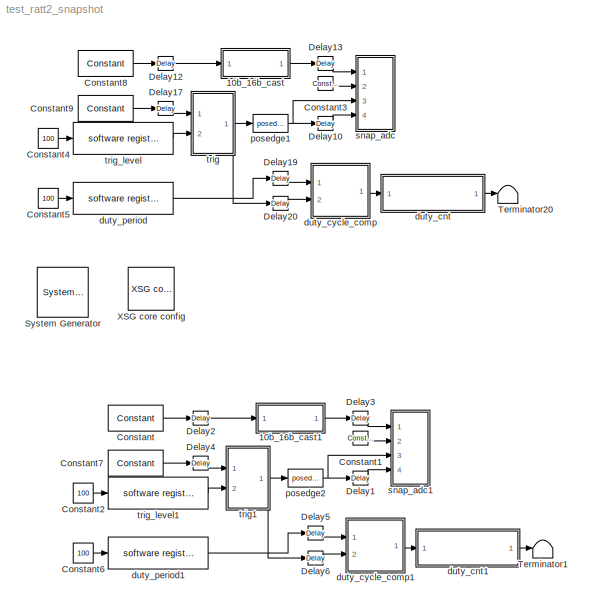
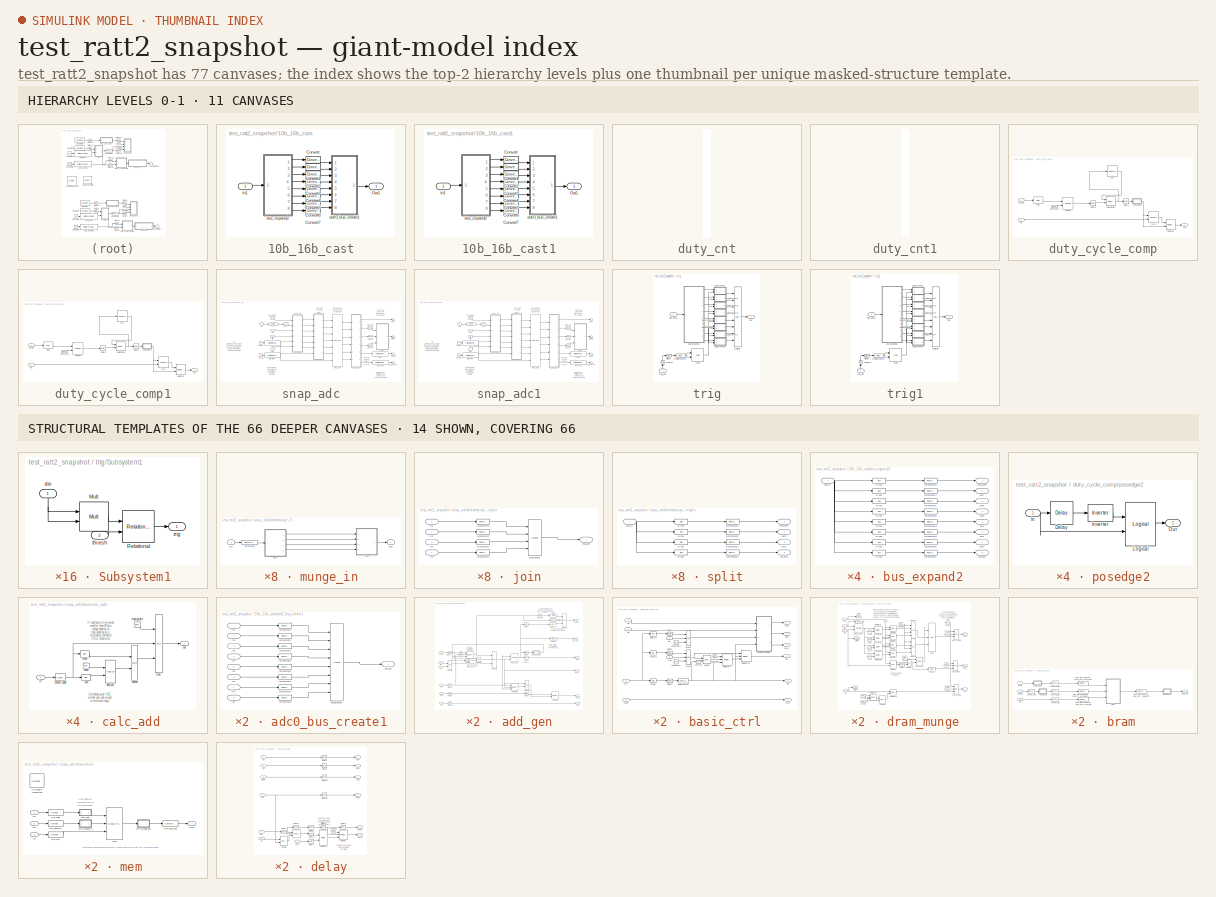
[diagram: thumbnail index - top-2 hierarchy levels (11 canvases) + 14 structural-template representatives of the remaining 66 canvases]
MODEL test_ratt2_snapshot
KIND model
BLOCK [Reference]  System Generator  REF=xbsIndex_r4/ System Generator
  AttributesFormatString = System\\nGenerator
  Impl_file = ISE Defaults
  Ports = []
  SID = 108
  SourceBlock = xbsIndex_r4/ System Generator
  SourceType = Xilinx System Generator Block
  Synth_file = XST Defaults
  Tag = genX
  UserData = DataTag0
  UserDataPersistent = on
  block_type = sysgen
  block_version = 11.4
  clock_wrapper = Clock Enables
  core_generation = According to Block Masks
  dbl_ovrd = According to Block Masks
  dcm_input_clock_period = 100
  deprecated_control = off
  directory = ./test_ratt2_snapshot/sysgen
  eval_field = 0
  has_advanced_control = 0
  incr_netlist = off
  infoedit = System Generator
  package = ff1136
  part = xc5vsx95t
  proj_type = Project Navigator
  run_coregen = off
  sg_icon_stat = 51,50,0,0,token,white,0,58c5b5770fe5f7c311f53dbc6e73f0f6,right,,[ ],[ ]
  sg_mask_display = fprintf('','COMMENT: begin icon graphics');\npatch([0 51 51 0 0 ],[0 0 50 50 0 ],[1 1 1 ]);\npatch([1.6375 16.81 27.31 37.81 48.31 27.31 12.1375 1.6375 ],[36.655 36.655 47.155 36.655 47.155 47.155 47.155 36.655 ],[0.933333 0.203922 0.141176 ]);\npatch([12.1375 27.31 16.81 1.6375 12.1375 ],[26.155 26.155 36.655 36.655 26.155 ],[0.698039 0.0313725 0.219608 ]);\npatch([1.6375 16.81 27.31 12.1375 1.63...<+335ch>
  sggui_pos = 326,241,464,470
  simulink_period = 1
  speed = -1
  synthesis_tool = XST
  sysclk_period = 4.4444
  testbench = off
  trim_vbits = Everywhere in SubSystem
  xilinxfamily = virtex5
BLOCK [SubSystem] 10b_16b_cast
  FunctionWithSeparateData = off
  MaskHideContents = off
  MinAlgLoopOccurrences = off
  Opaque = off
  Ports = [1, 1]
  PropExecContextOutsideSubsystem = off
  RTWSystemCode = Auto
  RequestExecContextInheritance = off
  SID = 1
BLOCK [Reference] 10b_16b_cast/Convert  REF=xbsIndex_r4/Convert
  Ports = [1, 1]
  SID = 3
  SourceBlock = xbsIndex_r4/Convert
  SourceType = Xilinx Type Converter Block
  arith_type = Signed  (2's comp)
  bin_pt = 0
  block_type = convert
  dbl_ovrd = off
  en = off
  exp_bits = 8
  float_type = Single
  fraction_bits = 24
  gui_display_data_type = Fixed-point
  has_advanced_control = 0
  infoedit = Hardware notes: rounding and saturating require hardware resources; truncating and wrapping do not.
  latency = 0
  n_bits = 16
  overflow = Wrap
  pipeline = off
  quantization = Truncate
  sg_icon_stat = 30,14,1,1,white,blue,0,edca21da,right,,[ ],[ ]
  sg_mask_display = fprintf('','COMMENT: begin icon graphics');\npatch([0 30 30 0 0 ],[0 0 14 14 0 ],[0.77 0.82 0.91 ]);\nplot([0 30 30 0 0 ],[0 0 14 14 0 ]);\npatch([10.55 13.44 15.44 17.44 19.44 15.44 12.55 10.55 ],[9.22 9.22 11.22 9.22 11.22 11.22 11.22 9.22 ],[1 1 1 ]);\npatch([12.55 15.44 13.44 10.55 12.55 ],[7.22 7.22 9.22 9.22 7.22 ],[0.931 0.946 0.973 ]);\npatch([10.55 13.44 15.44 12.55 10.55 ],[5.22 5.22 7.2...<+309ch>  <repeated x16 — deduplicated; at blocks: Convert, Convert1, Convert2, Convert3, Convert4, Convert5, Convert6, Convert7>
  sggui_pos = 1700,20,568,656
  xl_area = [0,0,0,0,0,0,0]
  xl_use_area = off
BLOCK [Reference] 10b_16b_cast/Convert1  REF=xbsIndex_r4/Convert
  Ports = [1, 1]
  SID = 4
  SourceBlock = xbsIndex_r4/Convert
  SourceType = Xilinx Type Converter Block
  arith_type = Signed  (2's comp)
  bin_pt = 0
  block_type = convert
  dbl_ovrd = off
  en = off
  exp_bits = 8
  float_type = Single
  fraction_bits = 24
  gui_display_data_type = Fixed-point
  has_advanced_control = 0
  infoedit = Hardware notes: rounding and saturating require hardware resources; truncating and wrapping do not.
  latency = 0
  n_bits = 16
  overflow = Wrap
  pipeline = off
  quantization = Truncate
  sg_icon_stat = 30,14,1,1,white,blue,0,edca21da,right,,[ ],[ ]
  sggui_pos = 1700,20,568,656
  xl_area = [0,0,0,0,0,0,0]
  xl_use_area = off
BLOCK [Reference] 10b_16b_cast/Convert2  REF=xbsIndex_r4/Convert
  Ports = [1, 1]
  SID = 5
  SourceBlock = xbsIndex_r4/Convert
  SourceType = Xilinx Type Converter Block
  arith_type = Signed  (2's comp)
  bin_pt = 0
  block_type = convert
  dbl_ovrd = off
  en = off
  exp_bits = 8
  float_type = Single
  fraction_bits = 24
  gui_display_data_type = Fixed-point
  has_advanced_control = 0
  infoedit = Hardware notes: rounding and saturating require hardware resources; truncating and wrapping do not.
  latency = 0
  n_bits = 16
  overflow = Wrap
  pipeline = off
  quantization = Truncate
  sg_icon_stat = 30,14,1,1,white,blue,0,edca21da,right,,[ ],[ ]
  sggui_pos = 1700,20,568,656
  xl_area = [0,0,0,0,0,0,0]
  xl_use_area = off
BLOCK [Reference] 10b_16b_cast/Convert3  REF=xbsIndex_r4/Convert
  Ports = [1, 1]
  SID = 6
  SourceBlock = xbsIndex_r4/Convert
  SourceType = Xilinx Type Converter Block
  arith_type = Signed  (2's comp)
  bin_pt = 0
  block_type = convert
  dbl_ovrd = off
  en = off
  exp_bits = 8
  float_type = Single
  fraction_bits = 24
  gui_display_data_type = Fixed-point
  has_advanced_control = 0
  infoedit = Hardware notes: rounding and saturating require hardware resources; truncating and wrapping do not.
  latency = 0
  n_bits = 16
  overflow = Wrap
  pipeline = off
  quantization = Truncate
  sg_icon_stat = 30,14,1,1,white,blue,0,edca21da,right,,[ ],[ ]
  sggui_pos = 1700,20,568,656
  xl_area = [0,0,0,0,0,0,0]
  xl_use_area = off
BLOCK [Reference] 10b_16b_cast/Convert4  REF=xbsIndex_r4/Convert
  Ports = [1, 1]
  SID = 7
  SourceBlock = xbsIndex_r4/Convert
  SourceType = Xilinx Type Converter Block
  arith_type = Signed  (2's comp)
  bin_pt = 0
  block_type = convert
  dbl_ovrd = off
  en = off
  exp_bits = 8
  float_type = Single
  fraction_bits = 24
  gui_display_data_type = Fixed-point
  has_advanced_control = 0
  infoedit = Hardware notes: rounding and saturating require hardware resources; truncating and wrapping do not.
  latency = 0
  n_bits = 16
  overflow = Wrap
  pipeline = off
  quantization = Truncate
  sg_icon_stat = 30,14,1,1,white,blue,0,edca21da,right,,[ ],[ ]
  sggui_pos = 1700,20,568,656
  xl_area = [0,0,0,0,0,0,0]
  xl_use_area = off
BLOCK [Reference] 10b_16b_cast/Convert5  REF=xbsIndex_r4/Convert
  Ports = [1, 1]
  SID = 8
  SourceBlock = xbsIndex_r4/Convert
  SourceType = Xilinx Type Converter Block
  arith_type = Signed  (2's comp)
  bin_pt = 0
  block_type = convert
  dbl_ovrd = off
  en = off
  exp_bits = 8
  float_type = Single
  fraction_bits = 24
  gui_display_data_type = Fixed-point
  has_advanced_control = 0
  infoedit = Hardware notes: rounding and saturating require hardware resources; truncating and wrapping do not.
  latency = 0
  n_bits = 16
  overflow = Wrap
  pipeline = off
  quantization = Truncate
  sg_icon_stat = 30,14,1,1,white,blue,0,edca21da,right,,[ ],[ ]
  sggui_pos = 1700,20,568,656
  xl_area = [0,0,0,0,0,0,0]
  xl_use_area = off
BLOCK [Reference] 10b_16b_cast/Convert6  REF=xbsIndex_r4/Convert
  Ports = [1, 1]
  SID = 9
  SourceBlock = xbsIndex_r4/Convert
  SourceType = Xilinx Type Converter Block
  arith_type = Signed  (2's comp)
  bin_pt = 0
  block_type = convert
  dbl_ovrd = off
  en = off
  exp_bits = 8
  float_type = Single
  fraction_bits = 24
  gui_display_data_type = Fixed-point
  has_advanced_control = 0
  infoedit = Hardware notes: rounding and saturating require hardware resources; truncating and wrapping do not.
  latency = 0
  n_bits = 16
  overflow = Wrap
  pipeline = off
  quantization = Truncate
  sg_icon_stat = 30,14,1,1,white,blue,0,edca21da,right,,[ ],[ ]
  sggui_pos = 1700,20,568,656
  xl_area = [0,0,0,0,0,0,0]
  xl_use_area = off
BLOCK [Reference] 10b_16b_cast/Convert7  REF=xbsIndex_r4/Convert
  Ports = [1, 1]
  SID = 10
  SourceBlock = xbsIndex_r4/Convert
  SourceType = Xilinx Type Converter Block
  arith_type = Signed  (2's comp)
  bin_pt = 0
  block_type = convert
  dbl_ovrd = off
  en = off
  exp_bits = 8
  float_type = Single
  fraction_bits = 24
  gui_display_data_type = Fixed-point
  has_advanced_control = 0
  infoedit = Hardware notes: rounding and saturating require hardware resources; truncating and wrapping do not.
  latency = 0
  n_bits = 16
  overflow = Wrap
  pipeline = off
  quantization = Truncate
  sg_icon_stat = 30,14,1,1,white,blue,0,edca21da,right,,[ ],[ ]
  sggui_pos = 1700,20,568,656
  xl_area = [0,0,0,0,0,0,0]
  xl_use_area = off
BLOCK [Inport] 10b_16b_cast/In1
  IconDisplay = Port number
  SID = 2
BLOCK [Outport] 10b_16b_cast/Out1
  IconDisplay = Port number
  SID = 13
BLOCK [SubSystem] 10b_16b_cast/adc0_bus_create1
  AncestorBlock = casper_library_flow_control/bus_create
  FunctionWithSeparateData = off
  MaskEnableString = on
  MaskHideContents = off
  MaskIconFrame = on
  MaskIconOpaque = on
  MaskIconRotate = none
  MaskIconUnits = autoscale
  MaskInitialization = bus_create_init(gcb,...\n    'inputNum', inputNum);
  MaskPortRotate = default
  MaskPromptString = Number of inputs:
  MaskStyleString = edit
  MaskToolTipString = on
  MaskTunableValueString = on
  MaskType = bus_create
  MaskValueString = 8
  MaskVariables = inputNum=@1;
  MaskVisibilityString = on
  MinAlgLoopOccurrences = off
  Opaque = off
  Ports = [8, 1]
  PropExecContextOutsideSubsystem = off
  RTWSystemCode = Auto
  RequestExecContextInheritance = off
  SID = 11
  UserData = DataTag1
  UserDataPersistent = on
BLOCK [Outport] 10b_16b_cast/adc0_bus_create1/bus_out
  IconDisplay = Port number
  SID = 11:18
BLOCK [Reference] 10b_16b_cast/adc0_bus_create1/concatenate  REF=xbsIndex_r4/Concat
  Ports = [8, 1]
  SID = 11:9
  SourceBlock = xbsIndex_r4/Concat
  SourceType = Xilinx Bus Concatenator Block
  block_type = concat
  block_version = 11.4
  dbl_ovrd = off
  has_advanced_control = 0
  infoedit = Concatenates two or more inputs.  Output will be cast to an unsigned value with the binary point at zero.
  num_inputs = 8
  sg_icon_stat = 50,301,8,1,white,blue,0,6fe74153,right,,[ ],[ ]
  sg_mask_display = fprintf('','COMMENT: begin icon graphics');\npatch([0 50 50 0 0 ],[0 0 301 301 0 ],[0.77 0.82 0.91 ]);\nplot([0 50 50 0 0 ],[0 0 301 301 0 ]);\npatch([9.425 19.54 26.54 33.54 40.54 26.54 16.425 9.425 ],[157.77 157.77 164.77 157.77 164.77 164.77 164.77 157.77 ],[1 1 1 ]);\npatch([16.425 26.54 19.54 9.425 16.425 ],[150.77 150.77 157.77 157.77 150.77 ],[0.931 0.946 0.973 ]);\npatch([9.425 19.54 26.54...<+478ch>
  sggui_pos = -1,-1,-1,-1
BLOCK [Inport] 10b_16b_cast/adc0_bus_create1/in1
  IconDisplay = Port number
  SID = 11:1
BLOCK [Inport] 10b_16b_cast/adc0_bus_create1/in2
  IconDisplay = Port number
  Port = 2
  SID = 11:2
BLOCK [Inport] 10b_16b_cast/adc0_bus_create1/in3
  IconDisplay = Port number
  Port = 3
  SID = 11:3
BLOCK [Inport] 10b_16b_cast/adc0_bus_create1/in4
  IconDisplay = Port number
  Port = 4
  SID = 11:4
BLOCK [Inport] 10b_16b_cast/adc0_bus_create1/in5
  IconDisplay = Port number
  Port = 5
  SID = 11:5
BLOCK [Inport] 10b_16b_cast/adc0_bus_create1/in6
  IconDisplay = Port number
  Port = 6
  SID = 11:6
BLOCK [Inport] 10b_16b_cast/adc0_bus_create1/in7
  IconDisplay = Port number
  Port = 7
  SID = 11:7
BLOCK [Inport] 10b_16b_cast/adc0_bus_create1/in8
  IconDisplay = Port number
  Port = 8
  SID = 11:8
BLOCK [Reference] 10b_16b_cast/adc0_bus_create1/reinterpret1  REF=xbsIndex_r4/Reinterpret
  Ports = [1, 1]
  SID = 11:10
  SourceBlock = xbsIndex_r4/Reinterpret
  SourceType = Xilinx Type Reinterpreter Block
  arith_type = Unsigned
  bin_pt = 0
  block_type = reinterpret
  block_version = 11.4
  force_arith_type = on
  force_bin_pt = on
  has_advanced_control = 0
  infoedit = Changes signal type without altering the binary representation.   You can changed the signal between signed and unsigned, and relocate the binary point.<br><br>Hardware notes: In hardware this block costs nothing.<br><br>Example:  Suppose the input is 6 bits wide, signed, with 2 fractional bits, and the output is forced to unsigned with 0 fractional bits.  Then an input of -2.0 (1110.00 in binary ...<+59ch>  <repeated x18 — deduplicated; at blocks: reinterpret1, reinterpret2, reinterpret3, reinterpret4, reinterpret5, reinterpret6, reinterpret7, reinterpret8, Reinterpret4>
  sg_icon_stat = 50,20,1,1,white,blue,0,6b04d0b0,right,,[ ],[ ]
  sg_mask_display = fprintf('','COMMENT: begin icon graphics');\npatch([0 50 50 0 0 ],[0 0 20 20 0 ],[0.77 0.82 0.91 ]);\nplot([0 50 50 0 0 ],[0 0 20 20 0 ]);\npatch([20.55 23.44 25.44 27.44 29.44 25.44 22.55 20.55 ],[12.22 12.22 14.22 12.22 14.22 14.22 14.22 12.22 ],[1 1 1 ]);\npatch([22.55 25.44 23.44 20.55 22.55 ],[10.22 10.22 12.22 12.22 10.22 ],[0.931 0.946 0.973 ]);\npatch([20.55 23.44 25.44 22.55 20.55 ],[8.22...<+314ch>  <repeated x16 — deduplicated; at blocks: reinterpret1, reinterpret2, reinterpret3, reinterpret4, reinterpret5, reinterpret6, reinterpret7, reinterpret8>
  sggui_pos = -1,-1,-1,-1
BLOCK [Reference] 10b_16b_cast/adc0_bus_create1/reinterpret2  REF=xbsIndex_r4/Reinterpret
  Ports = [1, 1]
  SID = 11:11
  SourceBlock = xbsIndex_r4/Reinterpret
  SourceType = Xilinx Type Reinterpreter Block
  arith_type = Unsigned
  bin_pt = 0
  block_type = reinterpret
  block_version = 11.4
  force_arith_type = on
  force_bin_pt = on
  has_advanced_control = 0
  sg_icon_stat = 50,20,1,1,white,blue,0,6b04d0b0,right,,[ ],[ ]
  sggui_pos = 281,224,671,460
BLOCK [Reference] 10b_16b_cast/adc0_bus_create1/reinterpret3  REF=xbsIndex_r4/Reinterpret
  Ports = [1, 1]
  SID = 11:12
  SourceBlock = xbsIndex_r4/Reinterpret
  SourceType = Xilinx Type Reinterpreter Block
  arith_type = Unsigned
  bin_pt = 0
  block_type = reinterpret
  block_version = 11.4
  force_arith_type = on
  force_bin_pt = on
  has_advanced_control = 0
  sg_icon_stat = 50,20,1,1,white,blue,0,6b04d0b0,right,,[ ],[ ]
  sggui_pos = -1,-1,-1,-1
BLOCK [Reference] 10b_16b_cast/adc0_bus_create1/reinterpret4  REF=xbsIndex_r4/Reinterpret
  Ports = [1, 1]
  SID = 11:13
  SourceBlock = xbsIndex_r4/Reinterpret
  SourceType = Xilinx Type Reinterpreter Block
  arith_type = Unsigned
  bin_pt = 0
  block_type = reinterpret
  block_version = 11.4
  force_arith_type = on
  force_bin_pt = on
  has_advanced_control = 0
  sg_icon_stat = 50,20,1,1,white,blue,0,6b04d0b0,right,,[ ],[ ]
  sggui_pos = -1,-1,-1,-1
BLOCK [Reference] 10b_16b_cast/adc0_bus_create1/reinterpret5  REF=xbsIndex_r4/Reinterpret
  Ports = [1, 1]
  SID = 11:14
  SourceBlock = xbsIndex_r4/Reinterpret
  SourceType = Xilinx Type Reinterpreter Block
  arith_type = Unsigned
  bin_pt = 0
  block_type = reinterpret
  block_version = 11.4
  force_arith_type = on
  force_bin_pt = on
  has_advanced_control = 0
  sg_icon_stat = 50,20,1,1,white,blue,0,6b04d0b0,right,,[ ],[ ]
  sggui_pos = -1,-1,-1,-1
BLOCK [Reference] 10b_16b_cast/adc0_bus_create1/reinterpret6  REF=xbsIndex_r4/Reinterpret
  Ports = [1, 1]
  SID = 11:15
  SourceBlock = xbsIndex_r4/Reinterpret
  SourceType = Xilinx Type Reinterpreter Block
  arith_type = Unsigned
  bin_pt = 0
  block_type = reinterpret
  block_version = 11.4
  force_arith_type = on
  force_bin_pt = on
  has_advanced_control = 0
  sg_icon_stat = 50,20,1,1,white,blue,0,6b04d0b0,right,,[ ],[ ]
  sggui_pos = -1,-1,-1,-1
BLOCK [Reference] 10b_16b_cast/adc0_bus_create1/reinterpret7  REF=xbsIndex_r4/Reinterpret
  Ports = [1, 1]
  SID = 11:16
  SourceBlock = xbsIndex_r4/Reinterpret
  SourceType = Xilinx Type Reinterpreter Block
  arith_type = Unsigned
  bin_pt = 0
  block_type = reinterpret
  block_version = 11.4
  force_arith_type = on
  force_bin_pt = on
  has_advanced_control = 0
  sg_icon_stat = 50,20,1,1,white,blue,0,6b04d0b0,right,,[ ],[ ]
  sggui_pos = -1,-1,-1,-1
BLOCK [Reference] 10b_16b_cast/adc0_bus_create1/reinterpret8  REF=xbsIndex_r4/Reinterpret
  Ports = [1, 1]
  SID = 11:17
  SourceBlock = xbsIndex_r4/Reinterpret
  SourceType = Xilinx Type Reinterpreter Block
  arith_type = Unsigned
  bin_pt = 0
  block_type = reinterpret
  block_version = 11.4
  force_arith_type = on
  force_bin_pt = on
  has_advanced_control = 0
  sg_icon_stat = 50,20,1,1,white,blue,0,6b04d0b0,right,,[ ],[ ]
  sggui_pos = -1,-1,-1,-1
BLOCK [SubSystem] 10b_16b_cast/bus_expand2
  AncestorBlock = casper_library_flow_control/bus_expand
  AttributesFormatString = 8 outputs
  FunctionWithSeparateData = off
  MaskCallbackString = bus_expand_callback();||bus_expand_callback();|||bus_expand_callback();||
  MaskDescription = Expands a 'bus' made using a bus_create or Xilinx\nconcat block.\nThe input will be divided into the specified number\nof outputs with the specified arithmetic types.\nDivisions are made from most significant bit.  <repeated x12 — deduplicated; at blocks: bus_expand2, split>
  MaskEnableString = on,on,on,on,on,on,off,off
  MaskHideContents = off
  MaskIconFrame = on
  MaskIconOpaque = off
  MaskIconRotate = none
  MaskIconUnits = autoscale
  MaskInitialization = bus_expand_init(gcb,...\n    'mode', mode, ...\n    'outputNum', outputNum, ...\n    'outputWidth', outputWidth, ...\n    'outputBinaryPt', outputBinaryPt, ...\n    'outputArithmeticType', outputArithmeticType, ...\n    'outputToWorkspace', outputToWorkspace, ...\n    'variablePrefix', variablePrefix, ...\n    'outputToModelAsWell', outputToModelAsWell);  <repeated x4 — deduplicated; at blocks: bus_expand2>
  MaskPortRotate = default
  MaskPromptString = Mode:|Number of outputs:|Output width:|Output binary point position:|Output arithmetic type: (Unsigned=0, Signed=1, Boolean=2)|Output to workspace?|Variable name prefix:|Output to model as well?  <repeated x4 — deduplicated; at blocks: bus_expand2>
  MaskStyleString = popup(divisions of equal size|divisions of arbitrary size),edit,edit,edit,edit,checkbox,edit,checkbox
  MaskToolTipString = on,on,on,on,on,on,on,on
  MaskTunableValueString = on,on,on,on,on,on,on,on
  MaskType = bus_expand
  MaskValueString = divisions of equal size|8|10|0|1|off|out|on
  MaskVariables = mode=&1;outputNum=@2;outputWidth=@3;outputBinaryPt=@4;outputArithmeticType=@5;outputToWorkspace=&6;variablePrefix=&7;outputToModelAsWell=&8;
  MaskVisibilityString = on,on,on,on,on,on,on,on
  MinAlgLoopOccurrences = off
  Opaque = off
  Ports = [1, 8]
  PropExecContextOutsideSubsystem = off
  RTWSystemCode = Auto
  RequestExecContextInheritance = off
  SID = 12
  UserData = DataTag2
  UserDataPersistent = on
BLOCK [Inport] 10b_16b_cast/bus_expand2/bus_in
  IconDisplay = Port number
  SID = 12:1
BLOCK [Outport] 10b_16b_cast/bus_expand2/lsb_out1
  IconDisplay = Port number
  Port = 8
  SID = 12:25
BLOCK [Outport] 10b_16b_cast/bus_expand2/msb_out8
  IconDisplay = Port number
  SID = 12:18
BLOCK [Outport] 10b_16b_cast/bus_expand2/out2
  IconDisplay = Port number
  Port = 7
  SID = 12:24
BLOCK [Outport] 10b_16b_cast/bus_expand2/out3
  IconDisplay = Port number
  Port = 6
  SID = 12:23
BLOCK [Outport] 10b_16b_cast/bus_expand2/out4
  IconDisplay = Port number
  Port = 5
  SID = 12:22
BLOCK [Outport] 10b_16b_cast/bus_expand2/out5
  IconDisplay = Port number
  Port = 4
  SID = 12:21
BLOCK [Outport] 10b_16b_cast/bus_expand2/out6
  IconDisplay = Port number
  Port = 3
  SID = 12:20
BLOCK [Outport] 10b_16b_cast/bus_expand2/out7
  IconDisplay = Port number
  Port = 2
  SID = 12:19
BLOCK [Reference] 10b_16b_cast/bus_expand2/reinterpret1  REF=xbsIndex_r4/Reinterpret
  Ports = [1, 1]
  SID = 12:41
  SourceBlock = xbsIndex_r4/Reinterpret
  SourceType = Xilinx Type Reinterpreter Block
  arith_type = Signed  (2's comp)
  bin_pt = 0
  block_type = reinterpret
  force_arith_type = on
  force_bin_pt = on
  has_advanced_control = 0
  infoedit = Changes signal type without altering the binary representation.   You can change the signal between signed and unsigned, and relocate the binary point.<br><br>Hardware notes: In hardware this block costs nothing.<br><br>Example:  Suppose the input is 6 bits wide, signed, with 2 fractional bits, and the output is forced to unsigned with 0 fractional bits.  Then an input of -2.0 (1110.00 in binary 2...<+58ch>  <repeated x106 — deduplicated; at blocks: reinterpret1, reinterpret2, reinterpret3, reinterpret4, reinterpret5, reinterpret6, reinterpret7, reinterpret8, reinterpret, ri>
  sg_icon_stat = 50,20,1,1,white,blue,0,6b04d0b0,right,,[ ],[ ]
  sg_mask_display = fprintf('','COMMENT: begin icon graphics');\npatch([0 50 50 0 0 ],[0 0 20 20 0 ],[0.77 0.82 0.91 ]);\nplot([0 50 50 0 0 ],[0 0 20 20 0 ]);\npatch([20.55 23.44 25.44 27.44 29.44 25.44 22.55 20.55 ],[12.22 12.22 14.22 12.22 14.22 14.22 14.22 12.22 ],[1 1 1 ]);\npatch([22.55 25.44 23.44 20.55 22.55 ],[10.22 10.22 12.22 12.22 10.22 ],[0.931 0.946 0.973 ]);\npatch([20.55 23.44 25.44 22.55 20.55 ],[8.22...<+312ch>  <repeated x96 — deduplicated; at blocks: reinterpret1, reinterpret2, reinterpret3, reinterpret4, reinterpret5, reinterpret6, reinterpret7, reinterpret8>
  sggui_pos = -1,-1,-1,-1
BLOCK [Reference] 10b_16b_cast/bus_expand2/reinterpret2  REF=xbsIndex_r4/Reinterpret
  Ports = [1, 1]
  SID = 12:39
  SourceBlock = xbsIndex_r4/Reinterpret
  SourceType = Xilinx Type Reinterpreter Block
  arith_type = Signed  (2's comp)
  bin_pt = 0
  block_type = reinterpret
  force_arith_type = on
  force_bin_pt = on
  has_advanced_control = 0
  sg_icon_stat = 50,20,1,1,white,blue,0,6b04d0b0,right,,[ ],[ ]
  sggui_pos = -1,-1,-1,-1
BLOCK [Reference] 10b_16b_cast/bus_expand2/reinterpret3  REF=xbsIndex_r4/Reinterpret
  Ports = [1, 1]
  SID = 12:37
  SourceBlock = xbsIndex_r4/Reinterpret
  SourceType = Xilinx Type Reinterpreter Block
  arith_type = Signed  (2's comp)
  bin_pt = 0
  block_type = reinterpret
  force_arith_type = on
  force_bin_pt = on
  has_advanced_control = 0
  sg_icon_stat = 50,20,1,1,white,blue,0,6b04d0b0,right,,[ ],[ ]
  sggui_pos = -1,-1,-1,-1
BLOCK [Reference] 10b_16b_cast/bus_expand2/reinterpret4  REF=xbsIndex_r4/Reinterpret
  Ports = [1, 1]
  SID = 12:35
  SourceBlock = xbsIndex_r4/Reinterpret
  SourceType = Xilinx Type Reinterpreter Block
  arith_type = Signed  (2's comp)
  bin_pt = 0
  block_type = reinterpret
  force_arith_type = on
  force_bin_pt = on
  has_advanced_control = 0
  sg_icon_stat = 50,20,1,1,white,blue,0,6b04d0b0,right,,[ ],[ ]
  sggui_pos = -1,-1,-1,-1
BLOCK [Reference] 10b_16b_cast/bus_expand2/reinterpret5  REF=xbsIndex_r4/Reinterpret
  Ports = [1, 1]
  SID = 12:33
  SourceBlock = xbsIndex_r4/Reinterpret
  SourceType = Xilinx Type Reinterpreter Block
  arith_type = Signed  (2's comp)
  bin_pt = 0
  block_type = reinterpret
  force_arith_type = on
  force_bin_pt = on
  has_advanced_control = 0
  sg_icon_stat = 50,20,1,1,white,blue,0,6b04d0b0,right,,[ ],[ ]
  sggui_pos = -1,-1,-1,-1
BLOCK [Reference] 10b_16b_cast/bus_expand2/reinterpret6  REF=xbsIndex_r4/Reinterpret
  Ports = [1, 1]
  SID = 12:31
  SourceBlock = xbsIndex_r4/Reinterpret
  SourceType = Xilinx Type Reinterpreter Block
  arith_type = Signed  (2's comp)
  bin_pt = 0
  block_type = reinterpret
  force_arith_type = on
  force_bin_pt = on
  has_advanced_control = 0
  sg_icon_stat = 50,20,1,1,white,blue,0,6b04d0b0,right,,[ ],[ ]
  sggui_pos = -1,-1,-1,-1
BLOCK [Reference] 10b_16b_cast/bus_expand2/reinterpret7  REF=xbsIndex_r4/Reinterpret
  Ports = [1, 1]
  SID = 12:29
  SourceBlock = xbsIndex_r4/Reinterpret
  SourceType = Xilinx Type Reinterpreter Block
  arith_type = Signed  (2's comp)
  bin_pt = 0
  block_type = reinterpret
  force_arith_type = on
  force_bin_pt = on
  has_advanced_control = 0
  sg_icon_stat = 50,20,1,1,white,blue,0,6b04d0b0,right,,[ ],[ ]
  sggui_pos = -1,-1,-1,-1
BLOCK [Reference] 10b_16b_cast/bus_expand2/reinterpret8  REF=xbsIndex_r4/Reinterpret
  Ports = [1, 1]
  SID = 12:27
  SourceBlock = xbsIndex_r4/Reinterpret
  SourceType = Xilinx Type Reinterpreter Block
  arith_type = Signed  (2's comp)
  bin_pt = 0
  block_type = reinterpret
  force_arith_type = on
  force_bin_pt = on
  has_advanced_control = 0
  sg_icon_stat = 50,20,1,1,white,blue,0,6b04d0b0,right,,[ ],[ ]
  sggui_pos = -1,-1,-1,-1
BLOCK [Reference] 10b_16b_cast/bus_expand2/slice1  REF=xbsIndex_r4/Slice
  Ports = [1, 1]
  SID = 12:40
  SourceBlock = xbsIndex_r4/Slice
  SourceType = Xilinx Bit Slice Extractor Block
  base0 = LSB of Input
  base1 = MSB of Input
  bit0 = 0
  bit1 = -70
  block_type = slice
  boolean_output = off
  dbl_ovrd = off
  has_advanced_control = 0
  infoedit = Extracts a given range of bits from each input sample and presents it at the output.  The output type is ordinarily unsigned with binary point at zero, but can be Boolean when the slice is one bit wide.<br><br>Hardware notes: In hardware this block costs nothing.  <repeated x80 — deduplicated; at blocks: slice1, slice2, slice3, slice4, slice5, slice6, slice7, slice8, lsw, msw, Slice3>
  mode = Upper Bit Location + Width
  nbits = 10
  sg_icon_stat = 50,20,1,1,white,blue,0,1fd851a7,right,,[ ],[ ]
  sg_mask_display = fprintf('','COMMENT: begin icon graphics');\npatch([0 50 50 0 0 ],[0 0 20 20 0 ],[0.77 0.82 0.91 ]);\nplot([0 50 50 0 0 ],[0 0 20 20 0 ]);\npatch([20.55 23.44 25.44 27.44 29.44 25.44 22.55 20.55 ],[12.22 12.22 14.22 12.22 14.22 14.22 14.22 12.22 ],[1 1 1 ]);\npatch([22.55 25.44 23.44 20.55 22.55 ],[10.22 10.22 12.22 12.22 10.22 ],[0.931 0.946 0.973 ]);\npatch([20.55 23.44 25.44 22.55 20.55 ],[8.22...<+321ch>  <repeated x64 — deduplicated; at blocks: slice1, slice2, slice3, slice4, slice5, slice6, slice7, slice8>
  sggui_pos = -1,-1,-1,-1
BLOCK [Reference] 10b_16b_cast/bus_expand2/slice2  REF=xbsIndex_r4/Slice
  Ports = [1, 1]
  SID = 12:38
  SourceBlock = xbsIndex_r4/Slice
  SourceType = Xilinx Bit Slice Extractor Block
  base0 = LSB of Input
  base1 = MSB of Input
  bit0 = 0
  bit1 = -60
  block_type = slice
  boolean_output = off
  dbl_ovrd = off
  has_advanced_control = 0
  mode = Upper Bit Location + Width
  nbits = 10
  sg_icon_stat = 50,20,1,1,white,blue,0,1fd851a7,right,,[ ],[ ]
  sggui_pos = -1,-1,-1,-1
BLOCK [Reference] 10b_16b_cast/bus_expand2/slice3  REF=xbsIndex_r4/Slice
  Ports = [1, 1]
  SID = 12:36
  SourceBlock = xbsIndex_r4/Slice
  SourceType = Xilinx Bit Slice Extractor Block
  base0 = LSB of Input
  base1 = MSB of Input
  bit0 = 0
  bit1 = -50
  block_type = slice
  boolean_output = off
  dbl_ovrd = off
  has_advanced_control = 0
  mode = Upper Bit Location + Width
  nbits = 10
  sg_icon_stat = 50,20,1,1,white,blue,0,1fd851a7,right,,[ ],[ ]
  sggui_pos = -1,-1,-1,-1
BLOCK [Reference] 10b_16b_cast/bus_expand2/slice4  REF=xbsIndex_r4/Slice
  Ports = [1, 1]
  SID = 12:34
  SourceBlock = xbsIndex_r4/Slice
  SourceType = Xilinx Bit Slice Extractor Block
  base0 = LSB of Input
  base1 = MSB of Input
  bit0 = 0
  bit1 = -40
  block_type = slice
  boolean_output = off
  dbl_ovrd = off
  has_advanced_control = 0
  mode = Upper Bit Location + Width
  nbits = 10
  sg_icon_stat = 50,20,1,1,white,blue,0,1fd851a7,right,,[ ],[ ]
  sggui_pos = -1,-1,-1,-1
BLOCK [Reference] 10b_16b_cast/bus_expand2/slice5  REF=xbsIndex_r4/Slice
  Ports = [1, 1]
  SID = 12:32
  SourceBlock = xbsIndex_r4/Slice
  SourceType = Xilinx Bit Slice Extractor Block
  base0 = LSB of Input
  base1 = MSB of Input
  bit0 = 0
  bit1 = -30
  block_type = slice
  boolean_output = off
  dbl_ovrd = off
  has_advanced_control = 0
  mode = Upper Bit Location + Width
  nbits = 10
  sg_icon_stat = 50,20,1,1,white,blue,0,1fd851a7,right,,[ ],[ ]
  sggui_pos = -1,-1,-1,-1
BLOCK [Reference] 10b_16b_cast/bus_expand2/slice6  REF=xbsIndex_r4/Slice
  Ports = [1, 1]
  SID = 12:30
  SourceBlock = xbsIndex_r4/Slice
  SourceType = Xilinx Bit Slice Extractor Block
  base0 = LSB of Input
  base1 = MSB of Input
  bit0 = 0
  bit1 = -20
  block_type = slice
  boolean_output = off
  dbl_ovrd = off
  has_advanced_control = 0
  mode = Upper Bit Location + Width
  nbits = 10
  sg_icon_stat = 50,20,1,1,white,blue,0,1fd851a7,right,,[ ],[ ]
  sggui_pos = -1,-1,-1,-1
BLOCK [Reference] 10b_16b_cast/bus_expand2/slice7  REF=xbsIndex_r4/Slice
  Ports = [1, 1]
  SID = 12:28
  SourceBlock = xbsIndex_r4/Slice
  SourceType = Xilinx Bit Slice Extractor Block
  base0 = LSB of Input
  base1 = MSB of Input
  bit0 = 0
  bit1 = -10
  block_type = slice
  boolean_output = off
  dbl_ovrd = off
  has_advanced_control = 0
  mode = Upper Bit Location + Width
  nbits = 10
  sg_icon_stat = 50,20,1,1,white,blue,0,1fd851a7,right,,[ ],[ ]
  sggui_pos = -1,-1,-1,-1
BLOCK [Reference] 10b_16b_cast/bus_expand2/slice8  REF=xbsIndex_r4/Slice
  Ports = [1, 1]
  SID = 12:26
  SourceBlock = xbsIndex_r4/Slice
  SourceType = Xilinx Bit Slice Extractor Block
  base0 = LSB of Input
  base1 = MSB of Input
  bit0 = 0
  bit1 = 0
  block_type = slice
  boolean_output = off
  dbl_ovrd = off
  has_advanced_control = 0
  mode = Upper Bit Location + Width
  nbits = 10
  sg_icon_stat = 50,20,1,1,white,blue,0,1fd851a7,right,,[ ],[ ]
  sggui_pos = -1,-1,-1,-1
BLOCK [SubSystem] 10b_16b_cast1
  FunctionWithSeparateData = off
  MaskHideContents = off
  MinAlgLoopOccurrences = off
  Opaque = off
  Ports = [1, 1]
  PropExecContextOutsideSubsystem = off
  RTWSystemCode = Auto
  RequestExecContextInheritance = off
  SID = 110
BLOCK [Reference] 10b_16b_cast1/Convert  REF=xbsIndex_r4/Convert
  Ports = [1, 1]
  SID = 112
  SourceBlock = xbsIndex_r4/Convert
  SourceType = Xilinx Type Converter Block
  arith_type = Signed  (2's comp)
  bin_pt = 0
  block_type = convert
  dbl_ovrd = off
  en = off
  exp_bits = 8
  float_type = Single
  fraction_bits = 24
  gui_display_data_type = Fixed-point
  has_advanced_control = 0
  infoedit = Hardware notes: rounding and saturating require hardware resources; truncating and wrapping do not.
  latency = 0
  n_bits = 16
  overflow = Wrap
  pipeline = off
  quantization = Truncate
  sg_icon_stat = 30,14,1,1,white,blue,0,edca21da,right,,[ ],[ ]
  sggui_pos = 1700,20,568,656
  xl_area = [0,0,0,0,0,0,0]
  xl_use_area = off
BLOCK [Reference] 10b_16b_cast1/Convert1  REF=xbsIndex_r4/Convert
  Ports = [1, 1]
  SID = 113
  SourceBlock = xbsIndex_r4/Convert
  SourceType = Xilinx Type Converter Block
  arith_type = Signed  (2's comp)
  bin_pt = 0
  block_type = convert
  dbl_ovrd = off
  en = off
  exp_bits = 8
  float_type = Single
  fraction_bits = 24
  gui_display_data_type = Fixed-point
  has_advanced_control = 0
  infoedit = Hardware notes: rounding and saturating require hardware resources; truncating and wrapping do not.
  latency = 0
  n_bits = 16
  overflow = Wrap
  pipeline = off
  quantization = Truncate
  sg_icon_stat = 30,14,1,1,white,blue,0,edca21da,right,,[ ],[ ]
  sggui_pos = 1700,20,568,656
  xl_area = [0,0,0,0,0,0,0]
  xl_use_area = off
BLOCK [Reference] 10b_16b_cast1/Convert2  REF=xbsIndex_r4/Convert
  Ports = [1, 1]
  SID = 114
  SourceBlock = xbsIndex_r4/Convert
  SourceType = Xilinx Type Converter Block
  arith_type = Signed  (2's comp)
  bin_pt = 0
  block_type = convert
  dbl_ovrd = off
  en = off
  exp_bits = 8
  float_type = Single
  fraction_bits = 24
  gui_display_data_type = Fixed-point
  has_advanced_control = 0
  infoedit = Hardware notes: rounding and saturating require hardware resources; truncating and wrapping do not.
  latency = 0
  n_bits = 16
  overflow = Wrap
  pipeline = off
  quantization = Truncate
  sg_icon_stat = 30,14,1,1,white,blue,0,edca21da,right,,[ ],[ ]
  sggui_pos = 1700,20,568,656
  xl_area = [0,0,0,0,0,0,0]
  xl_use_area = off
BLOCK [Reference] 10b_16b_cast1/Convert3  REF=xbsIndex_r4/Convert
  Ports = [1, 1]
  SID = 115
  SourceBlock = xbsIndex_r4/Convert
  SourceType = Xilinx Type Converter Block
  arith_type = Signed  (2's comp)
  bin_pt = 0
  block_type = convert
  dbl_ovrd = off
  en = off
  exp_bits = 8
  float_type = Single
  fraction_bits = 24
  gui_display_data_type = Fixed-point
  has_advanced_control = 0
  infoedit = Hardware notes: rounding and saturating require hardware resources; truncating and wrapping do not.
  latency = 0
  n_bits = 16
  overflow = Wrap
  pipeline = off
  quantization = Truncate
  sg_icon_stat = 30,14,1,1,white,blue,0,edca21da,right,,[ ],[ ]
  sggui_pos = 1700,20,568,656
  xl_area = [0,0,0,0,0,0,0]
  xl_use_area = off
BLOCK [Reference] 10b_16b_cast1/Convert4  REF=xbsIndex_r4/Convert
  Ports = [1, 1]
  SID = 116
  SourceBlock = xbsIndex_r4/Convert
  SourceType = Xilinx Type Converter Block
  arith_type = Signed  (2's comp)
  bin_pt = 0
  block_type = convert
  dbl_ovrd = off
  en = off
  exp_bits = 8
  float_type = Single
  fraction_bits = 24
  gui_display_data_type = Fixed-point
  has_advanced_control = 0
  infoedit = Hardware notes: rounding and saturating require hardware resources; truncating and wrapping do not.
  latency = 0
  n_bits = 16
  overflow = Wrap
  pipeline = off
  quantization = Truncate
  sg_icon_stat = 30,14,1,1,white,blue,0,edca21da,right,,[ ],[ ]
  sggui_pos = 1700,20,568,656
  xl_area = [0,0,0,0,0,0,0]
  xl_use_area = off
BLOCK [Reference] 10b_16b_cast1/Convert5  REF=xbsIndex_r4/Convert
  Ports = [1, 1]
  SID = 117
  SourceBlock = xbsIndex_r4/Convert
  SourceType = Xilinx Type Converter Block
  arith_type = Signed  (2's comp)
  bin_pt = 0
  block_type = convert
  dbl_ovrd = off
  en = off
  exp_bits = 8
  float_type = Single
  fraction_bits = 24
  gui_display_data_type = Fixed-point
  has_advanced_control = 0
  infoedit = Hardware notes: rounding and saturating require hardware resources; truncating and wrapping do not.
  latency = 0
  n_bits = 16
  overflow = Wrap
  pipeline = off
  quantization = Truncate
  sg_icon_stat = 30,14,1,1,white,blue,0,edca21da,right,,[ ],[ ]
  sggui_pos = 1700,20,568,656
  xl_area = [0,0,0,0,0,0,0]
  xl_use_area = off
BLOCK [Reference] 10b_16b_cast1/Convert6  REF=xbsIndex_r4/Convert
  Ports = [1, 1]
  SID = 118
  SourceBlock = xbsIndex_r4/Convert
  SourceType = Xilinx Type Converter Block
  arith_type = Signed  (2's comp)
  bin_pt = 0
  block_type = convert
  dbl_ovrd = off
  en = off
  exp_bits = 8
  float_type = Single
  fraction_bits = 24
  gui_display_data_type = Fixed-point
  has_advanced_control = 0
  infoedit = Hardware notes: rounding and saturating require hardware resources; truncating and wrapping do not.
  latency = 0
  n_bits = 16
  overflow = Wrap
  pipeline = off
  quantization = Truncate
  sg_icon_stat = 30,14,1,1,white,blue,0,edca21da,right,,[ ],[ ]
  sggui_pos = 1700,20,568,656
  xl_area = [0,0,0,0,0,0,0]
  xl_use_area = off
BLOCK [Reference] 10b_16b_cast1/Convert7  REF=xbsIndex_r4/Convert
  Ports = [1, 1]
  SID = 119
  SourceBlock = xbsIndex_r4/Convert
  SourceType = Xilinx Type Converter Block
  arith_type = Signed  (2's comp)
  bin_pt = 0
  block_type = convert
  dbl_ovrd = off
  en = off
  exp_bits = 8
  float_type = Single
  fraction_bits = 24
  gui_display_data_type = Fixed-point
  has_advanced_control = 0
  infoedit = Hardware notes: rounding and saturating require hardware resources; truncating and wrapping do not.
  latency = 0
  n_bits = 16
  overflow = Wrap
  pipeline = off
  quantization = Truncate
  sg_icon_stat = 30,14,1,1,white,blue,0,edca21da,right,,[ ],[ ]
  sggui_pos = 1700,20,568,656
  xl_area = [0,0,0,0,0,0,0]
  xl_use_area = off
BLOCK [Inport] 10b_16b_cast1/In1
  IconDisplay = Port number
  SID = 111
BLOCK [Outport] 10b_16b_cast1/Out1
  IconDisplay = Port number
  SID = 122
BLOCK [SubSystem] 10b_16b_cast1/adc0_bus_create1
  AncestorBlock = casper_library_flow_control/bus_create
  FunctionWithSeparateData = off
  MaskEnableString = on
  MaskHideContents = off
  MaskIconFrame = on
  MaskIconOpaque = on
  MaskIconRotate = none
  MaskIconUnits = autoscale
  MaskInitialization = bus_create_init(gcb,...\n    'inputNum', inputNum);
  MaskPortRotate = default
  MaskPromptString = Number of inputs:
  MaskStyleString = edit
  MaskToolTipString = on
  MaskTunableValueString = on
  MaskType = bus_create
  MaskValueString = 8
  MaskVariables = inputNum=@1;
  MaskVisibilityString = on
  MinAlgLoopOccurrences = off
  Opaque = off
  Ports = [8, 1]
  PropExecContextOutsideSubsystem = off
  RTWSystemCode = Auto
  RequestExecContextInheritance = off
  SID = 120
  UserData = DataTag3
  UserDataPersistent = on
BLOCK [Outport] 10b_16b_cast1/adc0_bus_create1/bus_out
  IconDisplay = Port number
  SID = 120:18
BLOCK [Reference] 10b_16b_cast1/adc0_bus_create1/concatenate  REF=xbsIndex_r4/Concat
  Ports = [8, 1]
  SID = 120:9
  SourceBlock = xbsIndex_r4/Concat
  SourceType = Xilinx Bus Concatenator Block
  block_type = concat
  block_version = 11.4
  dbl_ovrd = off
  has_advanced_control = 0
  infoedit = Concatenates two or more inputs.  Output will be cast to an unsigned value with the binary point at zero.
  num_inputs = 8
  sg_icon_stat = 50,301,8,1,white,blue,0,6fe74153,right,,[ ],[ ]
  sg_mask_display = fprintf('','COMMENT: begin icon graphics');\npatch([0 50 50 0 0 ],[0 0 301 301 0 ],[0.77 0.82 0.91 ]);\nplot([0 50 50 0 0 ],[0 0 301 301 0 ]);\npatch([9.425 19.54 26.54 33.54 40.54 26.54 16.425 9.425 ],[157.77 157.77 164.77 157.77 164.77 164.77 164.77 157.77 ],[1 1 1 ]);\npatch([16.425 26.54 19.54 9.425 16.425 ],[150.77 150.77 157.77 157.77 150.77 ],[0.931 0.946 0.973 ]);\npatch([9.425 19.54 26.54...<+478ch>
  sggui_pos = -1,-1,-1,-1
BLOCK [Inport] 10b_16b_cast1/adc0_bus_create1/in1
  IconDisplay = Port number
  SID = 120:1
BLOCK [Inport] 10b_16b_cast1/adc0_bus_create1/in2
  IconDisplay = Port number
  Port = 2
  SID = 120:2
BLOCK [Inport] 10b_16b_cast1/adc0_bus_create1/in3
  IconDisplay = Port number
  Port = 3
  SID = 120:3
BLOCK [Inport] 10b_16b_cast1/adc0_bus_create1/in4
  IconDisplay = Port number
  Port = 4
  SID = 120:4
BLOCK [Inport] 10b_16b_cast1/adc0_bus_create1/in5
  IconDisplay = Port number
  Port = 5
  SID = 120:5
BLOCK [Inport] 10b_16b_cast1/adc0_bus_create1/in6
  IconDisplay = Port number
  Port = 6
  SID = 120:6
BLOCK [Inport] 10b_16b_cast1/adc0_bus_create1/in7
  IconDisplay = Port number
  Port = 7
  SID = 120:7
BLOCK [Inport] 10b_16b_cast1/adc0_bus_create1/in8
  IconDisplay = Port number
  Port = 8
  SID = 120:8
BLOCK [Reference] 10b_16b_cast1/adc0_bus_create1/reinterpret1  REF=xbsIndex_r4/Reinterpret
  Ports = [1, 1]
  SID = 120:10
  SourceBlock = xbsIndex_r4/Reinterpret
  SourceType = Xilinx Type Reinterpreter Block
  arith_type = Unsigned
  bin_pt = 0
  block_type = reinterpret
  block_version = 11.4
  force_arith_type = on
  force_bin_pt = on
  has_advanced_control = 0
  sg_icon_stat = 50,20,1,1,white,blue,0,6b04d0b0,right,,[ ],[ ]
  sggui_pos = -1,-1,-1,-1
BLOCK [Reference] 10b_16b_cast1/adc0_bus_create1/reinterpret2  REF=xbsIndex_r4/Reinterpret
  Ports = [1, 1]
  SID = 120:11
  SourceBlock = xbsIndex_r4/Reinterpret
  SourceType = Xilinx Type Reinterpreter Block
  arith_type = Unsigned
  bin_pt = 0
  block_type = reinterpret
  block_version = 11.4
  force_arith_type = on
  force_bin_pt = on
  has_advanced_control = 0
  sg_icon_stat = 50,20,1,1,white,blue,0,6b04d0b0,right,,[ ],[ ]
  sggui_pos = 281,224,671,460
BLOCK [Reference] 10b_16b_cast1/adc0_bus_create1/reinterpret3  REF=xbsIndex_r4/Reinterpret
  Ports = [1, 1]
  SID = 120:12
  SourceBlock = xbsIndex_r4/Reinterpret
  SourceType = Xilinx Type Reinterpreter Block
  arith_type = Unsigned
  bin_pt = 0
  block_type = reinterpret
  block_version = 11.4
  force_arith_type = on
  force_bin_pt = on
  has_advanced_control = 0
  sg_icon_stat = 50,20,1,1,white,blue,0,6b04d0b0,right,,[ ],[ ]
  sggui_pos = -1,-1,-1,-1
BLOCK [Reference] 10b_16b_cast1/adc0_bus_create1/reinterpret4  REF=xbsIndex_r4/Reinterpret
  Ports = [1, 1]
  SID = 120:13
  SourceBlock = xbsIndex_r4/Reinterpret
  SourceType = Xilinx Type Reinterpreter Block
  arith_type = Unsigned
  bin_pt = 0
  block_type = reinterpret
  block_version = 11.4
  force_arith_type = on
  force_bin_pt = on
  has_advanced_control = 0
  sg_icon_stat = 50,20,1,1,white,blue,0,6b04d0b0,right,,[ ],[ ]
  sggui_pos = -1,-1,-1,-1
BLOCK [Reference] 10b_16b_cast1/adc0_bus_create1/reinterpret5  REF=xbsIndex_r4/Reinterpret
  Ports = [1, 1]
  SID = 120:14
  SourceBlock = xbsIndex_r4/Reinterpret
  SourceType = Xilinx Type Reinterpreter Block
  arith_type = Unsigned
  bin_pt = 0
  block_type = reinterpret
  block_version = 11.4
  force_arith_type = on
  force_bin_pt = on
  has_advanced_control = 0
  sg_icon_stat = 50,20,1,1,white,blue,0,6b04d0b0,right,,[ ],[ ]
  sggui_pos = -1,-1,-1,-1
BLOCK [Reference] 10b_16b_cast1/adc0_bus_create1/reinterpret6  REF=xbsIndex_r4/Reinterpret
  Ports = [1, 1]
  SID = 120:15
  SourceBlock = xbsIndex_r4/Reinterpret
  SourceType = Xilinx Type Reinterpreter Block
  arith_type = Unsigned
  bin_pt = 0
  block_type = reinterpret
  block_version = 11.4
  force_arith_type = on
  force_bin_pt = on
  has_advanced_control = 0
  sg_icon_stat = 50,20,1,1,white,blue,0,6b04d0b0,right,,[ ],[ ]
  sggui_pos = -1,-1,-1,-1
BLOCK [Reference] 10b_16b_cast1/adc0_bus_create1/reinterpret7  REF=xbsIndex_r4/Reinterpret
  Ports = [1, 1]
  SID = 120:16
  SourceBlock = xbsIndex_r4/Reinterpret
  SourceType = Xilinx Type Reinterpreter Block
  arith_type = Unsigned
  bin_pt = 0
  block_type = reinterpret
  block_version = 11.4
  force_arith_type = on
  force_bin_pt = on
  has_advanced_control = 0
  sg_icon_stat = 50,20,1,1,white,blue,0,6b04d0b0,right,,[ ],[ ]
  sggui_pos = -1,-1,-1,-1
BLOCK [Reference] 10b_16b_cast1/adc0_bus_create1/reinterpret8  REF=xbsIndex_r4/Reinterpret
  Ports = [1, 1]
  SID = 120:17
  SourceBlock = xbsIndex_r4/Reinterpret
  SourceType = Xilinx Type Reinterpreter Block
  arith_type = Unsigned
  bin_pt = 0
  block_type = reinterpret
  block_version = 11.4
  force_arith_type = on
  force_bin_pt = on
  has_advanced_control = 0
  sg_icon_stat = 50,20,1,1,white,blue,0,6b04d0b0,right,,[ ],[ ]
  sggui_pos = -1,-1,-1,-1
BLOCK [SubSystem] 10b_16b_cast1/bus_expand2
  AncestorBlock = casper_library_flow_control/bus_expand
  AttributesFormatString = 8 outputs
  FunctionWithSeparateData = off
  MaskCallbackString = bus_expand_callback();||bus_expand_callback();|||bus_expand_callback();||
  MaskEnableString = on,on,on,on,on,on,off,off
  MaskHideContents = off
  MaskIconFrame = on
  MaskIconOpaque = off
  MaskIconRotate = none
  MaskIconUnits = autoscale
  MaskPortRotate = default
  MaskStyleString = popup(divisions of equal size|divisions of arbitrary size),edit,edit,edit,edit,checkbox,edit,checkbox
  MaskToolTipString = on,on,on,on,on,on,on,on
  MaskTunableValueString = on,on,on,on,on,on,on,on
  MaskType = bus_expand
  MaskValueString = divisions of equal size|8|10|0|1|off|out|on
  MaskVariables = mode=&1;outputNum=@2;outputWidth=@3;outputBinaryPt=@4;outputArithmeticType=@5;outputToWorkspace=&6;variablePrefix=&7;outputToModelAsWell=&8;
  MaskVisibilityString = on,on,on,on,on,on,on,on
  MinAlgLoopOccurrences = off
  Opaque = off
  Ports = [1, 8]
  PropExecContextOutsideSubsystem = off
  RTWSystemCode = Auto
  RequestExecContextInheritance = off
  SID = 121
  UserData = DataTag4
  UserDataPersistent = on
BLOCK [Inport] 10b_16b_cast1/bus_expand2/bus_in
  IconDisplay = Port number
  SID = 121:1
BLOCK [Outport] 10b_16b_cast1/bus_expand2/lsb_out1
  IconDisplay = Port number
  Port = 8
  SID = 121:25
BLOCK [Outport] 10b_16b_cast1/bus_expand2/msb_out8
  IconDisplay = Port number
  SID = 121:18
BLOCK [Outport] 10b_16b_cast1/bus_expand2/out2
  IconDisplay = Port number
  Port = 7
  SID = 121:24
BLOCK [Outport] 10b_16b_cast1/bus_expand2/out3
  IconDisplay = Port number
  Port = 6
  SID = 121:23
BLOCK [Outport] 10b_16b_cast1/bus_expand2/out4
  IconDisplay = Port number
  Port = 5
  SID = 121:22
BLOCK [Outport] 10b_16b_cast1/bus_expand2/out5
  IconDisplay = Port number
  Port = 4
  SID = 121:21
BLOCK [Outport] 10b_16b_cast1/bus_expand2/out6
  IconDisplay = Port number
  Port = 3
  SID = 121:20
BLOCK [Outport] 10b_16b_cast1/bus_expand2/out7
  IconDisplay = Port number
  Port = 2
  SID = 121:19
BLOCK [Reference] 10b_16b_cast1/bus_expand2/reinterpret1  REF=xbsIndex_r4/Reinterpret
  Ports = [1, 1]
  SID = 121:41
  SourceBlock = xbsIndex_r4/Reinterpret
  SourceType = Xilinx Type Reinterpreter Block
  arith_type = Signed  (2's comp)
  bin_pt = 0
  block_type = reinterpret
  force_arith_type = on
  force_bin_pt = on
  has_advanced_control = 0
  sg_icon_stat = 50,20,1,1,white,blue,0,6b04d0b0,right,,[ ],[ ]
  sggui_pos = -1,-1,-1,-1
BLOCK [Reference] 10b_16b_cast1/bus_expand2/reinterpret2  REF=xbsIndex_r4/Reinterpret
  Ports = [1, 1]
  SID = 121:39
  SourceBlock = xbsIndex_r4/Reinterpret
  SourceType = Xilinx Type Reinterpreter Block
  arith_type = Signed  (2's comp)
  bin_pt = 0
  block_type = reinterpret
  force_arith_type = on
  force_bin_pt = on
  has_advanced_control = 0
  sg_icon_stat = 50,20,1,1,white,blue,0,6b04d0b0,right,,[ ],[ ]
  sggui_pos = -1,-1,-1,-1
BLOCK [Reference] 10b_16b_cast1/bus_expand2/reinterpret3  REF=xbsIndex_r4/Reinterpret
  Ports = [1, 1]
  SID = 121:37
  SourceBlock = xbsIndex_r4/Reinterpret
  SourceType = Xilinx Type Reinterpreter Block
  arith_type = Signed  (2's comp)
  bin_pt = 0
  block_type = reinterpret
  force_arith_type = on
  force_bin_pt = on
  has_advanced_control = 0
  sg_icon_stat = 50,20,1,1,white,blue,0,6b04d0b0,right,,[ ],[ ]
  sggui_pos = -1,-1,-1,-1
BLOCK [Reference] 10b_16b_cast1/bus_expand2/reinterpret4  REF=xbsIndex_r4/Reinterpret
  Ports = [1, 1]
  SID = 121:35
  SourceBlock = xbsIndex_r4/Reinterpret
  SourceType = Xilinx Type Reinterpreter Block
  arith_type = Signed  (2's comp)
  bin_pt = 0
  block_type = reinterpret
  force_arith_type = on
  force_bin_pt = on
  has_advanced_control = 0
  sg_icon_stat = 50,20,1,1,white,blue,0,6b04d0b0,right,,[ ],[ ]
  sggui_pos = -1,-1,-1,-1
BLOCK [Reference] 10b_16b_cast1/bus_expand2/reinterpret5  REF=xbsIndex_r4/Reinterpret
  Ports = [1, 1]
  SID = 121:33
  SourceBlock = xbsIndex_r4/Reinterpret
  SourceType = Xilinx Type Reinterpreter Block
  arith_type = Signed  (2's comp)
  bin_pt = 0
  block_type = reinterpret
  force_arith_type = on
  force_bin_pt = on
  has_advanced_control = 0
  sg_icon_stat = 50,20,1,1,white,blue,0,6b04d0b0,right,,[ ],[ ]
  sggui_pos = -1,-1,-1,-1
BLOCK [Reference] 10b_16b_cast1/bus_expand2/reinterpret6  REF=xbsIndex_r4/Reinterpret
  Ports = [1, 1]
  SID = 121:31
  SourceBlock = xbsIndex_r4/Reinterpret
  SourceType = Xilinx Type Reinterpreter Block
  arith_type = Signed  (2's comp)
  bin_pt = 0
  block_type = reinterpret
  force_arith_type = on
  force_bin_pt = on
  has_advanced_control = 0
  sg_icon_stat = 50,20,1,1,white,blue,0,6b04d0b0,right,,[ ],[ ]
  sggui_pos = -1,-1,-1,-1
BLOCK [Reference] 10b_16b_cast1/bus_expand2/reinterpret7  REF=xbsIndex_r4/Reinterpret
  Ports = [1, 1]
  SID = 121:29
  SourceBlock = xbsIndex_r4/Reinterpret
  SourceType = Xilinx Type Reinterpreter Block
  arith_type = Signed  (2's comp)
  bin_pt = 0
  block_type = reinterpret
  force_arith_type = on
  force_bin_pt = on
  has_advanced_control = 0
  sg_icon_stat = 50,20,1,1,white,blue,0,6b04d0b0,right,,[ ],[ ]
  sggui_pos = -1,-1,-1,-1
BLOCK [Reference] 10b_16b_cast1/bus_expand2/reinterpret8  REF=xbsIndex_r4/Reinterpret
  Ports = [1, 1]
  SID = 121:27
  SourceBlock = xbsIndex_r4/Reinterpret
  SourceType = Xilinx Type Reinterpreter Block
  arith_type = Signed  (2's comp)
  bin_pt = 0
  block_type = reinterpret
  force_arith_type = on
  force_bin_pt = on
  has_advanced_control = 0
  sg_icon_stat = 50,20,1,1,white,blue,0,6b04d0b0,right,,[ ],[ ]
  sggui_pos = -1,-1,-1,-1
BLOCK [Reference] 10b_16b_cast1/bus_expand2/slice1  REF=xbsIndex_r4/Slice
  Ports = [1, 1]
  SID = 121:40
  SourceBlock = xbsIndex_r4/Slice
  SourceType = Xilinx Bit Slice Extractor Block
  base0 = LSB of Input
  base1 = MSB of Input
  bit0 = 0
  bit1 = -70
  block_type = slice
  boolean_output = off
  dbl_ovrd = off
  has_advanced_control = 0
  mode = Upper Bit Location + Width
  nbits = 10
  sg_icon_stat = 50,20,1,1,white,blue,0,1fd851a7,right,,[ ],[ ]
  sggui_pos = -1,-1,-1,-1
BLOCK [Reference] 10b_16b_cast1/bus_expand2/slice2  REF=xbsIndex_r4/Slice
  Ports = [1, 1]
  SID = 121:38
  SourceBlock = xbsIndex_r4/Slice
  SourceType = Xilinx Bit Slice Extractor Block
  base0 = LSB of Input
  base1 = MSB of Input
  bit0 = 0
  bit1 = -60
  block_type = slice
  boolean_output = off
  dbl_ovrd = off
  has_advanced_control = 0
  mode = Upper Bit Location + Width
  nbits = 10
  sg_icon_stat = 50,20,1,1,white,blue,0,1fd851a7,right,,[ ],[ ]
  sggui_pos = -1,-1,-1,-1
BLOCK [Reference] 10b_16b_cast1/bus_expand2/slice3  REF=xbsIndex_r4/Slice
  Ports = [1, 1]
  SID = 121:36
  SourceBlock = xbsIndex_r4/Slice
  SourceType = Xilinx Bit Slice Extractor Block
  base0 = LSB of Input
  base1 = MSB of Input
  bit0 = 0
  bit1 = -50
  block_type = slice
  boolean_output = off
  dbl_ovrd = off
  has_advanced_control = 0
  mode = Upper Bit Location + Width
  nbits = 10
  sg_icon_stat = 50,20,1,1,white,blue,0,1fd851a7,right,,[ ],[ ]
  sggui_pos = -1,-1,-1,-1
BLOCK [Reference] 10b_16b_cast1/bus_expand2/slice4  REF=xbsIndex_r4/Slice
  Ports = [1, 1]
  SID = 121:34
  SourceBlock = xbsIndex_r4/Slice
  SourceType = Xilinx Bit Slice Extractor Block
  base0 = LSB of Input
  base1 = MSB of Input
  bit0 = 0
  bit1 = -40
  block_type = slice
  boolean_output = off
  dbl_ovrd = off
  has_advanced_control = 0
  mode = Upper Bit Location + Width
  nbits = 10
  sg_icon_stat = 50,20,1,1,white,blue,0,1fd851a7,right,,[ ],[ ]
  sggui_pos = -1,-1,-1,-1
BLOCK [Reference] 10b_16b_cast1/bus_expand2/slice5  REF=xbsIndex_r4/Slice
  Ports = [1, 1]
  SID = 121:32
  SourceBlock = xbsIndex_r4/Slice
  SourceType = Xilinx Bit Slice Extractor Block
  base0 = LSB of Input
  base1 = MSB of Input
  bit0 = 0
  bit1 = -30
  block_type = slice
  boolean_output = off
  dbl_ovrd = off
  has_advanced_control = 0
  mode = Upper Bit Location + Width
  nbits = 10
  sg_icon_stat = 50,20,1,1,white,blue,0,1fd851a7,right,,[ ],[ ]
  sggui_pos = -1,-1,-1,-1
BLOCK [Reference] 10b_16b_cast1/bus_expand2/slice6  REF=xbsIndex_r4/Slice
  Ports = [1, 1]
  SID = 121:30
  SourceBlock = xbsIndex_r4/Slice
  SourceType = Xilinx Bit Slice Extractor Block
  base0 = LSB of Input
  base1 = MSB of Input
  bit0 = 0
  bit1 = -20
  block_type = slice
  boolean_output = off
  dbl_ovrd = off
  has_advanced_control = 0
  mode = Upper Bit Location + Width
  nbits = 10
  sg_icon_stat = 50,20,1,1,white,blue,0,1fd851a7,right,,[ ],[ ]
  sggui_pos = -1,-1,-1,-1
BLOCK [Reference] 10b_16b_cast1/bus_expand2/slice7  REF=xbsIndex_r4/Slice
  Ports = [1, 1]
  SID = 121:28
  SourceBlock = xbsIndex_r4/Slice
  SourceType = Xilinx Bit Slice Extractor Block
  base0 = LSB of Input
  base1 = MSB of Input
  bit0 = 0
  bit1 = -10
  block_type = slice
  boolean_output = off
  dbl_ovrd = off
  has_advanced_control = 0
  mode = Upper Bit Location + Width
  nbits = 10
  sg_icon_stat = 50,20,1,1,white,blue,0,1fd851a7,right,,[ ],[ ]
  sggui_pos = -1,-1,-1,-1
BLOCK [Reference] 10b_16b_cast1/bus_expand2/slice8  REF=xbsIndex_r4/Slice
  Ports = [1, 1]
  SID = 121:26
  SourceBlock = xbsIndex_r4/Slice
  SourceType = Xilinx Bit Slice Extractor Block
  base0 = LSB of Input
  base1 = MSB of Input
  bit0 = 0
  bit1 = 0
  block_type = slice
  boolean_output = off
  dbl_ovrd = off
  has_advanced_control = 0
  mode = Upper Bit Location + Width
  nbits = 10
  sg_icon_stat = 50,20,1,1,white,blue,0,1fd851a7,right,,[ ],[ ]
  sggui_pos = -1,-1,-1,-1
BLOCK [Reference] Constant  REF=xbsIndex_r4/Constant
  Ports = [0, 1]
  SID = 217
  SourceBlock = xbsIndex_r4/Constant
  SourceType = Xilinx Constant Block Block
  arith_type = Unsigned
  bin_pt = 0
  block_type = constant
  block_version = 11.4
  carry = CIN
  const = 0
  dbl_ovrd = off
  dsp48_infoedit = The use of this block for DSP48 instructions is deprecated.  Please use the Opmode block.
  equ = P=C
  exp_width = 8
  explicit_period = on
  frac_width = 24
  gui_display_data_type = Fixed-point
  has_advanced_control = 0
  inp1 = P
  inp2 = PCIN>>17
  n_bits = 80
  opr = +
  opselect = C
  period = 1
  preci_type = Single
  sg_icon_stat = 55,26,0,1,white,blue,0,bf4ddd8b,right,,[ ],[ ]
  sg_mask_display = fprintf('','COMMENT: begin icon graphics');\npatch([0 55 55 0 0 ],[0 0 26 26 0 ],[0.77 0.82 0.91 ]);\nplot([0 55 55 0 0 ],[0 0 26 26 0 ]);\npatch([20.325 24.66 27.66 30.66 33.66 27.66 23.325 20.325 ],[16.33 16.33 19.33 16.33 19.33 19.33 19.33 16.33 ],[1 1 1 ]);\npatch([23.325 27.66 24.66 20.325 23.325 ],[13.33 13.33 16.33 16.33 13.33 ],[0.931 0.946 0.973 ]);\npatch([20.325 24.66 27.66 23.325 20.32...<+335ch>
  sggui_pos = 1700,20,478,476
BLOCK [Reference] Constant1  REF=xbsIndex_r4/Constant
  Ports = [0, 1]
  SID = 123
  SourceBlock = xbsIndex_r4/Constant
  SourceType = Xilinx Constant Block Block
  arith_type = Boolean
  bin_pt = 0
  block_type = constant
  block_version = 11.4
  carry = CIN
  const = 1
  dbl_ovrd = off
  dsp48_infoedit = The use of this block for DSP48 instructions is deprecated.  Please use the Opmode block.
  equ = P=C
  exp_width = 8
  explicit_period = off
  frac_width = 24
  gui_display_data_type = Fixed-point
  has_advanced_control = 0
  inp1 = P
  inp2 = PCIN>>17
  n_bits = 1
  opr = +
  opselect = C
  period = 1
  preci_type = Single
  sg_icon_stat = 15,14,0,1,white,blue,0,1c72b5be,right,,[ ],[ ]
  sg_list_contents = {'table'=>{'carry'=>'popup(0|1|CIN|~SIGN(P or PCIN)|~SIGN(A*B or A:B)|~SIGND(A*B or A:B))','inp1'=>'popup(0|P|A:B|A*B|C|P+C|A:B+C)','inp2'=>'popup(0|PCIN|P|C|PCIN>>17|P>>17)','opselect'=>'popup(C + A*B|PCIN + A*B|P + A*B|A * B|C + A:B|C - A:B|C|Custom)','userSelections'=>{'carry'=>'CIN','inp1'=>'P','inp2'=>'PCIN>>17','opselect'=>'C'}}}  <repeated x28 — deduplicated; at blocks: Constant1, Constant3, Constant2, Constant, con0, con1, con2, con3, dram, const, manipulate>
  sg_mask_display = fprintf('','COMMENT: begin icon graphics');\npatch([0 15 15 0 0 ],[0 0 14 14 0 ],[0.77 0.82 0.91 ]);\nplot([0 15 15 0 0 ],[0 0 14 14 0 ]);\npatch([2.55 5.44 7.44 9.44 11.44 7.44 4.55 2.55 ],[9.22 9.22 11.22 9.22 11.22 11.22 11.22 9.22 ],[1 1 1 ]);\npatch([4.55 7.44 5.44 2.55 4.55 ],[7.22 7.22 9.22 9.22 7.22 ],[0.931 0.946 0.973 ]);\npatch([2.55 5.44 7.44 4.55 2.55 ],[5.22 5.22 7.22 7.22 5.22 ],[1 ...<+283ch>  <repeated x4 — deduplicated; at blocks: Constant1, Constant3, Constant>
  sggui_pos = 22,98,474,439
BLOCK [Constant] Constant2
  SID = 124
  Value = 100
BLOCK [Reference] Constant3  REF=xbsIndex_r4/Constant
  Ports = [0, 1]
  SID = 14
  SourceBlock = xbsIndex_r4/Constant
  SourceType = Xilinx Constant Block Block
  arith_type = Boolean
  bin_pt = 0
  block_type = constant
  block_version = 11.4
  carry = CIN
  const = 1
  dbl_ovrd = off
  dsp48_infoedit = The use of this block for DSP48 instructions is deprecated.  Please use the Opmode block.
  equ = P=C
  exp_width = 8
  explicit_period = off
  frac_width = 24
  gui_display_data_type = Fixed-point
  has_advanced_control = 0
  inp1 = P
  inp2 = PCIN>>17
  n_bits = 1
  opr = +
  opselect = C
  period = 1
  preci_type = Single
  sg_icon_stat = 15,14,0,1,white,blue,0,1c72b5be,right,,[ ],[ ]
  sggui_pos = 22,98,474,439
BLOCK [Constant] Constant4
  SID = 15
  Value = 100
BLOCK [Constant] Constant5
  SID = 16
  Value = 100
BLOCK [Constant] Constant6
  SID = 125
  Value = 100
BLOCK [Reference] Constant7  REF=xbsIndex_r4/Constant
  Ports = [0, 1]
  SID = 218
  SourceBlock = xbsIndex_r4/Constant
  SourceType = Xilinx Constant Block Block
  arith_type = Unsigned
  bin_pt = 0
  block_type = constant
  block_version = 11.4
  carry = CIN
  const = 0
  dbl_ovrd = off
  dsp48_infoedit = The use of this block for DSP48 instructions is deprecated.  Please use the Opmode block.
  equ = P=C
  exp_width = 8
  explicit_period = on
  frac_width = 24
  gui_display_data_type = Fixed-point
  has_advanced_control = 0
  inp1 = P
  inp2 = PCIN>>17
  n_bits = 80
  opr = +
  opselect = C
  period = 1
  preci_type = Single
  sg_icon_stat = 55,26,0,1,white,blue,0,bf4ddd8b,right,,[ ],[ ]
  sg_mask_display = fprintf('','COMMENT: begin icon graphics');\npatch([0 55 55 0 0 ],[0 0 26 26 0 ],[0.77 0.82 0.91 ]);\nplot([0 55 55 0 0 ],[0 0 26 26 0 ]);\npatch([20.325 24.66 27.66 30.66 33.66 27.66 23.325 20.325 ],[16.33 16.33 19.33 16.33 19.33 19.33 19.33 16.33 ],[1 1 1 ]);\npatch([23.325 27.66 24.66 20.325 23.325 ],[13.33 13.33 16.33 16.33 13.33 ],[0.931 0.946 0.973 ]);\npatch([20.325 24.66 27.66 23.325 20.32...<+335ch>
  sggui_pos = 1700,20,478,476
BLOCK [Reference] Constant8  REF=xbsIndex_r4/Constant
  Ports = [0, 1]
  SID = 219
  SourceBlock = xbsIndex_r4/Constant
  SourceType = Xilinx Constant Block Block
  arith_type = Unsigned
  bin_pt = 0
  block_type = constant
  block_version = 11.4
  carry = CIN
  const = (2^80)-1
  dbl_ovrd = off
  dsp48_infoedit = The use of this block for DSP48 instructions is deprecated.  Please use the Opmode block.
  equ = P=C
  exp_width = 8
  explicit_period = on
  frac_width = 24
  gui_display_data_type = Fixed-point
  has_advanced_control = 0
  inp1 = P
  inp2 = PCIN>>17
  n_bits = 80
  opr = +
  opselect = C
  period = 1
  preci_type = Single
  sg_icon_stat = 55,26,0,1,white,blue,0,16b95bec,right,,[ ],[ ]
  sg_mask_display = fprintf('','COMMENT: begin icon graphics');\npatch([0 55 55 0 0 ],[0 0 26 26 0 ],[0.77 0.82 0.91 ]);\nplot([0 55 55 0 0 ],[0 0 26 26 0 ]);\npatch([20.325 24.66 27.66 30.66 33.66 27.66 23.325 20.325 ],[16.33 16.33 19.33 16.33 19.33 19.33 19.33 16.33 ],[1 1 1 ]);\npatch([23.325 27.66 24.66 20.325 23.325 ],[13.33 13.33 16.33 16.33 13.33 ],[0.931 0.946 0.973 ]);\npatch([20.325 24.66 27.66 23.325 20.32...<+356ch>
  sggui_pos = 1700,20,478,476
BLOCK [Reference] Constant9  REF=xbsIndex_r4/Constant
  Ports = [0, 1]
  SID = 220
  SourceBlock = xbsIndex_r4/Constant
  SourceType = Xilinx Constant Block Block
  arith_type = Unsigned
  bin_pt = 0
  block_type = constant
  block_version = 11.4
  carry = CIN
  const = (2^80)-1
  dbl_ovrd = off
  dsp48_infoedit = The use of this block for DSP48 instructions is deprecated.  Please use the Opmode block.
  equ = P=C
  exp_width = 8
  explicit_period = on
  frac_width = 24
  gui_display_data_type = Fixed-point
  has_advanced_control = 0
  inp1 = P
  inp2 = PCIN>>17
  n_bits = 80
  opr = +
  opselect = C
  period = 1
  preci_type = Single
  sg_icon_stat = 55,26,0,1,white,blue,0,16b95bec,right,,[ ],[ ]
  sg_mask_display = fprintf('','COMMENT: begin icon graphics');\npatch([0 55 55 0 0 ],[0 0 26 26 0 ],[0.77 0.82 0.91 ]);\nplot([0 55 55 0 0 ],[0 0 26 26 0 ]);\npatch([20.325 24.66 27.66 30.66 33.66 27.66 23.325 20.325 ],[16.33 16.33 19.33 16.33 19.33 19.33 19.33 16.33 ],[1 1 1 ]);\npatch([23.325 27.66 24.66 20.325 23.325 ],[13.33 13.33 16.33 16.33 13.33 ],[0.931 0.946 0.973 ]);\npatch([20.325 24.66 27.66 23.325 20.32...<+356ch>
  sggui_pos = 1700,20,478,476
BLOCK [Reference] Delay1  REF=xbsIndex_r4/Delay
  Ports = [1, 1]
  SID = 126
  SourceBlock = xbsIndex_r4/Delay
  SourceType = Xilinx Delay Block
  block_type = delay
  block_version = 10.1.3
  dbl_ovrd = off
  en = off
  has_advanced_control = 0
  infoedit = Hardware notes: A delay line is a chain, each link of which is an SRL16 followed by a flip-flop.
  infoeditControl = Selection of Reset will increase slice count due to use of real FFs and instead of SRLs
  latency = 2
  reg_retiming = on
  rst = off
  sg_icon_stat = 15,14,1,1,white,blue,0,85ce9542,right,,[ ],[ ]
  sg_mask_display = fprintf('','COMMENT: begin icon graphics');\npatch([0 15 15 0 0 ],[0 0 14 14 0 ],[0.77 0.82 0.91 ]);\nplot([0 15 15 0 0 ],[0 0 14 14 0 ]);\npatch([2.55 5.44 7.44 9.44 11.44 7.44 4.55 2.55 ],[9.22 9.22 11.22 9.22 11.22 11.22 11.22 9.22 ],[1 1 1 ]);\npatch([4.55 7.44 5.44 2.55 4.55 ],[7.22 7.22 9.22 9.22 7.22 ],[0.931 0.946 0.973 ]);\npatch([2.55 5.44 7.44 4.55 2.55 ],[5.22 5.22 7.22 7.22 5.22 ],[1 ...<+290ch>  <repeated x12 — deduplicated; at blocks: Delay1, Delay10, Delay12, Delay13, Delay17, Delay19, Delay2, Delay20, Delay3, Delay4, Delay5, Delay6>
  sggui_pos = 20,20,348,254
  xl_area = [0,0,0,0,0,0,0]
  xl_use_area = off
BLOCK [Reference] Delay10  REF=xbsIndex_r4/Delay
  Ports = [1, 1]
  SID = 17
  SourceBlock = xbsIndex_r4/Delay
  SourceType = Xilinx Delay Block
  block_type = delay
  block_version = 10.1.3
  dbl_ovrd = off
  en = off
  has_advanced_control = 0
  infoedit = Hardware notes: A delay line is a chain, each link of which is an SRL16 followed by a flip-flop.
  infoeditControl = Selection of Reset will increase slice count due to use of real FFs and instead of SRLs
  latency = 2
  reg_retiming = on
  rst = off
  sg_icon_stat = 15,14,1,1,white,blue,0,85ce9542,right,,[ ],[ ]
  sggui_pos = 20,20,348,254
  xl_area = [0,0,0,0,0,0,0]
  xl_use_area = off
BLOCK [Reference] Delay12  REF=xbsIndex_r4/Delay
  Ports = [1, 1]
  SID = 18
  SourceBlock = xbsIndex_r4/Delay
  SourceType = Xilinx Delay Block
  block_type = delay
  block_version = 10.1.3
  dbl_ovrd = off
  en = off
  has_advanced_control = 0
  infoedit = Hardware notes: A delay line is a chain, each link of which is an SRL16 followed by a flip-flop.
  infoeditControl = Selection of Reset will increase slice count due to use of real FFs and instead of SRLs
  latency = 2
  reg_retiming = on
  rst = off
  sg_icon_stat = 15,14,1,1,white,blue,0,85ce9542,right,,[ ],[ ]
  sggui_pos = 20,20,348,254
  xl_area = [0,0,0,0,0,0,0]
  xl_use_area = off
BLOCK [Reference] Delay13  REF=xbsIndex_r4/Delay
  Ports = [1, 1]
  SID = 19
  SourceBlock = xbsIndex_r4/Delay
  SourceType = Xilinx Delay Block
  block_type = delay
  block_version = 10.1.3
  dbl_ovrd = off
  en = off
  has_advanced_control = 0
  infoedit = Hardware notes: A delay line is a chain, each link of which is an SRL16 followed by a flip-flop.
  infoeditControl = Selection of Reset will increase slice count due to use of real FFs and instead of SRLs
  latency = 2
  reg_retiming = on
  rst = off
  sg_icon_stat = 15,14,1,1,white,blue,0,85ce9542,right,,[ ],[ ]
  sggui_pos = 20,20,348,254
  xl_area = [0,0,0,0,0,0,0]
  xl_use_area = off
BLOCK [Reference] Delay17  REF=xbsIndex_r4/Delay
  Ports = [1, 1]
  SID = 20
  SourceBlock = xbsIndex_r4/Delay
  SourceType = Xilinx Delay Block
  block_type = delay
  block_version = 10.1.3
  dbl_ovrd = off
  en = off
  has_advanced_control = 0
  infoedit = Hardware notes: A delay line is a chain, each link of which is an SRL16 followed by a flip-flop.
  infoeditControl = Selection of Reset will increase slice count due to use of real FFs and instead of SRLs
  latency = 2
  reg_retiming = on
  rst = off
  sg_icon_stat = 15,14,1,1,white,blue,0,85ce9542,right,,[ ],[ ]
  sggui_pos = 20,20,348,254
  xl_area = [0,0,0,0,0,0,0]
  xl_use_area = off
BLOCK [Reference] Delay19  REF=xbsIndex_r4/Delay
  Ports = [1, 1]
  SID = 21
  SourceBlock = xbsIndex_r4/Delay
  SourceType = Xilinx Delay Block
  block_type = delay
  block_version = 10.1.3
  dbl_ovrd = off
  en = off
  has_advanced_control = 0
  infoedit = Hardware notes: A delay line is a chain, each link of which is an SRL16 followed by a flip-flop.
  infoeditControl = Selection of Reset will increase slice count due to use of real FFs and instead of SRLs
  latency = 2
  reg_retiming = on
  rst = off
  sg_icon_stat = 15,14,1,1,white,blue,0,85ce9542,right,,[ ],[ ]
  sggui_pos = 20,20,348,254
  xl_area = [0,0,0,0,0,0,0]
  xl_use_area = off
BLOCK [Reference] Delay2  REF=xbsIndex_r4/Delay
  Ports = [1, 1]
  SID = 127
  SourceBlock = xbsIndex_r4/Delay
  SourceType = Xilinx Delay Block
  block_type = delay
  block_version = 10.1.3
  dbl_ovrd = off
  en = off
  has_advanced_control = 0
  infoedit = Hardware notes: A delay line is a chain, each link of which is an SRL16 followed by a flip-flop.
  infoeditControl = Selection of Reset will increase slice count due to use of real FFs and instead of SRLs
  latency = 2
  reg_retiming = on
  rst = off
  sg_icon_stat = 15,14,1,1,white,blue,0,85ce9542,right,,[ ],[ ]
  sggui_pos = 20,20,348,254
  xl_area = [0,0,0,0,0,0,0]
  xl_use_area = off
BLOCK [Reference] Delay20  REF=xbsIndex_r4/Delay
  Ports = [1, 1]
  SID = 22
  SourceBlock = xbsIndex_r4/Delay
  SourceType = Xilinx Delay Block
  block_type = delay
  block_version = 10.1.3
  dbl_ovrd = off
  en = off
  has_advanced_control = 0
  infoedit = Hardware notes: A delay line is a chain, each link of which is an SRL16 followed by a flip-flop.
  infoeditControl = Selection of Reset will increase slice count due to use of real FFs and instead of SRLs
  latency = 2
  reg_retiming = on
  rst = off
  sg_icon_stat = 15,14,1,1,white,blue,0,85ce9542,right,,[ ],[ ]
  sggui_pos = 20,20,348,254
  xl_area = [0,0,0,0,0,0,0]
  xl_use_area = off
BLOCK [Reference] Delay3  REF=xbsIndex_r4/Delay
  Ports = [1, 1]
  SID = 128
  SourceBlock = xbsIndex_r4/Delay
  SourceType = Xilinx Delay Block
  block_type = delay
  block_version = 10.1.3
  dbl_ovrd = off
  en = off
  has_advanced_control = 0
  infoedit = Hardware notes: A delay line is a chain, each link of which is an SRL16 followed by a flip-flop.
  infoeditControl = Selection of Reset will increase slice count due to use of real FFs and instead of SRLs
  latency = 2
  reg_retiming = on
  rst = off
  sg_icon_stat = 15,14,1,1,white,blue,0,85ce9542,right,,[ ],[ ]
  sggui_pos = 20,20,348,254
  xl_area = [0,0,0,0,0,0,0]
  xl_use_area = off
BLOCK [Reference] Delay4  REF=xbsIndex_r4/Delay
  Ports = [1, 1]
  SID = 129
  SourceBlock = xbsIndex_r4/Delay
  SourceType = Xilinx Delay Block
  block_type = delay
  block_version = 10.1.3
  dbl_ovrd = off
  en = off
  has_advanced_control = 0
  infoedit = Hardware notes: A delay line is a chain, each link of which is an SRL16 followed by a flip-flop.
  infoeditControl = Selection of Reset will increase slice count due to use of real FFs and instead of SRLs
  latency = 2
  reg_retiming = on
  rst = off
  sg_icon_stat = 15,14,1,1,white,blue,0,85ce9542,right,,[ ],[ ]
  sggui_pos = 20,20,348,254
  xl_area = [0,0,0,0,0,0,0]
  xl_use_area = off
BLOCK [Reference] Delay5  REF=xbsIndex_r4/Delay
  Ports = [1, 1]
  SID = 130
  SourceBlock = xbsIndex_r4/Delay
  SourceType = Xilinx Delay Block
  block_type = delay
  block_version = 10.1.3
  dbl_ovrd = off
  en = off
  has_advanced_control = 0
  infoedit = Hardware notes: A delay line is a chain, each link of which is an SRL16 followed by a flip-flop.
  infoeditControl = Selection of Reset will increase slice count due to use of real FFs and instead of SRLs
  latency = 2
  reg_retiming = on
  rst = off
  sg_icon_stat = 15,14,1,1,white,blue,0,85ce9542,right,,[ ],[ ]
  sggui_pos = 20,20,348,254
  xl_area = [0,0,0,0,0,0,0]
  xl_use_area = off
BLOCK [Reference] Delay6  REF=xbsIndex_r4/Delay
  Ports = [1, 1]
  SID = 131
  SourceBlock = xbsIndex_r4/Delay
  SourceType = Xilinx Delay Block
  block_type = delay
  block_version = 10.1.3
  dbl_ovrd = off
  en = off
  has_advanced_control = 0
  infoedit = Hardware notes: A delay line is a chain, each link of which is an SRL16 followed by a flip-flop.
  infoeditControl = Selection of Reset will increase slice count due to use of real FFs and instead of SRLs
  latency = 2
  reg_retiming = on
  rst = off
  sg_icon_stat = 15,14,1,1,white,blue,0,85ce9542,right,,[ ],[ ]
  sggui_pos = 20,20,348,254
  xl_area = [0,0,0,0,0,0,0]
  xl_use_area = off
BLOCK [Terminator] Terminator1
  SID = 134
BLOCK [Terminator] Terminator20
  SID = 25
BLOCK [Reference] XSG core config  REF=xps_library/XSG core config  (lib defined in mdl_00b5cec29cd0, mdl_02ab6ecaa3d1, +5 more)
  Ports = []
  ROACH2_clk_src = adc0_clk
  ROACH_clk_src = sys_clk2x
  SID = 109
  SourceBlock = xps_library/XSG core config
  SourceType = xsg core config
  Tag = xps:xsg
  clk_rate = 200
  clk_src = sys_clk2x
  hw_sys = ROACH:sx95t
  sample_period = 1
  synthesis_tool = XST
BLOCK [SubSystem] duty_cnt
  FunctionWithSeparateData = off
  MaskCallbackString = |||||
  MaskEnableString = on,on,off,on,on,on
  MaskHideContents = off
  MaskIconFrame = on
  MaskIconOpaque = on
  MaskIconRotate = none
  MaskIconUnits = autoscale
  MaskInitialization = gw_name = clear_name(gcb);\nconfig.source = str2func('software_register_init');\nconfig.toplevel = gcb;\nxBlock( config, {io_dir, arith_type, bitwidth, bin_pt, ... \n    sample_period, gw_name, latency});
  MaskPortRotate = default
  MaskPromptString = I/O direction|Data Type|Data bitwidth|Data binary point|Sample period|Latency
  MaskSelfModifiable = on
  MaskStyleString = popup(From Processor|To Processor),popup(Unsigned|Signed  (2's comp)),edit,edit,edit,edit
  MaskToolTipString = on,on,on,on,on,on
  MaskTunableValueString = on,on,on,on,on,on
  MaskValueString = To Processor|Unsigned|32|0|1|0
  MaskVariables = io_dir=&1;arith_type=&2;bitwidth=@3;bin_pt=@4;sample_period=@5;latency=@6;
  MaskVisibilityString = on,on,on,on,on,on
  MinAlgLoopOccurrences = off
  Opaque = off
  Ports = [1, 1]
  PropExecContextOutsideSubsystem = off
  RTWSystemCode = Auto
  RequestExecContextInheritance = off
  SID = 26
  Tag = xps:sw_reg
BLOCK [Reference] duty_cnt/convert  REF=xbsIndex_r4/Convert
  Ports = [1, 1]
  SID = 26:19
  SourceBlock = xbsIndex_r4/Convert
  SourceType = Xilinx Type Converter Block
  arith_type = Unsigned
  bin_pt = 0
  block_type = convert
  dbl_ovrd = off
  en = off
  exp_bits = 8
  float_type = Single
  fraction_bits = 24
  gui_display_data_type = Fixed-point
  has_advanced_control = 0
  infoedit = Hardware notes: rounding and saturating require hardware resources; truncating and wrapping do not.
  latency = 0
  n_bits = 32
  overflow = Wrap
  pipeline = off
  quantization = Truncate
  sg_icon_stat = 45,30,1,1,white,blue,0,edca21da,right,,[ ],[ ]
  sg_mask_display = fprintf('','COMMENT: begin icon graphics');\npatch([0 45 45 0 0 ],[0 0 30 30 0 ],[0.77 0.82 0.91 ]);\nplot([0 45 45 0 0 ],[0 0 30 30 0 ]);\npatch([13.1 18.88 22.88 26.88 30.88 22.88 17.1 13.1 ],[19.44 19.44 23.44 19.44 23.44 23.44 23.44 19.44 ],[1 1 1 ]);\npatch([17.1 22.88 18.88 13.1 17.1 ],[15.44 15.44 19.44 19.44 15.44 ],[0.931 0.946 0.973 ]);\npatch([13.1 18.88 22.88 17.1 13.1 ],[11.44 11.44 1...<+314ch>
  sggui_pos = -1,-1,-1,-1
  xl_area = [0,0,0,0,0,0,0]
  xl_use_area = off
BLOCK [Inport] duty_cnt/reg_out
  IconDisplay = Port number
  SID = 26:1
BLOCK [Outport] duty_cnt/sim_reg_out
  IconDisplay = Port number
  SID = 26:4
BLOCK [Reference] duty_cnt/test_ratt2_snapshot_duty_cnt_user_data_in  REF=xbsIndex_r4/Gateway Out
  DACChannel = '1'
  LOCs = {}
  Ports = [1, 1]
  SID = 26:20
  SourceBlock = xbsIndex_r4/Gateway Out
  SourceType = Xilinx Gateway Out Block
  UseAsDAC = off
  block_type = gatewayout
  has_advanced_control = 0
  hdl_port = on
  infoedit = Gateway out block.  Converts Xilinx fixed-point or floating-point type inputs into ouputs of type Simulink integer, single, double, or fixed-point.<br><br>Hardware notes:  In hardware these blocks become top level output ports or are discarded, depending on how they are configured.
  inherit_from_input = off
  locs_specified = off
  sg_icon_stat = 60,20,1,1,white,yellow,1,cc31b7ac,right,,[ ],[ ]
  sg_mask_display = fprintf('','COMMENT: begin icon graphics');\npatch([0 60 60 0 0 ],[0 0 20 20 0 ],[0.95 0.93 0.65 ]);\nplot([0 60 60 0 0 ],[0 0 20 20 0 ]);\npatch([25.55 28.44 30.44 32.44 34.44 30.44 27.55 25.55 ],[12.22 12.22 14.22 12.22 14.22 14.22 14.22 12.22 ],[1 1 1 ]);\npatch([27.55 30.44 28.44 25.55 27.55 ],[10.22 10.22 12.22 12.22 10.22 ],[0.985 0.979 0.895 ]);\npatch([25.55 28.44 30.44 27.55 25.55 ],[8.22...<+397ch>
  sggui_pos = -1,-1,-1,-1
  timing_constraint = None
  xl_area = [0,0,0,0,0,0,0]
  xl_use_area = off
BLOCK [SubSystem] duty_cnt1
  FunctionWithSeparateData = off
  MaskCallbackString = |||||
  MaskEnableString = on,on,off,on,on,on
  MaskHideContents = off
  MaskIconFrame = on
  MaskIconOpaque = on
  MaskIconRotate = none
  MaskIconUnits = autoscale
  MaskInitialization = gw_name = clear_name(gcb);\nconfig.source = str2func('software_register_init');\nconfig.toplevel = gcb;\nxBlock( config, {io_dir, arith_type, bitwidth, bin_pt, ... \n    sample_period, gw_name, latency});
  MaskPortRotate = default
  MaskPromptString = I/O direction|Data Type|Data bitwidth|Data binary point|Sample period|Latency
  MaskSelfModifiable = on
  MaskStyleString = popup(From Processor|To Processor),popup(Unsigned|Signed  (2's comp)),edit,edit,edit,edit
  MaskToolTipString = on,on,on,on,on,on
  MaskTunableValueString = on,on,on,on,on,on
  MaskValueString = To Processor|Unsigned|32|0|1|0
  MaskVariables = io_dir=&1;arith_type=&2;bitwidth=@3;bin_pt=@4;sample_period=@5;latency=@6;
  MaskVisibilityString = on,on,on,on,on,on
  MinAlgLoopOccurrences = off
  Opaque = off
  Ports = [1, 1]
  PropExecContextOutsideSubsystem = off
  RTWSystemCode = Auto
  RequestExecContextInheritance = off
  SID = 135
  Tag = xps:sw_reg
BLOCK [Reference] duty_cnt1/convert  REF=xbsIndex_r4/Convert
  Ports = [1, 1]
  SID = 135:19
  SourceBlock = xbsIndex_r4/Convert
  SourceType = Xilinx Type Converter Block
  arith_type = Unsigned
  bin_pt = 0
  block_type = convert
  dbl_ovrd = off
  en = off
  exp_bits = 8
  float_type = Single
  fraction_bits = 24
  gui_display_data_type = Fixed-point
  has_advanced_control = 0
  infoedit = Hardware notes: rounding and saturating require hardware resources; truncating and wrapping do not.
  latency = 0
  n_bits = 32
  overflow = Wrap
  pipeline = off
  quantization = Truncate
  sg_icon_stat = 45,30,1,1,white,blue,0,edca21da,right,,[ ],[ ]
  sg_mask_display = fprintf('','COMMENT: begin icon graphics');\npatch([0 45 45 0 0 ],[0 0 30 30 0 ],[0.77 0.82 0.91 ]);\nplot([0 45 45 0 0 ],[0 0 30 30 0 ]);\npatch([13.1 18.88 22.88 26.88 30.88 22.88 17.1 13.1 ],[19.44 19.44 23.44 19.44 23.44 23.44 23.44 19.44 ],[1 1 1 ]);\npatch([17.1 22.88 18.88 13.1 17.1 ],[15.44 15.44 19.44 19.44 15.44 ],[0.931 0.946 0.973 ]);\npatch([13.1 18.88 22.88 17.1 13.1 ],[11.44 11.44 1...<+314ch>
  sggui_pos = -1,-1,-1,-1
  xl_area = [0,0,0,0,0,0,0]
  xl_use_area = off
BLOCK [Inport] duty_cnt1/reg_out
  IconDisplay = Port number
  SID = 135:1
BLOCK [Outport] duty_cnt1/sim_reg_out
  IconDisplay = Port number
  SID = 135:4
BLOCK [Reference] duty_cnt1/test_ratt2_snapshot_duty_cnt1_user_data_in  REF=xbsIndex_r4/Gateway Out
  DACChannel = '1'
  LOCs = {}
  Ports = [1, 1]
  SID = 135:20
  SourceBlock = xbsIndex_r4/Gateway Out
  SourceType = Xilinx Gateway Out Block
  UseAsDAC = off
  block_type = gatewayout
  has_advanced_control = 0
  hdl_port = on
  infoedit = Gateway out block.  Converts Xilinx fixed-point or floating-point type inputs into ouputs of type Simulink integer, single, double, or fixed-point.<br><br>Hardware notes:  In hardware these blocks become top level output ports or are discarded, depending on how they are configured.
  inherit_from_input = off
  locs_specified = off
  sg_icon_stat = 60,20,1,1,white,yellow,1,cc31b7ac,right,,[ ],[ ]
  sg_mask_display = fprintf('','COMMENT: begin icon graphics');\npatch([0 60 60 0 0 ],[0 0 20 20 0 ],[0.95 0.93 0.65 ]);\nplot([0 60 60 0 0 ],[0 0 20 20 0 ]);\npatch([25.55 28.44 30.44 32.44 34.44 30.44 27.55 25.55 ],[12.22 12.22 14.22 12.22 14.22 14.22 14.22 12.22 ],[1 1 1 ]);\npatch([27.55 30.44 28.44 25.55 27.55 ],[10.22 10.22 12.22 12.22 10.22 ],[0.985 0.979 0.895 ]);\npatch([25.55 28.44 30.44 27.55 25.55 ],[8.22...<+397ch>
  sggui_pos = -1,-1,-1,-1
  timing_constraint = None
  xl_area = [0,0,0,0,0,0,0]
  xl_use_area = off
BLOCK [SubSystem] duty_cycle_comp
  FunctionWithSeparateData = off
  MaskEnableString = on
  MaskHideContents = off
  MaskIconFrame = on
  MaskIconOpaque = on
  MaskIconRotate = none
  MaskIconUnits = autoscale
  MaskPortRotate = default
  MaskPromptString = Number of Channels (2^?)
  MaskStyleString = edit
  MaskToolTipString = on
  MaskTunableValueString = on
  MaskValueString = 12
  MaskVariables = chan_bits=@1;
  MaskVisibilityString = on
  MinAlgLoopOccurrences = off
  Opaque = off
  Ports = [2, 1]
  PropExecContextOutsideSubsystem = off
  RTWSystemCode = Auto
  RequestExecContextInheritance = off
  SID = 27
BLOCK [Reference] duty_cycle_comp/AddSub  REF=xbsIndex_r4/AddSub
  Ports = [2, 1]
  SID = 30
  SourceBlock = xbsIndex_r4/AddSub
  SourceType = Xilinx Adder/Subtracter Block
  arith_type = Unsigned
  bin_pt = 0
  block_type = addsub
  block_version = 11.4
  dbl_ovrd = off
  en = off
  has_advanced_control = 0
  hw_selection = DSP48
  latency = 1
  mode = Subtraction
  n_bits = 32
  overflow = Wrap
  pipelined = on
  precision = User Defined
  quantization = Truncate
  sg_icon_stat = 50,56,2,1,white,blue,0,8a00a986,right,,[ ],[ ]
  sg_mask_display = fprintf('','COMMENT: begin icon graphics');\npatch([0 50 50 0 0 ],[0 0 56 56 0 ],[0.77 0.82 0.91 ]);\nplot([0 50 50 0 0 ],[0 0 56 56 0 ]);\npatch([9.425 19.54 26.54 33.54 40.54 26.54 16.425 9.425 ],[35.77 35.77 42.77 35.77 42.77 42.77 42.77 35.77 ],[1 1 1 ]);\npatch([16.425 26.54 19.54 9.425 16.425 ],[28.77 28.77 35.77 35.77 28.77 ],[0.931 0.946 0.973 ]);\npatch([9.425 19.54 26.54 16.425 9.425 ],[...<+556ch>
  sggui_pos = 22,78,419,342
  use_behavioral_HDL = off
  use_carryin = off
  use_carryout = off
  xl_area = [0,0,0,0,0,0,0]
  xl_use_area = off
BLOCK [Reference] duty_cycle_comp/Constant2  REF=xbsIndex_r4/Constant
  Ports = [0, 1]
  SID = 31
  SourceBlock = xbsIndex_r4/Constant
  SourceType = Xilinx Constant Block Block
  arith_type = Unsigned
  bin_pt = 0
  block_type = constant
  block_version = 10.1.3
  carry = CIN
  const = 2
  dbl_ovrd = off
  dsp48_infoedit = The use of this block for DSP48 instructions is deprecated.  Please use the Opmode block.
  equ = P=C
  exp_width = 8
  explicit_period = on
  frac_width = 24
  gui_display_data_type = Fixed-point
  has_advanced_control = 0
  inp1 = P
  inp2 = PCIN>>17
  n_bits = 2
  opr = +
  opselect = C
  period = 1
  preci_type = Single
  sg_icon_stat = 30,12,0,1,white,blue,0,fca86624,right,,[ ],[ ]
  sg_mask_display = fprintf('','COMMENT: begin icon graphics');\npatch([0 30 30 0 0 ],[0 0 12 12 0 ],[0.77 0.82 0.91 ]);\nplot([0 30 30 0 0 ],[0 0 12 12 0 ]);\npatch([12.775 14.22 15.22 16.22 17.22 15.22 13.775 12.775 ],[7.11 7.11 8.11 7.11 8.11 8.11 8.11 7.11 ],[1 1 1 ]);\npatch([13.775 15.22 14.22 12.775 13.775 ],[6.11 6.11 7.11 7.11 6.11 ],[0.931 0.946 0.973 ]);\npatch([12.775 14.22 15.22 13.775 12.775 ],[5.11 5.1...<+314ch>
  sggui_pos = 22,78,478,435
BLOCK [Reference] duty_cycle_comp/Delay1  REF=xbsIndex_r4/Delay
  Ports = [1, 1]
  SID = 32
  SourceBlock = xbsIndex_r4/Delay
  SourceType = Xilinx Delay Block
  block_type = delay
  block_version = 10.1.3
  dbl_ovrd = off
  en = off
  has_advanced_control = 0
  infoedit = Hardware notes: A delay line is a chain, each link of which is an SRL16 followed by a flip-flop.
  infoeditControl = Selection of Reset will increase slice count due to use of real FFs and instead of SRLs
  latency = 1
  reg_retiming = on
  rst = off
  sg_icon_stat = 25,24,1,1,white,blue,0,07b98262,right,,[ ],[ ]
  sg_mask_display = fprintf('','COMMENT: begin icon graphics');\npatch([0 25 25 0 0 ],[0 0 24 24 0 ],[0.77 0.82 0.91 ]);\nplot([0 25 25 0 0 ],[0 0 24 24 0 ]);\npatch([5.325 9.66 12.66 15.66 18.66 12.66 8.325 5.325 ],[15.33 15.33 18.33 15.33 18.33 18.33 18.33 15.33 ],[1 1 1 ]);\npatch([8.325 12.66 9.66 5.325 8.325 ],[12.33 12.33 15.33 15.33 12.33 ],[0.931 0.946 0.973 ]);\npatch([5.325 9.66 12.66 8.325 5.325 ],[9.33 9....<+320ch>  <repeated x4 — deduplicated; at blocks: Delay1, Delay2>
  sggui_pos = 21,51,419,313
  xl_area = [0, 0, 0, 0, 0, 0, 0]
  xl_use_area = off
BLOCK [Reference] duty_cycle_comp/Delay2  REF=xbsIndex_r4/Delay
  Ports = [1, 1]
  SID = 33
  SourceBlock = xbsIndex_r4/Delay
  SourceType = Xilinx Delay Block
  block_type = delay
  block_version = 10.1.3
  dbl_ovrd = off
  en = off
  has_advanced_control = 0
  infoedit = Hardware notes: A delay line is a chain, each link of which is an SRL16 followed by a flip-flop.
  infoeditControl = Selection of Reset will increase slice count due to use of real FFs and instead of SRLs
  latency = 1
  reg_retiming = on
  rst = off
  sg_icon_stat = 25,24,1,1,white,blue,0,07b98262,right,,[ ],[ ]
  sggui_pos = 21,51,419,313
  xl_area = [0, 0, 0, 0, 0, 0, 0]
  xl_use_area = off
BLOCK [Reference] duty_cycle_comp/Register  REF=xbsIndex_r4/Register
  Ports = [2, 1]
  SID = 34
  SourceBlock = xbsIndex_r4/Register
  SourceType = Xilinx Register Block
  block_type = register
  block_version = 10.1.3
  dbl_ovrd = off
  en = on
  has_advanced_control = 0
  init = 0
  rst = off
  sg_icon_stat = 45,51,2,1,white,blue,0,6bd0930c,right,,[ ],[ ]
  sg_mask_display = fprintf('','COMMENT: begin icon graphics');\npatch([0 45 45 0 0 ],[0 0 51 51 0 ],[0.77 0.82 0.91 ]);\nplot([0 45 45 0 0 ],[0 0 51 51 0 ]);\npatch([8.65 17.32 23.32 29.32 35.32 23.32 14.65 8.65 ],[31.66 31.66 37.66 31.66 37.66 37.66 37.66 31.66 ],[1 1 1 ]);\npatch([14.65 23.32 17.32 8.65 14.65 ],[25.66 25.66 31.66 31.66 25.66 ],[0.931 0.946 0.973 ]);\npatch([8.65 17.32 23.32 14.65 8.65 ],[19.66 19....<+455ch>  <repeated x4 — deduplicated; at blocks: Register, Register4>
  sggui_pos = 21,51,419,207
  xl_area = [0, 0, 0, 0, 0, 0, 0]
  xl_use_area = off
BLOCK [Reference] duty_cycle_comp/Relational5  REF=xbsIndex_r4/Relational
  Ports = [2, 1]
  SID = 35
  SourceBlock = xbsIndex_r4/Relational
  SourceType = Xilinx Arithmetic Relational Operator Block
  block_type = relational
  block_version = 10.1.3
  dbl_ovrd = off
  en = off
  has_advanced_control = 0
  latency = 1
  mode = a>=b
  sg_icon_stat = 45,44,2,1,white,blue,0,a3568de2,right,,[ ],[ ]
  sg_list_contents = {'table'=>{'mode'=>'popup(a=b|a!=b|a<b|a>b|a<=b|a>=b)','userSelections'=>{'mode'=>'a>=b'}}}
  sg_mask_display = fprintf('','COMMENT: begin icon graphics');\npatch([0 45 45 0 0 ],[0 0 44 44 0 ],[0.77 0.82 0.91 ]);\nplot([0 45 45 0 0 ],[0 0 44 44 0 ]);\npatch([8.65 17.32 23.32 29.32 35.32 23.32 14.65 8.65 ],[28.66 28.66 34.66 28.66 34.66 34.66 34.66 28.66 ],[1 1 1 ]);\npatch([14.65 23.32 17.32 8.65 14.65 ],[22.66 22.66 28.66 28.66 22.66 ],[0.931 0.946 0.973 ]);\npatch([8.65 17.32 23.32 14.65 8.65 ],[16.66 16....<+520ch>
  sggui_pos = 51,77,419,207
  xl_area = [0, 0, 0, 0, 0, 0, 0]
  xl_use_area = off
BLOCK [Reference] duty_cycle_comp/Shift  REF=xbsIndex_r4/Shift
  Ports = [1, 1]
  SID = 36
  SourceBlock = xbsIndex_r4/Shift
  SourceType = Xilinx Binary Shift Operator Block
  arith_type = Signed  (2's comp)
  bin_pt = 2
  block_type = shift
  block_version = 10.1.3
  dbl_ovrd = off
  en = off
  has_advanced_control = 0
  infoedit = Hardware notes: In hardware this block costs nothing if full output precision is used.
  latency = 0
  n_bits = 8
  overflow = Wrap
  precision = Full
  quantization = Truncate
  sg_icon_stat = 45,32,1,1,white,blue,0,11708c59,right,,[ ],[ ]
  sg_mask_display = fprintf('','COMMENT: begin icon graphics');\npatch([0 45 45 0 0 ],[0 0 32 32 0 ],[0.77 0.82 0.91 ]);\nplot([0 45 45 0 0 ],[0 0 32 32 0 ]);\npatch([13.1 18.88 22.88 26.88 30.88 22.88 17.1 13.1 ],[20.44 20.44 24.44 20.44 24.44 24.44 24.44 20.44 ],[1 1 1 ]);\npatch([17.1 22.88 18.88 13.1 17.1 ],[16.44 16.44 20.44 20.44 16.44 ],[0.931 0.946 0.973 ]);\npatch([13.1 18.88 22.88 17.1 13.1 ],[12.44 12.44 1...<+323ch>
  sggui_pos = 20,20,351,348
  shift_bits = chan_bits
  shift_dir = Left
  xl_area = [0, 0, 0, 0, 0, 0, 0]
  xl_use_area = off
BLOCK [Outport] duty_cycle_comp/cnt
  IconDisplay = Port number
  SID = 45
BLOCK [Reference] duty_cycle_comp/cntr  REF=xbsIndex_r4/Counter
  Ports = [1, 1]
  SID = 37
  SourceBlock = xbsIndex_r4/Counter
  SourceType = Xilinx Counter Block
  arith_type = Unsigned
  bin_pt = 0
  block_type = counter
  block_version = 10.1.3
  cnt_by_val = 1
  cnt_to = Inf
  cnt_type = Free Running
  dbl_ovrd = off
  en = off
  explicit_period = on
  has_advanced_control = 0
  implementation = Fabric
  infoedit = Hardware notes: Free running counters are the least expensive in hardware.  A count limited counter is implemented by combining a counter with a comparator.
  load_pin = off
  n_bits = 32
  operation = Up
  period = 1
  rst = on
  sg_icon_stat = 50,52,1,1,white,blue,0,803eba70,right,,[ ],[ ]
  sg_mask_display = fprintf('','COMMENT: begin icon graphics');\npatch([0 50 50 0 0 ],[0 0 52 52 0 ],[0.77 0.82 0.91 ]);\nplot([0 50 50 0 0 ],[0 0 52 52 0 ]);\npatch([9.425 19.54 26.54 33.54 40.54 26.54 16.425 9.425 ],[33.77 33.77 40.77 33.77 40.77 40.77 40.77 33.77 ],[1 1 1 ]);\npatch([16.425 26.54 19.54 9.425 16.425 ],[26.77 26.77 33.77 33.77 26.77 ],[0.931 0.946 0.973 ]);\npatch([9.425 19.54 26.54 16.425 9.425 ],[...<+397ch>
  sggui_pos = 21,51,419,742
  start_count = 1
  use_behavioral_HDL = on
  use_rpm = on
  xl_area = [0, 0, 0, 0, 0, 0, 0]
  xl_use_area = off
BLOCK [Reference] duty_cycle_comp/cntr1  REF=xbsIndex_r4/Counter
  Ports = [2, 1]
  SID = 38
  SourceBlock = xbsIndex_r4/Counter
  SourceType = Xilinx Counter Block
  arith_type = Unsigned
  bin_pt = 0
  block_type = counter
  block_version = 10.1.3
  cnt_by_val = 1
  cnt_to = Inf
  cnt_type = Free Running
  dbl_ovrd = off
  en = on
  explicit_period = on
  has_advanced_control = 0
  implementation = Fabric
  infoedit = Hardware notes: Free running counters are the least expensive in hardware.  A count limited counter is implemented by combining a counter with a comparator.
  load_pin = off
  n_bits = 32
  operation = Up
  period = 1
  rst = on
  sg_icon_stat = 50,53,2,1,white,blue,0,ae3608d6,right,,[ ],[ ]
  sg_mask_display = fprintf('','COMMENT: begin icon graphics');\npatch([0 50 50 0 0 ],[0 0 53 53 0 ],[0.77 0.82 0.91 ]);\nplot([0 50 50 0 0 ],[0 0 53 53 0 ]);\npatch([9.425 19.54 26.54 33.54 40.54 26.54 16.425 9.425 ],[33.77 33.77 40.77 33.77 40.77 40.77 40.77 33.77 ],[1 1 1 ]);\npatch([16.425 26.54 19.54 9.425 16.425 ],[26.77 26.77 33.77 33.77 26.77 ],[0.931 0.946 0.973 ]);\npatch([9.425 19.54 26.54 16.425 9.425 ],[...<+443ch>
  sggui_pos = 23,105,419,742
  start_count = 1
  use_behavioral_HDL = on
  use_rpm = on
  xl_area = [0, 0, 0, 0, 0, 0, 0]
  xl_use_area = off
BLOCK [Inport] duty_cycle_comp/inc
  IconDisplay = Port number
  Port = 2
  SID = 29
BLOCK [Inport] duty_cycle_comp/period
  IconDisplay = Port number
  SID = 28
BLOCK [SubSystem] duty_cycle_comp/posedge2
  FunctionWithSeparateData = off
  MaskHideContents = off
  MinAlgLoopOccurrences = off
  Opaque = off
  Ports = [1, 1]
  PropExecContextOutsideSubsystem = off
  RTWSystemCode = Auto
  RequestExecContextInheritance = off
  SID = 39
  Tag = Rising Edge Detector
BLOCK [Reference] duty_cycle_comp/posedge2/Delay  REF=xbsIndex_r4/Delay
  Ports = [1, 1]
  SID = 41
  SourceBlock = xbsIndex_r4/Delay
  SourceType = Xilinx Delay Block
  block_type = delay
  block_version = 10.1.3
  dbl_ovrd = off
  en = off
  has_advanced_control = 0
  infoedit = Hardware notes: A delay line is a chain, each link of which is an SRL16 followed by a flip-flop.
  infoeditControl = Selection of Reset will increase slice count due to use of real FFs and instead of SRLs
  latency = 1
  reg_retiming = off
  rst = off
  sg_icon_stat = 45,46,1,1,white,blue,0,07b98262,right,,[ ],[ ]
  sg_mask_display = fprintf('','COMMENT: begin icon graphics');\npatch([0 45 45 0 0 ],[0 0 46 46 0 ],[0.77 0.82 0.91 ]);\nplot([0 45 45 0 0 ],[0 0 46 46 0 ]);\npatch([8.65 17.32 23.32 29.32 35.32 23.32 14.65 8.65 ],[29.66 29.66 35.66 29.66 35.66 35.66 35.66 29.66 ],[1 1 1 ]);\npatch([14.65 23.32 17.32 8.65 14.65 ],[23.66 23.66 29.66 29.66 23.66 ],[0.931 0.946 0.973 ]);\npatch([8.65 17.32 23.32 14.65 8.65 ],[17.66 17....<+328ch>
  sggui_pos = 50,50,351,254
  xl_area = [0, 0, 0, 0, 0, 0, 0]
  xl_use_area = off
BLOCK [Inport] duty_cycle_comp/posedge2/In
  IconDisplay = Port number
  SID = 40
BLOCK [Reference] duty_cycle_comp/posedge2/Inverter  REF=xbsIndex_r4/Inverter
  Ports = [1, 1]
  SID = 42
  SourceBlock = xbsIndex_r4/Inverter
  SourceType = Xilinx Inverter Block
  block_type = inv
  block_version = 10.1.3
  dbl_ovrd = off
  en = off
  has_advanced_control = 0
  infoedit = Bitwise logical negation (one's complement) operator.
  latency = 0
  sg_icon_stat = 50,34,1,1,white,blue,0,267846e5,right,,[ ],[ ]
  sg_mask_display = fprintf('','COMMENT: begin icon graphics');\npatch([0 50 50 0 0 ],[0 0 34 34 0 ],[0.77 0.82 0.91 ]);\nplot([0 50 50 0 0 ],[0 0 34 34 0 ]);\npatch([16.1 21.88 25.88 29.88 33.88 25.88 20.1 16.1 ],[21.44 21.44 25.44 21.44 25.44 25.44 25.44 21.44 ],[1 1 1 ]);\npatch([20.1 25.88 21.88 16.1 20.1 ],[17.44 17.44 21.44 21.44 17.44 ],[0.931 0.946 0.973 ]);\npatch([16.1 21.88 25.88 20.1 16.1 ],[13.44 13.44 1...<+300ch>
  sggui_pos = 50,50,351,247
  xl_area = [0, 0, 0, 0, 0, 0, 0]
  xl_use_area = off
BLOCK [Reference] duty_cycle_comp/posedge2/Logical  REF=xbsIndex_r4/Logical
  Ports = [2, 1]
  SID = 43
  SourceBlock = xbsIndex_r4/Logical
  SourceType = Xilinx Logical Block Block
  align_bp = on
  arith_type = Unsigned
  bin_pt = 2
  block_type = logical
  block_version = 10.1.3
  dbl_ovrd = off
  en = off
  has_advanced_control = 0
  inputs = 2
  latency = 0
  logical_function = AND
  n_bits = 8
  precision = Full
  sg_icon_stat = 60,87,2,1,white,blue,0,83a4b621,right,,[ ],[ ]
  sg_mask_display = fprintf('','COMMENT: begin icon graphics');\npatch([0 60 60 0 0 ],[0 0 87 87 0 ],[0.77 0.82 0.91 ]);\nplot([0 60 60 0 0 ],[0 0 87 87 0 ]);\npatch([12.2 23.76 31.76 39.76 47.76 31.76 20.2 12.2 ],[51.88 51.88 59.88 51.88 59.88 59.88 59.88 51.88 ],[1 1 1 ]);\npatch([20.2 31.76 23.76 12.2 20.2 ],[43.88 43.88 51.88 51.88 43.88 ],[0.931 0.946 0.973 ]);\npatch([12.2 23.76 31.76 20.2 12.2 ],[35.88 35.88 4...<+304ch>
  sggui_pos = 50,50,351,261
  xl_area = [0, 0, 0, 0, 0, 0, 0]
  xl_use_area = off
BLOCK [Outport] duty_cycle_comp/posedge2/Out
  IconDisplay = Port number
  SID = 44
BLOCK [SubSystem] duty_cycle_comp1
  FunctionWithSeparateData = off
  MaskEnableString = on
  MaskHideContents = off
  MaskIconFrame = on
  MaskIconOpaque = on
  MaskIconRotate = none
  MaskIconUnits = autoscale
  MaskPortRotate = default
  MaskPromptString = Number of Channels (2^?)
  MaskStyleString = edit
  MaskToolTipString = on
  MaskTunableValueString = on
  MaskValueString = 12
  MaskVariables = chan_bits=@1;
  MaskVisibilityString = on
  MinAlgLoopOccurrences = off
  Opaque = off
  Ports = [2, 1]
  PropExecContextOutsideSubsystem = off
  RTWSystemCode = Auto
  RequestExecContextInheritance = off
  SID = 136
BLOCK [Reference] duty_cycle_comp1/AddSub  REF=xbsIndex_r4/AddSub
  Ports = [2, 1]
  SID = 139
  SourceBlock = xbsIndex_r4/AddSub
  SourceType = Xilinx Adder/Subtracter Block
  arith_type = Unsigned
  bin_pt = 0
  block_type = addsub
  block_version = 11.4
  dbl_ovrd = off
  en = off
  has_advanced_control = 0
  hw_selection = DSP48
  latency = 1
  mode = Subtraction
  n_bits = 32
  overflow = Wrap
  pipelined = on
  precision = User Defined
  quantization = Truncate
  sg_icon_stat = 50,56,2,1,white,blue,0,8a00a986,right,,[ ],[ ]
  sg_mask_display = fprintf('','COMMENT: begin icon graphics');\npatch([0 50 50 0 0 ],[0 0 56 56 0 ],[0.77 0.82 0.91 ]);\nplot([0 50 50 0 0 ],[0 0 56 56 0 ]);\npatch([9.425 19.54 26.54 33.54 40.54 26.54 16.425 9.425 ],[35.77 35.77 42.77 35.77 42.77 42.77 42.77 35.77 ],[1 1 1 ]);\npatch([16.425 26.54 19.54 9.425 16.425 ],[28.77 28.77 35.77 35.77 28.77 ],[0.931 0.946 0.973 ]);\npatch([9.425 19.54 26.54 16.425 9.425 ],[...<+556ch>
  sggui_pos = 22,78,419,342
  use_behavioral_HDL = off
  use_carryin = off
  use_carryout = off
  xl_area = [0,0,0,0,0,0,0]
  xl_use_area = off
BLOCK [Reference] duty_cycle_comp1/Constant2  REF=xbsIndex_r4/Constant
  Ports = [0, 1]
  SID = 140
  SourceBlock = xbsIndex_r4/Constant
  SourceType = Xilinx Constant Block Block
  arith_type = Unsigned
  bin_pt = 0
  block_type = constant
  block_version = 10.1.3
  carry = CIN
  const = 2
  dbl_ovrd = off
  dsp48_infoedit = The use of this block for DSP48 instructions is deprecated.  Please use the Opmode block.
  equ = P=C
  exp_width = 8
  explicit_period = on
  frac_width = 24
  gui_display_data_type = Fixed-point
  has_advanced_control = 0
  inp1 = P
  inp2 = PCIN>>17
  n_bits = 2
  opr = +
  opselect = C
  period = 1
  preci_type = Single
  sg_icon_stat = 30,12,0,1,white,blue,0,fca86624,right,,[ ],[ ]
  sg_mask_display = fprintf('','COMMENT: begin icon graphics');\npatch([0 30 30 0 0 ],[0 0 12 12 0 ],[0.77 0.82 0.91 ]);\nplot([0 30 30 0 0 ],[0 0 12 12 0 ]);\npatch([12.775 14.22 15.22 16.22 17.22 15.22 13.775 12.775 ],[7.11 7.11 8.11 7.11 8.11 8.11 8.11 7.11 ],[1 1 1 ]);\npatch([13.775 15.22 14.22 12.775 13.775 ],[6.11 6.11 7.11 7.11 6.11 ],[0.931 0.946 0.973 ]);\npatch([12.775 14.22 15.22 13.775 12.775 ],[5.11 5.1...<+314ch>
  sggui_pos = 22,78,478,435
BLOCK [Reference] duty_cycle_comp1/Delay1  REF=xbsIndex_r4/Delay
  Ports = [1, 1]
  SID = 141
  SourceBlock = xbsIndex_r4/Delay
  SourceType = Xilinx Delay Block
  block_type = delay
  block_version = 10.1.3
  dbl_ovrd = off
  en = off
  has_advanced_control = 0
  infoedit = Hardware notes: A delay line is a chain, each link of which is an SRL16 followed by a flip-flop.
  infoeditControl = Selection of Reset will increase slice count due to use of real FFs and instead of SRLs
  latency = 1
  reg_retiming = on
  rst = off
  sg_icon_stat = 25,24,1,1,white,blue,0,07b98262,right,,[ ],[ ]
  sggui_pos = 21,51,419,313
  xl_area = [0, 0, 0, 0, 0, 0, 0]
  xl_use_area = off
BLOCK [Reference] duty_cycle_comp1/Delay2  REF=xbsIndex_r4/Delay
  Ports = [1, 1]
  SID = 142
  SourceBlock = xbsIndex_r4/Delay
  SourceType = Xilinx Delay Block
  block_type = delay
  block_version = 10.1.3
  dbl_ovrd = off
  en = off
  has_advanced_control = 0
  infoedit = Hardware notes: A delay line is a chain, each link of which is an SRL16 followed by a flip-flop.
  infoeditControl = Selection of Reset will increase slice count due to use of real FFs and instead of SRLs
  latency = 1
  reg_retiming = on
  rst = off
  sg_icon_stat = 25,24,1,1,white,blue,0,07b98262,right,,[ ],[ ]
  sggui_pos = 21,51,419,313
  xl_area = [0, 0, 0, 0, 0, 0, 0]
  xl_use_area = off
BLOCK [Reference] duty_cycle_comp1/Register  REF=xbsIndex_r4/Register
  Ports = [2, 1]
  SID = 143
  SourceBlock = xbsIndex_r4/Register
  SourceType = Xilinx Register Block
  block_type = register
  block_version = 10.1.3
  dbl_ovrd = off
  en = on
  has_advanced_control = 0
  init = 0
  rst = off
  sg_icon_stat = 45,51,2,1,white,blue,0,6bd0930c,right,,[ ],[ ]
  sggui_pos = 21,51,419,207
  xl_area = [0, 0, 0, 0, 0, 0, 0]
  xl_use_area = off
BLOCK [Reference] duty_cycle_comp1/Relational5  REF=xbsIndex_r4/Relational
  Ports = [2, 1]
  SID = 144
  SourceBlock = xbsIndex_r4/Relational
  SourceType = Xilinx Arithmetic Relational Operator Block
  block_type = relational
  block_version = 10.1.3
  dbl_ovrd = off
  en = off
  has_advanced_control = 0
  latency = 1
  mode = a>=b
  sg_icon_stat = 45,44,2,1,white,blue,0,a3568de2,right,,[ ],[ ]
  sg_list_contents = {'table'=>{'mode'=>'popup(a=b|a!=b|a<b|a>b|a<=b|a>=b)','userSelections'=>{'mode'=>'a>=b'}}}
  sg_mask_display = fprintf('','COMMENT: begin icon graphics');\npatch([0 45 45 0 0 ],[0 0 44 44 0 ],[0.77 0.82 0.91 ]);\nplot([0 45 45 0 0 ],[0 0 44 44 0 ]);\npatch([8.65 17.32 23.32 29.32 35.32 23.32 14.65 8.65 ],[28.66 28.66 34.66 28.66 34.66 34.66 34.66 28.66 ],[1 1 1 ]);\npatch([14.65 23.32 17.32 8.65 14.65 ],[22.66 22.66 28.66 28.66 22.66 ],[0.931 0.946 0.973 ]);\npatch([8.65 17.32 23.32 14.65 8.65 ],[16.66 16....<+520ch>
  sggui_pos = 51,77,419,207
  xl_area = [0, 0, 0, 0, 0, 0, 0]
  xl_use_area = off
BLOCK [Reference] duty_cycle_comp1/Shift  REF=xbsIndex_r4/Shift
  Ports = [1, 1]
  SID = 145
  SourceBlock = xbsIndex_r4/Shift
  SourceType = Xilinx Binary Shift Operator Block
  arith_type = Signed  (2's comp)
  bin_pt = 2
  block_type = shift
  block_version = 10.1.3
  dbl_ovrd = off
  en = off
  has_advanced_control = 0
  infoedit = Hardware notes: In hardware this block costs nothing if full output precision is used.
  latency = 0
  n_bits = 8
  overflow = Wrap
  precision = Full
  quantization = Truncate
  sg_icon_stat = 45,32,1,1,white,blue,0,11708c59,right,,[ ],[ ]
  sg_mask_display = fprintf('','COMMENT: begin icon graphics');\npatch([0 45 45 0 0 ],[0 0 32 32 0 ],[0.77 0.82 0.91 ]);\nplot([0 45 45 0 0 ],[0 0 32 32 0 ]);\npatch([13.1 18.88 22.88 26.88 30.88 22.88 17.1 13.1 ],[20.44 20.44 24.44 20.44 24.44 24.44 24.44 20.44 ],[1 1 1 ]);\npatch([17.1 22.88 18.88 13.1 17.1 ],[16.44 16.44 20.44 20.44 16.44 ],[0.931 0.946 0.973 ]);\npatch([13.1 18.88 22.88 17.1 13.1 ],[12.44 12.44 1...<+323ch>
  sggui_pos = 20,20,351,348
  shift_bits = chan_bits
  shift_dir = Left
  xl_area = [0, 0, 0, 0, 0, 0, 0]
  xl_use_area = off
BLOCK [Outport] duty_cycle_comp1/cnt
  IconDisplay = Port number
  SID = 154
BLOCK [Reference] duty_cycle_comp1/cntr  REF=xbsIndex_r4/Counter
  Ports = [1, 1]
  SID = 146
  SourceBlock = xbsIndex_r4/Counter
  SourceType = Xilinx Counter Block
  arith_type = Unsigned
  bin_pt = 0
  block_type = counter
  block_version = 10.1.3
  cnt_by_val = 1
  cnt_to = Inf
  cnt_type = Free Running
  dbl_ovrd = off
  en = off
  explicit_period = on
  has_advanced_control = 0
  implementation = Fabric
  infoedit = Hardware notes: Free running counters are the least expensive in hardware.  A count limited counter is implemented by combining a counter with a comparator.
  load_pin = off
  n_bits = 32
  operation = Up
  period = 1
  rst = on
  sg_icon_stat = 50,52,1,1,white,blue,0,803eba70,right,,[ ],[ ]
  sg_mask_display = fprintf('','COMMENT: begin icon graphics');\npatch([0 50 50 0 0 ],[0 0 52 52 0 ],[0.77 0.82 0.91 ]);\nplot([0 50 50 0 0 ],[0 0 52 52 0 ]);\npatch([9.425 19.54 26.54 33.54 40.54 26.54 16.425 9.425 ],[33.77 33.77 40.77 33.77 40.77 40.77 40.77 33.77 ],[1 1 1 ]);\npatch([16.425 26.54 19.54 9.425 16.425 ],[26.77 26.77 33.77 33.77 26.77 ],[0.931 0.946 0.973 ]);\npatch([9.425 19.54 26.54 16.425 9.425 ],[...<+397ch>
  sggui_pos = 21,51,419,742
  start_count = 1
  use_behavioral_HDL = on
  use_rpm = on
  xl_area = [0, 0, 0, 0, 0, 0, 0]
  xl_use_area = off
BLOCK [Reference] duty_cycle_comp1/cntr1  REF=xbsIndex_r4/Counter
  Ports = [2, 1]
  SID = 147
  SourceBlock = xbsIndex_r4/Counter
  SourceType = Xilinx Counter Block
  arith_type = Unsigned
  bin_pt = 0
  block_type = counter
  block_version = 10.1.3
  cnt_by_val = 1
  cnt_to = Inf
  cnt_type = Free Running
  dbl_ovrd = off
  en = on
  explicit_period = on
  has_advanced_control = 0
  implementation = Fabric
  infoedit = Hardware notes: Free running counters are the least expensive in hardware.  A count limited counter is implemented by combining a counter with a comparator.
  load_pin = off
  n_bits = 32
  operation = Up
  period = 1
  rst = on
  sg_icon_stat = 50,53,2,1,white,blue,0,ae3608d6,right,,[ ],[ ]
  sg_mask_display = fprintf('','COMMENT: begin icon graphics');\npatch([0 50 50 0 0 ],[0 0 53 53 0 ],[0.77 0.82 0.91 ]);\nplot([0 50 50 0 0 ],[0 0 53 53 0 ]);\npatch([9.425 19.54 26.54 33.54 40.54 26.54 16.425 9.425 ],[33.77 33.77 40.77 33.77 40.77 40.77 40.77 33.77 ],[1 1 1 ]);\npatch([16.425 26.54 19.54 9.425 16.425 ],[26.77 26.77 33.77 33.77 26.77 ],[0.931 0.946 0.973 ]);\npatch([9.425 19.54 26.54 16.425 9.425 ],[...<+443ch>
  sggui_pos = 23,105,419,742
  start_count = 1
  use_behavioral_HDL = on
  use_rpm = on
  xl_area = [0, 0, 0, 0, 0, 0, 0]
  xl_use_area = off
BLOCK [Inport] duty_cycle_comp1/inc
  IconDisplay = Port number
  Port = 2
  SID = 138
BLOCK [Inport] duty_cycle_comp1/period
  IconDisplay = Port number
  SID = 137
BLOCK [SubSystem] duty_cycle_comp1/posedge2
  FunctionWithSeparateData = off
  MaskHideContents = off
  MinAlgLoopOccurrences = off
  Opaque = off
  Ports = [1, 1]
  PropExecContextOutsideSubsystem = off
  RTWSystemCode = Auto
  RequestExecContextInheritance = off
  SID = 148
  Tag = Rising Edge Detector
BLOCK [Reference] duty_cycle_comp1/posedge2/Delay  REF=xbsIndex_r4/Delay
  Ports = [1, 1]
  SID = 150
  SourceBlock = xbsIndex_r4/Delay
  SourceType = Xilinx Delay Block
  block_type = delay
  block_version = 10.1.3
  dbl_ovrd = off
  en = off
  has_advanced_control = 0
  infoedit = Hardware notes: A delay line is a chain, each link of which is an SRL16 followed by a flip-flop.
  infoeditControl = Selection of Reset will increase slice count due to use of real FFs and instead of SRLs
  latency = 1
  reg_retiming = off
  rst = off
  sg_icon_stat = 45,46,1,1,white,blue,0,07b98262,right,,[ ],[ ]
  sg_mask_display = fprintf('','COMMENT: begin icon graphics');\npatch([0 45 45 0 0 ],[0 0 46 46 0 ],[0.77 0.82 0.91 ]);\nplot([0 45 45 0 0 ],[0 0 46 46 0 ]);\npatch([8.65 17.32 23.32 29.32 35.32 23.32 14.65 8.65 ],[29.66 29.66 35.66 29.66 35.66 35.66 35.66 29.66 ],[1 1 1 ]);\npatch([14.65 23.32 17.32 8.65 14.65 ],[23.66 23.66 29.66 29.66 23.66 ],[0.931 0.946 0.973 ]);\npatch([8.65 17.32 23.32 14.65 8.65 ],[17.66 17....<+328ch>
  sggui_pos = 50,50,351,254
  xl_area = [0, 0, 0, 0, 0, 0, 0]
  xl_use_area = off
BLOCK [Inport] duty_cycle_comp1/posedge2/In
  IconDisplay = Port number
  SID = 149
BLOCK [Reference] duty_cycle_comp1/posedge2/Inverter  REF=xbsIndex_r4/Inverter
  Ports = [1, 1]
  SID = 151
  SourceBlock = xbsIndex_r4/Inverter
  SourceType = Xilinx Inverter Block
  block_type = inv
  block_version = 10.1.3
  dbl_ovrd = off
  en = off
  has_advanced_control = 0
  infoedit = Bitwise logical negation (one's complement) operator.
  latency = 0
  sg_icon_stat = 50,34,1,1,white,blue,0,267846e5,right,,[ ],[ ]
  sg_mask_display = fprintf('','COMMENT: begin icon graphics');\npatch([0 50 50 0 0 ],[0 0 34 34 0 ],[0.77 0.82 0.91 ]);\nplot([0 50 50 0 0 ],[0 0 34 34 0 ]);\npatch([16.1 21.88 25.88 29.88 33.88 25.88 20.1 16.1 ],[21.44 21.44 25.44 21.44 25.44 25.44 25.44 21.44 ],[1 1 1 ]);\npatch([20.1 25.88 21.88 16.1 20.1 ],[17.44 17.44 21.44 21.44 17.44 ],[0.931 0.946 0.973 ]);\npatch([16.1 21.88 25.88 20.1 16.1 ],[13.44 13.44 1...<+300ch>
  sggui_pos = 50,50,351,247
  xl_area = [0, 0, 0, 0, 0, 0, 0]
  xl_use_area = off
BLOCK [Reference] duty_cycle_comp1/posedge2/Logical  REF=xbsIndex_r4/Logical
  Ports = [2, 1]
  SID = 152
  SourceBlock = xbsIndex_r4/Logical
  SourceType = Xilinx Logical Block Block
  align_bp = on
  arith_type = Unsigned
  bin_pt = 2
  block_type = logical
  block_version = 10.1.3
  dbl_ovrd = off
  en = off
  has_advanced_control = 0
  inputs = 2
  latency = 0
  logical_function = AND
  n_bits = 8
  precision = Full
  sg_icon_stat = 60,87,2,1,white,blue,0,83a4b621,right,,[ ],[ ]
  sg_mask_display = fprintf('','COMMENT: begin icon graphics');\npatch([0 60 60 0 0 ],[0 0 87 87 0 ],[0.77 0.82 0.91 ]);\nplot([0 60 60 0 0 ],[0 0 87 87 0 ]);\npatch([12.2 23.76 31.76 39.76 47.76 31.76 20.2 12.2 ],[51.88 51.88 59.88 51.88 59.88 59.88 59.88 51.88 ],[1 1 1 ]);\npatch([20.2 31.76 23.76 12.2 20.2 ],[43.88 43.88 51.88 51.88 43.88 ],[0.931 0.946 0.973 ]);\npatch([12.2 23.76 31.76 20.2 12.2 ],[35.88 35.88 4...<+304ch>
  sggui_pos = 50,50,351,261
  xl_area = [0, 0, 0, 0, 0, 0, 0]
  xl_use_area = off
BLOCK [Outport] duty_cycle_comp1/posedge2/Out
  IconDisplay = Port number
  SID = 153
BLOCK [Reference] duty_period  REF=xps_library/software register  (lib defined in mdl_00b5cec29cd0, mdl_02ab6ecaa3d1, +5 more)
  Ports = [1, 1]
  SID = 46
  SourceBlock = xps_library/software register
  Tag = xps:sw_reg
  arith_type = Unsigned
  bin_pt = 0
  bitwidth = 32
  gw_name = test_ratt2_snapshot_duty_period_user_data_out
  io_dir = From Processor
  sample_period = 1
BLOCK [Reference] duty_period1  REF=xps_library/software register  (lib defined in mdl_00b5cec29cd0, mdl_02ab6ecaa3d1, +5 more)
  Ports = [1, 1]
  SID = 155
  SourceBlock = xps_library/software register
  Tag = xps:sw_reg
  arith_type = Unsigned
  bin_pt = 0
  bitwidth = 32
  gw_name = test_ratt2_snapshot_duty_period1_user_data_out
  io_dir = From Processor
  sample_period = 1
BLOCK [Reference] posedge1  REF=casper_library_misc/posedge  (lib defined in mdl_357510c33b49, mdl_57b5f564ae26, +4 more)
  Ports = [1, 1]
  SID = 47
  SourceBlock = casper_library_misc/posedge
  SourceType = posedge
  Tag = Rising Edge Detector
BLOCK [Reference] posedge2  REF=casper_library_misc/posedge  (lib defined in mdl_357510c33b49, mdl_57b5f564ae26, +4 more)
  Ports = [1, 1]
  SID = 156
  SourceBlock = casper_library_misc/posedge
  SourceType = posedge
  Tag = Rising Edge Detector
BLOCK [SubSystem] snap_adc
  AncestorBlock = casper_library_scopes/snapshot
  FunctionWithSeparateData = off
  MaskCallbackString = snapshot_callback();||||||||
  MaskDescription = Standard snap block, but with the following optional extras;\n 1) Optionally delay the fabric trigger by a user-specified number of valids.\n 2) Capture continuously after a trigger until a stop pulse is received. Data is captured into BRAM continuously, with old data being overwritten until a stop command is received. Then stop capturing when memory is filled. This enables you to get some data be...<+329ch>
  MaskEnableString = on,on,on,on,on,on,on,on,on
  MaskHideContents = off
  MaskIconFrame = on
  MaskIconOpaque = on
  MaskIconRotate = none
  MaskIconUnits = autoscale
  MaskInitialization = snapshot_init(gcb, ...\n    'storage', storage, ...\n    'dram_dimm', dram_dimm, ...\n    'dram_clock', dram_clock, ...\n    'nsamples', nsamples, ...\n    'data_width', data_width, ...\n    'offset', offset, ...\n    'circap', circap, ...\n    'value', value, ...\n    'use_dsp48', use_dsp48);
  MaskPortRotate = default
  MaskPromptString = Storage medium|DRAM dimm|DRAM clock rate|Number of Samples (2^?)|Data width|Start delay support |Circular capture support|Extra value capture support|Use DSP48s to implement counters
  MaskStyleString = popup(bram|dram),popup(1|2|3|4),popup(200|250|266|300|333),edit,popup(8|16|32|64|128),checkbox,checkbox,checkbox,checkbox
  MaskToolTipString = on,on,on,on,on,on,on,on,on
  MaskTunableValueString = on,on,on,on,on,on,on,on,on
  MaskType = snapshot
  MaskValueString = bram|1|200|12|128|on|on|off|on
  MaskVariables = storage=&1;dram_dimm=&2;dram_clock=&3;nsamples=@4;data_width=&5;offset=&6;circap=&7;value=&8;use_dsp48=&9;
  MaskVisibilityString = on,off,off,on,on,on,on,on,on
  MinAlgLoopOccurrences = off
  Opaque = off
  Ports = [4]
  PropExecContextOutsideSubsystem = off
  RTWSystemCode = Auto
  RequestExecContextInheritance = off
  SID = 48
  UserData = DataTag5
  UserDataPersistent = on
BLOCK [Reference] snap_adc/add_del  REF=xbsIndex_r4/Delay
  Ports = [1, 1]
  SID = 48:203
  SourceBlock = xbsIndex_r4/Delay
  SourceType = Xilinx Delay Block
  block_type = delay
  dbl_ovrd = off
  en = off
  has_advanced_control = 0
  infoedit = Hardware notes: A delay line is a chain, each link of which is an SRL16 followed by a flip-flop.
  infoeditControl = Selection of Reset will increase slice count due to use of real FFs and instead of SRLs
  latency = 1
  reg_retiming = off
  rst = off
  sg_icon_stat = 25,20,1,1,white,blue,0,07b98262,right,,[ ],[ ]
  sg_mask_display = fprintf('','COMMENT: begin icon graphics');\npatch([0 25 25 0 0 ],[0 0 20 20 0 ],[0.77 0.82 0.91 ]);\nplot([0 25 25 0 0 ],[0 0 20 20 0 ]);\npatch([7.55 10.44 12.44 14.44 16.44 12.44 9.55 7.55 ],[12.22 12.22 14.22 12.22 14.22 14.22 14.22 12.22 ],[1 1 1 ]);\npatch([9.55 12.44 10.44 7.55 9.55 ],[10.22 10.22 12.22 12.22 10.22 ],[0.931 0.946 0.973 ]);\npatch([7.55 10.44 12.44 9.55 7.55 ],[8.22 8.22 10....<+310ch>  <repeated x6 — deduplicated; at blocks: add_del, dat_del, we_del>
  sggui_pos = -1,-1,-1,-1
  xl_area = [0,0,0,0,0,0,0]
  xl_use_area = off
BLOCK [SubSystem] snap_adc/add_gen
  AncestorBlock = casper_library_scopes/snapshot/add_gen
  FunctionWithSeparateData = off
  MaskCallbackString = ||||
  MaskEnableString = on,on,on,on,on
  MaskHideContents = off
  MaskIconFrame = on
  MaskIconOpaque = on
  MaskIconRotate = none
  MaskIconUnits = autoscale
  MaskInitialization = set_param(gcb,'LinkStatus','inactive');\nif strcmp(use_dsp48,'on'),\n    set_param([gcb,'/add_gen'],'implementation','DSP48');\nelse\n    set_param([gcb,'/add_gen'],'implementation','Fabric');\nend
  MaskPortRotate = default
  MaskPromptString = Address counter size (2^?)|Address counter increment|Number of samples (2^?)|Burst size (2^?)|dsp48 counter/s
  MaskStyleString = edit,edit,edit,edit,checkbox
  MaskToolTipString = on,on,on,on,on
  MaskTunableValueString = on,on,on,on,on
  MaskValueString = 32|16|12|0|on
  MaskVariables = counter_size=@1;increment=@2;nsamples=@3;burst_size=@4;use_dsp48=&5;
  MaskVisibilityString = on,on,on,on,on
  MinAlgLoopOccurrences = off
  Opaque = off
  Ports = [6, 6]
  PropExecContextOutsideSubsystem = off
  RTWSystemCode = Auto
  RequestExecContextInheritance = off
  SID = 48:201
BLOCK [Reference] snap_adc/add_gen/Concat  REF=xbsIndex_r4/Concat
  Ports = [3, 1]
  SID = 48:201:348
  SourceBlock = xbsIndex_r4/Concat
  SourceType = Xilinx Bus Concatenator Block
  block_type = concat
  block_version = 10.1.3
  dbl_ovrd = off
  has_advanced_control = 0
  infoedit = Concatenates two or more inputs.  Output will be cast to an unsigned value with the binary point at zero.
  num_inputs = 3
  sg_icon_stat = 25,90,3,1,white,blue,0,61ef8218,right,,[ ],[ ]
  sg_mask_display = fprintf('','COMMENT: begin icon graphics');\npatch([0 25 25 0 0 ],[0 0 90 90 0 ],[0.77 0.82 0.91 ]);\nplot([0 25 25 0 0 ],[0 0 90 90 0 ]);\npatch([5.325 9.66 12.66 15.66 18.66 12.66 8.325 5.325 ],[48.33 48.33 51.33 48.33 51.33 51.33 51.33 48.33 ],[1 1 1 ]);\npatch([8.325 12.66 9.66 5.325 8.325 ],[45.33 45.33 48.33 48.33 45.33 ],[0.931 0.946 0.973 ]);\npatch([5.325 9.66 12.66 8.325 5.325 ],[42.33 4...<+429ch>
  sggui_pos = 22,78,348,216
BLOCK [Reference] snap_adc/add_gen/Convert  REF=xbsIndex_r4/Convert
  Ports = [1, 1]
  SID = 48:201:349
  SourceBlock = xbsIndex_r4/Convert
  SourceType = Xilinx Type Converter Block
  arith_type = Unsigned
  bin_pt = 0
  block_type = convert
  block_version = 10.1.3
  dbl_ovrd = off
  en = off
  exp_bits = 8
  float_type = Single
  fraction_bits = 24
  gui_display_data_type = Fixed-point
  has_advanced_control = 0
  infoedit = Hardware notes: rounding and saturating require hardware resources; truncating and wrapping do not.
  latency = 0
  n_bits = 32-nsamples-log2(increment)-1
  overflow = Wrap
  pipeline = off
  quantization = Truncate
  sg_icon_stat = 25,18,1,1,white,blue,0,edca21da,right,,[ ],[ ]
  sg_mask_display = fprintf('','COMMENT: begin icon graphics');\npatch([0 25 25 0 0 ],[0 0 18 18 0 ],[0.77 0.82 0.91 ]);\nplot([0 25 25 0 0 ],[0 0 18 18 0 ]);\npatch([7.55 10.44 12.44 14.44 16.44 12.44 9.55 7.55 ],[11.22 11.22 13.22 11.22 13.22 13.22 13.22 11.22 ],[1 1 1 ]);\npatch([9.55 12.44 10.44 7.55 9.55 ],[9.22 9.22 11.22 11.22 9.22 ],[0.931 0.946 0.973 ]);\npatch([7.55 10.44 12.44 9.55 7.55 ],[7.22 7.22 9.22 9...<+305ch>
  sggui_pos = 539,290,538,429
  xl_area = [0,0,0,0,0,0,0]
  xl_use_area = off
BLOCK [Reference] snap_adc/add_gen/Delay  REF=xbsIndex_r4/Delay
  Ports = [1, 1]
  SID = 48:201:350
  SourceBlock = xbsIndex_r4/Delay
  SourceType = Xilinx Delay Block
  block_type = delay
  block_version = 11.4
  dbl_ovrd = off
  en = off
  has_advanced_control = 0
  infoedit = Hardware notes: A delay line is a chain, each link of which is an SRL16 followed by a flip-flop.
  infoeditControl = Selection of Reset will increase slice count due to use of real FFs and instead of SRLs
  latency = 1
  reg_retiming = on
  rst = off
  sg_icon_stat = 20,18,1,1,white,blue,0,07b98262,right,,[ ],[ ]
  sg_mask_display = fprintf('','COMMENT: begin icon graphics');\npatch([0 20 20 0 0 ],[0 0 18 18 0 ],[0.77 0.82 0.91 ]);\nplot([0 20 20 0 0 ],[0 0 18 18 0 ]);\npatch([5.55 8.44 10.44 12.44 14.44 10.44 7.55 5.55 ],[11.22 11.22 13.22 11.22 13.22 13.22 13.22 11.22 ],[1 1 1 ]);\npatch([7.55 10.44 8.44 5.55 7.55 ],[9.22 9.22 11.22 11.22 9.22 ],[0.931 0.946 0.973 ]);\npatch([5.55 8.44 10.44 7.55 5.55 ],[7.22 7.22 9.22 9.22...<+303ch>  <repeated x10 — deduplicated; at blocks: Delay, Delay3, Delay4, Delay5, Delay6>
  sggui_pos = 21,71,419,315
  xl_area = [0,0,0,0,0,0,0]
  xl_use_area = off
BLOCK [Reference] snap_adc/add_gen/Delay1  REF=xbsIndex_r4/Delay
  Ports = [1, 1]
  SID = 48:201:351
  SourceBlock = xbsIndex_r4/Delay
  SourceType = Xilinx Delay Block
  block_type = delay
  block_version = 11.4
  dbl_ovrd = off
  en = off
  has_advanced_control = 0
  infoedit = Hardware notes: A delay line is a chain, each link of which is an SRL16 followed by a flip-flop.
  infoeditControl = Selection of Reset will increase slice count due to use of real FFs and instead of SRLs
  latency = 1
  reg_retiming = off
  rst = off
  sg_icon_stat = 45,24,1,1,white,blue,0,07b98262,right,,[ ],[ ]
  sg_mask_display = fprintf('','COMMENT: begin icon graphics');\npatch([0 45 45 0 0 ],[0 0 24 24 0 ],[0.77 0.82 0.91 ]);\nplot([0 45 45 0 0 ],[0 0 24 24 0 ]);\npatch([15.325 19.66 22.66 25.66 28.66 22.66 18.325 15.325 ],[15.33 15.33 18.33 15.33 18.33 18.33 18.33 15.33 ],[1 1 1 ]);\npatch([18.325 22.66 19.66 15.325 18.325 ],[12.33 12.33 15.33 15.33 12.33 ],[0.931 0.946 0.973 ]);\npatch([15.325 19.66 22.66 18.325 15.32...<+336ch>  <repeated x4 — deduplicated; at blocks: Delay1, Delay2>
  sggui_pos = -1,-1,-1,-1
  xl_area = [0,0,0,0,0,0,0]
  xl_use_area = off
BLOCK [Reference] snap_adc/add_gen/Delay2  REF=xbsIndex_r4/Delay
  Ports = [1, 1]
  SID = 48:201:352
  SourceBlock = xbsIndex_r4/Delay
  SourceType = Xilinx Delay Block
  block_type = delay
  block_version = 11.4
  dbl_ovrd = off
  en = off
  has_advanced_control = 0
  infoedit = Hardware notes: A delay line is a chain, each link of which is an SRL16 followed by a flip-flop.
  infoeditControl = Selection of Reset will increase slice count due to use of real FFs and instead of SRLs
  latency = 1
  reg_retiming = off
  rst = off
  sg_icon_stat = 45,24,1,1,white,blue,0,07b98262,right,,[ ],[ ]
  sggui_pos = -1,-1,-1,-1
  xl_area = [0,0,0,0,0,0,0]
  xl_use_area = off
BLOCK [Reference] snap_adc/add_gen/Delay3  REF=xbsIndex_r4/Delay
  Ports = [1, 1]
  SID = 48:201:353
  SourceBlock = xbsIndex_r4/Delay
  SourceType = Xilinx Delay Block
  block_type = delay
  block_version = 11.4
  dbl_ovrd = off
  en = off
  has_advanced_control = 0
  infoedit = Hardware notes: A delay line is a chain, each link of which is an SRL16 followed by a flip-flop.
  infoeditControl = Selection of Reset will increase slice count due to use of real FFs and instead of SRLs
  latency = 1
  reg_retiming = on
  rst = off
  sg_icon_stat = 20,18,1,1,white,blue,0,07b98262,right,,[ ],[ ]
  sggui_pos = 21,71,419,315
  xl_area = [0,0,0,0,0,0,0]
  xl_use_area = off
BLOCK [Reference] snap_adc/add_gen/Delay4  REF=xbsIndex_r4/Delay
  Ports = [1, 1]
  SID = 48:201:354
  SourceBlock = xbsIndex_r4/Delay
  SourceType = Xilinx Delay Block
  block_type = delay
  block_version = 11.4
  dbl_ovrd = off
  en = off
  has_advanced_control = 0
  infoedit = Hardware notes: A delay line is a chain, each link of which is an SRL16 followed by a flip-flop.
  infoeditControl = Selection of Reset will increase slice count due to use of real FFs and instead of SRLs
  latency = 1
  reg_retiming = on
  rst = off
  sg_icon_stat = 20,18,1,1,white,blue,0,07b98262,right,,[ ],[ ]
  sggui_pos = 21,71,419,315
  xl_area = [0,0,0,0,0,0,0]
  xl_use_area = off
BLOCK [Reference] snap_adc/add_gen/Delay5  REF=xbsIndex_r4/Delay
  Ports = [1, 1]
  SID = 48:201:355
  SourceBlock = xbsIndex_r4/Delay
  SourceType = Xilinx Delay Block
  block_type = delay
  block_version = 11.4
  dbl_ovrd = off
  en = off
  has_advanced_control = 0
  infoedit = Hardware notes: A delay line is a chain, each link of which is an SRL16 followed by a flip-flop.
  infoeditControl = Selection of Reset will increase slice count due to use of real FFs and instead of SRLs
  latency = 1
  reg_retiming = on
  rst = off
  sg_icon_stat = 20,18,1,1,white,blue,0,07b98262,right,,[ ],[ ]
  sggui_pos = 21,71,419,315
  xl_area = [0,0,0,0,0,0,0]
  xl_use_area = off
BLOCK [Reference] snap_adc/add_gen/Delay6  REF=xbsIndex_r4/Delay
  Ports = [1, 1]
  SID = 48:201:356
  SourceBlock = xbsIndex_r4/Delay
  SourceType = Xilinx Delay Block
  block_type = delay
  block_version = 11.4
  dbl_ovrd = off
  en = off
  has_advanced_control = 0
  infoedit = Hardware notes: A delay line is a chain, each link of which is an SRL16 followed by a flip-flop.
  infoeditControl = Selection of Reset will increase slice count due to use of real FFs and instead of SRLs
  latency = 1
  reg_retiming = on
  rst = off
  sg_icon_stat = 20,18,1,1,white,blue,0,07b98262,right,,[ ],[ ]
  sggui_pos = 21,71,419,315
  xl_area = [0,0,0,0,0,0,0]
  xl_use_area = off
BLOCK [Reference] snap_adc/add_gen/Delay7  REF=xbsIndex_r4/Delay
  Ports = [1, 1]
  SID = 48:201:357
  SourceBlock = xbsIndex_r4/Delay
  SourceType = Xilinx Delay Block
  block_type = delay
  block_version = 11.4
  dbl_ovrd = off
  en = off
  has_advanced_control = 0
  infoedit = Hardware notes: A delay line is a chain, each link of which is an SRL16 followed by a flip-flop.
  infoeditControl = Selection of Reset will increase slice count due to use of real FFs and instead of SRLs
  latency = 1
  reg_retiming = off
  rst = off
  sg_icon_stat = 25,18,1,1,white,blue,0,07b98262,right,,[ ],[ ]
  sg_mask_display = fprintf('','COMMENT: begin icon graphics');\npatch([0 25 25 0 0 ],[0 0 18 18 0 ],[0.77 0.82 0.91 ]);\nplot([0 25 25 0 0 ],[0 0 18 18 0 ]);\npatch([7.55 10.44 12.44 14.44 16.44 12.44 9.55 7.55 ],[11.22 11.22 13.22 11.22 13.22 13.22 13.22 11.22 ],[1 1 1 ]);\npatch([9.55 12.44 10.44 7.55 9.55 ],[9.22 9.22 11.22 11.22 9.22 ],[0.931 0.946 0.973 ]);\npatch([7.55 10.44 12.44 9.55 7.55 ],[7.22 7.22 9.22 9...<+307ch>  <repeated x4 — deduplicated; at blocks: Delay7, Delay4>
  sggui_pos = 22,98,419,315
  xl_area = [0,0,0,0,0,0,0]
  xl_use_area = off
BLOCK [Reference] snap_adc/add_gen/Inverter  REF=xbsIndex_r4/Inverter
  Ports = [1, 1]
  SID = 48:201:358
  SourceBlock = xbsIndex_r4/Inverter
  SourceType = Xilinx Inverter Block
  block_type = inv
  block_version = 11.4
  dbl_ovrd = off
  en = off
  has_advanced_control = 0
  infoedit = Bitwise logical negation (one's complement) operator.
  latency = 1
  sg_icon_stat = 35,22,1,1,white,blue,0,e69ac283,right,,[ ],[ ]
  sg_mask_display = fprintf('','COMMENT: begin icon graphics');\npatch([0 35 35 0 0 ],[0 0 22 22 0 ],[0.77 0.82 0.91 ]);\nplot([0 35 35 0 0 ],[0 0 22 22 0 ]);\npatch([10.325 14.66 17.66 20.66 23.66 17.66 13.325 10.325 ],[14.33 14.33 17.33 14.33 17.33 17.33 17.33 14.33 ],[1 1 1 ]);\npatch([13.325 17.66 14.66 10.325 13.325 ],[11.33 11.33 14.33 14.33 11.33 ],[0.931 0.946 0.973 ]);\npatch([10.325 14.66 17.66 13.325 10.32...<+377ch>
  sggui_pos = 24,152,419,325
  xl_area = [0,0,0,0,0,0,0]
  xl_use_area = off
BLOCK [Reference] snap_adc/add_gen/Inverter1  REF=xbsIndex_r4/Inverter
  Ports = [1, 1]
  SID = 48:201:359
  SourceBlock = xbsIndex_r4/Inverter
  SourceType = Xilinx Inverter Block
  block_type = inv
  block_version = 11.4
  dbl_ovrd = off
  en = off
  has_advanced_control = 0
  infoedit = Bitwise logical negation (one's complement) operator.
  latency = 0
  sg_icon_stat = 30,18,1,1,white,blue,0,267846e5,right,,[ ],[ ]
  sg_mask_display = fprintf('','COMMENT: begin icon graphics');\npatch([0 30 30 0 0 ],[0 0 18 18 0 ],[0.77 0.82 0.91 ]);\nplot([0 30 30 0 0 ],[0 0 18 18 0 ]);\npatch([10.55 13.44 15.44 17.44 19.44 15.44 12.55 10.55 ],[11.22 11.22 13.22 11.22 13.22 13.22 13.22 11.22 ],[1 1 1 ]);\npatch([12.55 15.44 13.44 10.55 12.55 ],[9.22 9.22 11.22 11.22 9.22 ],[0.931 0.946 0.973 ]);\npatch([10.55 13.44 15.44 12.55 10.55 ],[7.22 7....<+301ch>
  sggui_pos = 21,71,419,325
  xl_area = [0,0,0,0,0,0,0]
  xl_use_area = off
BLOCK [Reference] snap_adc/add_gen/Logical1  REF=xbsIndex_r4/Logical
  Ports = [2, 1]
  SID = 48:201:360
  SourceBlock = xbsIndex_r4/Logical
  SourceType = Xilinx Logical Block Block
  align_bp = on
  arith_type = Unsigned
  bin_pt = 2
  block_type = logical
  block_version = 10.1.3
  dbl_ovrd = off
  en = off
  has_advanced_control = 0
  inputs = 2
  latency = 1
  logical_function = AND
  n_bits = 8
  precision = Full
  sg_icon_stat = 25,64,2,1,white,blue,0,e7f9d02e,right,,[ ],[ ]
  sg_list_contents = {'table'=>{'logical_function'=>'popup(AND|NAND|OR|NOR|XOR|XNOR)','userSelections'=>{'logical_function'=>'AND'}}}
  sg_mask_display = fprintf('','COMMENT: begin icon graphics');\npatch([0 25 25 0 0 ],[0 0 64 64 0 ],[0.77 0.82 0.91 ]);\nplot([0 25 25 0 0 ],[0 0 64 64 0 ]);\npatch([5.325 9.66 12.66 15.66 18.66 12.66 8.325 5.325 ],[35.33 35.33 38.33 35.33 38.33 38.33 38.33 35.33 ],[1 1 1 ]);\npatch([8.325 12.66 9.66 5.325 8.325 ],[32.33 32.33 35.33 35.33 32.33 ],[0.931 0.946 0.973 ]);\npatch([5.325 9.66 12.66 8.325 5.325 ],[29.33 2...<+373ch>  <repeated x4 — deduplicated; at blocks: Logical1, Logical2>
  sggui_pos = 27,213,419,291
  xl_area = [0, 0, 0, 0, 0, 0, 0]
  xl_use_area = off
BLOCK [Reference] snap_adc/add_gen/Logical2  REF=xbsIndex_r4/Logical
  Ports = [2, 1]
  SID = 48:201:361
  SourceBlock = xbsIndex_r4/Logical
  SourceType = Xilinx Logical Block Block
  align_bp = on
  arith_type = Unsigned
  bin_pt = 2
  block_type = logical
  block_version = 10.1.3
  dbl_ovrd = off
  en = off
  has_advanced_control = 0
  inputs = 2
  latency = 1
  logical_function = AND
  n_bits = 8
  precision = Full
  sg_icon_stat = 25,64,2,1,white,blue,0,e7f9d02e,right,,[ ],[ ]
  sg_list_contents = {'table'=>{'logical_function'=>'popup(AND|NAND|OR|NOR|XOR|XNOR)','userSelections'=>{'logical_function'=>'AND'}}}
  sggui_pos = 22,78,419,291
  xl_area = [0, 0, 0, 0, 0, 0, 0]
  xl_use_area = off
BLOCK [Reference] snap_adc/add_gen/Logical4  REF=xbsIndex_r4/Logical
  Ports = [2, 1]
  SID = 48:201:362
  SourceBlock = xbsIndex_r4/Logical
  SourceType = Xilinx Logical Block Block
  align_bp = on
  arith_type = Unsigned
  bin_pt = 2
  block_type = logical
  block_version = 10.1.3
  dbl_ovrd = off
  en = off
  has_advanced_control = 0
  inputs = 2
  latency = 0
  logical_function = OR
  n_bits = 8
  precision = Full
  sg_icon_stat = 25,33,2,1,white,blue,0,7ede7d88,right,,[ ],[ ]
  sg_list_contents = {'table'=>{'logical_function'=>'popup(AND|NAND|OR|NOR|XOR|XNOR)','userSelections'=>{'logical_function'=>'OR'}}}
  sg_mask_display = fprintf('','COMMENT: begin icon graphics');\npatch([0 25 25 0 0 ],[0 0 33 33 0 ],[0.77 0.82 0.91 ]);\nplot([0 25 25 0 0 ],[0 0 33 33 0 ]);\npatch([5.325 9.66 12.66 15.66 18.66 12.66 8.325 5.325 ],[19.33 19.33 22.33 19.33 22.33 22.33 22.33 19.33 ],[1 1 1 ]);\npatch([8.325 12.66 9.66 5.325 8.325 ],[16.33 16.33 19.33 19.33 16.33 ],[0.931 0.946 0.973 ]);\npatch([5.325 9.66 12.66 8.325 5.325 ],[13.33 1...<+311ch>
  sggui_pos = 24,132,419,291
  xl_area = [0, 0, 0, 0, 0, 0, 0]
  xl_use_area = off
BLOCK [Reference] snap_adc/add_gen/Logical6  REF=xbsIndex_r4/Logical
  Ports = [3, 1]
  SID = 48:201:363
  SourceBlock = xbsIndex_r4/Logical
  SourceType = Xilinx Logical Block Block
  align_bp = on
  arith_type = Unsigned
  bin_pt = 2
  block_type = logical
  block_version = 10.1.3
  dbl_ovrd = off
  en = off
  has_advanced_control = 0
  inputs = 3
  latency = 0
  logical_function = AND
  n_bits = 8
  precision = Full
  sg_icon_stat = 30,114,3,1,white,blue,0,98d76266,right,,[ ],[ ]
  sg_list_contents = {'table'=>{'logical_function'=>'popup(AND|NAND|OR|NOR|XOR|XNOR)','userSelections'=>{'logical_function'=>'AND'}}}
  sg_mask_display = fprintf('','COMMENT: begin icon graphics');\npatch([0 30 30 0 0 ],[0 0 114 114 0 ],[0.77 0.82 0.91 ]);\nplot([0 30 30 0 0 ],[0 0 114 114 0 ]);\npatch([6.1 11.88 15.88 19.88 23.88 15.88 10.1 6.1 ],[61.44 61.44 65.44 61.44 65.44 65.44 65.44 61.44 ],[1 1 1 ]);\npatch([10.1 15.88 11.88 6.1 10.1 ],[57.44 57.44 61.44 61.44 57.44 ],[0.931 0.946 0.973 ]);\npatch([6.1 11.88 15.88 10.1 6.1 ],[53.44 53.44 57...<+306ch>
  sggui_pos = 22,78,419,291
  xl_area = [0, 0, 0, 0, 0, 0, 0]
  xl_use_area = off
BLOCK [Reference] snap_adc/add_gen/Register3  REF=xbsIndex_r4/Register
  Ports = [3, 1]
  SID = 48:201:364
  SourceBlock = xbsIndex_r4/Register
  SourceType = Xilinx Register Block
  block_type = register
  block_version = 10.1.3
  dbl_ovrd = off
  en = on
  has_advanced_control = 0
  init = 0
  rst = on
  sg_icon_stat = 45,50,3,1,white,blue,0,30546de1,right,,[ ],[ ]
  sg_mask_display = fprintf('','COMMENT: begin icon graphics');\npatch([0 45 45 0 0 ],[0 0 50 50 0 ],[0.77 0.82 0.91 ]);\nplot([0 45 45 0 0 ],[0 0 50 50 0 ]);\npatch([8.65 17.32 23.32 29.32 35.32 23.32 14.65 8.65 ],[31.66 31.66 37.66 31.66 37.66 37.66 37.66 31.66 ],[1 1 1 ]);\npatch([14.65 23.32 17.32 8.65 14.65 ],[25.66 25.66 31.66 31.66 25.66 ],[0.931 0.946 0.973 ]);\npatch([8.65 17.32 23.32 14.65 8.65 ],[19.66 19....<+498ch>  <repeated x10 — deduplicated; at blocks: Register3, Register5, Register1, Register6, Register>
  sggui_pos = 20,20,348,193
  xl_area = [0, 0, 0, 0, 0, 0, 0]
  xl_use_area = off
BLOCK [Reference] snap_adc/add_gen/Register4  REF=xbsIndex_r4/Register
  Ports = [2, 1]
  SID = 48:201:365
  SourceBlock = xbsIndex_r4/Register
  SourceType = Xilinx Register Block
  block_type = register
  block_version = 10.1.3
  dbl_ovrd = off
  en = on
  has_advanced_control = 0
  init = 0
  rst = off
  sg_icon_stat = 45,51,2,1,white,blue,0,6bd0930c,right,,[ ],[ ]
  sggui_pos = 21,51,419,209
  xl_area = [0, 0, 0, 0, 0, 0, 0]
  xl_use_area = off
BLOCK [Reference] snap_adc/add_gen/Register5  REF=xbsIndex_r4/Register
  Ports = [3, 1]
  SID = 48:201:366
  SourceBlock = xbsIndex_r4/Register
  SourceType = Xilinx Register Block
  block_type = register
  block_version = 10.1.3
  dbl_ovrd = off
  en = on
  has_advanced_control = 0
  init = 1
  rst = on
  sg_icon_stat = 45,50,3,1,white,blue,0,30546de1,right,,[ ],[ ]
  sggui_pos = 24,132,419,209
  xl_area = [0, 0, 0, 0, 0, 0, 0]
  xl_use_area = off
BLOCK [Reference] snap_adc/add_gen/Shift  REF=xbsIndex_r4/Shift
  Ports = [1, 1]
  SID = 48:201:367
  SourceBlock = xbsIndex_r4/Shift
  SourceType = Xilinx Binary Shift Operator Block
  arith_type = Signed  (2's comp)
  bin_pt = 14
  block_type = shift
  block_version = 11.4
  dbl_ovrd = off
  en = off
  has_advanced_control = 0
  infoedit = Hardware notes: In hardware this block costs nothing if full output precision is used.
  latency = 1
  n_bits = 16
  overflow = Wrap
  precision = Full
  quantization = Truncate
  sg_icon_stat = 50,20,1,1,white,blue,0,e261517c,right,,[ ],[ ]
  sg_mask_display = fprintf('','COMMENT: begin icon graphics');\npatch([0 50 50 0 0 ],[0 0 20 20 0 ],[0.77 0.82 0.91 ]);\nplot([0 50 50 0 0 ],[0 0 20 20 0 ]);\npatch([20.55 23.44 25.44 27.44 29.44 25.44 22.55 20.55 ],[12.22 12.22 14.22 12.22 14.22 14.22 14.22 12.22 ],[1 1 1 ]);\npatch([22.55 25.44 23.44 20.55 22.55 ],[10.22 10.22 12.22 12.22 10.22 ],[0.931 0.946 0.973 ]);\npatch([20.55 23.44 25.44 22.55 20.55 ],[8.22...<+396ch>
  sggui_pos = 595,360,419,444
  shift_bits = 32-nsamples-log2(increment)-1-1
  shift_dir = Left
  xl_area = [0,0,0,0,0,0,0]
  xl_use_area = off
BLOCK [Outport] snap_adc/add_gen/add
  IconDisplay = Port number
  Port = 2
  SID = 48:201:374
BLOCK [Reference] snap_adc/add_gen/add_gen  REF=xbsIndex_r4/Counter
  Ports = [2, 1]
  SID = 48:201:368
  SourceBlock = xbsIndex_r4/Counter
  SourceType = Xilinx Counter Block
  arith_type = Unsigned
  bin_pt = 0
  block_type = counter
  block_version = 10.1.3
  cnt_by_val = increment
  cnt_to = 1
  cnt_type = Free Running
  dbl_ovrd = off
  en = on
  explicit_period = on
  has_advanced_control = 0
  implementation = DSP48
  infoedit = Hardware notes: Free running counters are the least expensive in hardware.  A count limited counter is implemented by combining a counter with a comparator.
  load_pin = off
  n_bits = counter_size
  operation = Up
  period = 1
  rst = on
  sg_icon_stat = 50,60,2,1,white,blue,0,ae3608d6,right,,[ ],[ ]
  sg_mask_display = fprintf('','COMMENT: begin icon graphics');\npatch([0 50 50 0 0 ],[0 0 60 60 0 ],[0.77 0.82 0.91 ]);\nplot([0 50 50 0 0 ],[0 0 60 60 0 ]);\npatch([9.425 19.54 26.54 33.54 40.54 26.54 16.425 9.425 ],[37.77 37.77 44.77 37.77 44.77 44.77 44.77 37.77 ],[1 1 1 ]);\npatch([16.425 26.54 19.54 9.425 16.425 ],[30.77 30.77 37.77 37.77 30.77 ],[0.931 0.946 0.973 ]);\npatch([9.425 19.54 26.54 16.425 9.425 ],[...<+441ch>
  sggui_pos = 1083,54,451,768
  start_count = 0
  use_behavioral_HDL = off
  use_rpm = on
  xl_area = [0, 0, 0, 0, 0, 0, 0]
  xl_use_area = off
BLOCK [Inport] snap_adc/add_gen/cont
  IconDisplay = Port number
  Port = 5
  SID = 48:201:346
BLOCK [Inport] snap_adc/add_gen/din
  IconDisplay = Port number
  Port = 2
  SID = 48:201:343
BLOCK [Outport] snap_adc/add_gen/dout
  IconDisplay = Port number
  Port = 3
  SID = 48:201:375
BLOCK [SubSystem] snap_adc/add_gen/edge_detect
  AncestorBlock = casper_library_misc/edge_detect
  AttributesFormatString = both edges\nactive high
  FunctionWithSeparateData = off
  MaskCallbackString = |||||
  MaskDescription = Output is active for one-cycle after each edge of the specified type (i.e. rising, falling or both).
  MaskDisplay = plot(x_in_num,0.5+y_in_num*0.2);\nplot(x_out_num,0.5+y_out_num*0.2);
  MaskEnableString = on,on,on,on,on,on
  MaskHelp = Output is active for one-cycle after each edge of the specified type (i.e. rising, falling, or both).  Latency is zero.
  MaskHideContents = off
  MaskIconFrame = on
  MaskIconOpaque = on
  MaskIconRotate = none
  MaskIconUnits = normalized
  MaskInitialization = edge_detect_init(gcb,...\n    'edge',edge,...\n    'polarity',polarity,...\n    'x_in',x_in,...\n    'x_out',x_out,...\n    'y_in',y_in,...\n    'y_out',y_out);\n\nx_in_num=str2num(getfield(getfield(get_param(gcb,'UserData'),'parameters'),'x_in'));\nx_out_num=str2num(getfield(getfield(get_param(gcb,'UserData'),'parameters'),'x_out'));\ny_in_num=str2num(getfield(getfield(get_param(gcb,'UserData'),'...<+110ch>
  MaskPortRotate = default
  MaskPromptString = Edge Type|Output Polarity|Input X Positions|Input Y Positions|Output X Positions|Output Y Positions
  MaskSelfModifiable = on
  MaskStyleString = popup(Rising|Falling|Both),popup(Active High|Active Low),edit,edit,edit,edit
  MaskToolTipString = on,on,on,on,on,on
  MaskTunableValueString = on,on,on,on,on,on
  MaskType = edge_detect
  MaskValueString = Both|Active High|[0 0.08 0.08 0.16 0.16 0.24 0.24 0.32 0.32 0.4]|[-1 -1  1  1  1  1 -1 -1 -1 -1]|[0.6 0.68 0.68 0.76 0.76 0.84 0.84 0.92 0.92 1]|[-1 -1  1  1 -1 -1  1  1 -1 -1]
  MaskVariables = edge=&1;polarity=&2;x_in=&3;y_in=&4;x_out=&5;y_out=&6;
  MaskVisibilityString = on,on,off,off,off,off
  MinAlgLoopOccurrences = off
  Opaque = off
  Ports = [1, 1]
  PropExecContextOutsideSubsystem = off
  RTWSystemCode = Auto
  RequestExecContextInheritance = off
  SID = 48:201:369
  UserData = DataTag6
  UserDataPersistent = on
BLOCK [Reference] snap_adc/add_gen/edge_detect/Delay  REF=xbsIndex_r4/Delay
  Ports = [1, 1]
  SID = 48:201:369:2
  SourceBlock = xbsIndex_r4/Delay
  SourceType = Xilinx Delay Block
  block_type = delay
  block_version = 10.1.3
  dbl_ovrd = off
  en = off
  has_advanced_control = 0
  infoedit = Hardware notes: A delay line is a chain, each link of which is an SRL16 followed by a flip-flop.
  infoeditControl = Selection of Reset will increase slice count due to use of real FFs and instead of SRLs
  latency = 1
  reg_retiming = off
  rst = off
  sg_icon_stat = 45,16,1,1,white,blue,0,07b98262,right,,[ ],[ ]
  sg_mask_display = fprintf('','COMMENT: begin icon graphics');\npatch([0 45 45 0 0 ],[0 0 16 16 0 ],[0.77 0.82 0.91 ]);\nplot([0 45 45 0 0 ],[0 0 16 16 0 ]);\npatch([17.55 20.44 22.44 24.44 26.44 22.44 19.55 17.55 ],[10.22 10.22 12.22 10.22 12.22 12.22 12.22 10.22 ],[1 1 1 ]);\npatch([19.55 22.44 20.44 17.55 19.55 ],[8.22 8.22 10.22 10.22 8.22 ],[0.931 0.946 0.973 ]);\npatch([17.55 20.44 22.44 19.55 17.55 ],[6.22 6....<+319ch>
  sggui_pos = -1,-1,-1,-1
  xl_area = [0, 0, 0, 0, 0, 0, 0]
  xl_use_area = off
BLOCK [Reference] snap_adc/add_gen/edge_detect/Inverter  REF=xbsIndex_r4/Inverter
  Ports = [1, 1]
  SID = 48:201:369:3
  SourceBlock = xbsIndex_r4/Inverter
  SourceType = Xilinx Inverter Block
  block_type = inv
  block_version = 10.1.3
  dbl_ovrd = off
  en = off
  has_advanced_control = 0
  infoedit = Bitwise logical negation (one's complement) operator.
  latency = 0
  sg_icon_stat = 45,16,1,1,white,blue,0,267846e5,right,,[ ],[ ]
  sg_mask_display = fprintf('','COMMENT: begin icon graphics');\npatch([0 45 45 0 0 ],[0 0 16 16 0 ],[0.77 0.82 0.91 ]);\nplot([0 45 45 0 0 ],[0 0 16 16 0 ]);\npatch([17.55 20.44 22.44 24.44 26.44 22.44 19.55 17.55 ],[10.22 10.22 12.22 10.22 12.22 12.22 12.22 10.22 ],[1 1 1 ]);\npatch([19.55 22.44 20.44 17.55 19.55 ],[8.22 8.22 10.22 10.22 8.22 ],[0.931 0.946 0.973 ]);\npatch([17.55 20.44 22.44 19.55 17.55 ],[6.22 6....<+301ch>
  sggui_pos = -1,-1,-1,-1
  xl_area = [0, 0, 0, 0, 0, 0, 0]
  xl_use_area = off
BLOCK [Reference] snap_adc/add_gen/edge_detect/edge_op  REF=xbsIndex_r4/Logical
  Ports = [2, 1]
  SID = 48:201:369:4
  SourceBlock = xbsIndex_r4/Logical
  SourceType = Xilinx Logical Block Block
  align_bp = on
  arith_type = Unsigned
  bin_pt = 2
  block_type = logical
  block_version = 10.1.3
  dbl_ovrd = off
  en = off
  has_advanced_control = 0
  inputs = 2
  latency = 0
  logical_function = XNOR
  n_bits = 8
  precision = Full
  sg_icon_stat = 45,44,2,1,white,blue,0,11dbf875,right,,[ ],[ ]
  sg_mask_display = fprintf('','COMMENT: begin icon graphics');\npatch([0 45 45 0 0 ],[0 0 44 44 0 ],[0.77 0.82 0.91 ]);\nplot([0 45 45 0 0 ],[0 0 44 44 0 ]);\npatch([8.65 17.32 23.32 29.32 35.32 23.32 14.65 8.65 ],[28.66 28.66 34.66 28.66 34.66 34.66 34.66 28.66 ],[1 1 1 ]);\npatch([14.65 23.32 17.32 8.65 14.65 ],[22.66 22.66 28.66 28.66 22.66 ],[0.931 0.946 0.973 ]);\npatch([8.65 17.32 23.32 14.65 8.65 ],[16.66 16....<+311ch>
  sggui_pos = -1,-1,-1,-1
  xl_area = [0, 0, 0, 0, 0, 0, 0]
  xl_use_area = off
BLOCK [Inport] snap_adc/add_gen/edge_detect/in
  IconDisplay = Port number
  SID = 48:201:369:1
BLOCK [Outport] snap_adc/add_gen/edge_detect/out
  IconDisplay = Port number
  SID = 48:201:369:5
BLOCK [Outport] snap_adc/add_gen/en_cnt
  IconDisplay = Port number
  Port = 6
  SID = 48:201:378
BLOCK [Inport] snap_adc/add_gen/go
  IconDisplay = Port number
  Port = 4
  SID = 48:201:345
BLOCK [Inport] snap_adc/add_gen/init
  IconDisplay = Port number
  Port = 6
  SID = 48:201:347
BLOCK [Reference] snap_adc/add_gen/slice1  REF=xbsIndex_r4/Slice
  Ports = [1, 1]
  SID = 48:201:370
  SourceBlock = xbsIndex_r4/Slice
  SourceType = Xilinx Bit Slice Extractor Block
  base0 = LSB of Input
  base1 = LSB of Input
  bit0 = 0
  bit1 = 0
  block_type = slice
  block_version = 10.1.3
  boolean_output = off
  dbl_ovrd = off
  has_advanced_control = 0
  mode = Lower Bit Location + Width
  nbits = nsamples+log2(increment)
  sg_icon_stat = 25,22,1,1,white,blue,0,1fd851a7,right,,[ ],[ ]
  sg_mask_display = fprintf('','COMMENT: begin icon graphics');\npatch([0 25 25 0 0 ],[0 0 22 22 0 ],[0.77 0.82 0.91 ]);\nplot([0 25 25 0 0 ],[0 0 22 22 0 ]);\npatch([5.325 9.66 12.66 15.66 18.66 12.66 8.325 5.325 ],[14.33 14.33 17.33 14.33 17.33 17.33 17.33 14.33 ],[1 1 1 ]);\npatch([8.325 12.66 9.66 5.325 8.325 ],[11.33 11.33 14.33 14.33 11.33 ],[0.931 0.946 0.973 ]);\npatch([5.325 9.66 12.66 8.325 5.325 ],[8.33 8....<+319ch>  <repeated x6 — deduplicated; at blocks: slice1, slice2, valid_src>
  sggui_pos = 1080,519,594,505
BLOCK [Reference] snap_adc/add_gen/slice2  REF=xbsIndex_r4/Slice
  Ports = [1, 1]
  SID = 48:201:371
  SourceBlock = xbsIndex_r4/Slice
  SourceType = Xilinx Bit Slice Extractor Block
  base0 = LSB of Input
  base1 = LSB of Input
  bit0 = log2(increment)+burst_size
  bit1 = 0
  block_type = slice
  block_version = 10.1.3
  boolean_output = off
  dbl_ovrd = off
  has_advanced_control = 0
  mode = Lower Bit Location + Width
  nbits = nsamples-burst_size
  sg_icon_stat = 25,22,1,1,white,blue,0,1fd851a7,right,,[ ],[ ]
  sggui_pos = 193,399,540,482
BLOCK [Reference] snap_adc/add_gen/slice3  REF=xbsIndex_r4/Slice
  Ports = [1, 1]
  SID = 48:201:372
  SourceBlock = xbsIndex_r4/Slice
  SourceType = Xilinx Bit Slice Extractor Block
  base0 = LSB of Input
  base1 = MSB of Input
  bit0 = nsamples + log2(increment)
  bit1 = 0
  block_type = slice
  block_version = 10.1.3
  boolean_output = on
  dbl_ovrd = off
  has_advanced_control = 0
  mode = Lower Bit Location + Width
  nbits = 1
  sg_icon_stat = 25,20,1,1,white,blue,0,1fd851a7,right,,[ ],[ ]
  sg_mask_display = fprintf('','COMMENT: begin icon graphics');\npatch([0 25 25 0 0 ],[0 0 20 20 0 ],[0.77 0.82 0.91 ]);\nplot([0 25 25 0 0 ],[0 0 20 20 0 ]);\npatch([7.55 10.44 12.44 14.44 16.44 12.44 9.55 7.55 ],[12.22 12.22 14.22 12.22 14.22 14.22 14.22 12.22 ],[1 1 1 ]);\npatch([9.55 12.44 10.44 7.55 9.55 ],[10.22 10.22 12.22 12.22 10.22 ],[0.931 0.946 0.973 ]);\npatch([7.55 10.44 12.44 9.55 7.55 ],[8.22 8.22 10....<+311ch>  <repeated x4 — deduplicated; at blocks: slice3, trig_src>
  sggui_pos = 453,491,594,505
BLOCK [Outport] snap_adc/add_gen/status
  IconDisplay = Port number
  Port = 5
  SID = 48:201:377
BLOCK [Inport] snap_adc/add_gen/vin
  IconDisplay = Port number
  SID = 48:201:342
BLOCK [Outport] snap_adc/add_gen/vout
  IconDisplay = Port number
  SID = 48:201:373
BLOCK [Inport] snap_adc/add_gen/we
  IconDisplay = Port number
  Port = 3
  SID = 48:201:344
BLOCK [Outport] snap_adc/add_gen/we_o
  IconDisplay = Port number
  Port = 4
  SID = 48:201:376
BLOCK [SubSystem] snap_adc/basic_ctrl
  AncestorBlock = casper_library_scopes/snapshot/basic_ctrl
  FunctionWithSeparateData = off
  MaskCallbackString = |
  MaskEnableString = on,on
  MaskHideContents = off
  MaskIconFrame = on
  MaskIconOpaque = on
  MaskIconRotate = none
  MaskIconUnits = autoscale
  MaskInitialization = set_param(gcb,'LinkStatus','inactive');\nset_param([gcb,'/dram_munge'], 'dram', dram);\n\n
  MaskPortRotate = default
  MaskPromptString = dram|data width
  MaskStyleString = checkbox,edit
  MaskToolTipString = on,on
  MaskTunableValueString = on,on
  MaskValueString = off|128
  MaskVariables = dram=&1;data_width=@2;
  MaskVisibilityString = on,on
  MinAlgLoopOccurrences = off
  Opaque = off
  Ports = [6, 6]
  PropExecContextOutsideSubsystem = off
  RTWSystemCode = Auto
  RequestExecContextInheritance = off
  SID = 48:198
BLOCK [Reference] snap_adc/basic_ctrl/Constant  REF=xbsIndex_r4/Constant
  Ports = [0, 1]
  SID = 48:198:392
  SourceBlock = xbsIndex_r4/Constant
  SourceType = Xilinx Constant Block Block
  arith_type = Boolean
  bin_pt = 14
  block_type = constant
  block_version = 11.4
  carry = CIN
  const = 1
  dbl_ovrd = off
  dsp48_infoedit = The use of this block for DSP48 instructions is deprecated.  Please use the Opmode block.
  equ = P=C
  exp_width = 8
  explicit_period = on
  frac_width = 24
  gui_display_data_type = Fixed-point
  has_advanced_control = 0
  inp1 = P
  inp2 = PCIN>>17
  n_bits = 16
  opr = +
  opselect = C
  period = 1
  preci_type = Single
  sg_icon_stat = 15,14,0,1,white,blue,0,1c72b5be,right,,[ ],[ ]
  sggui_pos = 22,98,474,439
BLOCK [Reference] snap_adc/basic_ctrl/Constant1  REF=xbsIndex_r4/Constant
  Ports = [0, 1]
  SID = 48:198:393
  SourceBlock = xbsIndex_r4/Constant
  SourceType = Xilinx Constant Block Block
  arith_type = Boolean
  bin_pt = 0
  block_type = constant
  block_version = 10.1.3
  carry = CIN
  const = 1
  dbl_ovrd = off
  dsp48_infoedit = The use of this block for DSP48 instructions is deprecated.  Please use the Opmode block.
  equ = P=C
  exp_width = 8
  explicit_period = on
  frac_width = 24
  gui_display_data_type = Fixed-point
  has_advanced_control = 0
  inp1 = P
  inp2 = PCIN>>17
  n_bits = 1
  opr = +
  opselect = C
  period = 1
  preci_type = Single
  sg_icon_stat = 20,20,0,1,white,blue,0,1c72b5be,right,,[ ],[ ]
  sg_mask_display = fprintf('','COMMENT: begin icon graphics');\npatch([0 20 20 0 0 ],[0 0 20 20 0 ],[0.77 0.82 0.91 ]);\nplot([0 20 20 0 0 ],[0 0 20 20 0 ]);\npatch([5.55 8.44 10.44 12.44 14.44 10.44 7.55 5.55 ],[12.22 12.22 14.22 12.22 14.22 14.22 14.22 12.22 ],[1 1 1 ]);\npatch([7.55 10.44 8.44 5.55 7.55 ],[10.22 10.22 12.22 12.22 10.22 ],[0.931 0.946 0.973 ]);\npatch([5.55 8.44 10.44 7.55 5.55 ],[8.22 8.22 10.22 ...<+301ch>  <repeated x14 — deduplicated; at blocks: Constant1, Constant, con0, con1, con2, con3, dram>
  sggui_pos = -1,-1,-1,-1
BLOCK [Reference] snap_adc/basic_ctrl/Constant2  REF=xbsIndex_r4/Constant
  Ports = [0, 1]
  SID = 48:198:394
  SourceBlock = xbsIndex_r4/Constant
  SourceType = Xilinx Constant Block Block
  arith_type = Boolean
  bin_pt = 0
  block_type = constant
  block_version = 10.1.3
  carry = CIN
  const = 1
  dbl_ovrd = off
  dsp48_infoedit = The use of this block for DSP48 instructions is deprecated.  Please use the Opmode block.
  equ = P=C
  exp_width = 8
  explicit_period = on
  frac_width = 24
  gui_display_data_type = Fixed-point
  has_advanced_control = 0
  inp1 = P
  inp2 = PCIN>>17
  n_bits = 1
  opr = +
  opselect = C
  period = 1
  preci_type = Single
  sg_icon_stat = 20,18,0,1,white,blue,0,1c72b5be,right,,[ ],[ ]
  sg_mask_display = fprintf('','COMMENT: begin icon graphics');\npatch([0 20 20 0 0 ],[0 0 18 18 0 ],[0.77 0.82 0.91 ]);\nplot([0 20 20 0 0 ],[0 0 18 18 0 ]);\npatch([5.55 8.44 10.44 12.44 14.44 10.44 7.55 5.55 ],[11.22 11.22 13.22 11.22 13.22 13.22 13.22 11.22 ],[1 1 1 ]);\npatch([7.55 10.44 8.44 5.55 7.55 ],[9.22 9.22 11.22 11.22 9.22 ],[0.931 0.946 0.973 ]);\npatch([5.55 8.44 10.44 7.55 5.55 ],[7.22 7.22 9.22 9.22...<+296ch>  <repeated x6 — deduplicated; at blocks: Constant2, const>
  sggui_pos = -1,-1,-1,-1
BLOCK [Reference] snap_adc/basic_ctrl/Delay1  REF=xbsIndex_r4/Delay
  Ports = [1, 1]
  SID = 48:198:395
  SourceBlock = xbsIndex_r4/Delay
  SourceType = Xilinx Delay Block
  block_type = delay
  block_version = 11.4
  dbl_ovrd = off
  en = off
  has_advanced_control = 0
  infoedit = Hardware notes: A delay line is a chain, each link of which is an SRL16 followed by a flip-flop.
  infoeditControl = Selection of Reset will increase slice count due to use of real FFs and instead of SRLs
  latency = 1
  reg_retiming = off
  rst = off
  sg_icon_stat = 25,16,1,1,white,blue,0,07b98262,right,,[ ],[ ]
  sg_mask_display = fprintf('','COMMENT: begin icon graphics');\npatch([0 25 25 0 0 ],[0 0 16 16 0 ],[0.77 0.82 0.91 ]);\nplot([0 25 25 0 0 ],[0 0 16 16 0 ]);\npatch([7.55 10.44 12.44 14.44 16.44 12.44 9.55 7.55 ],[10.22 10.22 12.22 10.22 12.22 12.22 12.22 10.22 ],[1 1 1 ]);\npatch([9.55 12.44 10.44 7.55 9.55 ],[8.22 8.22 10.22 10.22 8.22 ],[0.931 0.946 0.973 ]);\npatch([7.55 10.44 12.44 9.55 7.55 ],[6.22 6.22 8.22 8...<+307ch>  <repeated x6 — deduplicated; at blocks: Delay1, Delay2, Delay3>
  sggui_pos = -1,-1,-1,-1
  xl_area = [0,0,0,0,0,0,0]
  xl_use_area = off
BLOCK [Reference] snap_adc/basic_ctrl/Delay2  REF=xbsIndex_r4/Delay
  Ports = [1, 1]
  SID = 48:198:396
  SourceBlock = xbsIndex_r4/Delay
  SourceType = Xilinx Delay Block
  block_type = delay
  block_version = 11.4
  dbl_ovrd = off
  en = off
  has_advanced_control = 0
  infoedit = Hardware notes: A delay line is a chain, each link of which is an SRL16 followed by a flip-flop.
  infoeditControl = Selection of Reset will increase slice count due to use of real FFs and instead of SRLs
  latency = 1
  reg_retiming = off
  rst = off
  sg_icon_stat = 25,16,1,1,white,blue,0,07b98262,right,,[ ],[ ]
  sggui_pos = -1,-1,-1,-1
  xl_area = [0,0,0,0,0,0,0]
  xl_use_area = off
BLOCK [Reference] snap_adc/basic_ctrl/Delay3  REF=xbsIndex_r4/Delay
  Ports = [1, 1]
  SID = 48:198:397
  SourceBlock = xbsIndex_r4/Delay
  SourceType = Xilinx Delay Block
  block_type = delay
  block_version = 11.4
  dbl_ovrd = off
  en = off
  has_advanced_control = 0
  infoedit = Hardware notes: A delay line is a chain, each link of which is an SRL16 followed by a flip-flop.
  infoeditControl = Selection of Reset will increase slice count due to use of real FFs and instead of SRLs
  latency = 1
  reg_retiming = off
  rst = off
  sg_icon_stat = 25,16,1,1,white,blue,0,07b98262,right,,[ ],[ ]
  sggui_pos = -1,-1,-1,-1
  xl_area = [0,0,0,0,0,0,0]
  xl_use_area = off
BLOCK [Reference] snap_adc/basic_ctrl/Inverter  REF=xbsIndex_r4/Inverter
  Ports = [1, 1]
  SID = 48:198:398
  SourceBlock = xbsIndex_r4/Inverter
  SourceType = Xilinx Inverter Block
  block_type = inv
  block_version = 11.4
  dbl_ovrd = off
  en = off
  has_advanced_control = 0
  infoedit = Bitwise logical negation (one's complement) operator.
  latency = 0
  sg_icon_stat = 20,14,1,1,white,blue,0,267846e5,right,,[ ],[ ]
  sg_mask_display = fprintf('','COMMENT: begin icon graphics');\npatch([0 20 20 0 0 ],[0 0 14 14 0 ],[0.77 0.82 0.91 ]);\nplot([0 20 20 0 0 ],[0 0 14 14 0 ]);\npatch([5.55 8.44 10.44 12.44 14.44 10.44 7.55 5.55 ],[9.22 9.22 11.22 9.22 11.22 11.22 11.22 9.22 ],[1 1 1 ]);\npatch([7.55 10.44 8.44 5.55 7.55 ],[7.22 7.22 9.22 9.22 7.22 ],[0.931 0.946 0.973 ]);\npatch([5.55 8.44 10.44 7.55 5.55 ],[5.22 5.22 7.22 7.22 5.22 ...<+279ch>
  sggui_pos = -1,-1,-1,-1
  xl_area = [0,0,0,0,0,0,0]
  xl_use_area = off
BLOCK [Reference] snap_adc/basic_ctrl/Logical  REF=xbsIndex_r4/Logical
  Ports = [2, 1]
  SID = 48:198:399
  SourceBlock = xbsIndex_r4/Logical
  SourceType = Xilinx Logical Block Block
  align_bp = on
  arith_type = Unsigned
  bin_pt = 0
  block_type = logical
  block_version = 11.4
  dbl_ovrd = off
  en = off
  has_advanced_control = 0
  inputs = 2
  latency = 0
  logical_function = AND
  n_bits = 16
  precision = Full
  sg_icon_stat = 35,38,2,1,white,blue,0,83a4b621,right,,[ ],[ ]
  sg_mask_display = fprintf('','COMMENT: begin icon graphics');\npatch([0 35 35 0 0 ],[0 0 38 38 0 ],[0.77 0.82 0.91 ]);\nplot([0 35 35 0 0 ],[0 0 38 38 0 ]);\npatch([5.875 13.1 18.1 23.1 28.1 18.1 10.875 5.875 ],[24.55 24.55 29.55 24.55 29.55 29.55 29.55 24.55 ],[1 1 1 ]);\npatch([10.875 18.1 13.1 5.875 10.875 ],[19.55 19.55 24.55 24.55 19.55 ],[0.931 0.946 0.973 ]);\npatch([5.875 13.1 18.1 10.875 5.875 ],[14.55 14....<+305ch>
  sggui_pos = -1,-1,-1,-1
  xl_area = [0,0,0,0,0,0,0]
  xl_use_area = off
BLOCK [Reference] snap_adc/basic_ctrl/Mux1  REF=xbsIndex_r4/Mux
  Ports = [3, 1]
  SID = 48:198:400
  SourceBlock = xbsIndex_r4/Mux
  SourceType = Xilinx Bus Multiplexer Block
  arith_type = Signed  (2's comp)
  bin_pt = 2
  block_type = mux
  block_version = 10.1.3
  dbl_ovrd = off
  en = off
  has_advanced_control = 0
  inputs = 2
  latency = 0
  n_bits = 8
  overflow = Wrap
  precision = Full
  quantization = Truncate
  sg_icon_stat = 20,68,3,1,white,blue,3,eb98d690,right,,[ ],[ ]
  sg_list_contents = {'table'=>{'inputs'=>'popup(2|3|4|5|6|7|8|9|10|11|12|13|14|15|16|17|18|19|20|21|22|23|24|25|26|27|28|29|30|31|32)','userSelections'=>{'inputs'=>'2'}}}
  sg_mask_display = fprintf('','COMMENT: begin icon graphics');\npatch([0 20 20 0 0 ],[0 9.71429 58.2857 68 0 ],[0.77 0.82 0.91 ]);\nplot([0 20 20 0 0 ],[0 9.71429 58.2857 68 0 ]);\npatch([5.55 8.44 10.44 12.44 14.44 10.44 7.55 5.55 ],[36.22 36.22 38.22 36.22 38.22 38.22 38.22 36.22 ],[1 1 1 ]);\npatch([7.55 10.44 8.44 5.55 7.55 ],[34.22 34.22 36.22 36.22 34.22 ],[0.931 0.946 0.973 ]);\npatch([5.55 8.44 10.44 7.55 5....<+471ch>
  sggui_pos = 22,98,419,344
  xl_area = [0, 0, 0, 0, 0, 0, 0]
  xl_use_area = off
BLOCK [Reference] snap_adc/basic_ctrl/Mux2  REF=xbsIndex_r4/Mux
  Ports = [3, 1]
  SID = 48:198:401
  SourceBlock = xbsIndex_r4/Mux
  SourceType = Xilinx Bus Multiplexer Block
  arith_type = Signed  (2's comp)
  bin_pt = 2
  block_type = mux
  block_version = 10.1.3
  dbl_ovrd = off
  en = off
  has_advanced_control = 0
  inputs = 2
  latency = 0
  n_bits = 8
  overflow = Wrap
  precision = Full
  quantization = Truncate
  sg_icon_stat = 20,66,3,1,white,blue,3,eb98d690,right,,[ ],[ ]
  sg_list_contents = {'table'=>{'inputs'=>'popup(2|3|4|5|6|7|8|9|10|11|12|13|14|15|16|17|18|19|20|21|22|23|24|25|26|27|28|29|30|31|32)','userSelections'=>{'inputs'=>'2'}}}
  sg_mask_display = fprintf('','COMMENT: begin icon graphics');\npatch([0 20 20 0 0 ],[0 9.42857 56.5714 66 0 ],[0.77 0.82 0.91 ]);\nplot([0 20 20 0 0 ],[0 9.42857 56.5714 66 0 ]);\npatch([5.55 8.44 10.44 12.44 14.44 10.44 7.55 5.55 ],[35.22 35.22 37.22 35.22 37.22 37.22 37.22 35.22 ],[1 1 1 ]);\npatch([7.55 10.44 8.44 5.55 7.55 ],[33.22 33.22 35.22 35.22 33.22 ],[0.931 0.946 0.973 ]);\npatch([5.55 8.44 10.44 7.55 5....<+471ch>
  sggui_pos = 22,98,419,344
  xl_area = [0, 0, 0, 0, 0, 0, 0]
  xl_use_area = off
BLOCK [Reference] snap_adc/basic_ctrl/Register1  REF=xbsIndex_r4/Register
  Ports = [3, 1]
  SID = 48:198:402
  SourceBlock = xbsIndex_r4/Register
  SourceType = Xilinx Register Block
  block_type = register
  block_version = 10.1.3
  dbl_ovrd = off
  en = on
  has_advanced_control = 0
  init = 0
  rst = on
  sg_icon_stat = 45,50,3,1,white,blue,0,30546de1,right,,[ ],[ ]
  sggui_pos = 20,20,348,192
  xl_area = [0, 0, 0, 0, 0, 0, 0]
  xl_use_area = off
BLOCK [Reference] snap_adc/basic_ctrl/Register6  REF=xbsIndex_r4/Register
  Ports = [3, 1]
  SID = 48:198:403
  SourceBlock = xbsIndex_r4/Register
  SourceType = Xilinx Register Block
  block_type = register
  block_version = 10.1.3
  dbl_ovrd = off
  en = on
  has_advanced_control = 0
  init = 0
  rst = on
  sg_icon_stat = 45,50,3,1,white,blue,0,30546de1,right,,[ ],[ ]
  sggui_pos = 20,20,348,192
  xl_area = [0, 0, 0, 0, 0, 0, 0]
  xl_use_area = off
BLOCK [Inport] snap_adc/basic_ctrl/ctrl
  IconDisplay = Port number
  Port = 5
  SID = 48:198:390
BLOCK [Inport] snap_adc/basic_ctrl/din
  IconDisplay = Port number
  Port = 2
  SID = 48:198:387
BLOCK [Outport] snap_adc/basic_ctrl/dout
  IconDisplay = Port number
  Port = 2
  SID = 48:198:459
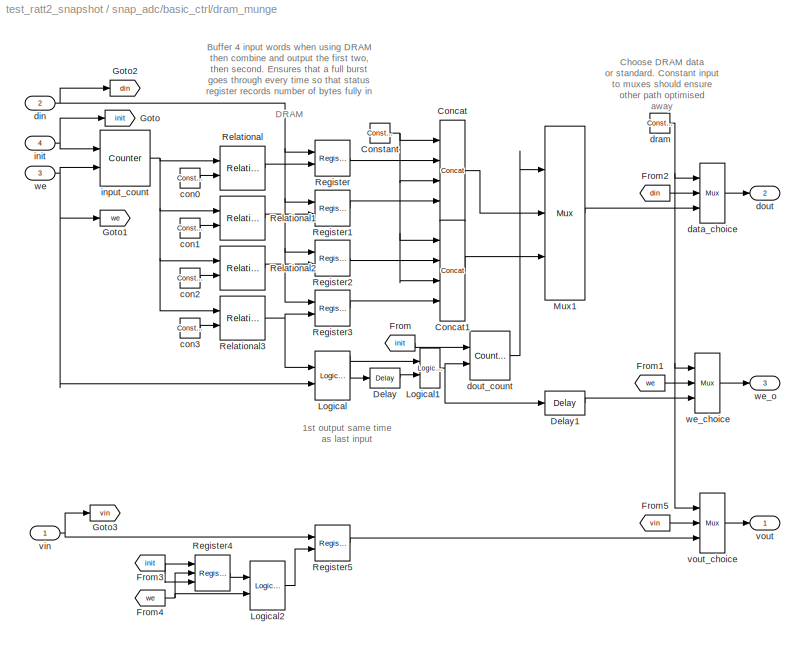
BLOCK [SubSystem] snap_adc/basic_ctrl/dram_munge
  FunctionWithSeparateData = off
  MaskCallbackString = |
  MaskEnableString = on,on
  MaskHideContents = off
  MaskIconFrame = on
  MaskIconOpaque = on
  MaskIconRotate = none
  MaskIconUnits = autoscale
  MaskInitialization = set_param(gcb,'LinkStatus','inactive');\nif strcmp(dram,'on'),\n    set_param([gcb,'/dram'], 'const', '1');\nelse,\n    set_param([gcb,'/dram'], 'const', '0');\nend\nset_param([gcb,'/data_choice'], ...\n        'precision', 'User Defined', ...\n        'arith_type', 'Unsigned', ...\n        'n_bits', num2str(data_width), 'bin_pt', '0', ...\n        'quantization', 'Truncate', ...\n        'overflo...<+12ch>
  MaskPortRotate = default
  MaskPromptString = dram|data width
  MaskStyleString = checkbox,edit
  MaskToolTipString = on,on
  MaskTunableValueString = on,on
  MaskValueString = off|data_width
  MaskVariables = dram=&1;data_width=@2;
  MaskVisibilityString = on,on
  MinAlgLoopOccurrences = off
  Opaque = off
  Ports = [4, 3]
  PropExecContextOutsideSubsystem = off
  RTWSystemCode = Auto
  RequestExecContextInheritance = off
  SID = 48:198:404
BLOCK [Reference] snap_adc/basic_ctrl/dram_munge/Concat  REF=xbsIndex_r4/Concat
  Ports = [4, 1]
  SID = 48:198:409
  SourceBlock = xbsIndex_r4/Concat
  SourceType = Xilinx Bus Concatenator Block
  block_type = concat
  block_version = 11.4
  dbl_ovrd = off
  has_advanced_control = 0
  infoedit = Concatenates two or more inputs.  Output will be cast to an unsigned value with the binary point at zero.
  num_inputs = 4
  sg_icon_stat = 25,101,4,1,white,blue,0,47d3d416,right,,[ ],[ ]
  sg_mask_display = fprintf('','COMMENT: begin icon graphics');\npatch([0 25 25 0 0 ],[0 0 101 101 0 ],[0.77 0.82 0.91 ]);\nplot([0 25 25 0 0 ],[0 0 101 101 0 ]);\npatch([5.325 9.66 12.66 15.66 18.66 12.66 8.325 5.325 ],[53.33 53.33 56.33 53.33 56.33 56.33 56.33 53.33 ],[1 1 1 ]);\npatch([8.325 12.66 9.66 5.325 8.325 ],[50.33 50.33 53.33 53.33 50.33 ],[0.931 0.946 0.973 ]);\npatch([5.325 9.66 12.66 8.325 5.325 ],[47....<+435ch>  <repeated x4 — deduplicated; at blocks: Concat, Concat1>
  sggui_pos = 21,71,348,216
BLOCK [Reference] snap_adc/basic_ctrl/dram_munge/Concat1  REF=xbsIndex_r4/Concat
  Ports = [4, 1]
  SID = 48:198:410
  SourceBlock = xbsIndex_r4/Concat
  SourceType = Xilinx Bus Concatenator Block
  block_type = concat
  block_version = 11.4
  dbl_ovrd = off
  has_advanced_control = 0
  infoedit = Concatenates two or more inputs.  Output will be cast to an unsigned value with the binary point at zero.
  num_inputs = 4
  sg_icon_stat = 25,101,4,1,white,blue,0,47d3d416,right,,[ ],[ ]
  sggui_pos = 21,71,348,216
BLOCK [Reference] snap_adc/basic_ctrl/dram_munge/Constant  REF=xbsIndex_r4/Constant
  Ports = [0, 1]
  SID = 48:198:411
  SourceBlock = xbsIndex_r4/Constant
  SourceType = Xilinx Constant Block Block
  arith_type = Unsigned
  bin_pt = 0
  block_type = constant
  block_version = 11.4
  carry = CIN
  const = 0
  dbl_ovrd = off
  dsp48_infoedit = The use of this block for DSP48 instructions is deprecated.  Please use the Opmode block.
  equ = P=C
  exp_width = 8
  explicit_period = on
  frac_width = 24
  gui_display_data_type = Fixed-point
  has_advanced_control = 0
  inp1 = P
  inp2 = PCIN>>17
  n_bits = 8
  opr = +
  opselect = C
  period = 1
  preci_type = Single
  sg_icon_stat = 20,20,0,1,white,blue,0,bf4ddd8b,right,,[ ],[ ]
  sggui_pos = -1,-1,-1,-1
BLOCK [Reference] snap_adc/basic_ctrl/dram_munge/Delay  REF=xbsIndex_r4/Delay
  Ports = [1, 1]
  SID = 48:198:412
  SourceBlock = xbsIndex_r4/Delay
  SourceType = Xilinx Delay Block
  block_type = delay
  block_version = 11.4
  dbl_ovrd = off
  en = off
  has_advanced_control = 0
  infoedit = Hardware notes: A delay line is a chain, each link of which is an SRL16 followed by a flip-flop.
  infoeditControl = Selection of Reset will increase slice count due to use of real FFs and instead of SRLs
  latency = 1
  reg_retiming = off
  rst = off
  sg_icon_stat = 30,20,1,1,white,blue,0,07b98262,right,,[ ],[ ]
  sg_mask_display = fprintf('','COMMENT: begin icon graphics');\npatch([0 30 30 0 0 ],[0 0 20 20 0 ],[0.77 0.82 0.91 ]);\nplot([0 30 30 0 0 ],[0 0 20 20 0 ]);\npatch([10.55 13.44 15.44 17.44 19.44 15.44 12.55 10.55 ],[12.22 12.22 14.22 12.22 14.22 14.22 14.22 12.22 ],[1 1 1 ]);\npatch([12.55 15.44 13.44 10.55 12.55 ],[10.22 10.22 12.22 12.22 10.22 ],[0.931 0.946 0.973 ]);\npatch([10.55 13.44 15.44 12.55 10.55 ],[8.22...<+324ch>
  sggui_pos = -1,-1,-1,-1
  xl_area = [0,0,0,0,0,0,0]
  xl_use_area = off
BLOCK [Reference] snap_adc/basic_ctrl/dram_munge/Delay1  REF=xbsIndex_r4/Delay
  Ports = [1, 1]
  SID = 48:198:413
  SourceBlock = xbsIndex_r4/Delay
  SourceType = Xilinx Delay Block
  block_type = delay
  block_version = 11.4
  dbl_ovrd = off
  en = off
  has_advanced_control = 0
  infoedit = Hardware notes: A delay line is a chain, each link of which is an SRL16 followed by a flip-flop.
  infoeditControl = Selection of Reset will increase slice count due to use of real FFs and instead of SRLs
  latency = 1
  reg_retiming = off
  rst = off
  sg_icon_stat = 40,24,1,1,white,blue,0,07b98262,right,,[ ],[ ]
  sg_mask_display = fprintf('','COMMENT: begin icon graphics');\npatch([0 40 40 0 0 ],[0 0 24 24 0 ],[0.77 0.82 0.91 ]);\nplot([0 40 40 0 0 ],[0 0 24 24 0 ]);\npatch([13.325 17.66 20.66 23.66 26.66 20.66 16.325 13.325 ],[15.33 15.33 18.33 15.33 18.33 18.33 18.33 15.33 ],[1 1 1 ]);\npatch([16.325 20.66 17.66 13.325 16.325 ],[12.33 12.33 15.33 15.33 12.33 ],[0.931 0.946 0.973 ]);\npatch([13.325 17.66 20.66 16.325 13.32...<+336ch>
  sggui_pos = -1,-1,-1,-1
  xl_area = [0,0,0,0,0,0,0]
  xl_use_area = off
BLOCK [From] snap_adc/basic_ctrl/dram_munge/From
  CloseFcn = tagdialog Close
  GotoTag = init
  SID = 48:198:414
BLOCK [From] snap_adc/basic_ctrl/dram_munge/From1
  CloseFcn = tagdialog Close
  GotoTag = we
  SID = 48:198:415
BLOCK [From] snap_adc/basic_ctrl/dram_munge/From2
  CloseFcn = tagdialog Close
  GotoTag = din
  SID = 48:198:416
BLOCK [From] snap_adc/basic_ctrl/dram_munge/From3
  CloseFcn = tagdialog Close
  GotoTag = init
  SID = 48:198:417
BLOCK [From] snap_adc/basic_ctrl/dram_munge/From4
  CloseFcn = tagdialog Close
  GotoTag = we
  SID = 48:198:418
BLOCK [From] snap_adc/basic_ctrl/dram_munge/From5
  CloseFcn = tagdialog Close
  GotoTag = vin
  SID = 48:198:419
BLOCK [Goto] snap_adc/basic_ctrl/dram_munge/Goto
  GotoTag = init
  SID = 48:198:420
BLOCK [Goto] snap_adc/basic_ctrl/dram_munge/Goto1
  GotoTag = we
  SID = 48:198:421
BLOCK [Goto] snap_adc/basic_ctrl/dram_munge/Goto2
  GotoTag = din
  SID = 48:198:422
BLOCK [Goto] snap_adc/basic_ctrl/dram_munge/Goto3
  GotoTag = vin
  SID = 48:198:423
BLOCK [Reference] snap_adc/basic_ctrl/dram_munge/Logical  REF=xbsIndex_r4/Logical
  Ports = [2, 1]
  SID = 48:198:424
  SourceBlock = xbsIndex_r4/Logical
  SourceType = Xilinx Logical Block Block
  align_bp = on
  arith_type = Unsigned
  bin_pt = 0
  block_type = logical
  block_version = 11.4
  dbl_ovrd = off
  en = off
  has_advanced_control = 0
  inputs = 2
  latency = 1
  logical_function = AND
  n_bits = 16
  precision = Full
  sg_icon_stat = 35,49,2,1,white,blue,0,e7f9d02e,right,,[ ],[ ]
  sg_list_contents = {'table'=>{'logical_function'=>'popup(AND|NAND|OR|NOR|XOR|XNOR)','userSelections'=>{'logical_function'=>'AND'}}}
  sg_mask_display = fprintf('','COMMENT: begin icon graphics');\npatch([0 35 35 0 0 ],[0 0 49 49 0 ],[0.77 0.82 0.91 ]);\nplot([0 35 35 0 0 ],[0 0 49 49 0 ]);\npatch([5.875 13.1 18.1 23.1 28.1 18.1 10.875 5.875 ],[29.55 29.55 34.55 29.55 34.55 34.55 34.55 29.55 ],[1 1 1 ]);\npatch([10.875 18.1 13.1 5.875 10.875 ],[24.55 24.55 29.55 29.55 24.55 ],[0.931 0.946 0.973 ]);\npatch([5.875 13.1 18.1 10.875 5.875 ],[19.55 19....<+370ch>
  sggui_pos = 21,71,419,291
  xl_area = [0,0,0,0,0,0,0]
  xl_use_area = off
BLOCK [Reference] snap_adc/basic_ctrl/dram_munge/Logical1  REF=xbsIndex_r4/Logical
  Ports = [2, 1]
  SID = 48:198:425
  SourceBlock = xbsIndex_r4/Logical
  SourceType = Xilinx Logical Block Block
  align_bp = on
  arith_type = Unsigned
  bin_pt = 0
  block_type = logical
  block_version = 11.4
  dbl_ovrd = off
  en = off
  has_advanced_control = 0
  inputs = 2
  latency = 0
  logical_function = OR
  n_bits = 16
  precision = Full
  sg_icon_stat = 20,40,2,1,white,blue,0,7ede7d88,right,,[ ],[ ]
  sg_list_contents = {'table'=>{'logical_function'=>'popup(AND|NAND|OR|NOR|XOR|XNOR)','userSelections'=>{'logical_function'=>'OR'}}}
  sg_mask_display = fprintf('','COMMENT: begin icon graphics');\npatch([0 20 20 0 0 ],[0 0 40 40 0 ],[0.77 0.82 0.91 ]);\nplot([0 20 20 0 0 ],[0 0 40 40 0 ]);\npatch([5.55 8.44 10.44 12.44 14.44 10.44 7.55 5.55 ],[22.22 22.22 24.22 22.22 24.22 24.22 24.22 22.22 ],[1 1 1 ]);\npatch([7.55 10.44 8.44 5.55 7.55 ],[20.22 20.22 22.22 22.22 20.22 ],[0.931 0.946 0.973 ]);\npatch([5.55 8.44 10.44 7.55 5.55 ],[18.22 18.22 20.2...<+299ch>
  sggui_pos = 21,71,419,291
  xl_area = [0,0,0,0,0,0,0]
  xl_use_area = off
BLOCK [Reference] snap_adc/basic_ctrl/dram_munge/Logical2  REF=xbsIndex_r4/Logical
  Ports = [2, 1]
  SID = 48:198:426
  SourceBlock = xbsIndex_r4/Logical
  SourceType = Xilinx Logical Block Block
  align_bp = on
  arith_type = Unsigned
  bin_pt = 0
  block_type = logical
  block_version = 11.4
  dbl_ovrd = off
  en = off
  has_advanced_control = 0
  inputs = 2
  latency = 0
  logical_function = AND
  n_bits = 16
  precision = Full
  sg_icon_stat = 35,49,2,1,white,blue,0,83a4b621,right,,[ ],[ ]
  sg_list_contents = {'table'=>{'logical_function'=>'popup(AND|NAND|OR|NOR|XOR|XNOR)','userSelections'=>{'logical_function'=>'AND'}}}
  sg_mask_display = fprintf('','COMMENT: begin icon graphics');\npatch([0 35 35 0 0 ],[0 0 49 49 0 ],[0.77 0.82 0.91 ]);\nplot([0 35 35 0 0 ],[0 0 49 49 0 ]);\npatch([5.875 13.1 18.1 23.1 28.1 18.1 10.875 5.875 ],[29.55 29.55 34.55 29.55 34.55 34.55 34.55 29.55 ],[1 1 1 ]);\npatch([10.875 18.1 13.1 5.875 10.875 ],[24.55 24.55 29.55 29.55 24.55 ],[0.931 0.946 0.973 ]);\npatch([5.875 13.1 18.1 10.875 5.875 ],[19.55 19....<+309ch>
  sggui_pos = 22,98,419,291
  xl_area = [0,0,0,0,0,0,0]
  xl_use_area = off
BLOCK [Reference] snap_adc/basic_ctrl/dram_munge/Mux1  REF=xbsIndex_r4/Mux
  Ports = [3, 1]
  SID = 48:198:427
  SourceBlock = xbsIndex_r4/Mux
  SourceType = Xilinx Bus Multiplexer Block
  arith_type = Unsigned
  bin_pt = 14
  block_type = mux
  block_version = 11.4
  dbl_ovrd = off
  en = off
  has_advanced_control = 0
  inputs = 2
  latency = 1
  n_bits = 16
  overflow = Wrap
  precision = Full
  quantization = Truncate
  sg_icon_stat = 40,174,3,1,white,blue,3,a150fb03,right,,[ ],[ ]
  sg_list_contents = {'table'=>{'inputs'=>'popup(2|3|4|5|6|7|8|9|10|11|12|13|14|15|16|17|18|19|20|21|22|23|24|25|26|27|28|29|30|31|32)','userSelections'=>{'inputs'=>'2'}}}
  sg_mask_display = fprintf('','COMMENT: begin icon graphics');\npatch([0 40 40 0 0 ],[0 24.8571 149.143 174 0 ],[0.77 0.82 0.91 ]);\nplot([0 40 40 0 0 ],[0 24.8571 149.143 174 0 ]);\npatch([8.875 16.1 21.1 26.1 31.1 21.1 13.875 8.875 ],[92.55 92.55 97.55 92.55 97.55 97.55 97.55 92.55 ],[1 1 1 ]);\npatch([13.875 21.1 16.1 8.875 13.875 ],[87.55 87.55 92.55 92.55 87.55 ],[0.931 0.946 0.973 ]);\npatch([8.875 16.1 21.1 1...<+490ch>
  sggui_pos = 23,125,419,344
  xl_area = [0,0,0,0,0,0,0]
  xl_use_area = off
BLOCK [Reference] snap_adc/basic_ctrl/dram_munge/Register  REF=xbsIndex_r4/Register
  Ports = [2, 1]
  SID = 48:198:428
  SourceBlock = xbsIndex_r4/Register
  SourceType = Xilinx Register Block
  block_type = register
  block_version = 11.4
  dbl_ovrd = off
  en = on
  has_advanced_control = 0
  init = 0
  rst = off
  sg_icon_stat = 35,36,2,1,white,blue,0,6bd0930c,right,,[ ],[ ]
  sg_mask_display = fprintf('','COMMENT: begin icon graphics');\npatch([0 35 35 0 0 ],[0 0 36 36 0 ],[0.77 0.82 0.91 ]);\nplot([0 35 35 0 0 ],[0 0 36 36 0 ]);\npatch([5.875 13.1 18.1 23.1 28.1 18.1 10.875 5.875 ],[23.55 23.55 28.55 23.55 28.55 28.55 28.55 23.55 ],[1 1 1 ]);\npatch([10.875 18.1 13.1 5.875 10.875 ],[18.55 18.55 23.55 23.55 18.55 ],[0.931 0.946 0.973 ]);\npatch([5.875 13.1 18.1 10.875 5.875 ],[13.55 13....<+448ch>  <repeated x10 — deduplicated; at blocks: Register, Register1, Register2, Register3, Register5>
  sggui_pos = 21,71,419,209
  xl_area = [0,0,0,0,0,0,0]
  xl_use_area = off
BLOCK [Reference] snap_adc/basic_ctrl/dram_munge/Register1  REF=xbsIndex_r4/Register
  Ports = [2, 1]
  SID = 48:198:429
  SourceBlock = xbsIndex_r4/Register
  SourceType = Xilinx Register Block
  block_type = register
  block_version = 11.4
  dbl_ovrd = off
  en = on
  has_advanced_control = 0
  init = 0
  rst = off
  sg_icon_stat = 35,36,2,1,white,blue,0,6bd0930c,right,,[ ],[ ]
  sggui_pos = 21,71,419,209
  xl_area = [0,0,0,0,0,0,0]
  xl_use_area = off
BLOCK [Reference] snap_adc/basic_ctrl/dram_munge/Register2  REF=xbsIndex_r4/Register
  Ports = [2, 1]
  SID = 48:198:430
  SourceBlock = xbsIndex_r4/Register
  SourceType = Xilinx Register Block
  block_type = register
  block_version = 11.4
  dbl_ovrd = off
  en = on
  has_advanced_control = 0
  init = 0
  rst = off
  sg_icon_stat = 35,36,2,1,white,blue,0,6bd0930c,right,,[ ],[ ]
  sggui_pos = 21,71,419,209
  xl_area = [0,0,0,0,0,0,0]
  xl_use_area = off
BLOCK [Reference] snap_adc/basic_ctrl/dram_munge/Register3  REF=xbsIndex_r4/Register
  Ports = [2, 1]
  SID = 48:198:431
  SourceBlock = xbsIndex_r4/Register
  SourceType = Xilinx Register Block
  block_type = register
  block_version = 11.4
  dbl_ovrd = off
  en = on
  has_advanced_control = 0
  init = 0
  rst = off
  sg_icon_stat = 35,36,2,1,white,blue,0,6bd0930c,right,,[ ],[ ]
  sggui_pos = 21,71,419,209
  xl_area = [0,0,0,0,0,0,0]
  xl_use_area = off
BLOCK [Reference] snap_adc/basic_ctrl/dram_munge/Register4  REF=xbsIndex_r4/Register
  Ports = [3, 1]
  SID = 48:198:432
  SourceBlock = xbsIndex_r4/Register
  SourceType = Xilinx Register Block
  block_type = register
  block_version = 11.4
  dbl_ovrd = off
  en = on
  has_advanced_control = 0
  init = 0
  rst = on
  sg_icon_stat = 35,36,3,1,white,blue,0,30546de1,right,,[ ],[ ]
  sg_mask_display = fprintf('','COMMENT: begin icon graphics');\npatch([0 35 35 0 0 ],[0 0 36 36 0 ],[0.77 0.82 0.91 ]);\nplot([0 35 35 0 0 ],[0 0 36 36 0 ]);\npatch([5.875 13.1 18.1 23.1 28.1 18.1 10.875 5.875 ],[23.55 23.55 28.55 23.55 28.55 28.55 28.55 23.55 ],[1 1 1 ]);\npatch([10.875 18.1 13.1 5.875 10.875 ],[18.55 18.55 23.55 23.55 18.55 ],[0.931 0.946 0.973 ]);\npatch([5.875 13.1 18.1 10.875 5.875 ],[13.55 13....<+493ch>
  sggui_pos = 21,71,419,209
  xl_area = [0,0,0,0,0,0,0]
  xl_use_area = off
BLOCK [Reference] snap_adc/basic_ctrl/dram_munge/Register5  REF=xbsIndex_r4/Register
  Ports = [2, 1]
  SID = 48:198:433
  SourceBlock = xbsIndex_r4/Register
  SourceType = Xilinx Register Block
  block_type = register
  block_version = 11.4
  dbl_ovrd = off
  en = on
  has_advanced_control = 0
  init = 0
  rst = off
  sg_icon_stat = 35,36,2,1,white,blue,0,6bd0930c,right,,[ ],[ ]
  sggui_pos = 22,98,419,209
  xl_area = [0,0,0,0,0,0,0]
  xl_use_area = off
BLOCK [Reference] snap_adc/basic_ctrl/dram_munge/Relational  REF=xbsIndex_r4/Relational
  Ports = [2, 1]
  SID = 48:198:434
  SourceBlock = xbsIndex_r4/Relational
  SourceType = Xilinx Arithmetic Relational Operator Block
  block_type = relational
  block_version = 11.4
  dbl_ovrd = off
  en = off
  has_advanced_control = 0
  latency = 0
  mode = a=b
  sg_icon_stat = 45,44,2,1,white,blue,0,2a81ff49,right,,[ ],[ ]
  sg_list_contents = {'table'=>{'mode'=>'popup(a=b|a!=b|a<b|a>b|a<=b|a>=b)','userSelections'=>{'mode'=>'a=b'}}}
  sg_mask_display = fprintf('','COMMENT: begin icon graphics');\npatch([0 45 45 0 0 ],[0 0 44 44 0 ],[0.77 0.82 0.91 ]);\nplot([0 45 45 0 0 ],[0 0 44 44 0 ]);\npatch([8.65 17.32 23.32 29.32 35.32 23.32 14.65 8.65 ],[28.66 28.66 34.66 28.66 34.66 34.66 34.66 28.66 ],[1 1 1 ]);\npatch([14.65 23.32 17.32 8.65 14.65 ],[22.66 22.66 28.66 28.66 22.66 ],[0.931 0.946 0.973 ]);\npatch([8.65 17.32 23.32 14.65 8.65 ],[16.66 16....<+455ch>  <repeated x8 — deduplicated; at blocks: Relational, Relational1, Relational2, Relational3>
  sggui_pos = 21,71,419,209
  xl_area = [0,0,0,0,0,0,0]
  xl_use_area = off
BLOCK [Reference] snap_adc/basic_ctrl/dram_munge/Relational1  REF=xbsIndex_r4/Relational
  Ports = [2, 1]
  SID = 48:198:435
  SourceBlock = xbsIndex_r4/Relational
  SourceType = Xilinx Arithmetic Relational Operator Block
  block_type = relational
  block_version = 11.4
  dbl_ovrd = off
  en = off
  has_advanced_control = 0
  latency = 0
  mode = a=b
  sg_icon_stat = 45,44,2,1,white,blue,0,2a81ff49,right,,[ ],[ ]
  sg_list_contents = {'table'=>{'mode'=>'popup(a=b|a!=b|a<b|a>b|a<=b|a>=b)','userSelections'=>{'mode'=>'a=b'}}}
  sggui_pos = 21,71,419,209
  xl_area = [0,0,0,0,0,0,0]
  xl_use_area = off
BLOCK [Reference] snap_adc/basic_ctrl/dram_munge/Relational2  REF=xbsIndex_r4/Relational
  Ports = [2, 1]
  SID = 48:198:436
  SourceBlock = xbsIndex_r4/Relational
  SourceType = Xilinx Arithmetic Relational Operator Block
  block_type = relational
  block_version = 11.4
  dbl_ovrd = off
  en = off
  has_advanced_control = 0
  latency = 0
  mode = a=b
  sg_icon_stat = 45,44,2,1,white,blue,0,2a81ff49,right,,[ ],[ ]
  sg_list_contents = {'table'=>{'mode'=>'popup(a=b|a!=b|a<b|a>b|a<=b|a>=b)','userSelections'=>{'mode'=>'a=b'}}}
  sggui_pos = 21,71,419,209
  xl_area = [0,0,0,0,0,0,0]
  xl_use_area = off
BLOCK [Reference] snap_adc/basic_ctrl/dram_munge/Relational3  REF=xbsIndex_r4/Relational
  Ports = [2, 1]
  SID = 48:198:437
  SourceBlock = xbsIndex_r4/Relational
  SourceType = Xilinx Arithmetic Relational Operator Block
  block_type = relational
  block_version = 11.4
  dbl_ovrd = off
  en = off
  has_advanced_control = 0
  latency = 0
  mode = a=b
  sg_icon_stat = 45,44,2,1,white,blue,0,2a81ff49,right,,[ ],[ ]
  sg_list_contents = {'table'=>{'mode'=>'popup(a=b|a!=b|a<b|a>b|a<=b|a>=b)','userSelections'=>{'mode'=>'a=b'}}}
  sggui_pos = 21,71,419,209
  xl_area = [0,0,0,0,0,0,0]
  xl_use_area = off
BLOCK [Reference] snap_adc/basic_ctrl/dram_munge/con0  REF=xbsIndex_r4/Constant
  Ports = [0, 1]
  SID = 48:198:438
  SourceBlock = xbsIndex_r4/Constant
  SourceType = Xilinx Constant Block Block
  arith_type = Unsigned
  bin_pt = 0
  block_type = constant
  block_version = 11.4
  carry = CIN
  const = 0
  dbl_ovrd = off
  dsp48_infoedit = The use of this block for DSP48 instructions is deprecated.  Please use the Opmode block.
  equ = P=C
  exp_width = 8
  explicit_period = on
  frac_width = 24
  gui_display_data_type = Fixed-point
  has_advanced_control = 0
  inp1 = P
  inp2 = PCIN>>17
  n_bits = 2
  opr = +
  opselect = C
  period = 1
  preci_type = Single
  sg_icon_stat = 20,20,0,1,white,blue,0,bf4ddd8b,right,,[ ],[ ]
  sggui_pos = 22,98,474,439
BLOCK [Reference] snap_adc/basic_ctrl/dram_munge/con1  REF=xbsIndex_r4/Constant
  Ports = [0, 1]
  SID = 48:198:439
  SourceBlock = xbsIndex_r4/Constant
  SourceType = Xilinx Constant Block Block
  arith_type = Unsigned
  bin_pt = 0
  block_type = constant
  block_version = 11.4
  carry = CIN
  const = 1
  dbl_ovrd = off
  dsp48_infoedit = The use of this block for DSP48 instructions is deprecated.  Please use the Opmode block.
  equ = P=C
  exp_width = 8
  explicit_period = on
  frac_width = 24
  gui_display_data_type = Fixed-point
  has_advanced_control = 0
  inp1 = P
  inp2 = PCIN>>17
  n_bits = 2
  opr = +
  opselect = C
  period = 1
  preci_type = Single
  sg_icon_stat = 20,20,0,1,white,blue,0,1c72b5be,right,,[ ],[ ]
  sggui_pos = 23,125,474,439
BLOCK [Reference] snap_adc/basic_ctrl/dram_munge/con2  REF=xbsIndex_r4/Constant
  Ports = [0, 1]
  SID = 48:198:440
  SourceBlock = xbsIndex_r4/Constant
  SourceType = Xilinx Constant Block Block
  arith_type = Unsigned
  bin_pt = 0
  block_type = constant
  block_version = 11.4
  carry = CIN
  const = 2
  dbl_ovrd = off
  dsp48_infoedit = The use of this block for DSP48 instructions is deprecated.  Please use the Opmode block.
  equ = P=C
  exp_width = 8
  explicit_period = on
  frac_width = 24
  gui_display_data_type = Fixed-point
  has_advanced_control = 0
  inp1 = P
  inp2 = PCIN>>17
  n_bits = 2
  opr = +
  opselect = C
  period = 1
  preci_type = Single
  sg_icon_stat = 20,20,0,1,white,blue,0,fca86624,right,,[ ],[ ]
  sggui_pos = 24,152,474,439
BLOCK [Reference] snap_adc/basic_ctrl/dram_munge/con3  REF=xbsIndex_r4/Constant
  Ports = [0, 1]
  SID = 48:198:441
  SourceBlock = xbsIndex_r4/Constant
  SourceType = Xilinx Constant Block Block
  arith_type = Unsigned
  bin_pt = 0
  block_type = constant
  block_version = 11.4
  carry = CIN
  const = 3
  dbl_ovrd = off
  dsp48_infoedit = The use of this block for DSP48 instructions is deprecated.  Please use the Opmode block.
  equ = P=C
  exp_width = 8
  explicit_period = on
  frac_width = 24
  gui_display_data_type = Fixed-point
  has_advanced_control = 0
  inp1 = P
  inp2 = PCIN>>17
  n_bits = 2
  opr = +
  opselect = C
  period = 1
  preci_type = Single
  sg_icon_stat = 20,20,0,1,white,blue,0,279a71c8,right,,[ ],[ ]
  sggui_pos = 25,179,474,439
BLOCK [Reference] snap_adc/basic_ctrl/dram_munge/data_choice  REF=xbsIndex_r4/Mux
  Ports = [3, 1]
  SID = 48:198:442
  SourceBlock = xbsIndex_r4/Mux
  SourceType = Xilinx Bus Multiplexer Block
  arith_type = Unsigned
  bin_pt = 0
  block_type = mux
  block_version = 11.4
  dbl_ovrd = off
  en = off
  has_advanced_control = 0
  inputs = 2
  latency = 0
  n_bits = 128
  overflow = Wrap
  precision = User Defined
  quantization = Truncate
  sg_icon_stat = 25,60,3,1,white,blue,3,eb98d690,right,,[ ],[ ]
  sg_list_contents = {'table'=>{'inputs'=>'popup(2|3|4|5|6|7|8|9|10|11|12|13|14|15|16|17|18|19|20|21|22|23|24|25|26|27|28|29|30|31|32)','userSelections'=>{'inputs'=>'2'}}}
  sg_mask_display = fprintf('','COMMENT: begin icon graphics');\npatch([0 25 25 0 0 ],[0 8.57143 51.4286 60 0 ],[0.77 0.82 0.91 ]);\nplot([0 25 25 0 0 ],[0 8.57143 51.4286 60 0 ]);\npatch([5.325 9.66 12.66 15.66 18.66 12.66 8.325 5.325 ],[33.33 33.33 36.33 33.33 36.33 36.33 36.33 33.33 ],[1 1 1 ]);\npatch([8.325 12.66 9.66 5.325 8.325 ],[30.33 30.33 33.33 33.33 30.33 ],[0.931 0.946 0.973 ]);\npatch([5.325 9.66 12.66 ...<+483ch>  <repeated x6 — deduplicated; at blocks: data_choice, vout_choice, we_choice>
  sggui_pos = 26,206,419,344
  xl_area = [0,0,0,0,0,0,0]
  xl_use_area = off
BLOCK [Inport] snap_adc/basic_ctrl/dram_munge/din
  IconDisplay = Port number
  Port = 2
  SID = 48:198:406
BLOCK [Outport] snap_adc/basic_ctrl/dram_munge/dout
  IconDisplay = Port number
  Port = 2
  SID = 48:198:449
BLOCK [Reference] snap_adc/basic_ctrl/dram_munge/dout_count  REF=xbsIndex_r4/Counter
  Ports = [2, 1]
  SID = 48:198:443
  SourceBlock = xbsIndex_r4/Counter
  SourceType = Xilinx Counter Block
  arith_type = Unsigned
  bin_pt = 0
  block_type = counter
  block_version = 11.4
  cnt_by_val = 1
  cnt_to = Inf
  cnt_type = Free Running
  dbl_ovrd = off
  en = on
  explicit_period = on
  has_advanced_control = 0
  implementation = Fabric
  infoedit = Hardware notes: Free running counters are the least expensive in hardware.  A count limited counter is implemented by combining a counter with a comparator.
  load_pin = off
  n_bits = 1
  operation = Up
  period = 1
  rst = on
  sg_icon_stat = 40,49,2,1,white,blue,0,ae3608d6,right,,[ ],[ ]
  sg_mask_display = fprintf('','COMMENT: begin icon graphics');\npatch([0 40 40 0 0 ],[0 0 49 49 0 ],[0.77 0.82 0.91 ]);\nplot([0 40 40 0 0 ],[0 0 49 49 0 ]);\npatch([8.875 16.1 21.1 26.1 31.1 21.1 13.875 8.875 ],[29.55 29.55 34.55 29.55 34.55 34.55 34.55 29.55 ],[1 1 1 ]);\npatch([13.875 21.1 16.1 8.875 13.875 ],[24.55 24.55 29.55 29.55 24.55 ],[0.931 0.946 0.973 ]);\npatch([8.875 16.1 21.1 13.875 8.875 ],[19.55 19....<+430ch>
  sggui_pos = 22,98,419,748
  start_count = 0
  use_behavioral_HDL = off
  xl_area = [0,0,0,0,0,0,0]
  xl_use_area = off
BLOCK [Reference] snap_adc/basic_ctrl/dram_munge/dram  REF=xbsIndex_r4/Constant
  Ports = [0, 1]
  SID = 48:198:444
  SourceBlock = xbsIndex_r4/Constant
  SourceType = Xilinx Constant Block Block
  arith_type = Boolean
  bin_pt = 14
  block_type = constant
  block_version = 11.4
  carry = CIN
  const = 0
  dbl_ovrd = off
  dsp48_infoedit = The use of this block for DSP48 instructions is deprecated.  Please use the Opmode block.
  equ = P=C
  exp_width = 8
  explicit_period = on
  frac_width = 24
  gui_display_data_type = Fixed-point
  has_advanced_control = 0
  inp1 = P
  inp2 = PCIN>>17
  n_bits = 16
  opr = +
  opselect = C
  period = 1
  preci_type = Single
  sg_icon_stat = 20,20,0,1,white,blue,0,bf4ddd8b,right,,[ ],[ ]
  sggui_pos = 23,125,474,439
BLOCK [Inport] snap_adc/basic_ctrl/dram_munge/init
  IconDisplay = Port number
  Port = 4
  SID = 48:198:408
BLOCK [Reference] snap_adc/basic_ctrl/dram_munge/input_count  REF=xbsIndex_r4/Counter
  Ports = [2, 1]
  SID = 48:198:445
  SourceBlock = xbsIndex_r4/Counter
  SourceType = Xilinx Counter Block
  arith_type = Unsigned
  bin_pt = 0
  block_type = counter
  block_version = 11.4
  cnt_by_val = 1
  cnt_to = Inf
  cnt_type = Free Running
  dbl_ovrd = off
  en = on
  explicit_period = on
  has_advanced_control = 0
  implementation = Fabric
  infoedit = Hardware notes: Free running counters are the least expensive in hardware.  A count limited counter is implemented by combining a counter with a comparator.
  load_pin = off
  n_bits = 2
  operation = Up
  period = 1
  rst = on
  sg_icon_stat = 50,56,2,1,white,blue,0,ae3608d6,right,,[ ],[ ]
  sg_mask_display = fprintf('','COMMENT: begin icon graphics');\npatch([0 50 50 0 0 ],[0 0 56 56 0 ],[0.77 0.82 0.91 ]);\nplot([0 50 50 0 0 ],[0 0 56 56 0 ]);\npatch([9.425 19.54 26.54 33.54 40.54 26.54 16.425 9.425 ],[35.77 35.77 42.77 35.77 42.77 42.77 42.77 35.77 ],[1 1 1 ]);\npatch([16.425 26.54 19.54 9.425 16.425 ],[28.77 28.77 35.77 35.77 28.77 ],[0.931 0.946 0.973 ]);\npatch([9.425 19.54 26.54 16.425 9.425 ],[...<+441ch>
  sggui_pos = 22,98,419,748
  start_count = 0
  use_behavioral_HDL = off
  xl_area = [0,0,0,0,0,0,0]
  xl_use_area = off
BLOCK [Inport] snap_adc/basic_ctrl/dram_munge/vin
  IconDisplay = Port number
  SID = 48:198:405
BLOCK [Outport] snap_adc/basic_ctrl/dram_munge/vout
  IconDisplay = Port number
  SID = 48:198:448
BLOCK [Reference] snap_adc/basic_ctrl/dram_munge/vout_choice  REF=xbsIndex_r4/Mux
  Ports = [3, 1]
  SID = 48:198:446
  SourceBlock = xbsIndex_r4/Mux
  SourceType = Xilinx Bus Multiplexer Block
  arith_type = Unsigned
  bin_pt = 14
  block_type = mux
  block_version = 11.4
  dbl_ovrd = off
  en = off
  has_advanced_control = 0
  inputs = 2
  latency = 0
  n_bits = 16
  overflow = Wrap
  precision = Full
  quantization = Truncate
  sg_icon_stat = 25,60,3,1,white,blue,3,eb98d690,right,,[ ],[ ]
  sggui_pos = -1,-1,-1,-1
  xl_area = [0,0,0,0,0,0,0]
  xl_use_area = off
BLOCK [Inport] snap_adc/basic_ctrl/dram_munge/we
  IconDisplay = Port number
  Port = 3
  SID = 48:198:407
BLOCK [Reference] snap_adc/basic_ctrl/dram_munge/we_choice  REF=xbsIndex_r4/Mux
  Ports = [3, 1]
  SID = 48:198:447
  SourceBlock = xbsIndex_r4/Mux
  SourceType = Xilinx Bus Multiplexer Block
  arith_type = Unsigned
  bin_pt = 14
  block_type = mux
  block_version = 11.4
  dbl_ovrd = off
  en = off
  has_advanced_control = 0
  inputs = 2
  latency = 0
  n_bits = 16
  overflow = Wrap
  precision = Full
  quantization = Truncate
  sg_icon_stat = 25,60,3,1,white,blue,3,eb98d690,right,,[ ],[ ]
  sggui_pos = -1,-1,-1,-1
  xl_area = [0,0,0,0,0,0,0]
  xl_use_area = off
BLOCK [Outport] snap_adc/basic_ctrl/dram_munge/we_o
  IconDisplay = Port number
  Port = 3
  SID = 48:198:450
BLOCK [Reference] snap_adc/basic_ctrl/edge_detect  REF=casper_library_misc/edge_detect  (lib defined in mdl_357510c33b49, mdl_57b5f564ae26, +4 more)
  AttributesFormatString = rising edges\nactive high
  Ports = [1, 1]
  SID = 48:198:454
  SourceBlock = casper_library_misc/edge_detect
  SourceType = edge_detect
  UserData = DataTag7
  UserDataPersistent = on
  edge = Rising
  polarity = Active High
  x_in = [0 0.08 0.08 0.16 0.16 0.24 0.24 0.32 0.32 0.4]
  x_out = [0.6 0.68 0.68 0.76 0.76 0.84 0.84 0.92 0.92 1]
  y_in = [-1 -1  1  1  1  1  1  1  1  1]
  y_out = [-1 -1  1  1 -1 -1 -1 -1 -1 -1]
BLOCK [Reference] snap_adc/basic_ctrl/enable  REF=xbsIndex_r4/Slice
  Ports = [1, 1]
  SID = 48:198:455
  SourceBlock = xbsIndex_r4/Slice
  SourceType = Xilinx Bit Slice Extractor Block
  base0 = LSB of Input
  base1 = LSB of Input
  bit0 = 0
  bit1 = 0
  block_type = slice
  block_version = 10.1.3
  boolean_output = on
  dbl_ovrd = off
  has_advanced_control = 0
  infoedit = Extracts a given range of bits from each input sample and presents it at the output.  The output type is ordinarily unsigned with binary point at zero, but can be Boolean when the slice is one bit wide.<P><P>Hardware notes: In hardware this block costs nothing.  <repeated x6 — deduplicated; at blocks: enable, trig_src, valid_src>
  mode = Lower Bit Location + Width
  nbits = 1
  sg_icon_stat = 25,18,1,1,white,blue,0,1fd851a7,right,,[ ],[ ]
  sg_mask_display = fprintf('','COMMENT: begin icon graphics');\npatch([0 25 25 0 0 ],[0 0 18 18 0 ],[0.77 0.82 0.91 ]);\nplot([0 25 25 0 0 ],[0 0 18 18 0 ]);\npatch([7.55 10.44 12.44 14.44 16.44 12.44 9.55 7.55 ],[11.22 11.22 13.22 11.22 13.22 13.22 13.22 11.22 ],[1 1 1 ]);\npatch([9.55 12.44 10.44 7.55 9.55 ],[9.22 9.22 11.22 11.22 9.22 ],[0.931 0.946 0.973 ]);\npatch([7.55 10.44 12.44 9.55 7.55 ],[7.22 7.22 9.22 9...<+306ch>
  sggui_pos = 22,98,540,482
BLOCK [Outport] snap_adc/basic_ctrl/go
  IconDisplay = Port number
  Port = 4
  SID = 48:198:461
BLOCK [Outport] snap_adc/basic_ctrl/init
  IconDisplay = Port number
  Port = 6
  SID = 48:198:463
BLOCK [Outport] snap_adc/basic_ctrl/stop
  IconDisplay = Port number
  Port = 5
  SID = 48:198:462
BLOCK [Inport] snap_adc/basic_ctrl/stopi
  IconDisplay = Port number
  Port = 6
  SID = 48:198:391
BLOCK [Inport] snap_adc/basic_ctrl/trig
  IconDisplay = Port number
  Port = 4
  SID = 48:198:389
BLOCK [Reference] snap_adc/basic_ctrl/trig_src  REF=xbsIndex_r4/Slice
  Ports = [1, 1]
  SID = 48:198:456
  SourceBlock = xbsIndex_r4/Slice
  SourceType = Xilinx Bit Slice Extractor Block
  base0 = LSB of Input
  base1 = LSB of Input
  bit0 = 1
  bit1 = 0
  block_type = slice
  block_version = 10.1.3
  boolean_output = on
  dbl_ovrd = off
  has_advanced_control = 0
  mode = Lower Bit Location + Width
  nbits = 1
  sg_icon_stat = 25,20,1,1,white,blue,0,1fd851a7,right,,[ ],[ ]
  sggui_pos = 23,125,540,482
BLOCK [Reference] snap_adc/basic_ctrl/valid_src  REF=xbsIndex_r4/Slice
  Ports = [1, 1]
  SID = 48:198:457
  SourceBlock = xbsIndex_r4/Slice
  SourceType = Xilinx Bit Slice Extractor Block
  base0 = LSB of Input
  base1 = LSB of Input
  bit0 = 2
  bit1 = 0
  block_type = slice
  block_version = 10.1.3
  boolean_output = on
  dbl_ovrd = off
  has_advanced_control = 0
  mode = Lower Bit Location + Width
  nbits = 1
  sg_icon_stat = 25,22,1,1,white,blue,0,1fd851a7,right,,[ ],[ ]
  sggui_pos = 499,248,540,482
BLOCK [Inport] snap_adc/basic_ctrl/vin
  IconDisplay = Port number
  SID = 48:198:386
BLOCK [Outport] snap_adc/basic_ctrl/vout
  IconDisplay = Port number
  SID = 48:198:458
BLOCK [Inport] snap_adc/basic_ctrl/we
  IconDisplay = Port number
  Port = 3
  SID = 48:198:388
BLOCK [Outport] snap_adc/basic_ctrl/we_o
  IconDisplay = Port number
  Port = 3
  SID = 48:198:460
BLOCK [SubSystem] snap_adc/bram
  AncestorBlock = xps_library/Shared BRAM
  FunctionWithSeparateData = off
  MaskCallbackString = |||||
  MaskEnableString = on,on,on,on,on,on
  MaskHideContents = off
  MaskIconFrame = on
  MaskIconOpaque = on
  MaskIconRotate = none
  MaskIconUnits = pixels
  MaskInitialization = shared_bram_mask;
  MaskPortRotate = default
  MaskPromptString = Output Data Type|Address width|Data Width|Data Binary Point|Initial 32-bit values (simulation only)|Sample rate
  MaskSelfModifiable = on
  MaskStyleString = popup(Unsigned|Signed  (2's comp)),edit,popup(8|16|32|64|128),edit,edit,edit
  MaskToolTipString = on,on,on,on,on,on
  MaskTunableValueString = on,on,on,on,on,on
  MaskValueString = Unsigned|12|128|0|[0:2^10-1]|1
  MaskVariables = arith_type=&1;addr_width=@2;data_width=@3;data_bin_pt=@4;init_vals=@5;sample_rate=@6;
  MaskVisibilityString = on,on,on,on,on,on
  MinAlgLoopOccurrences = off
  Opaque = off
  Ports = [3, 1]
  PropExecContextOutsideSubsystem = off
  RTWSystemCode = Auto
  RequestExecContextInheritance = off
  SID = 48:206
  Tag = xps:bram
BLOCK [Inport] snap_adc/bram/addr
  IconDisplay = Port number
  SID = 48:206:1
BLOCK [SubSystem] snap_adc/bram/calc_add
  FunctionWithSeparateData = off
  MaskHideContents = off
  MinAlgLoopOccurrences = off
  Opaque = off
  Ports = [1, 1]
  PropExecContextOutsideSubsystem = off
  RTWSystemCode = Auto
  RequestExecContextInheritance = off
  SID = 48:206:4
BLOCK [Reference] snap_adc/bram/calc_add/add_sub  REF=xbsIndex_r4/AddSub
  Ports = [2, 1]
  SID = 48:206:6
  SourceBlock = xbsIndex_r4/AddSub
  SourceType = Xilinx Adder/Subtracter Block
  arith_type = Unsigned
  bin_pt = 0
  block_type = addsub
  block_version = 11.4
  dbl_ovrd = off
  en = off
  has_advanced_control = 0
  hw_selection = Fabric
  latency = 0
  mode = Subtraction
  n_bits = max(1, log2(32/data_width))
  overflow = Wrap
  pipelined = off
  precision = User Defined
  quantization = Truncate
  sg_icon_stat = 35,78,2,1,white,blue,0,32e1f85f,right,,[ ],[ ]
  sg_mask_display = fprintf('','COMMENT: begin icon graphics');\npatch([0 35 35 0 0 ],[0 0 78 78 0 ],[0.77 0.82 0.91 ]);\nplot([0 35 35 0 0 ],[0 0 78 78 0 ]);\npatch([5.875 13.1 18.1 23.1 28.1 18.1 10.875 5.875 ],[44.55 44.55 49.55 44.55 49.55 49.55 49.55 44.55 ],[1 1 1 ]);\npatch([10.875 18.1 13.1 5.875 10.875 ],[39.55 39.55 44.55 44.55 39.55 ],[0.931 0.946 0.973 ]);\npatch([5.875 13.1 18.1 10.875 5.875 ],[34.55 34....<+431ch>  <repeated x4 — deduplicated; at blocks: add_sub>
  sggui_pos = 24,152,419,344
  use_behavioral_HDL = on
  use_carryin = off
  use_carryout = off
  xl_area = [0,0,0,0,0,0,0]
  xl_use_area = off
BLOCK [Reference] snap_adc/bram/calc_add/concat  REF=xbsIndex_r4/Concat
  Ports = [2, 1]
  SID = 48:206:7
  SourceBlock = xbsIndex_r4/Concat
  SourceType = Xilinx Bus Concatenator Block
  block_type = concat
  block_version = 11.4
  dbl_ovrd = off
  has_advanced_control = 0
  infoedit = Concatenates two or more inputs.  Output will be cast to an unsigned value with the binary point at zero.
  num_inputs = 2
  sg_icon_stat = 20,120,2,1,white,blue,0,16398980,right,,[ ],[ ]
  sg_mask_display = fprintf('','COMMENT: begin icon graphics');\npatch([0 20 20 0 0 ],[0 0 120 120 0 ],[0.77 0.82 0.91 ]);\nplot([0 20 20 0 0 ],[0 0 120 120 0 ]);\npatch([5.55 8.44 10.44 12.44 14.44 10.44 7.55 5.55 ],[62.22 62.22 64.22 62.22 64.22 64.22 64.22 62.22 ],[1 1 1 ]);\npatch([7.55 10.44 8.44 5.55 7.55 ],[60.22 60.22 62.22 62.22 60.22 ],[0.931 0.946 0.973 ]);\npatch([5.55 8.44 10.44 7.55 5.55 ],[58.22 58.22 ...<+417ch>  <repeated x4 — deduplicated; at blocks: concat>
  sggui_pos = -1,-1,-1,-1
BLOCK [Reference] snap_adc/bram/calc_add/const  REF=xbsIndex_r4/Constant
  Ports = [0, 1]
  SID = 48:206:8
  SourceBlock = xbsIndex_r4/Constant
  SourceType = Xilinx Constant Block Block
  arith_type = Unsigned
  bin_pt = 0
  block_type = constant
  block_version = 11.4
  carry = CIN
  const = max(0, 32/data_width-1)
  dbl_ovrd = off
  dsp48_infoedit = The use of this block for DSP48 instructions is deprecated.  Please use the Opmode block.
  equ = P=C
  exp_width = 8
  explicit_period = on
  frac_width = 24
  gui_display_data_type = Fixed-point
  has_advanced_control = 0
  inp1 = P
  inp2 = PCIN>>17
  n_bits = max(1, log2(32/data_width))
  opr = +
  opselect = C
  period = sample_rate
  preci_type = Single
  sg_icon_stat = 20,18,0,1,white,blue,0,bf4ddd8b,right,,[ ],[ ]
  sggui_pos = 536,513,474,439
BLOCK [Reference] snap_adc/bram/calc_add/convert_addr  REF=xbsIndex_r4/Convert
  Ports = [1, 1]
  SID = 48:206:9
  SourceBlock = xbsIndex_r4/Convert
  SourceType = Xilinx Type Converter Block
  arith_type = Unsigned
  bin_pt = 0
  block_type = convert
  block_version = 9.1.01
  dbl_ovrd = off
  en = off
  exp_bits = 8
  float_type = Single
  fraction_bits = 24
  gui_display_data_type = Fixed-point
  has_advanced_control = 0
  infoedit = Hardware notes: rounding and saturating require hardware resources; truncating and wrapping do not.
  latency = 0
  n_bits = addr_width
  overflow = Wrap
  pipeline = off
  quantization = Truncate
  sg_icon_stat = 35,24,1,1,white,blue,0,edca21da,right,,[ ],[ ]
  sg_mask_display = fprintf('','COMMENT: begin icon graphics');\npatch([0 35 35 0 0 ],[0 0 24 24 0 ],[0.77 0.82 0.91 ]);\nplot([0 35 35 0 0 ],[0 0 24 24 0 ]);\npatch([10.325 14.66 17.66 20.66 23.66 17.66 13.325 10.325 ],[15.33 15.33 18.33 15.33 18.33 18.33 18.33 15.33 ],[1 1 1 ]);\npatch([13.325 17.66 14.66 10.325 13.325 ],[12.33 12.33 15.33 15.33 12.33 ],[0.931 0.946 0.973 ]);\npatch([10.325 14.66 17.66 13.325 10.32...<+334ch>  <repeated x12 — deduplicated; at blocks: convert_addr, convert_din, convert_din1, convert_we>
  sggui_pos = 21,51,636,521
  xl_area = [0, 0, 0, 0, 0, 0, 0]
  xl_use_area = off
BLOCK [Inport] snap_adc/bram/calc_add/in
  IconDisplay = Port number
  SID = 48:206:5
BLOCK [Reference] snap_adc/bram/calc_add/lsw  REF=xbsIndex_r4/Slice
  Ports = [1, 1]
  SID = 48:206:10
  SourceBlock = xbsIndex_r4/Slice
  SourceType = Xilinx Bit Slice Extractor Block
  base0 = LSB of Input
  base1 = MSB of Input
  bit0 = 0
  bit1 = 0
  block_type = slice
  block_version = 11.4
  boolean_output = off
  dbl_ovrd = off
  has_advanced_control = 0
  mode = Lower Bit Location + Width
  nbits = max(1, log2(32/data_width))
  sg_icon_stat = 30,22,1,1,white,blue,0,1fd851a7,right,,[ ],[ ]
  sg_mask_display = fprintf('','COMMENT: begin icon graphics');\npatch([0 30 30 0 0 ],[0 0 22 22 0 ],[0.77 0.82 0.91 ]);\nplot([0 30 30 0 0 ],[0 0 22 22 0 ]);\npatch([8.325 12.66 15.66 18.66 21.66 15.66 11.325 8.325 ],[14.33 14.33 17.33 14.33 17.33 17.33 17.33 14.33 ],[1 1 1 ]);\npatch([11.325 15.66 12.66 8.325 11.325 ],[11.33 11.33 14.33 14.33 11.33 ],[0.931 0.946 0.973 ]);\npatch([8.325 12.66 15.66 11.325 8.325 ],[...<+329ch>  <repeated x8 — deduplicated; at blocks: lsw, msw>
  sggui_pos = 1059,231,540,482
BLOCK [Reference] snap_adc/bram/calc_add/manipulate  REF=xbsIndex_r4/Constant
  Ports = [0, 1]
  SID = 48:206:11
  SourceBlock = xbsIndex_r4/Constant
  SourceType = Xilinx Constant Block Block
  arith_type = Unsigned
  bin_pt = 0
  block_type = constant
  block_version = 11.4
  carry = CIN
  const = min(1, floor(32/data_width) - 1)
  dbl_ovrd = off
  dsp48_infoedit = The use of this block for DSP48 instructions is deprecated.  Please use the Opmode block.
  equ = P=C
  exp_width = 8
  explicit_period = on
  frac_width = 24
  gui_display_data_type = Fixed-point
  has_advanced_control = 0
  inp1 = P
  inp2 = PCIN>>17
  n_bits = 1
  opr = +
  opselect = C
  period = sample_rate
  preci_type = Single
  sg_icon_stat = 20,18,0,1,white,blue,0,bf4ddd8b,right,,[ ],[ ]
  sg_mask_display = fprintf('','COMMENT: begin icon graphics');\npatch([0 20 20 0 0 ],[0 0 18 18 0 ],[0.77 0.82 0.91 ]);\nplot([0 20 20 0 0 ],[0 0 18 18 0 ]);\npatch([5.55 8.44 10.44 12.44 14.44 10.44 7.55 5.55 ],[11.22 11.22 13.22 11.22 13.22 13.22 13.22 11.22 ],[1 1 1 ]);\npatch([7.55 10.44 8.44 5.55 7.55 ],[9.22 9.22 11.22 11.22 9.22 ],[0.931 0.946 0.973 ]);\npatch([5.55 8.44 10.44 7.55 5.55 ],[7.22 7.22 9.22 9.22...<+294ch>  <repeated x4 — deduplicated; at blocks: manipulate>
  sggui_pos = 525,644,474,439
BLOCK [Reference] snap_adc/bram/calc_add/msw  REF=xbsIndex_r4/Slice
  Ports = [1, 1]
  SID = 48:206:12
  SourceBlock = xbsIndex_r4/Slice
  SourceType = Xilinx Bit Slice Extractor Block
  base0 = LSB of Input
  base1 = MSB of Input
  bit0 = 0
  bit1 = 0
  block_type = slice
  block_version = 11.4
  boolean_output = off
  dbl_ovrd = off
  has_advanced_control = 0
  mode = Upper Bit Location + Width
  nbits = addr_width - max(1, log2(32/data_width))
  sg_icon_stat = 30,22,1,1,white,blue,0,1fd851a7,right,,[ ],[ ]
  sggui_pos = 956,177,540,482
BLOCK [Reference] snap_adc/bram/calc_add/mux  REF=xbsIndex_r4/Mux
  Ports = [3, 1]
  SID = 48:206:13
  SourceBlock = xbsIndex_r4/Mux
  SourceType = Xilinx Bus Multiplexer Block
  arith_type = Unsigned
  bin_pt = 14
  block_type = mux
  block_version = 11.4
  dbl_ovrd = off
  en = off
  has_advanced_control = 0
  inputs = 2
  latency = 0
  n_bits = 16
  overflow = Wrap
  precision = Full
  quantization = Truncate
  sg_icon_stat = 25,198,3,1,white,blue,3,eb98d690,right,,[ ],[ ]
  sg_mask_display = fprintf('','COMMENT: begin icon graphics');\npatch([0 25 25 0 0 ],[0 28.2857 169.714 198 0 ],[0.77 0.82 0.91 ]);\nplot([0 25 25 0 0 ],[0 28.2857 169.714 198 0 ]);\npatch([5.325 9.66 12.66 15.66 18.66 12.66 8.325 5.325 ],[102.33 102.33 105.33 102.33 105.33 105.33 105.33 102.33 ],[1 1 1 ]);\npatch([8.325 12.66 9.66 5.325 8.325 ],[99.33 99.33 102.33 102.33 99.33 ],[0.931 0.946 0.973 ]);\npatch([5.325...<+495ch>  <repeated x4 — deduplicated; at blocks: mux>
  sggui_pos = -1,-1,-1,-1
  xl_area = [0,0,0,0,0,0,0]
  xl_use_area = off
BLOCK [Outport] snap_adc/bram/calc_add/out
  IconDisplay = Port number
  SID = 48:206:14
BLOCK [Reference] snap_adc/bram/convert_addr  REF=xbsIndex_r4/Convert
  Ports = [1, 1]
  SID = 48:206:15
  SourceBlock = xbsIndex_r4/Convert
  SourceType = Xilinx Type Converter Block
  arith_type = Unsigned
  bin_pt = 0
  block_type = convert
  block_version = 9.1.01
  dbl_ovrd = off
  en = off
  exp_bits = 8
  float_type = Single
  fraction_bits = 24
  gui_display_data_type = Fixed-point
  has_advanced_control = 0
  infoedit = Hardware notes: rounding and saturating require hardware resources; truncating and wrapping do not.
  latency = 0
  n_bits = addr_width
  overflow = Wrap
  pipeline = off
  quantization = Truncate
  sg_icon_stat = 35,24,1,1,white,blue,0,edca21da,right,,[ ],[ ]
  sggui_pos = 22,78,636,521
  xl_area = [0, 0, 0, 0, 0, 0, 0]
  xl_use_area = off
BLOCK [Reference] snap_adc/bram/convert_din  REF=xbsIndex_r4/Convert
  Ports = [1, 1]
  SID = 48:206:16
  SourceBlock = xbsIndex_r4/Convert
  SourceType = Xilinx Type Converter Block
  arith_type = Unsigned
  bin_pt = data_bin_pt
  block_type = convert
  block_version = 9.1.01
  dbl_ovrd = off
  en = off
  exp_bits = 8
  float_type = Single
  fraction_bits = 24
  gui_display_data_type = Fixed-point
  has_advanced_control = 0
  infoedit = Hardware notes: rounding and saturating require hardware resources; truncating and wrapping do not.
  latency = 0
  n_bits = data_width
  overflow = Wrap
  pipeline = off
  quantization = Truncate
  sg_icon_stat = 35,24,1,1,white,blue,0,edca21da,right,,[ ],[ ]
  sggui_pos = 26,186,636,521
  xl_area = [0, 0, 0, 0, 0, 0, 0]
  xl_use_area = off
BLOCK [Reference] snap_adc/bram/convert_din1  REF=xbsIndex_r4/Convert
  Ports = [1, 1]
  SID = 48:206:17
  SourceBlock = xbsIndex_r4/Convert
  SourceType = Xilinx Type Converter Block
  arith_type = Unsigned
  bin_pt = data_bin_pt
  block_type = convert
  block_version = 9.1.01
  dbl_ovrd = off
  en = off
  exp_bits = 8
  float_type = Single
  fraction_bits = 24
  gui_display_data_type = Fixed-point
  has_advanced_control = 0
  infoedit = Hardware notes: rounding and saturating require hardware resources; truncating and wrapping do not.
  latency = 0
  n_bits = data_width
  overflow = Wrap
  pipeline = off
  quantization = Truncate
  sg_icon_stat = 35,24,1,1,white,blue,0,edca21da,right,,[ ],[ ]
  sggui_pos = 26,186,636,521
  xl_area = [0, 0, 0, 0, 0, 0, 0]
  xl_use_area = off
BLOCK [Reference] snap_adc/bram/convert_we  REF=xbsIndex_r4/Convert
  Ports = [1, 1]
  SID = 48:206:18
  SourceBlock = xbsIndex_r4/Convert
  SourceType = Xilinx Type Converter Block
  arith_type = Unsigned
  bin_pt = 0
  block_type = convert
  block_version = 9.1.01
  dbl_ovrd = off
  en = off
  exp_bits = 8
  float_type = Single
  fraction_bits = 24
  gui_display_data_type = Fixed-point
  has_advanced_control = 0
  infoedit = Hardware notes: rounding and saturating require hardware resources; truncating and wrapping do not.
  latency = 0
  n_bits = 1
  overflow = Wrap
  pipeline = off
  quantization = Truncate
  sg_icon_stat = 35,24,1,1,white,blue,0,edca21da,right,,[ ],[ ]
  sggui_pos = 21,51,636,521
  xl_area = [0, 0, 0, 0, 0, 0, 0]
  xl_use_area = off
BLOCK [Inport] snap_adc/bram/data_in
  IconDisplay = Port number
  Port = 2
  SID = 48:206:2
BLOCK [Outport] snap_adc/bram/data_out
  IconDisplay = Port number
  SID = 48:206:55
BLOCK [SubSystem] snap_adc/bram/mem
  FunctionWithSeparateData = off
  MaskHideContents = off
  MinAlgLoopOccurrences = off
  Opaque = off
  Ports = [3, 1]
  PropExecContextOutsideSubsystem = off
  RTWSystemCode = Auto
  RequestExecContextInheritance = off
  SID = 48:206:21
BLOCK [Reference] snap_adc/bram/mem/Disregard Subsystem  REF=xbsIndex_r4/Disregard Subsystem
  AttributesFormatString = Disregard Subsystem\\nFor Generation
  Ports = []
  SID = 48:206:23
  SourceBlock = xbsIndex_r4/Disregard Subsystem
  SourceType = Xilinx Disregard Subsystem For Generation Block
  Tag = discardX
  block_type = disregard
  block_version = 9.1.01
  has_advanced_control = 0
  infoedit = Place this block into a subsystem to have System Generator ignore the subsystem during code generation. This block can be used in combination with the Simulation Multiplexer block to provide an alternative simulation model for another subsystem (e.g., to provide a simulation model for a black box).
  sg_icon_stat = 51,50,-1,-1,darkgray,black,0,0,right,
  sg_mask_display = fprintf('','COMMENT: begin icon graphics');\npatch([0 51 51 0 ],[0 0 50 50 ],[0.1 0.1 0.1]);\npatch([12 4 16 4 12 25 29 33 47 36 25 17 29 17 25 36 47 33 29 25 12 ],[5 13 25 37 45 45 41 45 45 34 45 37 25 13 5 16 5 5 9 5 5 ],[0.33 0.33 0.33]);\nplot([0 0 51 51 0 ],[0 50 50 0 0 ]);\nfprintf('','COMMENT: end icon graphics');\nfprintf('','COMMENT: begin icon text');\nfprintf('','COMMENT: end icon text'...<+4ch>
  sggui_pos = -1,-1,-1,-1
BLOCK [Inport] snap_adc/bram/mem/In1
  IconDisplay = Port number
  SID = 48:206:22
BLOCK [Inport] snap_adc/bram/mem/In2
  IconDisplay = Port number
  Port = 2
  SID = 48:206:23
BLOCK [Inport] snap_adc/bram/mem/In3
  IconDisplay = Port number
  Port = 3
  SID = 48:206:24
BLOCK [Outport] snap_adc/bram/mem/Out1
  IconDisplay = Port number
  SID = 48:206:46
BLOCK [SubSystem] snap_adc/bram/mem/calc_add
  FunctionWithSeparateData = off
  MaskHideContents = off
  MinAlgLoopOccurrences = off
  Opaque = off
  Ports = [1, 1]
  PropExecContextOutsideSubsystem = off
  RTWSystemCode = Auto
  RequestExecContextInheritance = off
  SID = 48:206:26
BLOCK [Reference] snap_adc/bram/mem/calc_add/add_sub  REF=xbsIndex_r4/AddSub
  Ports = [2, 1]
  SID = 48:206:26
  SourceBlock = xbsIndex_r4/AddSub
  SourceType = Xilinx Adder/Subtracter Block
  arith_type = Unsigned
  bin_pt = 0
  block_type = addsub
  block_version = 11.4
  dbl_ovrd = off
  en = off
  has_advanced_control = 0
  hw_selection = Fabric
  latency = 0
  mode = Subtraction
  n_bits = max(1, log2(32/data_width))
  overflow = Wrap
  pipelined = off
  precision = User Defined
  quantization = Truncate
  sg_icon_stat = 35,78,2,1,white,blue,0,32e1f85f,right,,[ ],[ ]
  sggui_pos = 24,152,419,344
  use_behavioral_HDL = on
  use_carryin = off
  use_carryout = off
  xl_area = [0,0,0,0,0,0,0]
  xl_use_area = off
BLOCK [Reference] snap_adc/bram/mem/calc_add/concat  REF=xbsIndex_r4/Concat
  Ports = [2, 1]
  SID = 48:206:27
  SourceBlock = xbsIndex_r4/Concat
  SourceType = Xilinx Bus Concatenator Block
  block_type = concat
  block_version = 11.4
  dbl_ovrd = off
  has_advanced_control = 0
  infoedit = Concatenates two or more inputs.  Output will be cast to an unsigned value with the binary point at zero.
  num_inputs = 2
  sg_icon_stat = 20,120,2,1,white,blue,0,16398980,right,,[ ],[ ]
  sggui_pos = -1,-1,-1,-1
BLOCK [Reference] snap_adc/bram/mem/calc_add/const  REF=xbsIndex_r4/Constant
  Ports = [0, 1]
  SID = 48:206:28
  SourceBlock = xbsIndex_r4/Constant
  SourceType = Xilinx Constant Block Block
  arith_type = Unsigned
  bin_pt = 0
  block_type = constant
  block_version = 11.4
  carry = CIN
  const = max(0, 32/data_width-1)
  dbl_ovrd = off
  dsp48_infoedit = The use of this block for DSP48 instructions is deprecated.  Please use the Opmode block.
  equ = P=C
  exp_width = 8
  explicit_period = on
  frac_width = 24
  gui_display_data_type = Fixed-point
  has_advanced_control = 0
  inp1 = P
  inp2 = PCIN>>17
  n_bits = max(1, log2(32/data_width))
  opr = +
  opselect = C
  period = sample_rate
  preci_type = Single
  sg_icon_stat = 20,18,0,1,white,blue,0,bf4ddd8b,right,,[ ],[ ]
  sggui_pos = 537,540,474,439
BLOCK [Reference] snap_adc/bram/mem/calc_add/convert_addr  REF=xbsIndex_r4/Convert
  Ports = [1, 1]
  SID = 48:206:29
  SourceBlock = xbsIndex_r4/Convert
  SourceType = Xilinx Type Converter Block
  arith_type = Unsigned
  bin_pt = 0
  block_type = convert
  block_version = 9.1.01
  dbl_ovrd = off
  en = off
  exp_bits = 8
  float_type = Single
  fraction_bits = 24
  gui_display_data_type = Fixed-point
  has_advanced_control = 0
  infoedit = Hardware notes: rounding and saturating require hardware resources; truncating and wrapping do not.
  latency = 0
  n_bits = addr_width
  overflow = Wrap
  pipeline = off
  quantization = Truncate
  sg_icon_stat = 35,24,1,1,white,blue,0,edca21da,right,,[ ],[ ]
  sggui_pos = 21,51,636,521
  xl_area = [0, 0, 0, 0, 0, 0, 0]
  xl_use_area = off
BLOCK [Inport] snap_adc/bram/mem/calc_add/in
  IconDisplay = Port number
  SID = 48:206:27
BLOCK [Reference] snap_adc/bram/mem/calc_add/lsw  REF=xbsIndex_r4/Slice
  Ports = [1, 1]
  SID = 48:206:30
  SourceBlock = xbsIndex_r4/Slice
  SourceType = Xilinx Bit Slice Extractor Block
  base0 = LSB of Input
  base1 = MSB of Input
  bit0 = 0
  bit1 = 0
  block_type = slice
  block_version = 11.4
  boolean_output = off
  dbl_ovrd = off
  has_advanced_control = 0
  mode = Lower Bit Location + Width
  nbits = max(1, log2(32/data_width))
  sg_icon_stat = 30,22,1,1,white,blue,0,1fd851a7,right,,[ ],[ ]
  sggui_pos = 1059,231,540,482
BLOCK [Reference] snap_adc/bram/mem/calc_add/manipulate  REF=xbsIndex_r4/Constant
  Ports = [0, 1]
  SID = 48:206:31
  SourceBlock = xbsIndex_r4/Constant
  SourceType = Xilinx Constant Block Block
  arith_type = Unsigned
  bin_pt = 0
  block_type = constant
  block_version = 11.4
  carry = CIN
  const = min(1, floor(32/data_width) - 1)
  dbl_ovrd = off
  dsp48_infoedit = The use of this block for DSP48 instructions is deprecated.  Please use the Opmode block.
  equ = P=C
  exp_width = 8
  explicit_period = on
  frac_width = 24
  gui_display_data_type = Fixed-point
  has_advanced_control = 0
  inp1 = P
  inp2 = PCIN>>17
  n_bits = 1
  opr = +
  opselect = C
  period = sample_rate
  preci_type = Single
  sg_icon_stat = 20,18,0,1,white,blue,0,bf4ddd8b,right,,[ ],[ ]
  sggui_pos = 524,617,474,439
BLOCK [Reference] snap_adc/bram/mem/calc_add/msw  REF=xbsIndex_r4/Slice
  Ports = [1, 1]
  SID = 48:206:32
  SourceBlock = xbsIndex_r4/Slice
  SourceType = Xilinx Bit Slice Extractor Block
  base0 = LSB of Input
  base1 = MSB of Input
  bit0 = 0
  bit1 = 0
  block_type = slice
  block_version = 11.4
  boolean_output = off
  dbl_ovrd = off
  has_advanced_control = 0
  mode = Upper Bit Location + Width
  nbits = addr_width - max(1, log2(32/data_width))
  sg_icon_stat = 30,22,1,1,white,blue,0,1fd851a7,right,,[ ],[ ]
  sggui_pos = 956,177,540,482
BLOCK [Reference] snap_adc/bram/mem/calc_add/mux  REF=xbsIndex_r4/Mux
  Ports = [3, 1]
  SID = 48:206:33
  SourceBlock = xbsIndex_r4/Mux
  SourceType = Xilinx Bus Multiplexer Block
  arith_type = Unsigned
  bin_pt = 14
  block_type = mux
  block_version = 11.4
  dbl_ovrd = off
  en = off
  has_advanced_control = 0
  inputs = 2
  latency = 0
  n_bits = 16
  overflow = Wrap
  precision = Full
  quantization = Truncate
  sg_icon_stat = 25,198,3,1,white,blue,3,eb98d690,right,,[ ],[ ]
  sggui_pos = -1,-1,-1,-1
  xl_area = [0,0,0,0,0,0,0]
  xl_use_area = off
BLOCK [Outport] snap_adc/bram/mem/calc_add/out
  IconDisplay = Port number
  SID = 48:206:36
BLOCK [Reference] snap_adc/bram/mem/ram  REF=xbsIndex_r4/Single Port RAM
  Ports = [3, 1]
  SID = 48:206:35
  SourceBlock = xbsIndex_r4/Single Port RAM
  SourceType = Xilinx Single Port Random Access Memory Block
  block_type = spram
  block_version = 11.4
  dbl_ovrd = off
  depth = 2^addr_width
  distributed_mem = Block RAM
  en = off
  has_advanced_control = 0
  initVector = init_vals
  init_reg = 0
  latency = 1
  optimize = Area
  rst = off
  sg_icon_stat = 60,114,3,1,white,blue,0,afe23399,right,,[ ],[ ]
  sg_mask_display = fprintf('','COMMENT: begin icon graphics');\npatch([0 60 60 0 0 ],[0 0 114 114 0 ],[0.77 0.82 0.91 ]);\nplot([0 60 60 0 0 ],[0 0 114 114 0 ]);\npatch([12.2 23.76 31.76 39.76 47.76 31.76 20.2 12.2 ],[65.88 65.88 73.88 65.88 73.88 73.88 73.88 65.88 ],[1 1 1 ]);\npatch([20.2 31.76 23.76 12.2 20.2 ],[57.88 57.88 65.88 65.88 57.88 ],[0.931 0.946 0.973 ]);\npatch([12.2 23.76 31.76 20.2 12.2 ],[49.88 49....<+458ch>
  sggui_pos = 22,98,435,384
  write_mode = Read After Write
  xl_area = [0,0,0,0,0,0,0]
  xl_use_area = off
BLOCK [Reference] snap_adc/bram/mem/sim_addr  REF=xbsIndex_r4/Gateway In
  ADCChannel = '1'
  LOCs = {}
  Ports = [1, 1]
  SID = 48:206:36
  SourceBlock = xbsIndex_r4/Gateway In
  SourceType = Xilinx Gateway In Block
  UseAsADC = off
  arith_type = Unsigned
  bin_pt = 0
  block_type = gatewayin
  block_version = 9.1.01
  dbl_ovrd = off
  exp_width = 8
  frac_width = 24
  gui_display_data_type = Fixed-point
  has_advanced_control = 0
  hdl_port = on
  infoedit = Gateway in block.  Converts inputs of type Simulink integer, double and fixed point to  Xilinx fixed point type.<br><br>Hardware notes:  In hardware these blocks become top level input ports.  <repeated x8 — deduplicated; at blocks: sim_addr, sim_data_in, sim_we, test_ratt2_snapshot_snap_adc_bram_data_out, test_ratt2_snapshot_snap_adc1_bram_data_out>
  inherit_from_input = off
  locs_specified = off
  n_bits = addr_width
  overflow = Wrap
  period = sample_rate
  preci_type = Single
  quantization = Truncate
  sg_icon_stat = 55,20,1,1,white,yellow,1,00d3666e,right,,[ ],[ ]
  sg_mask_display = fprintf('','COMMENT: begin icon graphics');\npatch([0 55 55 0 0 ],[0 0 20 20 0 ],[0.95 0.93 0.65 ]);\nplot([0 55 55 0 0 ],[0 0 20 20 0 ]);\npatch([22.55 25.44 27.44 29.44 31.44 27.44 24.55 22.55 ],[12.22 12.22 14.22 12.22 14.22 14.22 14.22 12.22 ],[1 1 1 ]);\npatch([24.55 27.44 25.44 22.55 24.55 ],[10.22 10.22 12.22 12.22 10.22 ],[0.985 0.979 0.895 ]);\npatch([22.55 25.44 27.44 24.55 22.55 ],[8.22...<+396ch>  <repeated x8 — deduplicated; at blocks: sim_addr, sim_data_in, sim_we, test_ratt2_snapshot_snap_adc_bram_data_out, test_ratt2_snapshot_snap_adc1_bram_data_out>
  sggui_pos = 24,152,419,481
  sginterface = {'Nallatech'=>{'xdspkit'=>{'non_memory_mapped_port'=>'sim_addr'}},'Xilinx'=>{'jtaghwcosim'=>{'non_memory_mapped_port'=>'sim_addr'},'xdspkit'=>{'non_memory_mapped_port'=>'sim_addr'}}}
  timing_constraint = None
  xl_area = [0, 0, 0, 0, 0, 0, 0]
  xl_use_area = off
BLOCK [Reference] snap_adc/bram/mem/sim_data_in  REF=xbsIndex_r4/Gateway In
  ADCChannel = '1'
  LOCs = {}
  Ports = [1, 1]
  SID = 48:206:37
  SourceBlock = xbsIndex_r4/Gateway In
  SourceType = Xilinx Gateway In Block
  UseAsADC = off
  arith_type = Unsigned
  bin_pt = data_bin_pt
  block_type = gatewayin
  block_version = 9.1.01
  dbl_ovrd = off
  exp_width = 8
  frac_width = 24
  gui_display_data_type = Fixed-point
  has_advanced_control = 0
  hdl_port = on
  inherit_from_input = off
  locs_specified = off
  n_bits = data_width
  overflow = Wrap
  period = sample_rate
  preci_type = Single
  quantization = Truncate
  sg_icon_stat = 55,20,1,1,white,yellow,1,00d3666e,right,,[ ],[ ]
  sggui_pos = 28,260,419,481
  sginterface = {'Nallatech'=>{'xdspkit'=>{'non_memory_mapped_port'=>'sim_data_in'}},'Xilinx'=>{'jtaghwcosim'=>{'non_memory_mapped_port'=>'sim_data_in'},'xdspkit'=>{'non_memory_mapped_port'=>'sim_data_in'}}}
  timing_constraint = None
  xl_area = [0, 0, 0, 0, 0, 0, 0]
  xl_use_area = off
BLOCK [Reference] snap_adc/bram/mem/sim_data_out  REF=xbsIndex_r4/Gateway Out
  DACChannel = '1'
  LOCs = {'B21','B22','A22','B23','B19','C19','A20','A21','A23','B24','A24','A25','E18','D18','C18','B18'}
  Ports = [1, 1]
  SID = 48:206:38
  SourceBlock = xbsIndex_r4/Gateway Out
  SourceType = Xilinx Gateway Out Block
  UseAsDAC = off
  block_type = gatewayout
  block_version = 9.1.01
  has_advanced_control = 0
  hdl_port = on
  infoedit = Gateway out block.  Converts Xilinx fixed point inputs into ouputs of type Simulink integer, double, or fixed point.<P><P>Hardware notes:  In hardware these blocks become top level output ports or are discarded, depending on how they are configured.  <repeated x8 — deduplicated; at blocks: sim_data_out, test_ratt2_snapshot_snap_adc_bram_addr, test_ratt2_snapshot_snap_adc_bram_data_in, test_ratt2_snapshot_snap_adc_bram_we, test_ratt2_snapshot_snap_adc1_bram_addr, test_ratt2_snapshot_snap_adc1_bram_data_in, test_ratt2_snapshot_snap_adc1_bram_we>
  inherit_from_input = off
  locs_specified = off
  sg_icon_stat = 55,22,1,1,white,yellow,1,cc31b7ac,right,,[ ],[ ]
  sg_mask_display = fprintf('','COMMENT: begin icon graphics');\npatch([0 55 55 0 0 ],[0 0 22 22 0 ],[0.95 0.93 0.65 ]);\nplot([0 55 55 0 0 ],[0 0 22 22 0 ]);\npatch([20.325 24.66 27.66 30.66 33.66 27.66 23.325 20.325 ],[14.33 14.33 17.33 14.33 17.33 17.33 17.33 14.33 ],[1 1 1 ]);\npatch([23.325 27.66 24.66 20.325 23.325 ],[11.33 11.33 14.33 14.33 11.33 ],[0.985 0.979 0.895 ]);\npatch([20.325 24.66 27.66 23.325 20.32...<+409ch>  <repeated x8 — deduplicated; at blocks: sim_data_out, test_ratt2_snapshot_snap_adc_bram_addr, test_ratt2_snapshot_snap_adc_bram_data_in, test_ratt2_snapshot_snap_adc_bram_we, test_ratt2_snapshot_snap_adc1_bram_addr, test_ratt2_snapshot_snap_adc1_bram_data_in, test_ratt2_snapshot_snap_adc1_bram_we>
  sggui_pos = 23,125,403,473
  sginterface = {'Nallatech'=>{'xdspkit'=>{'non_memory_mapped_port'=>'sim_data_out'}},'Xilinx'=>{'jtaghwcosim'=>{'non_memory_mapped_port'=>'sim_data_out'},'xdspkit'=>{'non_memory_mapped_port'=>'sim_data_out'}}}
  timing_constraint = None
  xl_area = [0, 0, 0, 0, 0, 0, 0]
  xl_use_area = off
BLOCK [SubSystem] snap_adc/bram/mem/sim_munge_in
  AncestorBlock = casper_library_flow_control/munge
  AttributesFormatString = [3  2  1  0]\n32 bits
  FunctionWithSeparateData = off
  MaskCallbackString = ||
  MaskDescription = Splits an input bus into the specified number of divisions and then recombines them in the order specified (most significant division = 0,least = number divisions-1)
  MaskEnableString = on,on,on
  MaskHideContents = off
  MaskIconFrame = on
  MaskIconOpaque = on
  MaskIconRotate = none
  MaskIconUnits = autoscale
  MaskInitialization = munge_init(gcb, ...\n    'divisions', divisions, ...\n    'div_size', div_size, ...\n    'order', order);
  MaskPortRotate = default
  MaskPromptString = Number of divisions|Division size (bits)|Division packing order
  MaskStyleString = edit,edit,edit
  MaskToolTipString = on,on,on
  MaskTunableValueString = on,on,on
  MaskType = munge
  MaskValueString = 4|32|[3  2  1  0]
  MaskVariables = divisions=@1;div_size=@2;order=@3;
  MaskVisibilityString = on,on,on
  MinAlgLoopOccurrences = off
  Opaque = off
  Ports = [1, 1]
  PropExecContextOutsideSubsystem = off
  RTWSystemCode = Auto
  RequestExecContextInheritance = off
  SID = 48:206:43
  UserData = DataTag8
  UserDataPersistent = on
BLOCK [Inport] snap_adc/bram/mem/sim_munge_in/din
  IconDisplay = Port number
  SID = 48:206:43:1
BLOCK [Outport] snap_adc/bram/mem/sim_munge_in/dout
  IconDisplay = Port number
  SID = 48:206:43:2
BLOCK [SubSystem] snap_adc/bram/mem/sim_munge_in/join
  AncestorBlock = casper_library_flow_control/bus_create
  FunctionWithSeparateData = off
  MaskEnableString = on
  MaskHideContents = off
  MaskIconFrame = on
  MaskIconOpaque = on
  MaskIconRotate = none
  MaskIconUnits = autoscale
  MaskInitialization = bus_create_init(gcb,...\n    'inputNum', inputNum);
  MaskPortRotate = default
  MaskPromptString = Number of inputs:
  MaskStyleString = edit
  MaskToolTipString = on
  MaskTunableValueString = on
  MaskType = bus_create
  MaskValueString = 4
  MaskVariables = inputNum=@1;
  MaskVisibilityString = on
  MinAlgLoopOccurrences = off
  Opaque = off
  Ports = [4, 1]
  PropExecContextOutsideSubsystem = off
  RTWSystemCode = Auto
  RequestExecContextInheritance = off
  SID = 48:206:43:5
  UserData = DataTag9
  UserDataPersistent = on
BLOCK [Outport] snap_adc/bram/mem/sim_munge_in/join/bus_out
  IconDisplay = Port number
  SID = 48:206:43:5:7
BLOCK [Reference] snap_adc/bram/mem/sim_munge_in/join/concatenate  REF=xbsIndex_r4/Concat
  Ports = [4, 1]
  SID = 48:206:43:5:61
  SourceBlock = xbsIndex_r4/Concat
  SourceType = Xilinx Bus Concatenator Block
  block_type = concat
  dbl_ovrd = off
  has_advanced_control = 0
  infoedit = Concatenates two or more inputs.  Output will be cast to an unsigned value with the binary point at zero.
  num_inputs = 4
  sg_icon_stat = 50,141,4,1,white,blue,0,47d3d416,right,,[ ],[ ]
  sg_mask_display = fprintf('','COMMENT: begin icon graphics');\npatch([0 50 50 0 0 ],[0 0 141 141 0 ],[0.77 0.82 0.91 ]);\nplot([0 50 50 0 0 ],[0 0 141 141 0 ]);\npatch([9.425 19.54 26.54 33.54 40.54 26.54 16.425 9.425 ],[77.77 77.77 84.77 77.77 84.77 84.77 84.77 77.77 ],[1 1 1 ]);\npatch([16.425 26.54 19.54 9.425 16.425 ],[70.77 70.77 77.77 77.77 70.77 ],[0.931 0.946 0.973 ]);\npatch([9.425 19.54 26.54 16.425 9.425...<+443ch>  <repeated x8 — deduplicated; at blocks: concatenate>
  sggui_pos = -1,-1,-1,-1
BLOCK [Inport] snap_adc/bram/mem/sim_munge_in/join/in1
  IconDisplay = Port number
  SID = 48:206:43:5:2
BLOCK [Inport] snap_adc/bram/mem/sim_munge_in/join/in2
  IconDisplay = Port number
  Port = 2
  SID = 48:206:43:5:3
BLOCK [Inport] snap_adc/bram/mem/sim_munge_in/join/in3
  IconDisplay = Port number
  Port = 3
  SID = 48:206:43:5:64
BLOCK [Inport] snap_adc/bram/mem/sim_munge_in/join/in4
  IconDisplay = Port number
  Port = 4
  SID = 48:206:43:5:66
BLOCK [Reference] snap_adc/bram/mem/sim_munge_in/join/reinterpret1  REF=xbsIndex_r4/Reinterpret
  Ports = [1, 1]
  SID = 48:206:43:5:62
  SourceBlock = xbsIndex_r4/Reinterpret
  SourceType = Xilinx Type Reinterpreter Block
  arith_type = Unsigned
  bin_pt = 0
  block_type = reinterpret
  force_arith_type = on
  force_bin_pt = on
  has_advanced_control = 0
  sg_icon_stat = 50,20,1,1,white,blue,0,6b04d0b0,right,,[ ],[ ]
  sggui_pos = -1,-1,-1,-1
BLOCK [Reference] snap_adc/bram/mem/sim_munge_in/join/reinterpret2  REF=xbsIndex_r4/Reinterpret
  Ports = [1, 1]
  SID = 48:206:43:5:63
  SourceBlock = xbsIndex_r4/Reinterpret
  SourceType = Xilinx Type Reinterpreter Block
  arith_type = Unsigned
  bin_pt = 0
  block_type = reinterpret
  force_arith_type = on
  force_bin_pt = on
  has_advanced_control = 0
  sg_icon_stat = 50,20,1,1,white,blue,0,6b04d0b0,right,,[ ],[ ]
  sggui_pos = -1,-1,-1,-1
BLOCK [Reference] snap_adc/bram/mem/sim_munge_in/join/reinterpret3  REF=xbsIndex_r4/Reinterpret
  Ports = [1, 1]
  SID = 48:206:43:5:65
  SourceBlock = xbsIndex_r4/Reinterpret
  SourceType = Xilinx Type Reinterpreter Block
  arith_type = Unsigned
  bin_pt = 0
  block_type = reinterpret
  force_arith_type = on
  force_bin_pt = on
  has_advanced_control = 0
  sg_icon_stat = 50,20,1,1,white,blue,0,6b04d0b0,right,,[ ],[ ]
  sggui_pos = -1,-1,-1,-1
BLOCK [Reference] snap_adc/bram/mem/sim_munge_in/join/reinterpret4  REF=xbsIndex_r4/Reinterpret
  Ports = [1, 1]
  SID = 48:206:43:5:67
  SourceBlock = xbsIndex_r4/Reinterpret
  SourceType = Xilinx Type Reinterpreter Block
  arith_type = Unsigned
  bin_pt = 0
  block_type = reinterpret
  force_arith_type = on
  force_bin_pt = on
  has_advanced_control = 0
  sg_icon_stat = 50,20,1,1,white,blue,0,6b04d0b0,right,,[ ],[ ]
  sggui_pos = -1,-1,-1,-1
BLOCK [Reference] snap_adc/bram/mem/sim_munge_in/reinterpret  REF=xbsIndex_r4/Reinterpret
  Ports = [1, 1]
  SID = 48:206:43:3
  SourceBlock = xbsIndex_r4/Reinterpret
  SourceType = Xilinx Type Reinterpreter Block
  arith_type = Unsigned
  bin_pt = 0
  block_type = reinterpret
  force_arith_type = on
  force_bin_pt = on
  has_advanced_control = 0
  sg_icon_stat = 65,16,1,1,white,blue,0,6b04d0b0,right,,[ ],[ ]
  sg_mask_display = fprintf('','COMMENT: begin icon graphics');\npatch([0 65 65 0 0 ],[0 0 16 16 0 ],[0.77 0.82 0.91 ]);\nplot([0 65 65 0 0 ],[0 0 16 16 0 ]);\npatch([27.55 30.44 32.44 34.44 36.44 32.44 29.55 27.55 ],[10.22 10.22 12.22 10.22 12.22 12.22 12.22 10.22 ],[1 1 1 ]);\npatch([29.55 32.44 30.44 27.55 29.55 ],[8.22 8.22 10.22 10.22 8.22 ],[0.931 0.946 0.973 ]);\npatch([27.55 30.44 32.44 29.55 27.55 ],[6.22 6....<+307ch>  <repeated x8 — deduplicated; at blocks: reinterpret>
  sggui_pos = -1,-1,-1,-1
BLOCK [SubSystem] snap_adc/bram/mem/sim_munge_in/split
  AncestorBlock = casper_library_flow_control/bus_expand
  AttributesFormatString = 4 outputs
  FunctionWithSeparateData = off
  MaskCallbackString = bus_expand_callback();||bus_expand_callback();||||bus_expand_callback();||
  MaskEnableString = on,on,on,on,on,on,on,off,off
  MaskHideContents = off
  MaskIconFrame = on
  MaskIconOpaque = off
  MaskIconRotate = none
  MaskIconUnits = autoscale
  MaskInitialization = bus_expand_init(gcb,...\n    'mode', mode, ...\n    'outputNum', outputNum, ...\n    'outputWidth', outputWidth, ...\n    'outputBinaryPt', outputBinaryPt, ...\n    'outputArithmeticType', outputArithmeticType, ...\n    'show_format', show_format, ...\n    'outputToWorkspace', outputToWorkspace, ...\n    'variablePrefix', variablePrefix, ...\n    'outputToModelAsWell', outputToModelAsWell);  <repeated x8 — deduplicated; at blocks: split>
  MaskPortRotate = default
  MaskPromptString = Mode:|Number of outputs:|Output width:|Output binary point position:|Output arithmetic type: (Unsigned=0, Signed=1, Boolean=2)|Print format string?|Output to workspace?|Variable name prefix:|Output to model as well?  <repeated x8 — deduplicated; at blocks: split>
  MaskStyleString = popup(divisions of equal size|divisions of arbitrary size),edit,edit,edit,edit,checkbox,checkbox,edit,checkbox
  MaskToolTipString = on,on,on,on,on,on,on,on,on
  MaskTunableValueString = on,on,on,on,on,on,on,on,on
  MaskType = bus_expand
  MaskValueString = divisions of equal size|4|32|0|0|off|off|out|on
  MaskVariables = mode=&1;outputNum=@2;outputWidth=@3;outputBinaryPt=@4;outputArithmeticType=@5;show_format=&6;outputToWorkspace=&7;variablePrefix=&8;outputToModelAsWell=&9;
  MaskVisibilityString = on,on,on,on,on,on,on,on,on
  MinAlgLoopOccurrences = off
  Opaque = off
  Ports = [1, 4]
  PropExecContextOutsideSubsystem = off
  RTWSystemCode = Auto
  RequestExecContextInheritance = off
  SID = 48:206:43:4
  UserData = DataTag10
  UserDataPersistent = on
BLOCK [Inport] snap_adc/bram/mem/sim_munge_in/split/bus_in
  IconDisplay = Port number
  SID = 48:206:43:4:9
BLOCK [Outport] snap_adc/bram/mem/sim_munge_in/split/lsb_out1
  IconDisplay = Port number
  Port = 4
  SID = 48:206:43:4:15
BLOCK [Outport] snap_adc/bram/mem/sim_munge_in/split/msb_out4
  IconDisplay = Port number
  SID = 48:206:43:4:63
BLOCK [Outport] snap_adc/bram/mem/sim_munge_in/split/out2
  IconDisplay = Port number
  Port = 3
  SID = 48:206:43:4:69
BLOCK [Outport] snap_adc/bram/mem/sim_munge_in/split/out3
  IconDisplay = Port number
  Port = 2
  SID = 48:206:43:4:66
BLOCK [Reference] snap_adc/bram/mem/sim_munge_in/split/reinterpret1  REF=xbsIndex_r4/Reinterpret
  Ports = [1, 1]
  SID = 48:206:43:4:71
  SourceBlock = xbsIndex_r4/Reinterpret
  SourceType = Xilinx Type Reinterpreter Block
  arith_type = Unsigned
  bin_pt = 0
  block_type = reinterpret
  force_arith_type = on
  force_bin_pt = on
  has_advanced_control = 0
  sg_icon_stat = 50,20,1,1,white,blue,0,6b04d0b0,right,,[ ],[ ]
  sggui_pos = -1,-1,-1,-1
BLOCK [Reference] snap_adc/bram/mem/sim_munge_in/split/reinterpret2  REF=xbsIndex_r4/Reinterpret
  Ports = [1, 1]
  SID = 48:206:43:4:68
  SourceBlock = xbsIndex_r4/Reinterpret
  SourceType = Xilinx Type Reinterpreter Block
  arith_type = Unsigned
  bin_pt = 0
  block_type = reinterpret
  force_arith_type = on
  force_bin_pt = on
  has_advanced_control = 0
  sg_icon_stat = 50,20,1,1,white,blue,0,6b04d0b0,right,,[ ],[ ]
  sggui_pos = -1,-1,-1,-1
BLOCK [Reference] snap_adc/bram/mem/sim_munge_in/split/reinterpret3  REF=xbsIndex_r4/Reinterpret
  Ports = [1, 1]
  SID = 48:206:43:4:65
  SourceBlock = xbsIndex_r4/Reinterpret
  SourceType = Xilinx Type Reinterpreter Block
  arith_type = Unsigned
  bin_pt = 0
  block_type = reinterpret
  force_arith_type = on
  force_bin_pt = on
  has_advanced_control = 0
  sg_icon_stat = 50,20,1,1,white,blue,0,6b04d0b0,right,,[ ],[ ]
  sggui_pos = -1,-1,-1,-1
BLOCK [Reference] snap_adc/bram/mem/sim_munge_in/split/reinterpret4  REF=xbsIndex_r4/Reinterpret
  Ports = [1, 1]
  SID = 48:206:43:4:62
  SourceBlock = xbsIndex_r4/Reinterpret
  SourceType = Xilinx Type Reinterpreter Block
  arith_type = Unsigned
  bin_pt = 0
  block_type = reinterpret
  force_arith_type = on
  force_bin_pt = on
  has_advanced_control = 0
  sg_icon_stat = 50,20,1,1,white,blue,0,6b04d0b0,right,,[ ],[ ]
  sggui_pos = -1,-1,-1,-1
BLOCK [Reference] snap_adc/bram/mem/sim_munge_in/split/slice1  REF=xbsIndex_r4/Slice
  Ports = [1, 1]
  SID = 48:206:43:4:70
  SourceBlock = xbsIndex_r4/Slice
  SourceType = Xilinx Bit Slice Extractor Block
  base0 = LSB of Input
  base1 = MSB of Input
  bit0 = 0
  bit1 = -96
  block_type = slice
  boolean_output = off
  dbl_ovrd = off
  has_advanced_control = 0
  mode = Upper Bit Location + Width
  nbits = 32
  sg_icon_stat = 50,20,1,1,white,blue,0,1fd851a7,right,,[ ],[ ]
  sggui_pos = -1,-1,-1,-1
BLOCK [Reference] snap_adc/bram/mem/sim_munge_in/split/slice2  REF=xbsIndex_r4/Slice
  Ports = [1, 1]
  SID = 48:206:43:4:67
  SourceBlock = xbsIndex_r4/Slice
  SourceType = Xilinx Bit Slice Extractor Block
  base0 = LSB of Input
  base1 = MSB of Input
  bit0 = 0
  bit1 = -64
  block_type = slice
  boolean_output = off
  dbl_ovrd = off
  has_advanced_control = 0
  mode = Upper Bit Location + Width
  nbits = 32
  sg_icon_stat = 50,20,1,1,white,blue,0,1fd851a7,right,,[ ],[ ]
  sggui_pos = -1,-1,-1,-1
BLOCK [Reference] snap_adc/bram/mem/sim_munge_in/split/slice3  REF=xbsIndex_r4/Slice
  Ports = [1, 1]
  SID = 48:206:43:4:64
  SourceBlock = xbsIndex_r4/Slice
  SourceType = Xilinx Bit Slice Extractor Block
  base0 = LSB of Input
  base1 = MSB of Input
  bit0 = 0
  bit1 = -32
  block_type = slice
  boolean_output = off
  dbl_ovrd = off
  has_advanced_control = 0
  mode = Upper Bit Location + Width
  nbits = 32
  sg_icon_stat = 50,20,1,1,white,blue,0,1fd851a7,right,,[ ],[ ]
  sggui_pos = -1,-1,-1,-1
BLOCK [Reference] snap_adc/bram/mem/sim_munge_in/split/slice4  REF=xbsIndex_r4/Slice
  Ports = [1, 1]
  SID = 48:206:43:4:61
  SourceBlock = xbsIndex_r4/Slice
  SourceType = Xilinx Bit Slice Extractor Block
  base0 = LSB of Input
  base1 = MSB of Input
  bit0 = 0
  bit1 = 0
  block_type = slice
  boolean_output = off
  dbl_ovrd = off
  has_advanced_control = 0
  mode = Upper Bit Location + Width
  nbits = 32
  sg_icon_stat = 50,20,1,1,white,blue,0,1fd851a7,right,,[ ],[ ]
  sggui_pos = -1,-1,-1,-1
BLOCK [SubSystem] snap_adc/bram/mem/sim_munge_out
  AncestorBlock = casper_library_flow_control/munge
  AttributesFormatString = [3  2  1  0]\n32 bits
  FunctionWithSeparateData = off
  MaskCallbackString = ||
  MaskDescription = Splits an input bus into the specified number of divisions and then recombines them in the order specified (most significant division = 0,least = number divisions-1)
  MaskEnableString = on,on,on
  MaskHideContents = off
  MaskIconFrame = on
  MaskIconOpaque = on
  MaskIconRotate = none
  MaskIconUnits = autoscale
  MaskInitialization = munge_init(gcb, ...\n    'divisions', divisions, ...\n    'div_size', div_size, ...\n    'order', order);
  MaskPortRotate = default
  MaskPromptString = Number of divisions|Division size (bits)|Division packing order
  MaskStyleString = edit,edit,edit
  MaskToolTipString = on,on,on
  MaskTunableValueString = on,on,on
  MaskType = munge
  MaskValueString = 4|32|[3  2  1  0]
  MaskVariables = divisions=@1;div_size=@2;order=@3;
  MaskVisibilityString = on,on,on
  MinAlgLoopOccurrences = off
  Opaque = off
  Ports = [1, 1]
  PropExecContextOutsideSubsystem = off
  RTWSystemCode = Auto
  RequestExecContextInheritance = off
  SID = 48:206:44
  UserData = DataTag11
  UserDataPersistent = on
BLOCK [Inport] snap_adc/bram/mem/sim_munge_out/din
  IconDisplay = Port number
  SID = 48:206:44:1
BLOCK [Outport] snap_adc/bram/mem/sim_munge_out/dout
  IconDisplay = Port number
  SID = 48:206:44:2
BLOCK [SubSystem] snap_adc/bram/mem/sim_munge_out/join
  AncestorBlock = casper_library_flow_control/bus_create
  FunctionWithSeparateData = off
  MaskEnableString = on
  MaskHideContents = off
  MaskIconFrame = on
  MaskIconOpaque = on
  MaskIconRotate = none
  MaskIconUnits = autoscale
  MaskInitialization = bus_create_init(gcb,...\n    'inputNum', inputNum);
  MaskPortRotate = default
  MaskPromptString = Number of inputs:
  MaskStyleString = edit
  MaskToolTipString = on
  MaskTunableValueString = on
  MaskType = bus_create
  MaskValueString = 4
  MaskVariables = inputNum=@1;
  MaskVisibilityString = on
  MinAlgLoopOccurrences = off
  Opaque = off
  Ports = [4, 1]
  PropExecContextOutsideSubsystem = off
  RTWSystemCode = Auto
  RequestExecContextInheritance = off
  SID = 48:206:44:5
  UserData = DataTag12
  UserDataPersistent = on
BLOCK [Outport] snap_adc/bram/mem/sim_munge_out/join/bus_out
  IconDisplay = Port number
  SID = 48:206:44:5:7
BLOCK [Reference] snap_adc/bram/mem/sim_munge_out/join/concatenate  REF=xbsIndex_r4/Concat
  Ports = [4, 1]
  SID = 48:206:44:5:61
  SourceBlock = xbsIndex_r4/Concat
  SourceType = Xilinx Bus Concatenator Block
  block_type = concat
  dbl_ovrd = off
  has_advanced_control = 0
  infoedit = Concatenates two or more inputs.  Output will be cast to an unsigned value with the binary point at zero.
  num_inputs = 4
  sg_icon_stat = 50,141,4,1,white,blue,0,47d3d416,right,,[ ],[ ]
  sggui_pos = -1,-1,-1,-1
BLOCK [Inport] snap_adc/bram/mem/sim_munge_out/join/in1
  IconDisplay = Port number
  SID = 48:206:44:5:2
BLOCK [Inport] snap_adc/bram/mem/sim_munge_out/join/in2
  IconDisplay = Port number
  Port = 2
  SID = 48:206:44:5:3
BLOCK [Inport] snap_adc/bram/mem/sim_munge_out/join/in3
  IconDisplay = Port number
  Port = 3
  SID = 48:206:44:5:64
BLOCK [Inport] snap_adc/bram/mem/sim_munge_out/join/in4
  IconDisplay = Port number
  Port = 4
  SID = 48:206:44:5:66
BLOCK [Reference] snap_adc/bram/mem/sim_munge_out/join/reinterpret1  REF=xbsIndex_r4/Reinterpret
  Ports = [1, 1]
  SID = 48:206:44:5:62
  SourceBlock = xbsIndex_r4/Reinterpret
  SourceType = Xilinx Type Reinterpreter Block
  arith_type = Unsigned
  bin_pt = 0
  block_type = reinterpret
  force_arith_type = on
  force_bin_pt = on
  has_advanced_control = 0
  sg_icon_stat = 50,20,1,1,white,blue,0,6b04d0b0,right,,[ ],[ ]
  sggui_pos = -1,-1,-1,-1
BLOCK [Reference] snap_adc/bram/mem/sim_munge_out/join/reinterpret2  REF=xbsIndex_r4/Reinterpret
  Ports = [1, 1]
  SID = 48:206:44:5:63
  SourceBlock = xbsIndex_r4/Reinterpret
  SourceType = Xilinx Type Reinterpreter Block
  arith_type = Unsigned
  bin_pt = 0
  block_type = reinterpret
  force_arith_type = on
  force_bin_pt = on
  has_advanced_control = 0
  sg_icon_stat = 50,20,1,1,white,blue,0,6b04d0b0,right,,[ ],[ ]
  sggui_pos = -1,-1,-1,-1
BLOCK [Reference] snap_adc/bram/mem/sim_munge_out/join/reinterpret3  REF=xbsIndex_r4/Reinterpret
  Ports = [1, 1]
  SID = 48:206:44:5:65
  SourceBlock = xbsIndex_r4/Reinterpret
  SourceType = Xilinx Type Reinterpreter Block
  arith_type = Unsigned
  bin_pt = 0
  block_type = reinterpret
  force_arith_type = on
  force_bin_pt = on
  has_advanced_control = 0
  sg_icon_stat = 50,20,1,1,white,blue,0,6b04d0b0,right,,[ ],[ ]
  sggui_pos = -1,-1,-1,-1
BLOCK [Reference] snap_adc/bram/mem/sim_munge_out/join/reinterpret4  REF=xbsIndex_r4/Reinterpret
  Ports = [1, 1]
  SID = 48:206:44:5:67
  SourceBlock = xbsIndex_r4/Reinterpret
  SourceType = Xilinx Type Reinterpreter Block
  arith_type = Unsigned
  bin_pt = 0
  block_type = reinterpret
  force_arith_type = on
  force_bin_pt = on
  has_advanced_control = 0
  sg_icon_stat = 50,20,1,1,white,blue,0,6b04d0b0,right,,[ ],[ ]
  sggui_pos = -1,-1,-1,-1
BLOCK [Reference] snap_adc/bram/mem/sim_munge_out/reinterpret  REF=xbsIndex_r4/Reinterpret
  Ports = [1, 1]
  SID = 48:206:44:3
  SourceBlock = xbsIndex_r4/Reinterpret
  SourceType = Xilinx Type Reinterpreter Block
  arith_type = Unsigned
  bin_pt = 0
  block_type = reinterpret
  force_arith_type = on
  force_bin_pt = on
  has_advanced_control = 0
  sg_icon_stat = 65,16,1,1,white,blue,0,6b04d0b0,right,,[ ],[ ]
  sggui_pos = -1,-1,-1,-1
BLOCK [SubSystem] snap_adc/bram/mem/sim_munge_out/split
  AncestorBlock = casper_library_flow_control/bus_expand
  AttributesFormatString = 4 outputs
  FunctionWithSeparateData = off
  MaskCallbackString = bus_expand_callback();||bus_expand_callback();||||bus_expand_callback();||
  MaskEnableString = on,on,on,on,on,on,on,off,off
  MaskHideContents = off
  MaskIconFrame = on
  MaskIconOpaque = off
  MaskIconRotate = none
  MaskIconUnits = autoscale
  MaskPortRotate = default
  MaskStyleString = popup(divisions of equal size|divisions of arbitrary size),edit,edit,edit,edit,checkbox,checkbox,edit,checkbox
  MaskToolTipString = on,on,on,on,on,on,on,on,on
  MaskTunableValueString = on,on,on,on,on,on,on,on,on
  MaskType = bus_expand
  MaskValueString = divisions of equal size|4|32|0|0|off|off|out|on
  MaskVariables = mode=&1;outputNum=@2;outputWidth=@3;outputBinaryPt=@4;outputArithmeticType=@5;show_format=&6;outputToWorkspace=&7;variablePrefix=&8;outputToModelAsWell=&9;
  MaskVisibilityString = on,on,on,on,on,on,on,on,on
  MinAlgLoopOccurrences = off
  Opaque = off
  Ports = [1, 4]
  PropExecContextOutsideSubsystem = off
  RTWSystemCode = Auto
  RequestExecContextInheritance = off
  SID = 48:206:44:4
  UserData = DataTag13
  UserDataPersistent = on
BLOCK [Inport] snap_adc/bram/mem/sim_munge_out/split/bus_in
  IconDisplay = Port number
  SID = 48:206:44:4:9
BLOCK [Outport] snap_adc/bram/mem/sim_munge_out/split/lsb_out1
  IconDisplay = Port number
  Port = 4
  SID = 48:206:44:4:15
BLOCK [Outport] snap_adc/bram/mem/sim_munge_out/split/msb_out4
  IconDisplay = Port number
  SID = 48:206:44:4:63
BLOCK [Outport] snap_adc/bram/mem/sim_munge_out/split/out2
  IconDisplay = Port number
  Port = 3
  SID = 48:206:44:4:69
BLOCK [Outport] snap_adc/bram/mem/sim_munge_out/split/out3
  IconDisplay = Port number
  Port = 2
  SID = 48:206:44:4:66
BLOCK [Reference] snap_adc/bram/mem/sim_munge_out/split/reinterpret1  REF=xbsIndex_r4/Reinterpret
  Ports = [1, 1]
  SID = 48:206:44:4:71
  SourceBlock = xbsIndex_r4/Reinterpret
  SourceType = Xilinx Type Reinterpreter Block
  arith_type = Unsigned
  bin_pt = 0
  block_type = reinterpret
  force_arith_type = on
  force_bin_pt = on
  has_advanced_control = 0
  sg_icon_stat = 50,20,1,1,white,blue,0,6b04d0b0,right,,[ ],[ ]
  sggui_pos = -1,-1,-1,-1
BLOCK [Reference] snap_adc/bram/mem/sim_munge_out/split/reinterpret2  REF=xbsIndex_r4/Reinterpret
  Ports = [1, 1]
  SID = 48:206:44:4:68
  SourceBlock = xbsIndex_r4/Reinterpret
  SourceType = Xilinx Type Reinterpreter Block
  arith_type = Unsigned
  bin_pt = 0
  block_type = reinterpret
  force_arith_type = on
  force_bin_pt = on
  has_advanced_control = 0
  sg_icon_stat = 50,20,1,1,white,blue,0,6b04d0b0,right,,[ ],[ ]
  sggui_pos = -1,-1,-1,-1
BLOCK [Reference] snap_adc/bram/mem/sim_munge_out/split/reinterpret3  REF=xbsIndex_r4/Reinterpret
  Ports = [1, 1]
  SID = 48:206:44:4:65
  SourceBlock = xbsIndex_r4/Reinterpret
  SourceType = Xilinx Type Reinterpreter Block
  arith_type = Unsigned
  bin_pt = 0
  block_type = reinterpret
  force_arith_type = on
  force_bin_pt = on
  has_advanced_control = 0
  sg_icon_stat = 50,20,1,1,white,blue,0,6b04d0b0,right,,[ ],[ ]
  sggui_pos = -1,-1,-1,-1
BLOCK [Reference] snap_adc/bram/mem/sim_munge_out/split/reinterpret4  REF=xbsIndex_r4/Reinterpret
  Ports = [1, 1]
  SID = 48:206:44:4:62
  SourceBlock = xbsIndex_r4/Reinterpret
  SourceType = Xilinx Type Reinterpreter Block
  arith_type = Unsigned
  bin_pt = 0
  block_type = reinterpret
  force_arith_type = on
  force_bin_pt = on
  has_advanced_control = 0
  sg_icon_stat = 50,20,1,1,white,blue,0,6b04d0b0,right,,[ ],[ ]
  sggui_pos = -1,-1,-1,-1
BLOCK [Reference] snap_adc/bram/mem/sim_munge_out/split/slice1  REF=xbsIndex_r4/Slice
  Ports = [1, 1]
  SID = 48:206:44:4:70
  SourceBlock = xbsIndex_r4/Slice
  SourceType = Xilinx Bit Slice Extractor Block
  base0 = LSB of Input
  base1 = MSB of Input
  bit0 = 0
  bit1 = -96
  block_type = slice
  boolean_output = off
  dbl_ovrd = off
  has_advanced_control = 0
  mode = Upper Bit Location + Width
  nbits = 32
  sg_icon_stat = 50,20,1,1,white,blue,0,1fd851a7,right,,[ ],[ ]
  sggui_pos = -1,-1,-1,-1
BLOCK [Reference] snap_adc/bram/mem/sim_munge_out/split/slice2  REF=xbsIndex_r4/Slice
  Ports = [1, 1]
  SID = 48:206:44:4:67
  SourceBlock = xbsIndex_r4/Slice
  SourceType = Xilinx Bit Slice Extractor Block
  base0 = LSB of Input
  base1 = MSB of Input
  bit0 = 0
  bit1 = -64
  block_type = slice
  boolean_output = off
  dbl_ovrd = off
  has_advanced_control = 0
  mode = Upper Bit Location + Width
  nbits = 32
  sg_icon_stat = 50,20,1,1,white,blue,0,1fd851a7,right,,[ ],[ ]
  sggui_pos = -1,-1,-1,-1
BLOCK [Reference] snap_adc/bram/mem/sim_munge_out/split/slice3  REF=xbsIndex_r4/Slice
  Ports = [1, 1]
  SID = 48:206:44:4:64
  SourceBlock = xbsIndex_r4/Slice
  SourceType = Xilinx Bit Slice Extractor Block
  base0 = LSB of Input
  base1 = MSB of Input
  bit0 = 0
  bit1 = -32
  block_type = slice
  boolean_output = off
  dbl_ovrd = off
  has_advanced_control = 0
  mode = Upper Bit Location + Width
  nbits = 32
  sg_icon_stat = 50,20,1,1,white,blue,0,1fd851a7,right,,[ ],[ ]
  sggui_pos = -1,-1,-1,-1
BLOCK [Reference] snap_adc/bram/mem/sim_munge_out/split/slice4  REF=xbsIndex_r4/Slice
  Ports = [1, 1]
  SID = 48:206:44:4:61
  SourceBlock = xbsIndex_r4/Slice
  SourceType = Xilinx Bit Slice Extractor Block
  base0 = LSB of Input
  base1 = MSB of Input
  bit0 = 0
  bit1 = 0
  block_type = slice
  boolean_output = off
  dbl_ovrd = off
  has_advanced_control = 0
  mode = Upper Bit Location + Width
  nbits = 32
  sg_icon_stat = 50,20,1,1,white,blue,0,1fd851a7,right,,[ ],[ ]
  sggui_pos = -1,-1,-1,-1
BLOCK [Reference] snap_adc/bram/mem/sim_we  REF=xbsIndex_r4/Gateway In
  ADCChannel = '1'
  LOCs = {}
  Ports = [1, 1]
  SID = 48:206:41
  SourceBlock = xbsIndex_r4/Gateway In
  SourceType = Xilinx Gateway In Block
  UseAsADC = off
  arith_type = Boolean
  bin_pt = 0
  block_type = gatewayin
  block_version = 9.1.01
  dbl_ovrd = off
  exp_width = 8
  frac_width = 24
  gui_display_data_type = Fixed-point
  has_advanced_control = 0
  hdl_port = on
  inherit_from_input = off
  locs_specified = off
  n_bits = 1
  overflow = Wrap
  period = sample_rate
  preci_type = Single
  quantization = Truncate
  sg_icon_stat = 55,20,1,1,white,yellow,1,00d3666e,right,,[ ],[ ]
  sggui_pos = -1,-1,-1,-1
  sginterface = {'Nallatech'=>{'xdspkit'=>{'non_memory_mapped_port'=>'sim_we'}},'Xilinx'=>{'jtaghwcosim'=>{'non_memory_mapped_port'=>'sim_we'},'xdspkit'=>{'non_memory_mapped_port'=>'sim_we'}}}
  timing_constraint = None
  xl_area = [0, 0, 0, 0, 0, 0, 0]
  xl_use_area = off
BLOCK [SubSystem] snap_adc/bram/munge_in
  AncestorBlock = casper_library_flow_control/munge
  AttributesFormatString = [3  2  1  0]\n32 bits
  FunctionWithSeparateData = off
  MaskCallbackString = ||
  MaskDescription = Splits an input bus into the specified number of divisions and then recombines them in the order specified (most significant division = 0,least = number divisions-1)
  MaskEnableString = on,on,on
  MaskHideContents = off
  MaskIconFrame = on
  MaskIconOpaque = on
  MaskIconRotate = none
  MaskIconUnits = autoscale
  MaskInitialization = munge_init(gcb, ...\n    'divisions', divisions, ...\n    'div_size', div_size, ...\n    'order', order);
  MaskPortRotate = default
  MaskPromptString = Number of divisions|Division size (bits)|Division packing order
  MaskStyleString = edit,edit,edit
  MaskToolTipString = on,on,on
  MaskTunableValueString = on,on,on
  MaskType = munge
  MaskValueString = 4|32|[3  2  1  0]
  MaskVariables = divisions=@1;div_size=@2;order=@3;
  MaskVisibilityString = on,on,on
  MinAlgLoopOccurrences = off
  Opaque = off
  Ports = [1, 1]
  PropExecContextOutsideSubsystem = off
  RTWSystemCode = Auto
  RequestExecContextInheritance = off
  SID = 48:206:49
  UserData = DataTag14
  UserDataPersistent = on
BLOCK [Inport] snap_adc/bram/munge_in/din
  IconDisplay = Port number
  SID = 48:206:49:1
BLOCK [Outport] snap_adc/bram/munge_in/dout
  IconDisplay = Port number
  SID = 48:206:49:2
BLOCK [SubSystem] snap_adc/bram/munge_in/join
  AncestorBlock = casper_library_flow_control/bus_create
  FunctionWithSeparateData = off
  MaskEnableString = on
  MaskHideContents = off
  MaskIconFrame = on
  MaskIconOpaque = on
  MaskIconRotate = none
  MaskIconUnits = autoscale
  MaskInitialization = bus_create_init(gcb,...\n    'inputNum', inputNum);
  MaskPortRotate = default
  MaskPromptString = Number of inputs:
  MaskStyleString = edit
  MaskToolTipString = on
  MaskTunableValueString = on
  MaskType = bus_create
  MaskValueString = 4
  MaskVariables = inputNum=@1;
  MaskVisibilityString = on
  MinAlgLoopOccurrences = off
  Opaque = off
  Ports = [4, 1]
  PropExecContextOutsideSubsystem = off
  RTWSystemCode = Auto
  RequestExecContextInheritance = off
  SID = 48:206:49:5
  UserData = DataTag15
  UserDataPersistent = on
BLOCK [Outport] snap_adc/bram/munge_in/join/bus_out
  IconDisplay = Port number
  SID = 48:206:49:5:7
BLOCK [Reference] snap_adc/bram/munge_in/join/concatenate  REF=xbsIndex_r4/Concat
  Ports = [4, 1]
  SID = 48:206:49:5:61
  SourceBlock = xbsIndex_r4/Concat
  SourceType = Xilinx Bus Concatenator Block
  block_type = concat
  dbl_ovrd = off
  has_advanced_control = 0
  infoedit = Concatenates two or more inputs.  Output will be cast to an unsigned value with the binary point at zero.
  num_inputs = 4
  sg_icon_stat = 50,141,4,1,white,blue,0,47d3d416,right,,[ ],[ ]
  sggui_pos = -1,-1,-1,-1
BLOCK [Inport] snap_adc/bram/munge_in/join/in1
  IconDisplay = Port number
  SID = 48:206:49:5:2
BLOCK [Inport] snap_adc/bram/munge_in/join/in2
  IconDisplay = Port number
  Port = 2
  SID = 48:206:49:5:3
BLOCK [Inport] snap_adc/bram/munge_in/join/in3
  IconDisplay = Port number
  Port = 3
  SID = 48:206:49:5:64
BLOCK [Inport] snap_adc/bram/munge_in/join/in4
  IconDisplay = Port number
  Port = 4
  SID = 48:206:49:5:66
BLOCK [Reference] snap_adc/bram/munge_in/join/reinterpret1  REF=xbsIndex_r4/Reinterpret
  Ports = [1, 1]
  SID = 48:206:49:5:62
  SourceBlock = xbsIndex_r4/Reinterpret
  SourceType = Xilinx Type Reinterpreter Block
  arith_type = Unsigned
  bin_pt = 0
  block_type = reinterpret
  force_arith_type = on
  force_bin_pt = on
  has_advanced_control = 0
  sg_icon_stat = 50,20,1,1,white,blue,0,6b04d0b0,right,,[ ],[ ]
  sggui_pos = -1,-1,-1,-1
BLOCK [Reference] snap_adc/bram/munge_in/join/reinterpret2  REF=xbsIndex_r4/Reinterpret
  Ports = [1, 1]
  SID = 48:206:49:5:63
  SourceBlock = xbsIndex_r4/Reinterpret
  SourceType = Xilinx Type Reinterpreter Block
  arith_type = Unsigned
  bin_pt = 0
  block_type = reinterpret
  force_arith_type = on
  force_bin_pt = on
  has_advanced_control = 0
  sg_icon_stat = 50,20,1,1,white,blue,0,6b04d0b0,right,,[ ],[ ]
  sggui_pos = -1,-1,-1,-1
BLOCK [Reference] snap_adc/bram/munge_in/join/reinterpret3  REF=xbsIndex_r4/Reinterpret
  Ports = [1, 1]
  SID = 48:206:49:5:65
  SourceBlock = xbsIndex_r4/Reinterpret
  SourceType = Xilinx Type Reinterpreter Block
  arith_type = Unsigned
  bin_pt = 0
  block_type = reinterpret
  force_arith_type = on
  force_bin_pt = on
  has_advanced_control = 0
  sg_icon_stat = 50,20,1,1,white,blue,0,6b04d0b0,right,,[ ],[ ]
  sggui_pos = -1,-1,-1,-1
BLOCK [Reference] snap_adc/bram/munge_in/join/reinterpret4  REF=xbsIndex_r4/Reinterpret
  Ports = [1, 1]
  SID = 48:206:49:5:67
  SourceBlock = xbsIndex_r4/Reinterpret
  SourceType = Xilinx Type Reinterpreter Block
  arith_type = Unsigned
  bin_pt = 0
  block_type = reinterpret
  force_arith_type = on
  force_bin_pt = on
  has_advanced_control = 0
  sg_icon_stat = 50,20,1,1,white,blue,0,6b04d0b0,right,,[ ],[ ]
  sggui_pos = -1,-1,-1,-1
BLOCK [Reference] snap_adc/bram/munge_in/reinterpret  REF=xbsIndex_r4/Reinterpret
  Ports = [1, 1]
  SID = 48:206:49:3
  SourceBlock = xbsIndex_r4/Reinterpret
  SourceType = Xilinx Type Reinterpreter Block
  arith_type = Unsigned
  bin_pt = 0
  block_type = reinterpret
  force_arith_type = on
  force_bin_pt = on
  has_advanced_control = 0
  sg_icon_stat = 65,16,1,1,white,blue,0,6b04d0b0,right,,[ ],[ ]
  sggui_pos = -1,-1,-1,-1
BLOCK [SubSystem] snap_adc/bram/munge_in/split
  AncestorBlock = casper_library_flow_control/bus_expand
  AttributesFormatString = 4 outputs
  FunctionWithSeparateData = off
  MaskCallbackString = bus_expand_callback();||bus_expand_callback();||||bus_expand_callback();||
  MaskEnableString = on,on,on,on,on,on,on,off,off
  MaskHideContents = off
  MaskIconFrame = on
  MaskIconOpaque = off
  MaskIconRotate = none
  MaskIconUnits = autoscale
  MaskPortRotate = default
  MaskStyleString = popup(divisions of equal size|divisions of arbitrary size),edit,edit,edit,edit,checkbox,checkbox,edit,checkbox
  MaskToolTipString = on,on,on,on,on,on,on,on,on
  MaskTunableValueString = on,on,on,on,on,on,on,on,on
  MaskType = bus_expand
  MaskValueString = divisions of equal size|4|32|0|0|off|off|out|on
  MaskVariables = mode=&1;outputNum=@2;outputWidth=@3;outputBinaryPt=@4;outputArithmeticType=@5;show_format=&6;outputToWorkspace=&7;variablePrefix=&8;outputToModelAsWell=&9;
  MaskVisibilityString = on,on,on,on,on,on,on,on,on
  MinAlgLoopOccurrences = off
  Opaque = off
  Ports = [1, 4]
  PropExecContextOutsideSubsystem = off
  RTWSystemCode = Auto
  RequestExecContextInheritance = off
  SID = 48:206:49:4
  UserData = DataTag16
  UserDataPersistent = on
BLOCK [Inport] snap_adc/bram/munge_in/split/bus_in
  IconDisplay = Port number
  SID = 48:206:49:4:9
BLOCK [Outport] snap_adc/bram/munge_in/split/lsb_out1
  IconDisplay = Port number
  Port = 4
  SID = 48:206:49:4:15
BLOCK [Outport] snap_adc/bram/munge_in/split/msb_out4
  IconDisplay = Port number
  SID = 48:206:49:4:63
BLOCK [Outport] snap_adc/bram/munge_in/split/out2
  IconDisplay = Port number
  Port = 3
  SID = 48:206:49:4:69
BLOCK [Outport] snap_adc/bram/munge_in/split/out3
  IconDisplay = Port number
  Port = 2
  SID = 48:206:49:4:66
BLOCK [Reference] snap_adc/bram/munge_in/split/reinterpret1  REF=xbsIndex_r4/Reinterpret
  Ports = [1, 1]
  SID = 48:206:49:4:71
  SourceBlock = xbsIndex_r4/Reinterpret
  SourceType = Xilinx Type Reinterpreter Block
  arith_type = Unsigned
  bin_pt = 0
  block_type = reinterpret
  force_arith_type = on
  force_bin_pt = on
  has_advanced_control = 0
  sg_icon_stat = 50,20,1,1,white,blue,0,6b04d0b0,right,,[ ],[ ]
  sggui_pos = -1,-1,-1,-1
BLOCK [Reference] snap_adc/bram/munge_in/split/reinterpret2  REF=xbsIndex_r4/Reinterpret
  Ports = [1, 1]
  SID = 48:206:49:4:68
  SourceBlock = xbsIndex_r4/Reinterpret
  SourceType = Xilinx Type Reinterpreter Block
  arith_type = Unsigned
  bin_pt = 0
  block_type = reinterpret
  force_arith_type = on
  force_bin_pt = on
  has_advanced_control = 0
  sg_icon_stat = 50,20,1,1,white,blue,0,6b04d0b0,right,,[ ],[ ]
  sggui_pos = -1,-1,-1,-1
BLOCK [Reference] snap_adc/bram/munge_in/split/reinterpret3  REF=xbsIndex_r4/Reinterpret
  Ports = [1, 1]
  SID = 48:206:49:4:65
  SourceBlock = xbsIndex_r4/Reinterpret
  SourceType = Xilinx Type Reinterpreter Block
  arith_type = Unsigned
  bin_pt = 0
  block_type = reinterpret
  force_arith_type = on
  force_bin_pt = on
  has_advanced_control = 0
  sg_icon_stat = 50,20,1,1,white,blue,0,6b04d0b0,right,,[ ],[ ]
  sggui_pos = -1,-1,-1,-1
BLOCK [Reference] snap_adc/bram/munge_in/split/reinterpret4  REF=xbsIndex_r4/Reinterpret
  Ports = [1, 1]
  SID = 48:206:49:4:62
  SourceBlock = xbsIndex_r4/Reinterpret
  SourceType = Xilinx Type Reinterpreter Block
  arith_type = Unsigned
  bin_pt = 0
  block_type = reinterpret
  force_arith_type = on
  force_bin_pt = on
  has_advanced_control = 0
  sg_icon_stat = 50,20,1,1,white,blue,0,6b04d0b0,right,,[ ],[ ]
  sggui_pos = -1,-1,-1,-1
BLOCK [Reference] snap_adc/bram/munge_in/split/slice1  REF=xbsIndex_r4/Slice
  Ports = [1, 1]
  SID = 48:206:49:4:70
  SourceBlock = xbsIndex_r4/Slice
  SourceType = Xilinx Bit Slice Extractor Block
  base0 = LSB of Input
  base1 = MSB of Input
  bit0 = 0
  bit1 = -96
  block_type = slice
  boolean_output = off
  dbl_ovrd = off
  has_advanced_control = 0
  mode = Upper Bit Location + Width
  nbits = 32
  sg_icon_stat = 50,20,1,1,white,blue,0,1fd851a7,right,,[ ],[ ]
  sggui_pos = -1,-1,-1,-1
BLOCK [Reference] snap_adc/bram/munge_in/split/slice2  REF=xbsIndex_r4/Slice
  Ports = [1, 1]
  SID = 48:206:49:4:67
  SourceBlock = xbsIndex_r4/Slice
  SourceType = Xilinx Bit Slice Extractor Block
  base0 = LSB of Input
  base1 = MSB of Input
  bit0 = 0
  bit1 = -64
  block_type = slice
  boolean_output = off
  dbl_ovrd = off
  has_advanced_control = 0
  mode = Upper Bit Location + Width
  nbits = 32
  sg_icon_stat = 50,20,1,1,white,blue,0,1fd851a7,right,,[ ],[ ]
  sggui_pos = -1,-1,-1,-1
BLOCK [Reference] snap_adc/bram/munge_in/split/slice3  REF=xbsIndex_r4/Slice
  Ports = [1, 1]
  SID = 48:206:49:4:64
  SourceBlock = xbsIndex_r4/Slice
  SourceType = Xilinx Bit Slice Extractor Block
  base0 = LSB of Input
  base1 = MSB of Input
  bit0 = 0
  bit1 = -32
  block_type = slice
  boolean_output = off
  dbl_ovrd = off
  has_advanced_control = 0
  mode = Upper Bit Location + Width
  nbits = 32
  sg_icon_stat = 50,20,1,1,white,blue,0,1fd851a7,right,,[ ],[ ]
  sggui_pos = -1,-1,-1,-1
BLOCK [Reference] snap_adc/bram/munge_in/split/slice4  REF=xbsIndex_r4/Slice
  Ports = [1, 1]
  SID = 48:206:49:4:61
  SourceBlock = xbsIndex_r4/Slice
  SourceType = Xilinx Bit Slice Extractor Block
  base0 = LSB of Input
  base1 = MSB of Input
  bit0 = 0
  bit1 = 0
  block_type = slice
  boolean_output = off
  dbl_ovrd = off
  has_advanced_control = 0
  mode = Upper Bit Location + Width
  nbits = 32
  sg_icon_stat = 50,20,1,1,white,blue,0,1fd851a7,right,,[ ],[ ]
  sggui_pos = -1,-1,-1,-1
BLOCK [SubSystem] snap_adc/bram/munge_out
  AncestorBlock = casper_library_flow_control/munge
  AttributesFormatString = [3  2  1  0]\n32 bits
  FunctionWithSeparateData = off
  MaskCallbackString = ||
  MaskDescription = Splits an input bus into the specified number of divisions and then recombines them in the order specified (most significant division = 0,least = number divisions-1)
  MaskEnableString = on,on,on
  MaskHideContents = off
  MaskIconFrame = on
  MaskIconOpaque = on
  MaskIconRotate = none
  MaskIconUnits = autoscale
  MaskInitialization = munge_init(gcb, ...\n    'divisions', divisions, ...\n    'div_size', div_size, ...\n    'order', order);
  MaskPortRotate = default
  MaskPromptString = Number of divisions|Division size (bits)|Division packing order
  MaskStyleString = edit,edit,edit
  MaskToolTipString = on,on,on
  MaskTunableValueString = on,on,on
  MaskType = munge
  MaskValueString = 4|32|[3  2  1  0]
  MaskVariables = divisions=@1;div_size=@2;order=@3;
  MaskVisibilityString = on,on,on
  MinAlgLoopOccurrences = off
  Opaque = off
  Ports = [1, 1]
  PropExecContextOutsideSubsystem = off
  RTWSystemCode = Auto
  RequestExecContextInheritance = off
  SID = 48:206:50
  UserData = DataTag17
  UserDataPersistent = on
BLOCK [Inport] snap_adc/bram/munge_out/din
  IconDisplay = Port number
  SID = 48:206:50:1
BLOCK [Outport] snap_adc/bram/munge_out/dout
  IconDisplay = Port number
  SID = 48:206:50:2
BLOCK [SubSystem] snap_adc/bram/munge_out/join
  AncestorBlock = casper_library_flow_control/bus_create
  FunctionWithSeparateData = off
  MaskEnableString = on
  MaskHideContents = off
  MaskIconFrame = on
  MaskIconOpaque = on
  MaskIconRotate = none
  MaskIconUnits = autoscale
  MaskInitialization = bus_create_init(gcb,...\n    'inputNum', inputNum);
  MaskPortRotate = default
  MaskPromptString = Number of inputs:
  MaskStyleString = edit
  MaskToolTipString = on
  MaskTunableValueString = on
  MaskType = bus_create
  MaskValueString = 4
  MaskVariables = inputNum=@1;
  MaskVisibilityString = on
  MinAlgLoopOccurrences = off
  Opaque = off
  Ports = [4, 1]
  PropExecContextOutsideSubsystem = off
  RTWSystemCode = Auto
  RequestExecContextInheritance = off
  SID = 48:206:50:5
  UserData = DataTag18
  UserDataPersistent = on
BLOCK [Outport] snap_adc/bram/munge_out/join/bus_out
  IconDisplay = Port number
  SID = 48:206:50:5:7
BLOCK [Reference] snap_adc/bram/munge_out/join/concatenate  REF=xbsIndex_r4/Concat
  Ports = [4, 1]
  SID = 48:206:50:5:61
  SourceBlock = xbsIndex_r4/Concat
  SourceType = Xilinx Bus Concatenator Block
  block_type = concat
  dbl_ovrd = off
  has_advanced_control = 0
  infoedit = Concatenates two or more inputs.  Output will be cast to an unsigned value with the binary point at zero.
  num_inputs = 4
  sg_icon_stat = 50,141,4,1,white,blue,0,47d3d416,right,,[ ],[ ]
  sggui_pos = -1,-1,-1,-1
BLOCK [Inport] snap_adc/bram/munge_out/join/in1
  IconDisplay = Port number
  SID = 48:206:50:5:2
BLOCK [Inport] snap_adc/bram/munge_out/join/in2
  IconDisplay = Port number
  Port = 2
  SID = 48:206:50:5:3
BLOCK [Inport] snap_adc/bram/munge_out/join/in3
  IconDisplay = Port number
  Port = 3
  SID = 48:206:50:5:64
BLOCK [Inport] snap_adc/bram/munge_out/join/in4
  IconDisplay = Port number
  Port = 4
  SID = 48:206:50:5:66
BLOCK [Reference] snap_adc/bram/munge_out/join/reinterpret1  REF=xbsIndex_r4/Reinterpret
  Ports = [1, 1]
  SID = 48:206:50:5:62
  SourceBlock = xbsIndex_r4/Reinterpret
  SourceType = Xilinx Type Reinterpreter Block
  arith_type = Unsigned
  bin_pt = 0
  block_type = reinterpret
  force_arith_type = on
  force_bin_pt = on
  has_advanced_control = 0
  sg_icon_stat = 50,20,1,1,white,blue,0,6b04d0b0,right,,[ ],[ ]
  sggui_pos = -1,-1,-1,-1
BLOCK [Reference] snap_adc/bram/munge_out/join/reinterpret2  REF=xbsIndex_r4/Reinterpret
  Ports = [1, 1]
  SID = 48:206:50:5:63
  SourceBlock = xbsIndex_r4/Reinterpret
  SourceType = Xilinx Type Reinterpreter Block
  arith_type = Unsigned
  bin_pt = 0
  block_type = reinterpret
  force_arith_type = on
  force_bin_pt = on
  has_advanced_control = 0
  sg_icon_stat = 50,20,1,1,white,blue,0,6b04d0b0,right,,[ ],[ ]
  sggui_pos = -1,-1,-1,-1
BLOCK [Reference] snap_adc/bram/munge_out/join/reinterpret3  REF=xbsIndex_r4/Reinterpret
  Ports = [1, 1]
  SID = 48:206:50:5:65
  SourceBlock = xbsIndex_r4/Reinterpret
  SourceType = Xilinx Type Reinterpreter Block
  arith_type = Unsigned
  bin_pt = 0
  block_type = reinterpret
  force_arith_type = on
  force_bin_pt = on
  has_advanced_control = 0
  sg_icon_stat = 50,20,1,1,white,blue,0,6b04d0b0,right,,[ ],[ ]
  sggui_pos = -1,-1,-1,-1
BLOCK [Reference] snap_adc/bram/munge_out/join/reinterpret4  REF=xbsIndex_r4/Reinterpret
  Ports = [1, 1]
  SID = 48:206:50:5:67
  SourceBlock = xbsIndex_r4/Reinterpret
  SourceType = Xilinx Type Reinterpreter Block
  arith_type = Unsigned
  bin_pt = 0
  block_type = reinterpret
  force_arith_type = on
  force_bin_pt = on
  has_advanced_control = 0
  sg_icon_stat = 50,20,1,1,white,blue,0,6b04d0b0,right,,[ ],[ ]
  sggui_pos = -1,-1,-1,-1
BLOCK [Reference] snap_adc/bram/munge_out/reinterpret  REF=xbsIndex_r4/Reinterpret
  Ports = [1, 1]
  SID = 48:206:50:3
  SourceBlock = xbsIndex_r4/Reinterpret
  SourceType = Xilinx Type Reinterpreter Block
  arith_type = Unsigned
  bin_pt = 0
  block_type = reinterpret
  force_arith_type = on
  force_bin_pt = on
  has_advanced_control = 0
  sg_icon_stat = 65,16,1,1,white,blue,0,6b04d0b0,right,,[ ],[ ]
  sggui_pos = -1,-1,-1,-1
BLOCK [SubSystem] snap_adc/bram/munge_out/split
  AncestorBlock = casper_library_flow_control/bus_expand
  AttributesFormatString = 4 outputs
  FunctionWithSeparateData = off
  MaskCallbackString = bus_expand_callback();||bus_expand_callback();||||bus_expand_callback();||
  MaskEnableString = on,on,on,on,on,on,on,off,off
  MaskHideContents = off
  MaskIconFrame = on
  MaskIconOpaque = off
  MaskIconRotate = none
  MaskIconUnits = autoscale
  MaskPortRotate = default
  MaskStyleString = popup(divisions of equal size|divisions of arbitrary size),edit,edit,edit,edit,checkbox,checkbox,edit,checkbox
  MaskToolTipString = on,on,on,on,on,on,on,on,on
  MaskTunableValueString = on,on,on,on,on,on,on,on,on
  MaskType = bus_expand
  MaskValueString = divisions of equal size|4|32|0|0|off|off|out|on
  MaskVariables = mode=&1;outputNum=@2;outputWidth=@3;outputBinaryPt=@4;outputArithmeticType=@5;show_format=&6;outputToWorkspace=&7;variablePrefix=&8;outputToModelAsWell=&9;
  MaskVisibilityString = on,on,on,on,on,on,on,on,on
  MinAlgLoopOccurrences = off
  Opaque = off
  Ports = [1, 4]
  PropExecContextOutsideSubsystem = off
  RTWSystemCode = Auto
  RequestExecContextInheritance = off
  SID = 48:206:50:4
  UserData = DataTag19
  UserDataPersistent = on
BLOCK [Inport] snap_adc/bram/munge_out/split/bus_in
  IconDisplay = Port number
  SID = 48:206:50:4:9
BLOCK [Outport] snap_adc/bram/munge_out/split/lsb_out1
  IconDisplay = Port number
  Port = 4
  SID = 48:206:50:4:15
BLOCK [Outport] snap_adc/bram/munge_out/split/msb_out4
  IconDisplay = Port number
  SID = 48:206:50:4:63
BLOCK [Outport] snap_adc/bram/munge_out/split/out2
  IconDisplay = Port number
  Port = 3
  SID = 48:206:50:4:69
BLOCK [Outport] snap_adc/bram/munge_out/split/out3
  IconDisplay = Port number
  Port = 2
  SID = 48:206:50:4:66
BLOCK [Reference] snap_adc/bram/munge_out/split/reinterpret1  REF=xbsIndex_r4/Reinterpret
  Ports = [1, 1]
  SID = 48:206:50:4:71
  SourceBlock = xbsIndex_r4/Reinterpret
  SourceType = Xilinx Type Reinterpreter Block
  arith_type = Unsigned
  bin_pt = 0
  block_type = reinterpret
  force_arith_type = on
  force_bin_pt = on
  has_advanced_control = 0
  sg_icon_stat = 50,20,1,1,white,blue,0,6b04d0b0,right,,[ ],[ ]
  sggui_pos = -1,-1,-1,-1
BLOCK [Reference] snap_adc/bram/munge_out/split/reinterpret2  REF=xbsIndex_r4/Reinterpret
  Ports = [1, 1]
  SID = 48:206:50:4:68
  SourceBlock = xbsIndex_r4/Reinterpret
  SourceType = Xilinx Type Reinterpreter Block
  arith_type = Unsigned
  bin_pt = 0
  block_type = reinterpret
  force_arith_type = on
  force_bin_pt = on
  has_advanced_control = 0
  sg_icon_stat = 50,20,1,1,white,blue,0,6b04d0b0,right,,[ ],[ ]
  sggui_pos = -1,-1,-1,-1
BLOCK [Reference] snap_adc/bram/munge_out/split/reinterpret3  REF=xbsIndex_r4/Reinterpret
  Ports = [1, 1]
  SID = 48:206:50:4:65
  SourceBlock = xbsIndex_r4/Reinterpret
  SourceType = Xilinx Type Reinterpreter Block
  arith_type = Unsigned
  bin_pt = 0
  block_type = reinterpret
  force_arith_type = on
  force_bin_pt = on
  has_advanced_control = 0
  sg_icon_stat = 50,20,1,1,white,blue,0,6b04d0b0,right,,[ ],[ ]
  sggui_pos = -1,-1,-1,-1
BLOCK [Reference] snap_adc/bram/munge_out/split/reinterpret4  REF=xbsIndex_r4/Reinterpret
  Ports = [1, 1]
  SID = 48:206:50:4:62
  SourceBlock = xbsIndex_r4/Reinterpret
  SourceType = Xilinx Type Reinterpreter Block
  arith_type = Unsigned
  bin_pt = 0
  block_type = reinterpret
  force_arith_type = on
  force_bin_pt = on
  has_advanced_control = 0
  sg_icon_stat = 50,20,1,1,white,blue,0,6b04d0b0,right,,[ ],[ ]
  sggui_pos = -1,-1,-1,-1
BLOCK [Reference] snap_adc/bram/munge_out/split/slice1  REF=xbsIndex_r4/Slice
  Ports = [1, 1]
  SID = 48:206:50:4:70
  SourceBlock = xbsIndex_r4/Slice
  SourceType = Xilinx Bit Slice Extractor Block
  base0 = LSB of Input
  base1 = MSB of Input
  bit0 = 0
  bit1 = -96
  block_type = slice
  boolean_output = off
  dbl_ovrd = off
  has_advanced_control = 0
  mode = Upper Bit Location + Width
  nbits = 32
  sg_icon_stat = 50,20,1,1,white,blue,0,1fd851a7,right,,[ ],[ ]
  sggui_pos = -1,-1,-1,-1
BLOCK [Reference] snap_adc/bram/munge_out/split/slice2  REF=xbsIndex_r4/Slice
  Ports = [1, 1]
  SID = 48:206:50:4:67
  SourceBlock = xbsIndex_r4/Slice
  SourceType = Xilinx Bit Slice Extractor Block
  base0 = LSB of Input
  base1 = MSB of Input
  bit0 = 0
  bit1 = -64
  block_type = slice
  boolean_output = off
  dbl_ovrd = off
  has_advanced_control = 0
  mode = Upper Bit Location + Width
  nbits = 32
  sg_icon_stat = 50,20,1,1,white,blue,0,1fd851a7,right,,[ ],[ ]
  sggui_pos = -1,-1,-1,-1
BLOCK [Reference] snap_adc/bram/munge_out/split/slice3  REF=xbsIndex_r4/Slice
  Ports = [1, 1]
  SID = 48:206:50:4:64
  SourceBlock = xbsIndex_r4/Slice
  SourceType = Xilinx Bit Slice Extractor Block
  base0 = LSB of Input
  base1 = MSB of Input
  bit0 = 0
  bit1 = -32
  block_type = slice
  boolean_output = off
  dbl_ovrd = off
  has_advanced_control = 0
  mode = Upper Bit Location + Width
  nbits = 32
  sg_icon_stat = 50,20,1,1,white,blue,0,1fd851a7,right,,[ ],[ ]
  sggui_pos = -1,-1,-1,-1
BLOCK [Reference] snap_adc/bram/munge_out/split/slice4  REF=xbsIndex_r4/Slice
  Ports = [1, 1]
  SID = 48:206:50:4:61
  SourceBlock = xbsIndex_r4/Slice
  SourceType = Xilinx Bit Slice Extractor Block
  base0 = LSB of Input
  base1 = MSB of Input
  bit0 = 0
  bit1 = 0
  block_type = slice
  boolean_output = off
  dbl_ovrd = off
  has_advanced_control = 0
  mode = Upper Bit Location + Width
  nbits = 32
  sg_icon_stat = 50,20,1,1,white,blue,0,1fd851a7,right,,[ ],[ ]
  sggui_pos = -1,-1,-1,-1
BLOCK [Reference] snap_adc/bram/test_ratt2_snapshot_snap_adc_bram_addr  REF=xbsIndex_r4/Gateway Out
  DACChannel = '1'
  LOCs = {'A5','B9','A9','C1','A3','G6','E9','A6','A7','A8','B8','B1','B3','D9','B5','B4','B6','C2'}
  Ports = [1, 1]
  SID = 48:206:45
  SourceBlock = xbsIndex_r4/Gateway Out
  SourceType = Xilinx Gateway Out Block
  UseAsDAC = off
  block_type = gatewayout
  block_version = 9.1.01
  has_advanced_control = 0
  hdl_port = on
  inherit_from_input = off
  locs_specified = off
  sg_icon_stat = 55,22,1,1,white,yellow,1,cc31b7ac,right,,[ ],[ ]
  sggui_pos = 21,71,403,473
  sginterface = {'Nallatech'=>{'xdspkit'=>{'non_memory_mapped_port'=>'uprev_Shared_BRAM_addr'}},'Xilinx'=>{'jtaghwcosim'=>{'non_memory_mapped_port'=>'uprev_Shared_BRAM_addr'},'xdspkit'=>{'non_memory_mapped_port'=>'uprev_Shared_BRAM_addr'}}}
  timing_constraint = None
  xl_area = [0, 0, 0, 0, 0, 0, 0]
  xl_use_area = off
BLOCK [Reference] snap_adc/bram/test_ratt2_snapshot_snap_adc_bram_data_in  REF=xbsIndex_r4/Gateway Out
  DACChannel = '1'
  LOCs = {'B21','B22','A22','B23','B19','C19','A20','A21','A23','B24','A24','A25','E18','D18','C18','B18'}
  Ports = [1, 1]
  SID = 48:206:46
  SourceBlock = xbsIndex_r4/Gateway Out
  SourceType = Xilinx Gateway Out Block
  UseAsDAC = off
  block_type = gatewayout
  block_version = 9.1.01
  has_advanced_control = 0
  hdl_port = on
  inherit_from_input = off
  locs_specified = off
  sg_icon_stat = 55,22,1,1,white,yellow,1,cc31b7ac,right,,[ ],[ ]
  sggui_pos = 23,125,403,473
  sginterface = {'Nallatech'=>{'xdspkit'=>{'non_memory_mapped_port'=>'uprev_Shared_BRAM_data_in'}},'Xilinx'=>{'jtaghwcosim'=>{'non_memory_mapped_port'=>'uprev_Shared_BRAM_data_in'},'xdspkit'=>{'non_memory_mapped_port'=>'uprev_Shared_BRAM_data_in'}}}
  timing_constraint = None
  xl_area = [0, 0, 0, 0, 0, 0, 0]
  xl_use_area = off
BLOCK [Reference] snap_adc/bram/test_ratt2_snapshot_snap_adc_bram_data_out  REF=xbsIndex_r4/Gateway In
  ADCChannel = '1'
  LOCs = {}
  Ports = [1, 1]
  SID = 48:206:47
  SourceBlock = xbsIndex_r4/Gateway In
  SourceType = Xilinx Gateway In Block
  UseAsADC = off
  arith_type = Unsigned
  bin_pt = data_bin_pt
  block_type = gatewayin
  block_version = 9.1.01
  dbl_ovrd = off
  exp_width = 8
  frac_width = 24
  gui_display_data_type = Fixed-point
  has_advanced_control = 0
  hdl_port = on
  inherit_from_input = off
  locs_specified = off
  n_bits = data_width
  overflow = Wrap
  period = sample_rate
  preci_type = Single
  quantization = Truncate
  sg_icon_stat = 55,20,1,1,white,yellow,1,00d3666e,right,,[ ],[ ]
  sggui_pos = 24,152,419,481
  sginterface = {'Nallatech'=>{'xdspkit'=>{'non_memory_mapped_port'=>'uprev_Shared_BRAM_data_out'}},'Xilinx'=>{'jtaghwcosim'=>{'non_memory_mapped_port'=>'uprev_Shared_BRAM_data_out'},'xdspkit'=>{'non_memory_mapped_port'=>'uprev_Shared_BRAM_data_out'}}}
  timing_constraint = None
  xl_area = [0, 0, 0, 0, 0, 0, 0]
  xl_use_area = off
BLOCK [Reference] snap_adc/bram/test_ratt2_snapshot_snap_adc_bram_we  REF=xbsIndex_r4/Gateway Out
  DACChannel = '1'
  LOCs = {'A14'}
  Ports = [1, 1]
  SID = 48:206:48
  SourceBlock = xbsIndex_r4/Gateway Out
  SourceType = Xilinx Gateway Out Block
  UseAsDAC = off
  block_type = gatewayout
  block_version = 9.1.01
  has_advanced_control = 0
  hdl_port = on
  inherit_from_input = off
  locs_specified = off
  sg_icon_stat = 55,22,1,1,white,yellow,1,cc31b7ac,right,,[ ],[ ]
  sggui_pos = -1,-1,-1,-1
  sginterface = {'Nallatech'=>{'xdspkit'=>{'non_memory_mapped_port'=>'uprev_Shared_BRAM_we'}},'Xilinx'=>{'jtaghwcosim'=>{'non_memory_mapped_port'=>'uprev_Shared_BRAM_we'},'xdspkit'=>{'non_memory_mapped_port'=>'uprev_Shared_BRAM_we'}}}
  timing_constraint = None
  xl_area = [0, 0, 0, 0, 0, 0, 0]
  xl_use_area = off
BLOCK [Inport] snap_adc/bram/we
  IconDisplay = Port number
  Port = 3
  SID = 48:206:3
BLOCK [Reference] snap_adc/cast  REF=xbsIndex_r4/Convert
  Ports = [1, 1]
  SID = 48:197
  SourceBlock = xbsIndex_r4/Convert
  SourceType = Xilinx Type Converter Block
  arith_type = Unsigned
  bin_pt = 0
  block_type = convert
  dbl_ovrd = off
  en = off
  exp_bits = 8
  float_type = Single
  fraction_bits = 24
  gui_display_data_type = Fixed-point
  has_advanced_control = 0
  infoedit = Hardware notes: rounding and saturating require hardware resources; truncating and wrapping do not.
  latency = 0
  n_bits = 128
  overflow = Wrap
  pipeline = off
  quantization = Truncate
  sg_icon_stat = 30,16,1,1,white,blue,0,edca21da,right,,[ ],[ ]
  sg_mask_display = fprintf('','COMMENT: begin icon graphics');\npatch([0 30 30 0 0 ],[0 0 16 16 0 ],[0.77 0.82 0.91 ]);\nplot([0 30 30 0 0 ],[0 0 16 16 0 ]);\npatch([10.55 13.44 15.44 17.44 19.44 15.44 12.55 10.55 ],[10.22 10.22 12.22 10.22 12.22 12.22 12.22 10.22 ],[1 1 1 ]);\npatch([12.55 15.44 13.44 10.55 12.55 ],[8.22 8.22 10.22 10.22 8.22 ],[0.931 0.946 0.973 ]);\npatch([10.55 13.44 15.44 12.55 10.55 ],[6.22 6....<+315ch>
  sggui_pos = -1,-1,-1,-1
  xl_area = [0,0,0,0,0,0,0]
  xl_use_area = off
BLOCK [Constant] snap_adc/const0
  SID = 48:122
  Value = 0
BLOCK [Constant] snap_adc/const1
  SID = 48:123
  Value = 10
BLOCK [Reference] snap_adc/ctrl  REF=xps_library/software register  (lib defined in mdl_00b5cec29cd0, mdl_02ab6ecaa3d1, +5 more)
  Ports = [1, 1]
  SID = 48:124
  SourceBlock = xps_library/software register
  Tag = xps:sw_reg
  arith_type = Unsigned
  bin_pt = 0
  bitwidth = 32
  gw_name = test_ratt2_snapshot_snap_adc_ctrl_user_data_out
  io_dir = From Processor
  sample_period = 1
BLOCK [Reference] snap_adc/dat_del  REF=xbsIndex_r4/Delay
  Ports = [1, 1]
  SID = 48:204
  SourceBlock = xbsIndex_r4/Delay
  SourceType = Xilinx Delay Block
  block_type = delay
  dbl_ovrd = off
  en = off
  has_advanced_control = 0
  infoedit = Hardware notes: A delay line is a chain, each link of which is an SRL16 followed by a flip-flop.
  infoeditControl = Selection of Reset will increase slice count due to use of real FFs and instead of SRLs
  latency = 1
  reg_retiming = off
  rst = off
  sg_icon_stat = 25,20,1,1,white,blue,0,07b98262,right,,[ ],[ ]
  sggui_pos = -1,-1,-1,-1
  xl_area = [0,0,0,0,0,0,0]
  xl_use_area = off
BLOCK [SubSystem] snap_adc/delay
  AncestorBlock = casper_library_scopes/snapshot/delay
  FunctionWithSeparateData = off
  MaskCallbackString = |
  MaskEnableString = on,on
  MaskHideContents = off
  MaskIconFrame = on
  MaskIconOpaque = on
  MaskIconRotate = none
  MaskIconUnits = autoscale
  MaskInitialization = set_param(gcb,'LinkStatus','inactive');\nif strcmp(use_dsp48,'on'),\n    set_param([gcb,'/counter'],'implementation','DSP48');\nelse\n    set_param([gcb,'/counter'],'implementation','Fabric');\nend
  MaskPortRotate = default
  MaskPromptString = dsp48 counter/s|word byte size?
  MaskStyleString = checkbox,edit
  MaskToolTipString = on,on
  MaskTunableValueString = on,on
  MaskValueString = on|16
  MaskVariables = use_dsp48=&1;word_size=@2;
  MaskVisibilityString = on,on
  MinAlgLoopOccurrences = off
  Opaque = off
  Ports = [7, 6]
  PropExecContextOutsideSubsystem = off
  RTWSystemCode = Auto
  RequestExecContextInheritance = off
  SID = 48:199
BLOCK [Reference] snap_adc/delay/Constant  REF=xbsIndex_r4/Constant
  Ports = [0, 1]
  SID = 48:199:478
  SourceBlock = xbsIndex_r4/Constant
  SourceType = Xilinx Constant Block Block
  arith_type = Boolean
  bin_pt = 14
  block_type = constant
  block_version = 11.4
  carry = CIN
  const = 1
  dbl_ovrd = off
  dsp48_infoedit = The use of this block for DSP48 instructions is deprecated.  Please use the Opmode block.
  equ = P=C
  exp_width = 8
  explicit_period = on
  frac_width = 24
  gui_display_data_type = Fixed-point
  has_advanced_control = 0
  inp1 = P
  inp2 = PCIN>>17
  n_bits = 16
  opr = +
  opselect = C
  period = 1
  preci_type = Single
  sg_icon_stat = 20,16,0,1,white,blue,0,1c72b5be,right,,[ ],[ ]
  sg_mask_display = fprintf('','COMMENT: begin icon graphics');\npatch([0 20 20 0 0 ],[0 0 16 16 0 ],[0.77 0.82 0.91 ]);\nplot([0 20 20 0 0 ],[0 0 16 16 0 ]);\npatch([5.55 8.44 10.44 12.44 14.44 10.44 7.55 5.55 ],[10.22 10.22 12.22 10.22 12.22 12.22 12.22 10.22 ],[1 1 1 ]);\npatch([7.55 10.44 8.44 5.55 7.55 ],[8.22 8.22 10.22 10.22 8.22 ],[0.931 0.946 0.973 ]);\npatch([5.55 8.44 10.44 7.55 5.55 ],[6.22 6.22 8.22 8.22...<+296ch>
  sggui_pos = 21,71,474,439
BLOCK [Reference] snap_adc/delay/Delay1  REF=xbsIndex_r4/Delay
  Ports = [1, 1]
  SID = 48:199:479
  SourceBlock = xbsIndex_r4/Delay
  SourceType = Xilinx Delay Block
  block_type = delay
  block_version = 10.1.3
  dbl_ovrd = off
  en = off
  has_advanced_control = 0
  infoedit = Hardware notes: A delay line is a chain, each link of which is an SRL16 followed by a flip-flop.
  infoeditControl = Selection of Reset will increase slice count due to use of real FFs and instead of SRLs
  latency = 5
  reg_retiming = on
  rst = off
  sg_icon_stat = 25,22,1,1,white,blue,0,ec356abf,right,,[ ],[ ]
  sg_mask_display = fprintf('','COMMENT: begin icon graphics');\npatch([0 25 25 0 0 ],[0 0 22 22 0 ],[0.77 0.82 0.91 ]);\nplot([0 25 25 0 0 ],[0 0 22 22 0 ]);\npatch([5.325 9.66 12.66 15.66 18.66 12.66 8.325 5.325 ],[14.33 14.33 17.33 14.33 17.33 17.33 17.33 14.33 ],[1 1 1 ]);\npatch([8.325 12.66 9.66 5.325 8.325 ],[11.33 11.33 14.33 14.33 11.33 ],[0.931 0.946 0.973 ]);\npatch([5.325 9.66 12.66 8.325 5.325 ],[8.33 8....<+320ch>  <repeated x20 — deduplicated; at blocks: Delay1, Delay10, Delay16, Delay2, Delay3, Delay5, Delay6, Delay7, Delay8, Delay9>
  sggui_pos = 27,233,419,315
  xl_area = [0, 0, 0, 0, 0, 0, 0]
  xl_use_area = off
BLOCK [Reference] snap_adc/delay/Delay10  REF=xbsIndex_r4/Delay
  Ports = [1, 1]
  SID = 48:199:480
  SourceBlock = xbsIndex_r4/Delay
  SourceType = Xilinx Delay Block
  block_type = delay
  block_version = 10.1.3
  dbl_ovrd = off
  en = off
  has_advanced_control = 0
  infoedit = Hardware notes: A delay line is a chain, each link of which is an SRL16 followed by a flip-flop.
  infoeditControl = Selection of Reset will increase slice count due to use of real FFs and instead of SRLs
  latency = 5
  reg_retiming = on
  rst = off
  sg_icon_stat = 25,22,1,1,white,blue,0,ec356abf,right,,[ ],[ ]
  sggui_pos = 26,206,419,315
  xl_area = [0, 0, 0, 0, 0, 0, 0]
  xl_use_area = off
BLOCK [Reference] snap_adc/delay/Delay16  REF=xbsIndex_r4/Delay
  Ports = [1, 1]
  SID = 48:199:481
  SourceBlock = xbsIndex_r4/Delay
  SourceType = Xilinx Delay Block
  block_type = delay
  block_version = 10.1.3
  dbl_ovrd = off
  en = off
  has_advanced_control = 0
  infoedit = Hardware notes: A delay line is a chain, each link of which is an SRL16 followed by a flip-flop.
  infoeditControl = Selection of Reset will increase slice count due to use of real FFs and instead of SRLs
  latency = 5
  reg_retiming = on
  rst = off
  sg_icon_stat = 25,22,1,1,white,blue,0,ec356abf,right,,[ ],[ ]
  sggui_pos = 27,213,419,315
  xl_area = [0, 0, 0, 0, 0, 0, 0]
  xl_use_area = off
BLOCK [Reference] snap_adc/delay/Delay2  REF=xbsIndex_r4/Delay
  Ports = [1, 1]
  SID = 48:199:482
  SourceBlock = xbsIndex_r4/Delay
  SourceType = Xilinx Delay Block
  block_type = delay
  block_version = 10.1.3
  dbl_ovrd = off
  en = off
  has_advanced_control = 0
  infoedit = Hardware notes: A delay line is a chain, each link of which is an SRL16 followed by a flip-flop.
  infoeditControl = Selection of Reset will increase slice count due to use of real FFs and instead of SRLs
  latency = 1
  reg_retiming = on
  rst = off
  sg_icon_stat = 25,22,1,1,white,blue,0,07b98262,right,,[ ],[ ]
  sggui_pos = 29,267,419,315
  xl_area = [0, 0, 0, 0, 0, 0, 0]
  xl_use_area = off
BLOCK [Reference] snap_adc/delay/Delay3  REF=xbsIndex_r4/Delay
  Ports = [1, 1]
  SID = 48:199:483
  SourceBlock = xbsIndex_r4/Delay
  SourceType = Xilinx Delay Block
  block_type = delay
  block_version = 10.1.3
  dbl_ovrd = off
  en = off
  has_advanced_control = 0
  infoedit = Hardware notes: A delay line is a chain, each link of which is an SRL16 followed by a flip-flop.
  infoeditControl = Selection of Reset will increase slice count due to use of real FFs and instead of SRLs
  latency = 1
  reg_retiming = on
  rst = off
  sg_icon_stat = 25,22,1,1,white,blue,0,07b98262,right,,[ ],[ ]
  sggui_pos = 26,186,419,315
  xl_area = [0, 0, 0, 0, 0, 0, 0]
  xl_use_area = off
BLOCK [Reference] snap_adc/delay/Delay4  REF=xbsIndex_r4/Delay
  Ports = [1, 1]
  SID = 48:199:484
  SourceBlock = xbsIndex_r4/Delay
  SourceType = Xilinx Delay Block
  block_type = delay
  block_version = 11.4
  dbl_ovrd = off
  en = off
  has_advanced_control = 0
  infoedit = Hardware notes: A delay line is a chain, each link of which is an SRL16 followed by a flip-flop.
  infoeditControl = Selection of Reset will increase slice count due to use of real FFs and instead of SRLs
  latency = 1
  reg_retiming = on
  rst = off
  sg_icon_stat = 25,18,1,1,white,blue,0,07b98262,right,,[ ],[ ]
  sggui_pos = 28,260,419,315
  xl_area = [0,0,0,0,0,0,0]
  xl_use_area = off
BLOCK [Reference] snap_adc/delay/Delay5  REF=xbsIndex_r4/Delay
  Ports = [1, 1]
  SID = 48:199:485
  SourceBlock = xbsIndex_r4/Delay
  SourceType = Xilinx Delay Block
  block_type = delay
  block_version = 10.1.3
  dbl_ovrd = off
  en = off
  has_advanced_control = 0
  infoedit = Hardware notes: A delay line is a chain, each link of which is an SRL16 followed by a flip-flop.
  infoeditControl = Selection of Reset will increase slice count due to use of real FFs and instead of SRLs
  latency = 1
  reg_retiming = on
  rst = off
  sg_icon_stat = 25,22,1,1,white,blue,0,07b98262,right,,[ ],[ ]
  sggui_pos = 29,267,419,315
  xl_area = [0, 0, 0, 0, 0, 0, 0]
  xl_use_area = off
BLOCK [Reference] snap_adc/delay/Delay6  REF=xbsIndex_r4/Delay
  Ports = [1, 1]
  SID = 48:199:486
  SourceBlock = xbsIndex_r4/Delay
  SourceType = Xilinx Delay Block
  block_type = delay
  block_version = 10.1.3
  dbl_ovrd = off
  en = off
  has_advanced_control = 0
  infoedit = Hardware notes: A delay line is a chain, each link of which is an SRL16 followed by a flip-flop.
  infoeditControl = Selection of Reset will increase slice count due to use of real FFs and instead of SRLs
  latency = 1
  reg_retiming = on
  rst = off
  sg_icon_stat = 25,22,1,1,white,blue,0,07b98262,right,,[ ],[ ]
  sggui_pos = 29,267,419,315
  xl_area = [0, 0, 0, 0, 0, 0, 0]
  xl_use_area = off
BLOCK [Reference] snap_adc/delay/Delay7  REF=xbsIndex_r4/Delay
  Ports = [1, 1]
  SID = 48:199:487
  SourceBlock = xbsIndex_r4/Delay
  SourceType = Xilinx Delay Block
  block_type = delay
  block_version = 10.1.3
  dbl_ovrd = off
  en = off
  has_advanced_control = 0
  infoedit = Hardware notes: A delay line is a chain, each link of which is an SRL16 followed by a flip-flop.
  infoeditControl = Selection of Reset will increase slice count due to use of real FFs and instead of SRLs
  latency = 1
  reg_retiming = on
  rst = off
  sg_icon_stat = 25,22,1,1,white,blue,0,07b98262,right,,[ ],[ ]
  sggui_pos = 29,267,419,315
  xl_area = [0, 0, 0, 0, 0, 0, 0]
  xl_use_area = off
BLOCK [Reference] snap_adc/delay/Delay8  REF=xbsIndex_r4/Delay
  Ports = [1, 1]
  SID = 48:199:488
  SourceBlock = xbsIndex_r4/Delay
  SourceType = Xilinx Delay Block
  block_type = delay
  block_version = 10.1.3
  dbl_ovrd = off
  en = off
  has_advanced_control = 0
  infoedit = Hardware notes: A delay line is a chain, each link of which is an SRL16 followed by a flip-flop.
  infoeditControl = Selection of Reset will increase slice count due to use of real FFs and instead of SRLs
  latency = 1
  reg_retiming = on
  rst = off
  sg_icon_stat = 25,22,1,1,white,blue,0,07b98262,right,,[ ],[ ]
  sggui_pos = 25,159,419,315
  xl_area = [0, 0, 0, 0, 0, 0, 0]
  xl_use_area = off
BLOCK [Reference] snap_adc/delay/Delay9  REF=xbsIndex_r4/Delay
  Ports = [1, 1]
  SID = 48:199:489
  SourceBlock = xbsIndex_r4/Delay
  SourceType = Xilinx Delay Block
  block_type = delay
  block_version = 10.1.3
  dbl_ovrd = off
  en = off
  has_advanced_control = 0
  infoedit = Hardware notes: A delay line is a chain, each link of which is an SRL16 followed by a flip-flop.
  infoeditControl = Selection of Reset will increase slice count due to use of real FFs and instead of SRLs
  latency = 5
  reg_retiming = on
  rst = off
  sg_icon_stat = 25,22,1,1,white,blue,0,ec356abf,right,,[ ],[ ]
  sggui_pos = 26,206,419,315
  xl_area = [0, 0, 0, 0, 0, 0, 0]
  xl_use_area = off
BLOCK [Reference] snap_adc/delay/Logical5  REF=xbsIndex_r4/Logical
  Ports = [2, 1]
  SID = 48:199:490
  SourceBlock = xbsIndex_r4/Logical
  SourceType = Xilinx Logical Block Block
  align_bp = on
  arith_type = Unsigned
  bin_pt = 2
  block_type = logical
  block_version = 10.1.3
  dbl_ovrd = off
  en = off
  has_advanced_control = 0
  inputs = 2
  latency = 1
  logical_function = AND
  n_bits = 8
  precision = Full
  sg_icon_stat = 35,51,2,1,white,blue,0,e7f9d02e,right,,[ ],[ ]
  sg_list_contents = {'table'=>{'logical_function'=>'popup(AND|NAND|OR|NOR|XOR|XNOR)','userSelections'=>{'logical_function'=>'AND'}}}
  sg_mask_display = fprintf('','COMMENT: begin icon graphics');\npatch([0 35 35 0 0 ],[0 0 51 51 0 ],[0.77 0.82 0.91 ]);\nplot([0 35 35 0 0 ],[0 0 51 51 0 ]);\npatch([5.875 13.1 18.1 23.1 28.1 18.1 10.875 5.875 ],[30.55 30.55 35.55 30.55 35.55 35.55 35.55 30.55 ],[1 1 1 ]);\npatch([10.875 18.1 13.1 5.875 10.875 ],[25.55 25.55 30.55 30.55 25.55 ],[0.931 0.946 0.973 ]);\npatch([5.875 13.1 18.1 10.875 5.875 ],[20.55 20....<+370ch>
  sggui_pos = 25,159,419,291
  xl_area = [0, 0, 0, 0, 0, 0, 0]
  xl_use_area = off
BLOCK [Reference] snap_adc/delay/Register  REF=xbsIndex_r4/Register
  Ports = [3, 1]
  SID = 48:199:491
  SourceBlock = xbsIndex_r4/Register
  SourceType = Xilinx Register Block
  block_type = register
  block_version = 10.1.3
  dbl_ovrd = off
  en = on
  has_advanced_control = 0
  init = 0
  rst = on
  sg_icon_stat = 45,50,3,1,white,blue,0,30546de1,right,,[ ],[ ]
  sggui_pos = 20,20,348,192
  xl_area = [0, 0, 0, 0, 0, 0, 0]
  xl_use_area = off
BLOCK [Reference] snap_adc/delay/Relational  REF=xbsIndex_r4/Relational
  Ports = [2, 1]
  SID = 48:199:492
  SourceBlock = xbsIndex_r4/Relational
  SourceType = Xilinx Arithmetic Relational Operator Block
  block_type = relational
  block_version = 10.1.3
  dbl_ovrd = off
  en = off
  has_advanced_control = 0
  latency = 1
  mode = a>b
  sg_icon_stat = 45,80,2,1,white,blue,0,3049caaa,right,,[ ],[ ]
  sg_list_contents = {'table'=>{'mode'=>'popup(a=b|a!=b|a<b|a>b|a<=b|a>=b)','userSelections'=>{'mode'=>'a>b'}}}
  sg_mask_display = fprintf('','COMMENT: begin icon graphics');\npatch([0 45 45 0 0 ],[0 0 80 80 0 ],[0.77 0.82 0.91 ]);\nplot([0 45 45 0 0 ],[0 0 80 80 0 ]);\npatch([8.65 17.32 23.32 29.32 35.32 23.32 14.65 8.65 ],[46.66 46.66 52.66 46.66 52.66 52.66 52.66 46.66 ],[1 1 1 ]);\npatch([14.65 23.32 17.32 8.65 14.65 ],[40.66 40.66 46.66 46.66 40.66 ],[0.931 0.946 0.973 ]);\npatch([8.65 17.32 23.32 14.65 8.65 ],[34.66 34....<+516ch>
  sggui_pos = 24,132,419,209
  xl_area = [0, 0, 0, 0, 0, 0, 0]
  xl_use_area = off
BLOCK [Reference] snap_adc/delay/counter  REF=xbsIndex_r4/Counter
  Ports = [2, 1]
  SID = 48:199:493
  SourceBlock = xbsIndex_r4/Counter
  SourceType = Xilinx Counter Block
  arith_type = Unsigned
  bin_pt = 0
  block_type = counter
  block_version = 10.1.3
  cnt_by_val = word_size
  cnt_to = Inf
  cnt_type = Free Running
  dbl_ovrd = off
  en = on
  explicit_period = on
  has_advanced_control = 0
  implementation = DSP48
  infoedit = Hardware notes: Free running counters are the least expensive in hardware.  A count limited counter is implemented by combining a counter with a comparator.
  load_pin = off
  n_bits = 32
  operation = Up
  period = 1
  rst = on
  sg_icon_stat = 40,44,2,1,white,blue,0,ae3608d6,right,,[ ],[ ]
  sg_mask_display = fprintf('','COMMENT: begin icon graphics');\npatch([0 40 40 0 0 ],[0 0 44 44 0 ],[0.77 0.82 0.91 ]);\nplot([0 40 40 0 0 ],[0 0 44 44 0 ]);\npatch([8.875 16.1 21.1 26.1 31.1 21.1 13.875 8.875 ],[27.55 27.55 32.55 27.55 32.55 32.55 32.55 27.55 ],[1 1 1 ]);\npatch([13.875 21.1 16.1 8.875 13.875 ],[22.55 22.55 27.55 27.55 22.55 ],[0.931 0.946 0.973 ]);\npatch([8.875 16.1 21.1 13.875 8.875 ],[17.55 17....<+428ch>
  sggui_pos = 30,294,419,748
  start_count = 0
  use_behavioral_HDL = off
  use_rpm = on
  xl_area = [0, 0, 0, 0, 0, 0, 0]
  xl_use_area = off
BLOCK [Outport] snap_adc/delay/del_go
  IconDisplay = Port number
  Port = 4
  SID = 48:199:497
BLOCK [Outport] snap_adc/delay/del_init
  IconDisplay = Port number
  Port = 6
  SID = 48:199:499
BLOCK [Inport] snap_adc/delay/delay
  IconDisplay = Port number
  Port = 7
  SID = 48:199:477
BLOCK [Inport] snap_adc/delay/din
  IconDisplay = Port number
  Port = 2
  SID = 48:199:472
BLOCK [Outport] snap_adc/delay/dout
  IconDisplay = Port number
  Port = 2
  SID = 48:199:495
BLOCK [Inport] snap_adc/delay/go
  IconDisplay = Port number
  Port = 4
  SID = 48:199:474
BLOCK [Inport] snap_adc/delay/init
  IconDisplay = Port number
  Port = 6
  SID = 48:199:476
BLOCK [Outport] snap_adc/delay/stop
  IconDisplay = Port number
  Port = 5
  SID = 48:199:498
BLOCK [Inport] snap_adc/delay/stopi
  IconDisplay = Port number
  Port = 5
  SID = 48:199:475
BLOCK [Inport] snap_adc/delay/vin
  IconDisplay = Port number
  SID = 48:199:471
BLOCK [Outport] snap_adc/delay/vout
  IconDisplay = Port number
  SID = 48:199:494
BLOCK [Inport] snap_adc/delay/we
  IconDisplay = Port number
  Port = 3
  SID = 48:199:473
BLOCK [Outport] snap_adc/delay/we_o
  IconDisplay = Port number
  Port = 3
  SID = 48:199:496
BLOCK [Inport] snap_adc/din
  IconDisplay = Port number
  SID = 48:1
BLOCK [Terminator] snap_adc/g_tr_en_cnt
  SID = 48:153
BLOCK [Terminator] snap_adc/gbram
  SID = 48:154
BLOCK [Terminator] snap_adc/gstatus
  SID = 48:155
BLOCK [Terminator] snap_adc/gval
  SID = 48:156
BLOCK [Reference] snap_adc/ri  REF=xbsIndex_r4/Reinterpret
  Ports = [1, 1]
  SID = 48:196
  SourceBlock = xbsIndex_r4/Reinterpret
  SourceType = Xilinx Type Reinterpreter Block
  arith_type = Unsigned
  bin_pt = 0
  block_type = reinterpret
  force_arith_type = on
  force_bin_pt = on
  has_advanced_control = 0
  sg_icon_stat = 60,16,1,1,white,blue,0,6b04d0b0,right,,[ ],[ ]
  sg_mask_display = fprintf('','COMMENT: begin icon graphics');\npatch([0 60 60 0 0 ],[0 0 16 16 0 ],[0.77 0.82 0.91 ]);\nplot([0 60 60 0 0 ],[0 0 16 16 0 ]);\npatch([25.55 28.44 30.44 32.44 34.44 30.44 27.55 25.55 ],[10.22 10.22 12.22 10.22 12.22 12.22 12.22 10.22 ],[1 1 1 ]);\npatch([27.55 30.44 28.44 25.55 27.55 ],[8.22 8.22 10.22 10.22 8.22 ],[0.931 0.946 0.973 ]);\npatch([25.55 28.44 30.44 27.55 25.55 ],[6.22 6....<+307ch>
  sggui_pos = -1,-1,-1,-1
BLOCK [Reference] snap_adc/status  REF=xps_library/software register  (lib defined in mdl_00b5cec29cd0, mdl_02ab6ecaa3d1, +5 more)
  Ports = [1, 1]
  SID = 48:158
  SourceBlock = xps_library/software register
  Tag = xps:sw_reg
  arith_type = Unsigned
  bin_pt = 0
  bitwidth = 32
  gw_name = test_ratt2_snapshot_snap_adc_status_user_data_in
  io_dir = To Processor
  sample_period = 1
BLOCK [Inport] snap_adc/stop
  IconDisplay = Port number
  Port = 4
  SID = 48:4
BLOCK [Reference] snap_adc/stop_gen  REF=casper_library_scopes/snapshot/stop_gen  (lib defined in mdl_5a581a443961, mdl_ab8e59f2f87c, +4 more)
  Ports = [7, 6]
  SID = 48:200
  SourceBlock = casper_library_scopes/snapshot/stop_gen
  SourceType = SubSystem
BLOCK [Reference] snap_adc/tr_en_cnt  REF=xps_library/software register  (lib defined in mdl_00b5cec29cd0, mdl_02ab6ecaa3d1, +5 more)
  Ports = [1, 1]
  SID = 48:185
  SourceBlock = xps_library/software register
  Tag = xps:sw_reg
  arith_type = Unsigned
  bin_pt = 0
  bitwidth = 32
  gw_name = test_ratt2_snapshot_snap_adc_tr_en_cnt_user_data_in
  io_dir = To Processor
  sample_period = 1
BLOCK [Inport] snap_adc/trig
  IconDisplay = Port number
  Port = 3
  SID = 48:3
BLOCK [Reference] snap_adc/trig_offset  REF=xps_library/software register  (lib defined in mdl_00b5cec29cd0, mdl_02ab6ecaa3d1, +5 more)
  Ports = [1, 1]
  SID = 48:186
  SourceBlock = xps_library/software register
  Tag = xps:sw_reg
  arith_type = Unsigned
  bin_pt = 0
  bitwidth = 32
  gw_name = test_ratt2_snapshot_snap_adc_trig_offset_user_data_out
  io_dir = From Processor
  sample_period = 1
BLOCK [Reference] snap_adc/vin_const  REF=xbsIndex_r4/Constant
  Ports = [0, 1]
  SID = 48:202
  SourceBlock = xbsIndex_r4/Constant
  SourceType = Xilinx Constant Block Block
  arith_type = Boolean
  bin_pt = 14
  block_type = constant
  carry = CIN
  const = 0
  dbl_ovrd = off
  dsp48_infoedit = The use of this block for DSP48 instructions is deprecated.  Please use the Opmode block.
  equ = P=C
  exp_width = 8
  explicit_period = on
  frac_width = 24
  gui_display_data_type = Fixed-point
  has_advanced_control = 0
  inp1 = P
  inp2 = PCIN>>17
  n_bits = 16
  opr = +
  opselect = C
  period = 1
  preci_type = Single
  sg_icon_stat = 30,16,0,1,white,blue,0,bf4ddd8b,right,,[ ],[ ]
  sg_mask_display = fprintf('','COMMENT: begin icon graphics');\npatch([0 30 30 0 0 ],[0 0 16 16 0 ],[0.77 0.82 0.91 ]);\nplot([0 30 30 0 0 ],[0 0 16 16 0 ]);\npatch([10.55 13.44 15.44 17.44 19.44 15.44 12.55 10.55 ],[10.22 10.22 12.22 10.22 12.22 12.22 12.22 10.22 ],[1 1 1 ]);\npatch([12.55 15.44 13.44 10.55 12.55 ],[8.22 8.22 10.22 10.22 8.22 ],[0.931 0.946 0.973 ]);\npatch([10.55 13.44 15.44 12.55 10.55 ],[6.22 6....<+310ch>
  sggui_pos = -1,-1,-1,-1
BLOCK [Inport] snap_adc/we
  IconDisplay = Port number
  Port = 2
  SID = 48:2
BLOCK [Reference] snap_adc/we_del  REF=xbsIndex_r4/Delay
  Ports = [1, 1]
  SID = 48:205
  SourceBlock = xbsIndex_r4/Delay
  SourceType = Xilinx Delay Block
  block_type = delay
  dbl_ovrd = off
  en = off
  has_advanced_control = 0
  infoedit = Hardware notes: A delay line is a chain, each link of which is an SRL16 followed by a flip-flop.
  infoeditControl = Selection of Reset will increase slice count due to use of real FFs and instead of SRLs
  latency = 1
  reg_retiming = off
  rst = off
  sg_icon_stat = 25,20,1,1,white,blue,0,07b98262,right,,[ ],[ ]
  sggui_pos = -1,-1,-1,-1
  xl_area = [0,0,0,0,0,0,0]
  xl_use_area = off
BLOCK [SubSystem] snap_adc1
  AncestorBlock = casper_library_scopes/snapshot
  FunctionWithSeparateData = off
  MaskCallbackString = snapshot_callback();||||||||
  MaskDescription = Standard snap block, but with the following optional extras;\n 1) Optionally delay the fabric trigger by a user-specified number of valids.\n 2) Capture continuously after a trigger until a stop pulse is received. Data is captured into BRAM continuously, with old data being overwritten until a stop command is received. Then stop capturing when memory is filled. This enables you to get some data be...<+329ch>
  MaskEnableString = on,on,on,on,on,on,on,on,on
  MaskHideContents = off
  MaskIconFrame = on
  MaskIconOpaque = on
  MaskIconRotate = none
  MaskIconUnits = autoscale
  MaskInitialization = snapshot_init(gcb, ...\n    'storage', storage, ...\n    'dram_dimm', dram_dimm, ...\n    'dram_clock', dram_clock, ...\n    'nsamples', nsamples, ...\n    'data_width', data_width, ...\n    'offset', offset, ...\n    'circap', circap, ...\n    'value', value, ...\n    'use_dsp48', use_dsp48);
  MaskPortRotate = default
  MaskPromptString = Storage medium|DRAM dimm|DRAM clock rate|Number of Samples (2^?)|Data width|Start delay support |Circular capture support|Extra value capture support|Use DSP48s to implement counters
  MaskStyleString = popup(bram|dram),popup(1|2|3|4),popup(200|250|266|300|333),edit,popup(8|16|32|64|128),checkbox,checkbox,checkbox,checkbox
  MaskToolTipString = on,on,on,on,on,on,on,on,on
  MaskTunableValueString = on,on,on,on,on,on,on,on,on
  MaskType = snapshot
  MaskValueString = bram|1|200|12|128|on|on|off|on
  MaskVariables = storage=&1;dram_dimm=&2;dram_clock=&3;nsamples=@4;data_width=&5;offset=&6;circap=&7;value=&8;use_dsp48=&9;
  MaskVisibilityString = on,off,off,on,on,on,on,on,on
  MinAlgLoopOccurrences = off
  Opaque = off
  Ports = [4]
  PropExecContextOutsideSubsystem = off
  RTWSystemCode = Auto
  RequestExecContextInheritance = off
  SID = 157
  UserData = DataTag20
  UserDataPersistent = on
BLOCK [Reference] snap_adc1/add_del  REF=xbsIndex_r4/Delay
  Ports = [1, 1]
  SID = 157:203
  SourceBlock = xbsIndex_r4/Delay
  SourceType = Xilinx Delay Block
  block_type = delay
  dbl_ovrd = off
  en = off
  has_advanced_control = 0
  infoedit = Hardware notes: A delay line is a chain, each link of which is an SRL16 followed by a flip-flop.
  infoeditControl = Selection of Reset will increase slice count due to use of real FFs and instead of SRLs
  latency = 1
  reg_retiming = off
  rst = off
  sg_icon_stat = 25,20,1,1,white,blue,0,07b98262,right,,[ ],[ ]
  sggui_pos = -1,-1,-1,-1
  xl_area = [0,0,0,0,0,0,0]
  xl_use_area = off
BLOCK [SubSystem] snap_adc1/add_gen
  AncestorBlock = casper_library_scopes/snapshot/add_gen
  FunctionWithSeparateData = off
  MaskCallbackString = ||||
  MaskEnableString = on,on,on,on,on
  MaskHideContents = off
  MaskIconFrame = on
  MaskIconOpaque = on
  MaskIconRotate = none
  MaskIconUnits = autoscale
  MaskInitialization = set_param(gcb,'LinkStatus','inactive');\nif strcmp(use_dsp48,'on'),\n    set_param([gcb,'/add_gen'],'implementation','DSP48');\nelse\n    set_param([gcb,'/add_gen'],'implementation','Fabric');\nend
  MaskPortRotate = default
  MaskPromptString = Address counter size (2^?)|Address counter increment|Number of samples (2^?)|Burst size (2^?)|dsp48 counter/s
  MaskStyleString = edit,edit,edit,edit,checkbox
  MaskToolTipString = on,on,on,on,on
  MaskTunableValueString = on,on,on,on,on
  MaskValueString = 32|16|12|0|on
  MaskVariables = counter_size=@1;increment=@2;nsamples=@3;burst_size=@4;use_dsp48=&5;
  MaskVisibilityString = on,on,on,on,on
  MinAlgLoopOccurrences = off
  Opaque = off
  Ports = [6, 6]
  PropExecContextOutsideSubsystem = off
  RTWSystemCode = Auto
  RequestExecContextInheritance = off
  SID = 157:201
BLOCK [Reference] snap_adc1/add_gen/Concat  REF=xbsIndex_r4/Concat
  Ports = [3, 1]
  SID = 157:201:348
  SourceBlock = xbsIndex_r4/Concat
  SourceType = Xilinx Bus Concatenator Block
  block_type = concat
  block_version = 10.1.3
  dbl_ovrd = off
  has_advanced_control = 0
  infoedit = Concatenates two or more inputs.  Output will be cast to an unsigned value with the binary point at zero.
  num_inputs = 3
  sg_icon_stat = 25,90,3,1,white,blue,0,61ef8218,right,,[ ],[ ]
  sg_mask_display = fprintf('','COMMENT: begin icon graphics');\npatch([0 25 25 0 0 ],[0 0 90 90 0 ],[0.77 0.82 0.91 ]);\nplot([0 25 25 0 0 ],[0 0 90 90 0 ]);\npatch([5.325 9.66 12.66 15.66 18.66 12.66 8.325 5.325 ],[48.33 48.33 51.33 48.33 51.33 51.33 51.33 48.33 ],[1 1 1 ]);\npatch([8.325 12.66 9.66 5.325 8.325 ],[45.33 45.33 48.33 48.33 45.33 ],[0.931 0.946 0.973 ]);\npatch([5.325 9.66 12.66 8.325 5.325 ],[42.33 4...<+429ch>
  sggui_pos = 22,78,348,216
BLOCK [Reference] snap_adc1/add_gen/Convert  REF=xbsIndex_r4/Convert
  Ports = [1, 1]
  SID = 157:201:349
  SourceBlock = xbsIndex_r4/Convert
  SourceType = Xilinx Type Converter Block
  arith_type = Unsigned
  bin_pt = 0
  block_type = convert
  block_version = 10.1.3
  dbl_ovrd = off
  en = off
  exp_bits = 8
  float_type = Single
  fraction_bits = 24
  gui_display_data_type = Fixed-point
  has_advanced_control = 0
  infoedit = Hardware notes: rounding and saturating require hardware resources; truncating and wrapping do not.
  latency = 0
  n_bits = 32-nsamples-log2(increment)-1
  overflow = Wrap
  pipeline = off
  quantization = Truncate
  sg_icon_stat = 25,18,1,1,white,blue,0,edca21da,right,,[ ],[ ]
  sg_mask_display = fprintf('','COMMENT: begin icon graphics');\npatch([0 25 25 0 0 ],[0 0 18 18 0 ],[0.77 0.82 0.91 ]);\nplot([0 25 25 0 0 ],[0 0 18 18 0 ]);\npatch([7.55 10.44 12.44 14.44 16.44 12.44 9.55 7.55 ],[11.22 11.22 13.22 11.22 13.22 13.22 13.22 11.22 ],[1 1 1 ]);\npatch([9.55 12.44 10.44 7.55 9.55 ],[9.22 9.22 11.22 11.22 9.22 ],[0.931 0.946 0.973 ]);\npatch([7.55 10.44 12.44 9.55 7.55 ],[7.22 7.22 9.22 9...<+305ch>
  sggui_pos = 539,290,538,429
  xl_area = [0,0,0,0,0,0,0]
  xl_use_area = off
BLOCK [Reference] snap_adc1/add_gen/Delay  REF=xbsIndex_r4/Delay
  Ports = [1, 1]
  SID = 157:201:350
  SourceBlock = xbsIndex_r4/Delay
  SourceType = Xilinx Delay Block
  block_type = delay
  block_version = 11.4
  dbl_ovrd = off
  en = off
  has_advanced_control = 0
  infoedit = Hardware notes: A delay line is a chain, each link of which is an SRL16 followed by a flip-flop.
  infoeditControl = Selection of Reset will increase slice count due to use of real FFs and instead of SRLs
  latency = 1
  reg_retiming = on
  rst = off
  sg_icon_stat = 20,18,1,1,white,blue,0,07b98262,right,,[ ],[ ]
  sggui_pos = 21,71,419,315
  xl_area = [0,0,0,0,0,0,0]
  xl_use_area = off
BLOCK [Reference] snap_adc1/add_gen/Delay1  REF=xbsIndex_r4/Delay
  Ports = [1, 1]
  SID = 157:201:351
  SourceBlock = xbsIndex_r4/Delay
  SourceType = Xilinx Delay Block
  block_type = delay
  block_version = 11.4
  dbl_ovrd = off
  en = off
  has_advanced_control = 0
  infoedit = Hardware notes: A delay line is a chain, each link of which is an SRL16 followed by a flip-flop.
  infoeditControl = Selection of Reset will increase slice count due to use of real FFs and instead of SRLs
  latency = 1
  reg_retiming = off
  rst = off
  sg_icon_stat = 45,24,1,1,white,blue,0,07b98262,right,,[ ],[ ]
  sggui_pos = -1,-1,-1,-1
  xl_area = [0,0,0,0,0,0,0]
  xl_use_area = off
BLOCK [Reference] snap_adc1/add_gen/Delay2  REF=xbsIndex_r4/Delay
  Ports = [1, 1]
  SID = 157:201:352
  SourceBlock = xbsIndex_r4/Delay
  SourceType = Xilinx Delay Block
  block_type = delay
  block_version = 11.4
  dbl_ovrd = off
  en = off
  has_advanced_control = 0
  infoedit = Hardware notes: A delay line is a chain, each link of which is an SRL16 followed by a flip-flop.
  infoeditControl = Selection of Reset will increase slice count due to use of real FFs and instead of SRLs
  latency = 1
  reg_retiming = off
  rst = off
  sg_icon_stat = 45,24,1,1,white,blue,0,07b98262,right,,[ ],[ ]
  sggui_pos = -1,-1,-1,-1
  xl_area = [0,0,0,0,0,0,0]
  xl_use_area = off
BLOCK [Reference] snap_adc1/add_gen/Delay3  REF=xbsIndex_r4/Delay
  Ports = [1, 1]
  SID = 157:201:353
  SourceBlock = xbsIndex_r4/Delay
  SourceType = Xilinx Delay Block
  block_type = delay
  block_version = 11.4
  dbl_ovrd = off
  en = off
  has_advanced_control = 0
  infoedit = Hardware notes: A delay line is a chain, each link of which is an SRL16 followed by a flip-flop.
  infoeditControl = Selection of Reset will increase slice count due to use of real FFs and instead of SRLs
  latency = 1
  reg_retiming = on
  rst = off
  sg_icon_stat = 20,18,1,1,white,blue,0,07b98262,right,,[ ],[ ]
  sggui_pos = 21,71,419,315
  xl_area = [0,0,0,0,0,0,0]
  xl_use_area = off
BLOCK [Reference] snap_adc1/add_gen/Delay4  REF=xbsIndex_r4/Delay
  Ports = [1, 1]
  SID = 157:201:354
  SourceBlock = xbsIndex_r4/Delay
  SourceType = Xilinx Delay Block
  block_type = delay
  block_version = 11.4
  dbl_ovrd = off
  en = off
  has_advanced_control = 0
  infoedit = Hardware notes: A delay line is a chain, each link of which is an SRL16 followed by a flip-flop.
  infoeditControl = Selection of Reset will increase slice count due to use of real FFs and instead of SRLs
  latency = 1
  reg_retiming = on
  rst = off
  sg_icon_stat = 20,18,1,1,white,blue,0,07b98262,right,,[ ],[ ]
  sggui_pos = 21,71,419,315
  xl_area = [0,0,0,0,0,0,0]
  xl_use_area = off
BLOCK [Reference] snap_adc1/add_gen/Delay5  REF=xbsIndex_r4/Delay
  Ports = [1, 1]
  SID = 157:201:355
  SourceBlock = xbsIndex_r4/Delay
  SourceType = Xilinx Delay Block
  block_type = delay
  block_version = 11.4
  dbl_ovrd = off
  en = off
  has_advanced_control = 0
  infoedit = Hardware notes: A delay line is a chain, each link of which is an SRL16 followed by a flip-flop.
  infoeditControl = Selection of Reset will increase slice count due to use of real FFs and instead of SRLs
  latency = 1
  reg_retiming = on
  rst = off
  sg_icon_stat = 20,18,1,1,white,blue,0,07b98262,right,,[ ],[ ]
  sggui_pos = 21,71,419,315
  xl_area = [0,0,0,0,0,0,0]
  xl_use_area = off
BLOCK [Reference] snap_adc1/add_gen/Delay6  REF=xbsIndex_r4/Delay
  Ports = [1, 1]
  SID = 157:201:356
  SourceBlock = xbsIndex_r4/Delay
  SourceType = Xilinx Delay Block
  block_type = delay
  block_version = 11.4
  dbl_ovrd = off
  en = off
  has_advanced_control = 0
  infoedit = Hardware notes: A delay line is a chain, each link of which is an SRL16 followed by a flip-flop.
  infoeditControl = Selection of Reset will increase slice count due to use of real FFs and instead of SRLs
  latency = 1
  reg_retiming = on
  rst = off
  sg_icon_stat = 20,18,1,1,white,blue,0,07b98262,right,,[ ],[ ]
  sggui_pos = 21,71,419,315
  xl_area = [0,0,0,0,0,0,0]
  xl_use_area = off
BLOCK [Reference] snap_adc1/add_gen/Delay7  REF=xbsIndex_r4/Delay
  Ports = [1, 1]
  SID = 157:201:357
  SourceBlock = xbsIndex_r4/Delay
  SourceType = Xilinx Delay Block
  block_type = delay
  block_version = 11.4
  dbl_ovrd = off
  en = off
  has_advanced_control = 0
  infoedit = Hardware notes: A delay line is a chain, each link of which is an SRL16 followed by a flip-flop.
  infoeditControl = Selection of Reset will increase slice count due to use of real FFs and instead of SRLs
  latency = 1
  reg_retiming = off
  rst = off
  sg_icon_stat = 25,18,1,1,white,blue,0,07b98262,right,,[ ],[ ]
  sggui_pos = 22,98,419,315
  xl_area = [0,0,0,0,0,0,0]
  xl_use_area = off
BLOCK [Reference] snap_adc1/add_gen/Inverter  REF=xbsIndex_r4/Inverter
  Ports = [1, 1]
  SID = 157:201:358
  SourceBlock = xbsIndex_r4/Inverter
  SourceType = Xilinx Inverter Block
  block_type = inv
  block_version = 11.4
  dbl_ovrd = off
  en = off
  has_advanced_control = 0
  infoedit = Bitwise logical negation (one's complement) operator.
  latency = 1
  sg_icon_stat = 35,22,1,1,white,blue,0,e69ac283,right,,[ ],[ ]
  sg_mask_display = fprintf('','COMMENT: begin icon graphics');\npatch([0 35 35 0 0 ],[0 0 22 22 0 ],[0.77 0.82 0.91 ]);\nplot([0 35 35 0 0 ],[0 0 22 22 0 ]);\npatch([10.325 14.66 17.66 20.66 23.66 17.66 13.325 10.325 ],[14.33 14.33 17.33 14.33 17.33 17.33 17.33 14.33 ],[1 1 1 ]);\npatch([13.325 17.66 14.66 10.325 13.325 ],[11.33 11.33 14.33 14.33 11.33 ],[0.931 0.946 0.973 ]);\npatch([10.325 14.66 17.66 13.325 10.32...<+377ch>
  sggui_pos = 24,152,419,325
  xl_area = [0,0,0,0,0,0,0]
  xl_use_area = off
BLOCK [Reference] snap_adc1/add_gen/Inverter1  REF=xbsIndex_r4/Inverter
  Ports = [1, 1]
  SID = 157:201:359
  SourceBlock = xbsIndex_r4/Inverter
  SourceType = Xilinx Inverter Block
  block_type = inv
  block_version = 11.4
  dbl_ovrd = off
  en = off
  has_advanced_control = 0
  infoedit = Bitwise logical negation (one's complement) operator.
  latency = 0
  sg_icon_stat = 30,18,1,1,white,blue,0,267846e5,right,,[ ],[ ]
  sg_mask_display = fprintf('','COMMENT: begin icon graphics');\npatch([0 30 30 0 0 ],[0 0 18 18 0 ],[0.77 0.82 0.91 ]);\nplot([0 30 30 0 0 ],[0 0 18 18 0 ]);\npatch([10.55 13.44 15.44 17.44 19.44 15.44 12.55 10.55 ],[11.22 11.22 13.22 11.22 13.22 13.22 13.22 11.22 ],[1 1 1 ]);\npatch([12.55 15.44 13.44 10.55 12.55 ],[9.22 9.22 11.22 11.22 9.22 ],[0.931 0.946 0.973 ]);\npatch([10.55 13.44 15.44 12.55 10.55 ],[7.22 7....<+301ch>
  sggui_pos = 21,71,419,325
  xl_area = [0,0,0,0,0,0,0]
  xl_use_area = off
BLOCK [Reference] snap_adc1/add_gen/Logical1  REF=xbsIndex_r4/Logical
  Ports = [2, 1]
  SID = 157:201:360
  SourceBlock = xbsIndex_r4/Logical
  SourceType = Xilinx Logical Block Block
  align_bp = on
  arith_type = Unsigned
  bin_pt = 2
  block_type = logical
  block_version = 10.1.3
  dbl_ovrd = off
  en = off
  has_advanced_control = 0
  inputs = 2
  latency = 1
  logical_function = AND
  n_bits = 8
  precision = Full
  sg_icon_stat = 25,64,2,1,white,blue,0,e7f9d02e,right,,[ ],[ ]
  sg_list_contents = {'table'=>{'logical_function'=>'popup(AND|NAND|OR|NOR|XOR|XNOR)','userSelections'=>{'logical_function'=>'AND'}}}
  sggui_pos = 27,213,419,291
  xl_area = [0, 0, 0, 0, 0, 0, 0]
  xl_use_area = off
BLOCK [Reference] snap_adc1/add_gen/Logical2  REF=xbsIndex_r4/Logical
  Ports = [2, 1]
  SID = 157:201:361
  SourceBlock = xbsIndex_r4/Logical
  SourceType = Xilinx Logical Block Block
  align_bp = on
  arith_type = Unsigned
  bin_pt = 2
  block_type = logical
  block_version = 10.1.3
  dbl_ovrd = off
  en = off
  has_advanced_control = 0
  inputs = 2
  latency = 1
  logical_function = AND
  n_bits = 8
  precision = Full
  sg_icon_stat = 25,64,2,1,white,blue,0,e7f9d02e,right,,[ ],[ ]
  sg_list_contents = {'table'=>{'logical_function'=>'popup(AND|NAND|OR|NOR|XOR|XNOR)','userSelections'=>{'logical_function'=>'AND'}}}
  sggui_pos = 22,78,419,291
  xl_area = [0, 0, 0, 0, 0, 0, 0]
  xl_use_area = off
BLOCK [Reference] snap_adc1/add_gen/Logical4  REF=xbsIndex_r4/Logical
  Ports = [2, 1]
  SID = 157:201:362
  SourceBlock = xbsIndex_r4/Logical
  SourceType = Xilinx Logical Block Block
  align_bp = on
  arith_type = Unsigned
  bin_pt = 2
  block_type = logical
  block_version = 10.1.3
  dbl_ovrd = off
  en = off
  has_advanced_control = 0
  inputs = 2
  latency = 0
  logical_function = OR
  n_bits = 8
  precision = Full
  sg_icon_stat = 25,33,2,1,white,blue,0,7ede7d88,right,,[ ],[ ]
  sg_list_contents = {'table'=>{'logical_function'=>'popup(AND|NAND|OR|NOR|XOR|XNOR)','userSelections'=>{'logical_function'=>'OR'}}}
  sg_mask_display = fprintf('','COMMENT: begin icon graphics');\npatch([0 25 25 0 0 ],[0 0 33 33 0 ],[0.77 0.82 0.91 ]);\nplot([0 25 25 0 0 ],[0 0 33 33 0 ]);\npatch([5.325 9.66 12.66 15.66 18.66 12.66 8.325 5.325 ],[19.33 19.33 22.33 19.33 22.33 22.33 22.33 19.33 ],[1 1 1 ]);\npatch([8.325 12.66 9.66 5.325 8.325 ],[16.33 16.33 19.33 19.33 16.33 ],[0.931 0.946 0.973 ]);\npatch([5.325 9.66 12.66 8.325 5.325 ],[13.33 1...<+311ch>
  sggui_pos = 24,132,419,291
  xl_area = [0, 0, 0, 0, 0, 0, 0]
  xl_use_area = off
BLOCK [Reference] snap_adc1/add_gen/Logical6  REF=xbsIndex_r4/Logical
  Ports = [3, 1]
  SID = 157:201:363
  SourceBlock = xbsIndex_r4/Logical
  SourceType = Xilinx Logical Block Block
  align_bp = on
  arith_type = Unsigned
  bin_pt = 2
  block_type = logical
  block_version = 10.1.3
  dbl_ovrd = off
  en = off
  has_advanced_control = 0
  inputs = 3
  latency = 0
  logical_function = AND
  n_bits = 8
  precision = Full
  sg_icon_stat = 30,114,3,1,white,blue,0,98d76266,right,,[ ],[ ]
  sg_list_contents = {'table'=>{'logical_function'=>'popup(AND|NAND|OR|NOR|XOR|XNOR)','userSelections'=>{'logical_function'=>'AND'}}}
  sg_mask_display = fprintf('','COMMENT: begin icon graphics');\npatch([0 30 30 0 0 ],[0 0 114 114 0 ],[0.77 0.82 0.91 ]);\nplot([0 30 30 0 0 ],[0 0 114 114 0 ]);\npatch([6.1 11.88 15.88 19.88 23.88 15.88 10.1 6.1 ],[61.44 61.44 65.44 61.44 65.44 65.44 65.44 61.44 ],[1 1 1 ]);\npatch([10.1 15.88 11.88 6.1 10.1 ],[57.44 57.44 61.44 61.44 57.44 ],[0.931 0.946 0.973 ]);\npatch([6.1 11.88 15.88 10.1 6.1 ],[53.44 53.44 57...<+306ch>
  sggui_pos = 22,78,419,291
  xl_area = [0, 0, 0, 0, 0, 0, 0]
  xl_use_area = off
BLOCK [Reference] snap_adc1/add_gen/Register3  REF=xbsIndex_r4/Register
  Ports = [3, 1]
  SID = 157:201:364
  SourceBlock = xbsIndex_r4/Register
  SourceType = Xilinx Register Block
  block_type = register
  block_version = 10.1.3
  dbl_ovrd = off
  en = on
  has_advanced_control = 0
  init = 0
  rst = on
  sg_icon_stat = 45,50,3,1,white,blue,0,30546de1,right,,[ ],[ ]
  sggui_pos = 20,20,348,193
  xl_area = [0, 0, 0, 0, 0, 0, 0]
  xl_use_area = off
BLOCK [Reference] snap_adc1/add_gen/Register4  REF=xbsIndex_r4/Register
  Ports = [2, 1]
  SID = 157:201:365
  SourceBlock = xbsIndex_r4/Register
  SourceType = Xilinx Register Block
  block_type = register
  block_version = 10.1.3
  dbl_ovrd = off
  en = on
  has_advanced_control = 0
  init = 0
  rst = off
  sg_icon_stat = 45,51,2,1,white,blue,0,6bd0930c,right,,[ ],[ ]
  sggui_pos = 21,51,419,209
  xl_area = [0, 0, 0, 0, 0, 0, 0]
  xl_use_area = off
BLOCK [Reference] snap_adc1/add_gen/Register5  REF=xbsIndex_r4/Register
  Ports = [3, 1]
  SID = 157:201:366
  SourceBlock = xbsIndex_r4/Register
  SourceType = Xilinx Register Block
  block_type = register
  block_version = 10.1.3
  dbl_ovrd = off
  en = on
  has_advanced_control = 0
  init = 1
  rst = on
  sg_icon_stat = 45,50,3,1,white,blue,0,30546de1,right,,[ ],[ ]
  sggui_pos = 24,132,419,209
  xl_area = [0, 0, 0, 0, 0, 0, 0]
  xl_use_area = off
BLOCK [Reference] snap_adc1/add_gen/Shift  REF=xbsIndex_r4/Shift
  Ports = [1, 1]
  SID = 157:201:367
  SourceBlock = xbsIndex_r4/Shift
  SourceType = Xilinx Binary Shift Operator Block
  arith_type = Signed  (2's comp)
  bin_pt = 14
  block_type = shift
  block_version = 11.4
  dbl_ovrd = off
  en = off
  has_advanced_control = 0
  infoedit = Hardware notes: In hardware this block costs nothing if full output precision is used.
  latency = 1
  n_bits = 16
  overflow = Wrap
  precision = Full
  quantization = Truncate
  sg_icon_stat = 50,20,1,1,white,blue,0,e261517c,right,,[ ],[ ]
  sg_mask_display = fprintf('','COMMENT: begin icon graphics');\npatch([0 50 50 0 0 ],[0 0 20 20 0 ],[0.77 0.82 0.91 ]);\nplot([0 50 50 0 0 ],[0 0 20 20 0 ]);\npatch([20.55 23.44 25.44 27.44 29.44 25.44 22.55 20.55 ],[12.22 12.22 14.22 12.22 14.22 14.22 14.22 12.22 ],[1 1 1 ]);\npatch([22.55 25.44 23.44 20.55 22.55 ],[10.22 10.22 12.22 12.22 10.22 ],[0.931 0.946 0.973 ]);\npatch([20.55 23.44 25.44 22.55 20.55 ],[8.22...<+396ch>
  sggui_pos = 595,360,419,444
  shift_bits = 32-nsamples-log2(increment)-1-1
  shift_dir = Left
  xl_area = [0,0,0,0,0,0,0]
  xl_use_area = off
BLOCK [Outport] snap_adc1/add_gen/add
  IconDisplay = Port number
  Port = 2
  SID = 157:201:374
BLOCK [Reference] snap_adc1/add_gen/add_gen  REF=xbsIndex_r4/Counter
  Ports = [2, 1]
  SID = 157:201:368
  SourceBlock = xbsIndex_r4/Counter
  SourceType = Xilinx Counter Block
  arith_type = Unsigned
  bin_pt = 0
  block_type = counter
  block_version = 10.1.3
  cnt_by_val = increment
  cnt_to = 1
  cnt_type = Free Running
  dbl_ovrd = off
  en = on
  explicit_period = on
  has_advanced_control = 0
  implementation = DSP48
  infoedit = Hardware notes: Free running counters are the least expensive in hardware.  A count limited counter is implemented by combining a counter with a comparator.
  load_pin = off
  n_bits = counter_size
  operation = Up
  period = 1
  rst = on
  sg_icon_stat = 50,60,2,1,white,blue,0,ae3608d6,right,,[ ],[ ]
  sg_mask_display = fprintf('','COMMENT: begin icon graphics');\npatch([0 50 50 0 0 ],[0 0 60 60 0 ],[0.77 0.82 0.91 ]);\nplot([0 50 50 0 0 ],[0 0 60 60 0 ]);\npatch([9.425 19.54 26.54 33.54 40.54 26.54 16.425 9.425 ],[37.77 37.77 44.77 37.77 44.77 44.77 44.77 37.77 ],[1 1 1 ]);\npatch([16.425 26.54 19.54 9.425 16.425 ],[30.77 30.77 37.77 37.77 30.77 ],[0.931 0.946 0.973 ]);\npatch([9.425 19.54 26.54 16.425 9.425 ],[...<+441ch>
  sggui_pos = 1083,54,451,768
  start_count = 0
  use_behavioral_HDL = off
  use_rpm = on
  xl_area = [0, 0, 0, 0, 0, 0, 0]
  xl_use_area = off
BLOCK [Inport] snap_adc1/add_gen/cont
  IconDisplay = Port number
  Port = 5
  SID = 157:201:346
BLOCK [Inport] snap_adc1/add_gen/din
  IconDisplay = Port number
  Port = 2
  SID = 157:201:343
BLOCK [Outport] snap_adc1/add_gen/dout
  IconDisplay = Port number
  Port = 3
  SID = 157:201:375
BLOCK [SubSystem] snap_adc1/add_gen/edge_detect
  AncestorBlock = casper_library_misc/edge_detect
  AttributesFormatString = both edges\nactive high
  FunctionWithSeparateData = off
  MaskCallbackString = |||||
  MaskDescription = Output is active for one-cycle after each edge of the specified type (i.e. rising, falling or both).
  MaskDisplay = plot(x_in_num,0.5+y_in_num*0.2);\nplot(x_out_num,0.5+y_out_num*0.2);
  MaskEnableString = on,on,on,on,on,on
  MaskHelp = Output is active for one-cycle after each edge of the specified type (i.e. rising, falling, or both).  Latency is zero.
  MaskHideContents = off
  MaskIconFrame = on
  MaskIconOpaque = on
  MaskIconRotate = none
  MaskIconUnits = normalized
  MaskInitialization = edge_detect_init(gcb,...\n    'edge',edge,...\n    'polarity',polarity,...\n    'x_in',x_in,...\n    'x_out',x_out,...\n    'y_in',y_in,...\n    'y_out',y_out);\n\nx_in_num=str2num(getfield(getfield(get_param(gcb,'UserData'),'parameters'),'x_in'));\nx_out_num=str2num(getfield(getfield(get_param(gcb,'UserData'),'parameters'),'x_out'));\ny_in_num=str2num(getfield(getfield(get_param(gcb,'UserData'),'...<+110ch>
  MaskPortRotate = default
  MaskPromptString = Edge Type|Output Polarity|Input X Positions|Input Y Positions|Output X Positions|Output Y Positions
  MaskSelfModifiable = on
  MaskStyleString = popup(Rising|Falling|Both),popup(Active High|Active Low),edit,edit,edit,edit
  MaskToolTipString = on,on,on,on,on,on
  MaskTunableValueString = on,on,on,on,on,on
  MaskType = edge_detect
  MaskValueString = Both|Active High|[0 0.08 0.08 0.16 0.16 0.24 0.24 0.32 0.32 0.4]|[-1 -1  1  1  1  1 -1 -1 -1 -1]|[0.6 0.68 0.68 0.76 0.76 0.84 0.84 0.92 0.92 1]|[-1 -1  1  1 -1 -1  1  1 -1 -1]
  MaskVariables = edge=&1;polarity=&2;x_in=&3;y_in=&4;x_out=&5;y_out=&6;
  MaskVisibilityString = on,on,off,off,off,off
  MinAlgLoopOccurrences = off
  Opaque = off
  Ports = [1, 1]
  PropExecContextOutsideSubsystem = off
  RTWSystemCode = Auto
  RequestExecContextInheritance = off
  SID = 157:201:369
  UserData = DataTag21
  UserDataPersistent = on
BLOCK [Reference] snap_adc1/add_gen/edge_detect/Delay  REF=xbsIndex_r4/Delay
  Ports = [1, 1]
  SID = 157:201:369:2
  SourceBlock = xbsIndex_r4/Delay
  SourceType = Xilinx Delay Block
  block_type = delay
  block_version = 10.1.3
  dbl_ovrd = off
  en = off
  has_advanced_control = 0
  infoedit = Hardware notes: A delay line is a chain, each link of which is an SRL16 followed by a flip-flop.
  infoeditControl = Selection of Reset will increase slice count due to use of real FFs and instead of SRLs
  latency = 1
  reg_retiming = off
  rst = off
  sg_icon_stat = 45,16,1,1,white,blue,0,07b98262,right,,[ ],[ ]
  sg_mask_display = fprintf('','COMMENT: begin icon graphics');\npatch([0 45 45 0 0 ],[0 0 16 16 0 ],[0.77 0.82 0.91 ]);\nplot([0 45 45 0 0 ],[0 0 16 16 0 ]);\npatch([17.55 20.44 22.44 24.44 26.44 22.44 19.55 17.55 ],[10.22 10.22 12.22 10.22 12.22 12.22 12.22 10.22 ],[1 1 1 ]);\npatch([19.55 22.44 20.44 17.55 19.55 ],[8.22 8.22 10.22 10.22 8.22 ],[0.931 0.946 0.973 ]);\npatch([17.55 20.44 22.44 19.55 17.55 ],[6.22 6....<+319ch>
  sggui_pos = -1,-1,-1,-1
  xl_area = [0, 0, 0, 0, 0, 0, 0]
  xl_use_area = off
BLOCK [Reference] snap_adc1/add_gen/edge_detect/Inverter  REF=xbsIndex_r4/Inverter
  Ports = [1, 1]
  SID = 157:201:369:3
  SourceBlock = xbsIndex_r4/Inverter
  SourceType = Xilinx Inverter Block
  block_type = inv
  block_version = 10.1.3
  dbl_ovrd = off
  en = off
  has_advanced_control = 0
  infoedit = Bitwise logical negation (one's complement) operator.
  latency = 0
  sg_icon_stat = 45,16,1,1,white,blue,0,267846e5,right,,[ ],[ ]
  sg_mask_display = fprintf('','COMMENT: begin icon graphics');\npatch([0 45 45 0 0 ],[0 0 16 16 0 ],[0.77 0.82 0.91 ]);\nplot([0 45 45 0 0 ],[0 0 16 16 0 ]);\npatch([17.55 20.44 22.44 24.44 26.44 22.44 19.55 17.55 ],[10.22 10.22 12.22 10.22 12.22 12.22 12.22 10.22 ],[1 1 1 ]);\npatch([19.55 22.44 20.44 17.55 19.55 ],[8.22 8.22 10.22 10.22 8.22 ],[0.931 0.946 0.973 ]);\npatch([17.55 20.44 22.44 19.55 17.55 ],[6.22 6....<+301ch>
  sggui_pos = -1,-1,-1,-1
  xl_area = [0, 0, 0, 0, 0, 0, 0]
  xl_use_area = off
BLOCK [Reference] snap_adc1/add_gen/edge_detect/edge_op  REF=xbsIndex_r4/Logical
  Ports = [2, 1]
  SID = 157:201:369:4
  SourceBlock = xbsIndex_r4/Logical
  SourceType = Xilinx Logical Block Block
  align_bp = on
  arith_type = Unsigned
  bin_pt = 2
  block_type = logical
  block_version = 10.1.3
  dbl_ovrd = off
  en = off
  has_advanced_control = 0
  inputs = 2
  latency = 0
  logical_function = XNOR
  n_bits = 8
  precision = Full
  sg_icon_stat = 45,44,2,1,white,blue,0,11dbf875,right,,[ ],[ ]
  sg_mask_display = fprintf('','COMMENT: begin icon graphics');\npatch([0 45 45 0 0 ],[0 0 44 44 0 ],[0.77 0.82 0.91 ]);\nplot([0 45 45 0 0 ],[0 0 44 44 0 ]);\npatch([8.65 17.32 23.32 29.32 35.32 23.32 14.65 8.65 ],[28.66 28.66 34.66 28.66 34.66 34.66 34.66 28.66 ],[1 1 1 ]);\npatch([14.65 23.32 17.32 8.65 14.65 ],[22.66 22.66 28.66 28.66 22.66 ],[0.931 0.946 0.973 ]);\npatch([8.65 17.32 23.32 14.65 8.65 ],[16.66 16....<+311ch>
  sggui_pos = -1,-1,-1,-1
  xl_area = [0, 0, 0, 0, 0, 0, 0]
  xl_use_area = off
BLOCK [Inport] snap_adc1/add_gen/edge_detect/in
  IconDisplay = Port number
  SID = 157:201:369:1
BLOCK [Outport] snap_adc1/add_gen/edge_detect/out
  IconDisplay = Port number
  SID = 157:201:369:5
BLOCK [Outport] snap_adc1/add_gen/en_cnt
  IconDisplay = Port number
  Port = 6
  SID = 157:201:378
BLOCK [Inport] snap_adc1/add_gen/go
  IconDisplay = Port number
  Port = 4
  SID = 157:201:345
BLOCK [Inport] snap_adc1/add_gen/init
  IconDisplay = Port number
  Port = 6
  SID = 157:201:347
BLOCK [Reference] snap_adc1/add_gen/slice1  REF=xbsIndex_r4/Slice
  Ports = [1, 1]
  SID = 157:201:370
  SourceBlock = xbsIndex_r4/Slice
  SourceType = Xilinx Bit Slice Extractor Block
  base0 = LSB of Input
  base1 = LSB of Input
  bit0 = 0
  bit1 = 0
  block_type = slice
  block_version = 10.1.3
  boolean_output = off
  dbl_ovrd = off
  has_advanced_control = 0
  mode = Lower Bit Location + Width
  nbits = nsamples+log2(increment)
  sg_icon_stat = 25,22,1,1,white,blue,0,1fd851a7,right,,[ ],[ ]
  sggui_pos = 1080,519,594,505
BLOCK [Reference] snap_adc1/add_gen/slice2  REF=xbsIndex_r4/Slice
  Ports = [1, 1]
  SID = 157:201:371
  SourceBlock = xbsIndex_r4/Slice
  SourceType = Xilinx Bit Slice Extractor Block
  base0 = LSB of Input
  base1 = LSB of Input
  bit0 = log2(increment)+burst_size
  bit1 = 0
  block_type = slice
  block_version = 10.1.3
  boolean_output = off
  dbl_ovrd = off
  has_advanced_control = 0
  mode = Lower Bit Location + Width
  nbits = nsamples-burst_size
  sg_icon_stat = 25,22,1,1,white,blue,0,1fd851a7,right,,[ ],[ ]
  sggui_pos = 193,399,540,482
BLOCK [Reference] snap_adc1/add_gen/slice3  REF=xbsIndex_r4/Slice
  Ports = [1, 1]
  SID = 157:201:372
  SourceBlock = xbsIndex_r4/Slice
  SourceType = Xilinx Bit Slice Extractor Block
  base0 = LSB of Input
  base1 = MSB of Input
  bit0 = nsamples + log2(increment)
  bit1 = 0
  block_type = slice
  block_version = 10.1.3
  boolean_output = on
  dbl_ovrd = off
  has_advanced_control = 0
  mode = Lower Bit Location + Width
  nbits = 1
  sg_icon_stat = 25,20,1,1,white,blue,0,1fd851a7,right,,[ ],[ ]
  sggui_pos = 453,491,594,505
BLOCK [Outport] snap_adc1/add_gen/status
  IconDisplay = Port number
  Port = 5
  SID = 157:201:377
BLOCK [Inport] snap_adc1/add_gen/vin
  IconDisplay = Port number
  SID = 157:201:342
BLOCK [Outport] snap_adc1/add_gen/vout
  IconDisplay = Port number
  SID = 157:201:373
BLOCK [Inport] snap_adc1/add_gen/we
  IconDisplay = Port number
  Port = 3
  SID = 157:201:344
BLOCK [Outport] snap_adc1/add_gen/we_o
  IconDisplay = Port number
  Port = 4
  SID = 157:201:376
BLOCK [SubSystem] snap_adc1/basic_ctrl
  AncestorBlock = casper_library_scopes/snapshot/basic_ctrl
  FunctionWithSeparateData = off
  MaskCallbackString = |
  MaskEnableString = on,on
  MaskHideContents = off
  MaskIconFrame = on
  MaskIconOpaque = on
  MaskIconRotate = none
  MaskIconUnits = autoscale
  MaskInitialization = set_param(gcb,'LinkStatus','inactive');\nset_param([gcb,'/dram_munge'], 'dram', dram);\n\n
  MaskPortRotate = default
  MaskPromptString = dram|data width
  MaskStyleString = checkbox,edit
  MaskToolTipString = on,on
  MaskTunableValueString = on,on
  MaskValueString = off|128
  MaskVariables = dram=&1;data_width=@2;
  MaskVisibilityString = on,on
  MinAlgLoopOccurrences = off
  Opaque = off
  Ports = [6, 6]
  PropExecContextOutsideSubsystem = off
  RTWSystemCode = Auto
  RequestExecContextInheritance = off
  SID = 157:198
BLOCK [Reference] snap_adc1/basic_ctrl/Constant  REF=xbsIndex_r4/Constant
  Ports = [0, 1]
  SID = 157:198:392
  SourceBlock = xbsIndex_r4/Constant
  SourceType = Xilinx Constant Block Block
  arith_type = Boolean
  bin_pt = 14
  block_type = constant
  block_version = 11.4
  carry = CIN
  const = 1
  dbl_ovrd = off
  dsp48_infoedit = The use of this block for DSP48 instructions is deprecated.  Please use the Opmode block.
  equ = P=C
  exp_width = 8
  explicit_period = on
  frac_width = 24
  gui_display_data_type = Fixed-point
  has_advanced_control = 0
  inp1 = P
  inp2 = PCIN>>17
  n_bits = 16
  opr = +
  opselect = C
  period = 1
  preci_type = Single
  sg_icon_stat = 15,14,0,1,white,blue,0,1c72b5be,right,,[ ],[ ]
  sggui_pos = 22,98,474,439
BLOCK [Reference] snap_adc1/basic_ctrl/Constant1  REF=xbsIndex_r4/Constant
  Ports = [0, 1]
  SID = 157:198:393
  SourceBlock = xbsIndex_r4/Constant
  SourceType = Xilinx Constant Block Block
  arith_type = Boolean
  bin_pt = 0
  block_type = constant
  block_version = 10.1.3
  carry = CIN
  const = 1
  dbl_ovrd = off
  dsp48_infoedit = The use of this block for DSP48 instructions is deprecated.  Please use the Opmode block.
  equ = P=C
  exp_width = 8
  explicit_period = on
  frac_width = 24
  gui_display_data_type = Fixed-point
  has_advanced_control = 0
  inp1 = P
  inp2 = PCIN>>17
  n_bits = 1
  opr = +
  opselect = C
  period = 1
  preci_type = Single
  sg_icon_stat = 20,20,0,1,white,blue,0,1c72b5be,right,,[ ],[ ]
  sggui_pos = -1,-1,-1,-1
BLOCK [Reference] snap_adc1/basic_ctrl/Constant2  REF=xbsIndex_r4/Constant
  Ports = [0, 1]
  SID = 157:198:394
  SourceBlock = xbsIndex_r4/Constant
  SourceType = Xilinx Constant Block Block
  arith_type = Boolean
  bin_pt = 0
  block_type = constant
  block_version = 10.1.3
  carry = CIN
  const = 1
  dbl_ovrd = off
  dsp48_infoedit = The use of this block for DSP48 instructions is deprecated.  Please use the Opmode block.
  equ = P=C
  exp_width = 8
  explicit_period = on
  frac_width = 24
  gui_display_data_type = Fixed-point
  has_advanced_control = 0
  inp1 = P
  inp2 = PCIN>>17
  n_bits = 1
  opr = +
  opselect = C
  period = 1
  preci_type = Single
  sg_icon_stat = 20,18,0,1,white,blue,0,1c72b5be,right,,[ ],[ ]
  sggui_pos = -1,-1,-1,-1
BLOCK [Reference] snap_adc1/basic_ctrl/Delay1  REF=xbsIndex_r4/Delay
  Ports = [1, 1]
  SID = 157:198:395
  SourceBlock = xbsIndex_r4/Delay
  SourceType = Xilinx Delay Block
  block_type = delay
  block_version = 11.4
  dbl_ovrd = off
  en = off
  has_advanced_control = 0
  infoedit = Hardware notes: A delay line is a chain, each link of which is an SRL16 followed by a flip-flop.
  infoeditControl = Selection of Reset will increase slice count due to use of real FFs and instead of SRLs
  latency = 1
  reg_retiming = off
  rst = off
  sg_icon_stat = 25,16,1,1,white,blue,0,07b98262,right,,[ ],[ ]
  sggui_pos = -1,-1,-1,-1
  xl_area = [0,0,0,0,0,0,0]
  xl_use_area = off
BLOCK [Reference] snap_adc1/basic_ctrl/Delay2  REF=xbsIndex_r4/Delay
  Ports = [1, 1]
  SID = 157:198:396
  SourceBlock = xbsIndex_r4/Delay
  SourceType = Xilinx Delay Block
  block_type = delay
  block_version = 11.4
  dbl_ovrd = off
  en = off
  has_advanced_control = 0
  infoedit = Hardware notes: A delay line is a chain, each link of which is an SRL16 followed by a flip-flop.
  infoeditControl = Selection of Reset will increase slice count due to use of real FFs and instead of SRLs
  latency = 1
  reg_retiming = off
  rst = off
  sg_icon_stat = 25,16,1,1,white,blue,0,07b98262,right,,[ ],[ ]
  sggui_pos = -1,-1,-1,-1
  xl_area = [0,0,0,0,0,0,0]
  xl_use_area = off
BLOCK [Reference] snap_adc1/basic_ctrl/Delay3  REF=xbsIndex_r4/Delay
  Ports = [1, 1]
  SID = 157:198:397
  SourceBlock = xbsIndex_r4/Delay
  SourceType = Xilinx Delay Block
  block_type = delay
  block_version = 11.4
  dbl_ovrd = off
  en = off
  has_advanced_control = 0
  infoedit = Hardware notes: A delay line is a chain, each link of which is an SRL16 followed by a flip-flop.
  infoeditControl = Selection of Reset will increase slice count due to use of real FFs and instead of SRLs
  latency = 1
  reg_retiming = off
  rst = off
  sg_icon_stat = 25,16,1,1,white,blue,0,07b98262,right,,[ ],[ ]
  sggui_pos = -1,-1,-1,-1
  xl_area = [0,0,0,0,0,0,0]
  xl_use_area = off
BLOCK [Reference] snap_adc1/basic_ctrl/Inverter  REF=xbsIndex_r4/Inverter
  Ports = [1, 1]
  SID = 157:198:398
  SourceBlock = xbsIndex_r4/Inverter
  SourceType = Xilinx Inverter Block
  block_type = inv
  block_version = 11.4
  dbl_ovrd = off
  en = off
  has_advanced_control = 0
  infoedit = Bitwise logical negation (one's complement) operator.
  latency = 0
  sg_icon_stat = 20,14,1,1,white,blue,0,267846e5,right,,[ ],[ ]
  sg_mask_display = fprintf('','COMMENT: begin icon graphics');\npatch([0 20 20 0 0 ],[0 0 14 14 0 ],[0.77 0.82 0.91 ]);\nplot([0 20 20 0 0 ],[0 0 14 14 0 ]);\npatch([5.55 8.44 10.44 12.44 14.44 10.44 7.55 5.55 ],[9.22 9.22 11.22 9.22 11.22 11.22 11.22 9.22 ],[1 1 1 ]);\npatch([7.55 10.44 8.44 5.55 7.55 ],[7.22 7.22 9.22 9.22 7.22 ],[0.931 0.946 0.973 ]);\npatch([5.55 8.44 10.44 7.55 5.55 ],[5.22 5.22 7.22 7.22 5.22 ...<+279ch>
  sggui_pos = -1,-1,-1,-1
  xl_area = [0,0,0,0,0,0,0]
  xl_use_area = off
BLOCK [Reference] snap_adc1/basic_ctrl/Logical  REF=xbsIndex_r4/Logical
  Ports = [2, 1]
  SID = 157:198:399
  SourceBlock = xbsIndex_r4/Logical
  SourceType = Xilinx Logical Block Block
  align_bp = on
  arith_type = Unsigned
  bin_pt = 0
  block_type = logical
  block_version = 11.4
  dbl_ovrd = off
  en = off
  has_advanced_control = 0
  inputs = 2
  latency = 0
  logical_function = AND
  n_bits = 16
  precision = Full
  sg_icon_stat = 35,38,2,1,white,blue,0,83a4b621,right,,[ ],[ ]
  sg_mask_display = fprintf('','COMMENT: begin icon graphics');\npatch([0 35 35 0 0 ],[0 0 38 38 0 ],[0.77 0.82 0.91 ]);\nplot([0 35 35 0 0 ],[0 0 38 38 0 ]);\npatch([5.875 13.1 18.1 23.1 28.1 18.1 10.875 5.875 ],[24.55 24.55 29.55 24.55 29.55 29.55 29.55 24.55 ],[1 1 1 ]);\npatch([10.875 18.1 13.1 5.875 10.875 ],[19.55 19.55 24.55 24.55 19.55 ],[0.931 0.946 0.973 ]);\npatch([5.875 13.1 18.1 10.875 5.875 ],[14.55 14....<+305ch>
  sggui_pos = -1,-1,-1,-1
  xl_area = [0,0,0,0,0,0,0]
  xl_use_area = off
BLOCK [Reference] snap_adc1/basic_ctrl/Mux1  REF=xbsIndex_r4/Mux
  Ports = [3, 1]
  SID = 157:198:400
  SourceBlock = xbsIndex_r4/Mux
  SourceType = Xilinx Bus Multiplexer Block
  arith_type = Signed  (2's comp)
  bin_pt = 2
  block_type = mux
  block_version = 10.1.3
  dbl_ovrd = off
  en = off
  has_advanced_control = 0
  inputs = 2
  latency = 0
  n_bits = 8
  overflow = Wrap
  precision = Full
  quantization = Truncate
  sg_icon_stat = 20,68,3,1,white,blue,3,eb98d690,right,,[ ],[ ]
  sg_list_contents = {'table'=>{'inputs'=>'popup(2|3|4|5|6|7|8|9|10|11|12|13|14|15|16|17|18|19|20|21|22|23|24|25|26|27|28|29|30|31|32)','userSelections'=>{'inputs'=>'2'}}}
  sg_mask_display = fprintf('','COMMENT: begin icon graphics');\npatch([0 20 20 0 0 ],[0 9.71429 58.2857 68 0 ],[0.77 0.82 0.91 ]);\nplot([0 20 20 0 0 ],[0 9.71429 58.2857 68 0 ]);\npatch([5.55 8.44 10.44 12.44 14.44 10.44 7.55 5.55 ],[36.22 36.22 38.22 36.22 38.22 38.22 38.22 36.22 ],[1 1 1 ]);\npatch([7.55 10.44 8.44 5.55 7.55 ],[34.22 34.22 36.22 36.22 34.22 ],[0.931 0.946 0.973 ]);\npatch([5.55 8.44 10.44 7.55 5....<+471ch>
  sggui_pos = 22,98,419,344
  xl_area = [0, 0, 0, 0, 0, 0, 0]
  xl_use_area = off
BLOCK [Reference] snap_adc1/basic_ctrl/Mux2  REF=xbsIndex_r4/Mux
  Ports = [3, 1]
  SID = 157:198:401
  SourceBlock = xbsIndex_r4/Mux
  SourceType = Xilinx Bus Multiplexer Block
  arith_type = Signed  (2's comp)
  bin_pt = 2
  block_type = mux
  block_version = 10.1.3
  dbl_ovrd = off
  en = off
  has_advanced_control = 0
  inputs = 2
  latency = 0
  n_bits = 8
  overflow = Wrap
  precision = Full
  quantization = Truncate
  sg_icon_stat = 20,66,3,1,white,blue,3,eb98d690,right,,[ ],[ ]
  sg_list_contents = {'table'=>{'inputs'=>'popup(2|3|4|5|6|7|8|9|10|11|12|13|14|15|16|17|18|19|20|21|22|23|24|25|26|27|28|29|30|31|32)','userSelections'=>{'inputs'=>'2'}}}
  sg_mask_display = fprintf('','COMMENT: begin icon graphics');\npatch([0 20 20 0 0 ],[0 9.42857 56.5714 66 0 ],[0.77 0.82 0.91 ]);\nplot([0 20 20 0 0 ],[0 9.42857 56.5714 66 0 ]);\npatch([5.55 8.44 10.44 12.44 14.44 10.44 7.55 5.55 ],[35.22 35.22 37.22 35.22 37.22 37.22 37.22 35.22 ],[1 1 1 ]);\npatch([7.55 10.44 8.44 5.55 7.55 ],[33.22 33.22 35.22 35.22 33.22 ],[0.931 0.946 0.973 ]);\npatch([5.55 8.44 10.44 7.55 5....<+471ch>
  sggui_pos = 22,98,419,344
  xl_area = [0, 0, 0, 0, 0, 0, 0]
  xl_use_area = off
BLOCK [Reference] snap_adc1/basic_ctrl/Register1  REF=xbsIndex_r4/Register
  Ports = [3, 1]
  SID = 157:198:402
  SourceBlock = xbsIndex_r4/Register
  SourceType = Xilinx Register Block
  block_type = register
  block_version = 10.1.3
  dbl_ovrd = off
  en = on
  has_advanced_control = 0
  init = 0
  rst = on
  sg_icon_stat = 45,50,3,1,white,blue,0,30546de1,right,,[ ],[ ]
  sggui_pos = 20,20,348,192
  xl_area = [0, 0, 0, 0, 0, 0, 0]
  xl_use_area = off
BLOCK [Reference] snap_adc1/basic_ctrl/Register6  REF=xbsIndex_r4/Register
  Ports = [3, 1]
  SID = 157:198:403
  SourceBlock = xbsIndex_r4/Register
  SourceType = Xilinx Register Block
  block_type = register
  block_version = 10.1.3
  dbl_ovrd = off
  en = on
  has_advanced_control = 0
  init = 0
  rst = on
  sg_icon_stat = 45,50,3,1,white,blue,0,30546de1,right,,[ ],[ ]
  sggui_pos = 20,20,348,192
  xl_area = [0, 0, 0, 0, 0, 0, 0]
  xl_use_area = off
BLOCK [Inport] snap_adc1/basic_ctrl/ctrl
  IconDisplay = Port number
  Port = 5
  SID = 157:198:390
BLOCK [Inport] snap_adc1/basic_ctrl/din
  IconDisplay = Port number
  Port = 2
  SID = 157:198:387
BLOCK [Outport] snap_adc1/basic_ctrl/dout
  IconDisplay = Port number
  Port = 2
  SID = 157:198:459
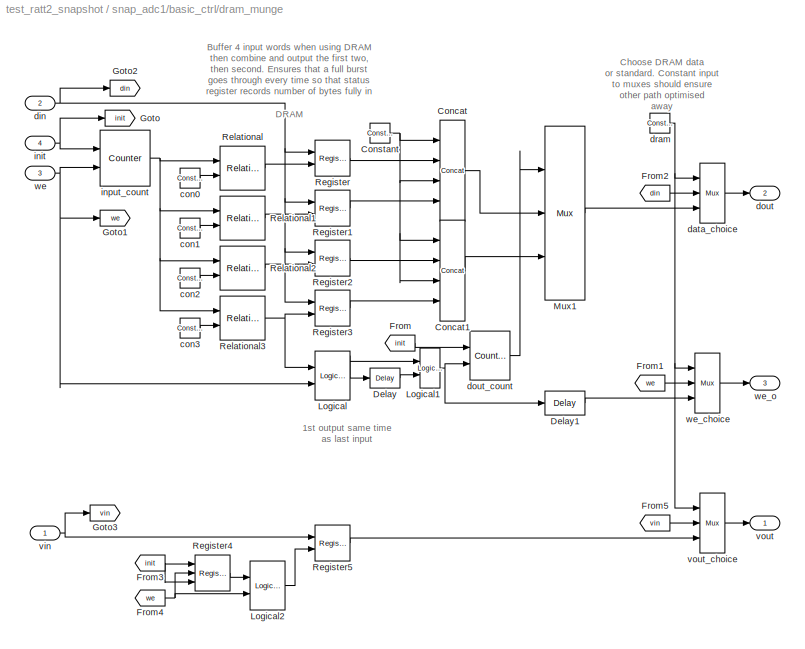
BLOCK [SubSystem] snap_adc1/basic_ctrl/dram_munge
  FunctionWithSeparateData = off
  MaskCallbackString = |
  MaskEnableString = on,on
  MaskHideContents = off
  MaskIconFrame = on
  MaskIconOpaque = on
  MaskIconRotate = none
  MaskIconUnits = autoscale
  MaskInitialization = set_param(gcb,'LinkStatus','inactive');\nif strcmp(dram,'on'),\n    set_param([gcb,'/dram'], 'const', '1');\nelse,\n    set_param([gcb,'/dram'], 'const', '0');\nend\nset_param([gcb,'/data_choice'], ...\n        'precision', 'User Defined', ...\n        'arith_type', 'Unsigned', ...\n        'n_bits', num2str(data_width), 'bin_pt', '0', ...\n        'quantization', 'Truncate', ...\n        'overflo...<+12ch>
  MaskPortRotate = default
  MaskPromptString = dram|data width
  MaskStyleString = checkbox,edit
  MaskToolTipString = on,on
  MaskTunableValueString = on,on
  MaskValueString = off|data_width
  MaskVariables = dram=&1;data_width=@2;
  MaskVisibilityString = on,on
  MinAlgLoopOccurrences = off
  Opaque = off
  Ports = [4, 3]
  PropExecContextOutsideSubsystem = off
  RTWSystemCode = Auto
  RequestExecContextInheritance = off
  SID = 157:198:404
BLOCK [Reference] snap_adc1/basic_ctrl/dram_munge/Concat  REF=xbsIndex_r4/Concat
  Ports = [4, 1]
  SID = 157:198:409
  SourceBlock = xbsIndex_r4/Concat
  SourceType = Xilinx Bus Concatenator Block
  block_type = concat
  block_version = 11.4
  dbl_ovrd = off
  has_advanced_control = 0
  infoedit = Concatenates two or more inputs.  Output will be cast to an unsigned value with the binary point at zero.
  num_inputs = 4
  sg_icon_stat = 25,101,4,1,white,blue,0,47d3d416,right,,[ ],[ ]
  sggui_pos = 21,71,348,216
BLOCK [Reference] snap_adc1/basic_ctrl/dram_munge/Concat1  REF=xbsIndex_r4/Concat
  Ports = [4, 1]
  SID = 157:198:410
  SourceBlock = xbsIndex_r4/Concat
  SourceType = Xilinx Bus Concatenator Block
  block_type = concat
  block_version = 11.4
  dbl_ovrd = off
  has_advanced_control = 0
  infoedit = Concatenates two or more inputs.  Output will be cast to an unsigned value with the binary point at zero.
  num_inputs = 4
  sg_icon_stat = 25,101,4,1,white,blue,0,47d3d416,right,,[ ],[ ]
  sggui_pos = 21,71,348,216
BLOCK [Reference] snap_adc1/basic_ctrl/dram_munge/Constant  REF=xbsIndex_r4/Constant
  Ports = [0, 1]
  SID = 157:198:411
  SourceBlock = xbsIndex_r4/Constant
  SourceType = Xilinx Constant Block Block
  arith_type = Unsigned
  bin_pt = 0
  block_type = constant
  block_version = 11.4
  carry = CIN
  const = 0
  dbl_ovrd = off
  dsp48_infoedit = The use of this block for DSP48 instructions is deprecated.  Please use the Opmode block.
  equ = P=C
  exp_width = 8
  explicit_period = on
  frac_width = 24
  gui_display_data_type = Fixed-point
  has_advanced_control = 0
  inp1 = P
  inp2 = PCIN>>17
  n_bits = 8
  opr = +
  opselect = C
  period = 1
  preci_type = Single
  sg_icon_stat = 20,20,0,1,white,blue,0,bf4ddd8b,right,,[ ],[ ]
  sggui_pos = -1,-1,-1,-1
BLOCK [Reference] snap_adc1/basic_ctrl/dram_munge/Delay  REF=xbsIndex_r4/Delay
  Ports = [1, 1]
  SID = 157:198:412
  SourceBlock = xbsIndex_r4/Delay
  SourceType = Xilinx Delay Block
  block_type = delay
  block_version = 11.4
  dbl_ovrd = off
  en = off
  has_advanced_control = 0
  infoedit = Hardware notes: A delay line is a chain, each link of which is an SRL16 followed by a flip-flop.
  infoeditControl = Selection of Reset will increase slice count due to use of real FFs and instead of SRLs
  latency = 1
  reg_retiming = off
  rst = off
  sg_icon_stat = 30,20,1,1,white,blue,0,07b98262,right,,[ ],[ ]
  sg_mask_display = fprintf('','COMMENT: begin icon graphics');\npatch([0 30 30 0 0 ],[0 0 20 20 0 ],[0.77 0.82 0.91 ]);\nplot([0 30 30 0 0 ],[0 0 20 20 0 ]);\npatch([10.55 13.44 15.44 17.44 19.44 15.44 12.55 10.55 ],[12.22 12.22 14.22 12.22 14.22 14.22 14.22 12.22 ],[1 1 1 ]);\npatch([12.55 15.44 13.44 10.55 12.55 ],[10.22 10.22 12.22 12.22 10.22 ],[0.931 0.946 0.973 ]);\npatch([10.55 13.44 15.44 12.55 10.55 ],[8.22...<+324ch>
  sggui_pos = -1,-1,-1,-1
  xl_area = [0,0,0,0,0,0,0]
  xl_use_area = off
BLOCK [Reference] snap_adc1/basic_ctrl/dram_munge/Delay1  REF=xbsIndex_r4/Delay
  Ports = [1, 1]
  SID = 157:198:413
  SourceBlock = xbsIndex_r4/Delay
  SourceType = Xilinx Delay Block
  block_type = delay
  block_version = 11.4
  dbl_ovrd = off
  en = off
  has_advanced_control = 0
  infoedit = Hardware notes: A delay line is a chain, each link of which is an SRL16 followed by a flip-flop.
  infoeditControl = Selection of Reset will increase slice count due to use of real FFs and instead of SRLs
  latency = 1
  reg_retiming = off
  rst = off
  sg_icon_stat = 40,24,1,1,white,blue,0,07b98262,right,,[ ],[ ]
  sg_mask_display = fprintf('','COMMENT: begin icon graphics');\npatch([0 40 40 0 0 ],[0 0 24 24 0 ],[0.77 0.82 0.91 ]);\nplot([0 40 40 0 0 ],[0 0 24 24 0 ]);\npatch([13.325 17.66 20.66 23.66 26.66 20.66 16.325 13.325 ],[15.33 15.33 18.33 15.33 18.33 18.33 18.33 15.33 ],[1 1 1 ]);\npatch([16.325 20.66 17.66 13.325 16.325 ],[12.33 12.33 15.33 15.33 12.33 ],[0.931 0.946 0.973 ]);\npatch([13.325 17.66 20.66 16.325 13.32...<+336ch>
  sggui_pos = -1,-1,-1,-1
  xl_area = [0,0,0,0,0,0,0]
  xl_use_area = off
BLOCK [From] snap_adc1/basic_ctrl/dram_munge/From
  CloseFcn = tagdialog Close
  GotoTag = init
  SID = 157:198:414
BLOCK [From] snap_adc1/basic_ctrl/dram_munge/From1
  CloseFcn = tagdialog Close
  GotoTag = we
  SID = 157:198:415
BLOCK [From] snap_adc1/basic_ctrl/dram_munge/From2
  CloseFcn = tagdialog Close
  GotoTag = din
  SID = 157:198:416
BLOCK [From] snap_adc1/basic_ctrl/dram_munge/From3
  CloseFcn = tagdialog Close
  GotoTag = init
  SID = 157:198:417
BLOCK [From] snap_adc1/basic_ctrl/dram_munge/From4
  CloseFcn = tagdialog Close
  GotoTag = we
  SID = 157:198:418
BLOCK [From] snap_adc1/basic_ctrl/dram_munge/From5
  CloseFcn = tagdialog Close
  GotoTag = vin
  SID = 157:198:419
BLOCK [Goto] snap_adc1/basic_ctrl/dram_munge/Goto
  GotoTag = init
  SID = 157:198:420
BLOCK [Goto] snap_adc1/basic_ctrl/dram_munge/Goto1
  GotoTag = we
  SID = 157:198:421
BLOCK [Goto] snap_adc1/basic_ctrl/dram_munge/Goto2
  GotoTag = din
  SID = 157:198:422
BLOCK [Goto] snap_adc1/basic_ctrl/dram_munge/Goto3
  GotoTag = vin
  SID = 157:198:423
BLOCK [Reference] snap_adc1/basic_ctrl/dram_munge/Logical  REF=xbsIndex_r4/Logical
  Ports = [2, 1]
  SID = 157:198:424
  SourceBlock = xbsIndex_r4/Logical
  SourceType = Xilinx Logical Block Block
  align_bp = on
  arith_type = Unsigned
  bin_pt = 0
  block_type = logical
  block_version = 11.4
  dbl_ovrd = off
  en = off
  has_advanced_control = 0
  inputs = 2
  latency = 1
  logical_function = AND
  n_bits = 16
  precision = Full
  sg_icon_stat = 35,49,2,1,white,blue,0,e7f9d02e,right,,[ ],[ ]
  sg_list_contents = {'table'=>{'logical_function'=>'popup(AND|NAND|OR|NOR|XOR|XNOR)','userSelections'=>{'logical_function'=>'AND'}}}
  sg_mask_display = fprintf('','COMMENT: begin icon graphics');\npatch([0 35 35 0 0 ],[0 0 49 49 0 ],[0.77 0.82 0.91 ]);\nplot([0 35 35 0 0 ],[0 0 49 49 0 ]);\npatch([5.875 13.1 18.1 23.1 28.1 18.1 10.875 5.875 ],[29.55 29.55 34.55 29.55 34.55 34.55 34.55 29.55 ],[1 1 1 ]);\npatch([10.875 18.1 13.1 5.875 10.875 ],[24.55 24.55 29.55 29.55 24.55 ],[0.931 0.946 0.973 ]);\npatch([5.875 13.1 18.1 10.875 5.875 ],[19.55 19....<+370ch>
  sggui_pos = 21,71,419,291
  xl_area = [0,0,0,0,0,0,0]
  xl_use_area = off
BLOCK [Reference] snap_adc1/basic_ctrl/dram_munge/Logical1  REF=xbsIndex_r4/Logical
  Ports = [2, 1]
  SID = 157:198:425
  SourceBlock = xbsIndex_r4/Logical
  SourceType = Xilinx Logical Block Block
  align_bp = on
  arith_type = Unsigned
  bin_pt = 0
  block_type = logical
  block_version = 11.4
  dbl_ovrd = off
  en = off
  has_advanced_control = 0
  inputs = 2
  latency = 0
  logical_function = OR
  n_bits = 16
  precision = Full
  sg_icon_stat = 20,40,2,1,white,blue,0,7ede7d88,right,,[ ],[ ]
  sg_list_contents = {'table'=>{'logical_function'=>'popup(AND|NAND|OR|NOR|XOR|XNOR)','userSelections'=>{'logical_function'=>'OR'}}}
  sg_mask_display = fprintf('','COMMENT: begin icon graphics');\npatch([0 20 20 0 0 ],[0 0 40 40 0 ],[0.77 0.82 0.91 ]);\nplot([0 20 20 0 0 ],[0 0 40 40 0 ]);\npatch([5.55 8.44 10.44 12.44 14.44 10.44 7.55 5.55 ],[22.22 22.22 24.22 22.22 24.22 24.22 24.22 22.22 ],[1 1 1 ]);\npatch([7.55 10.44 8.44 5.55 7.55 ],[20.22 20.22 22.22 22.22 20.22 ],[0.931 0.946 0.973 ]);\npatch([5.55 8.44 10.44 7.55 5.55 ],[18.22 18.22 20.2...<+299ch>
  sggui_pos = 21,71,419,291
  xl_area = [0,0,0,0,0,0,0]
  xl_use_area = off
BLOCK [Reference] snap_adc1/basic_ctrl/dram_munge/Logical2  REF=xbsIndex_r4/Logical
  Ports = [2, 1]
  SID = 157:198:426
  SourceBlock = xbsIndex_r4/Logical
  SourceType = Xilinx Logical Block Block
  align_bp = on
  arith_type = Unsigned
  bin_pt = 0
  block_type = logical
  block_version = 11.4
  dbl_ovrd = off
  en = off
  has_advanced_control = 0
  inputs = 2
  latency = 0
  logical_function = AND
  n_bits = 16
  precision = Full
  sg_icon_stat = 35,49,2,1,white,blue,0,83a4b621,right,,[ ],[ ]
  sg_list_contents = {'table'=>{'logical_function'=>'popup(AND|NAND|OR|NOR|XOR|XNOR)','userSelections'=>{'logical_function'=>'AND'}}}
  sg_mask_display = fprintf('','COMMENT: begin icon graphics');\npatch([0 35 35 0 0 ],[0 0 49 49 0 ],[0.77 0.82 0.91 ]);\nplot([0 35 35 0 0 ],[0 0 49 49 0 ]);\npatch([5.875 13.1 18.1 23.1 28.1 18.1 10.875 5.875 ],[29.55 29.55 34.55 29.55 34.55 34.55 34.55 29.55 ],[1 1 1 ]);\npatch([10.875 18.1 13.1 5.875 10.875 ],[24.55 24.55 29.55 29.55 24.55 ],[0.931 0.946 0.973 ]);\npatch([5.875 13.1 18.1 10.875 5.875 ],[19.55 19....<+309ch>
  sggui_pos = 22,98,419,291
  xl_area = [0,0,0,0,0,0,0]
  xl_use_area = off
BLOCK [Reference] snap_adc1/basic_ctrl/dram_munge/Mux1  REF=xbsIndex_r4/Mux
  Ports = [3, 1]
  SID = 157:198:427
  SourceBlock = xbsIndex_r4/Mux
  SourceType = Xilinx Bus Multiplexer Block
  arith_type = Unsigned
  bin_pt = 14
  block_type = mux
  block_version = 11.4
  dbl_ovrd = off
  en = off
  has_advanced_control = 0
  inputs = 2
  latency = 1
  n_bits = 16
  overflow = Wrap
  precision = Full
  quantization = Truncate
  sg_icon_stat = 40,174,3,1,white,blue,3,a150fb03,right,,[ ],[ ]
  sg_list_contents = {'table'=>{'inputs'=>'popup(2|3|4|5|6|7|8|9|10|11|12|13|14|15|16|17|18|19|20|21|22|23|24|25|26|27|28|29|30|31|32)','userSelections'=>{'inputs'=>'2'}}}
  sg_mask_display = fprintf('','COMMENT: begin icon graphics');\npatch([0 40 40 0 0 ],[0 24.8571 149.143 174 0 ],[0.77 0.82 0.91 ]);\nplot([0 40 40 0 0 ],[0 24.8571 149.143 174 0 ]);\npatch([8.875 16.1 21.1 26.1 31.1 21.1 13.875 8.875 ],[92.55 92.55 97.55 92.55 97.55 97.55 97.55 92.55 ],[1 1 1 ]);\npatch([13.875 21.1 16.1 8.875 13.875 ],[87.55 87.55 92.55 92.55 87.55 ],[0.931 0.946 0.973 ]);\npatch([8.875 16.1 21.1 1...<+490ch>
  sggui_pos = 23,125,419,344
  xl_area = [0,0,0,0,0,0,0]
  xl_use_area = off
BLOCK [Reference] snap_adc1/basic_ctrl/dram_munge/Register  REF=xbsIndex_r4/Register
  Ports = [2, 1]
  SID = 157:198:428
  SourceBlock = xbsIndex_r4/Register
  SourceType = Xilinx Register Block
  block_type = register
  block_version = 11.4
  dbl_ovrd = off
  en = on
  has_advanced_control = 0
  init = 0
  rst = off
  sg_icon_stat = 35,36,2,1,white,blue,0,6bd0930c,right,,[ ],[ ]
  sggui_pos = 21,71,419,209
  xl_area = [0,0,0,0,0,0,0]
  xl_use_area = off
BLOCK [Reference] snap_adc1/basic_ctrl/dram_munge/Register1  REF=xbsIndex_r4/Register
  Ports = [2, 1]
  SID = 157:198:429
  SourceBlock = xbsIndex_r4/Register
  SourceType = Xilinx Register Block
  block_type = register
  block_version = 11.4
  dbl_ovrd = off
  en = on
  has_advanced_control = 0
  init = 0
  rst = off
  sg_icon_stat = 35,36,2,1,white,blue,0,6bd0930c,right,,[ ],[ ]
  sggui_pos = 21,71,419,209
  xl_area = [0,0,0,0,0,0,0]
  xl_use_area = off
BLOCK [Reference] snap_adc1/basic_ctrl/dram_munge/Register2  REF=xbsIndex_r4/Register
  Ports = [2, 1]
  SID = 157:198:430
  SourceBlock = xbsIndex_r4/Register
  SourceType = Xilinx Register Block
  block_type = register
  block_version = 11.4
  dbl_ovrd = off
  en = on
  has_advanced_control = 0
  init = 0
  rst = off
  sg_icon_stat = 35,36,2,1,white,blue,0,6bd0930c,right,,[ ],[ ]
  sggui_pos = 21,71,419,209
  xl_area = [0,0,0,0,0,0,0]
  xl_use_area = off
BLOCK [Reference] snap_adc1/basic_ctrl/dram_munge/Register3  REF=xbsIndex_r4/Register
  Ports = [2, 1]
  SID = 157:198:431
  SourceBlock = xbsIndex_r4/Register
  SourceType = Xilinx Register Block
  block_type = register
  block_version = 11.4
  dbl_ovrd = off
  en = on
  has_advanced_control = 0
  init = 0
  rst = off
  sg_icon_stat = 35,36,2,1,white,blue,0,6bd0930c,right,,[ ],[ ]
  sggui_pos = 21,71,419,209
  xl_area = [0,0,0,0,0,0,0]
  xl_use_area = off
BLOCK [Reference] snap_adc1/basic_ctrl/dram_munge/Register4  REF=xbsIndex_r4/Register
  Ports = [3, 1]
  SID = 157:198:432
  SourceBlock = xbsIndex_r4/Register
  SourceType = Xilinx Register Block
  block_type = register
  block_version = 11.4
  dbl_ovrd = off
  en = on
  has_advanced_control = 0
  init = 0
  rst = on
  sg_icon_stat = 35,36,3,1,white,blue,0,30546de1,right,,[ ],[ ]
  sg_mask_display = fprintf('','COMMENT: begin icon graphics');\npatch([0 35 35 0 0 ],[0 0 36 36 0 ],[0.77 0.82 0.91 ]);\nplot([0 35 35 0 0 ],[0 0 36 36 0 ]);\npatch([5.875 13.1 18.1 23.1 28.1 18.1 10.875 5.875 ],[23.55 23.55 28.55 23.55 28.55 28.55 28.55 23.55 ],[1 1 1 ]);\npatch([10.875 18.1 13.1 5.875 10.875 ],[18.55 18.55 23.55 23.55 18.55 ],[0.931 0.946 0.973 ]);\npatch([5.875 13.1 18.1 10.875 5.875 ],[13.55 13....<+493ch>
  sggui_pos = 21,71,419,209
  xl_area = [0,0,0,0,0,0,0]
  xl_use_area = off
BLOCK [Reference] snap_adc1/basic_ctrl/dram_munge/Register5  REF=xbsIndex_r4/Register
  Ports = [2, 1]
  SID = 157:198:433
  SourceBlock = xbsIndex_r4/Register
  SourceType = Xilinx Register Block
  block_type = register
  block_version = 11.4
  dbl_ovrd = off
  en = on
  has_advanced_control = 0
  init = 0
  rst = off
  sg_icon_stat = 35,36,2,1,white,blue,0,6bd0930c,right,,[ ],[ ]
  sggui_pos = 22,98,419,209
  xl_area = [0,0,0,0,0,0,0]
  xl_use_area = off
BLOCK [Reference] snap_adc1/basic_ctrl/dram_munge/Relational  REF=xbsIndex_r4/Relational
  Ports = [2, 1]
  SID = 157:198:434
  SourceBlock = xbsIndex_r4/Relational
  SourceType = Xilinx Arithmetic Relational Operator Block
  block_type = relational
  block_version = 11.4
  dbl_ovrd = off
  en = off
  has_advanced_control = 0
  latency = 0
  mode = a=b
  sg_icon_stat = 45,44,2,1,white,blue,0,2a81ff49,right,,[ ],[ ]
  sg_list_contents = {'table'=>{'mode'=>'popup(a=b|a!=b|a<b|a>b|a<=b|a>=b)','userSelections'=>{'mode'=>'a=b'}}}
  sggui_pos = 21,71,419,209
  xl_area = [0,0,0,0,0,0,0]
  xl_use_area = off
BLOCK [Reference] snap_adc1/basic_ctrl/dram_munge/Relational1  REF=xbsIndex_r4/Relational
  Ports = [2, 1]
  SID = 157:198:435
  SourceBlock = xbsIndex_r4/Relational
  SourceType = Xilinx Arithmetic Relational Operator Block
  block_type = relational
  block_version = 11.4
  dbl_ovrd = off
  en = off
  has_advanced_control = 0
  latency = 0
  mode = a=b
  sg_icon_stat = 45,44,2,1,white,blue,0,2a81ff49,right,,[ ],[ ]
  sg_list_contents = {'table'=>{'mode'=>'popup(a=b|a!=b|a<b|a>b|a<=b|a>=b)','userSelections'=>{'mode'=>'a=b'}}}
  sggui_pos = 21,71,419,209
  xl_area = [0,0,0,0,0,0,0]
  xl_use_area = off
BLOCK [Reference] snap_adc1/basic_ctrl/dram_munge/Relational2  REF=xbsIndex_r4/Relational
  Ports = [2, 1]
  SID = 157:198:436
  SourceBlock = xbsIndex_r4/Relational
  SourceType = Xilinx Arithmetic Relational Operator Block
  block_type = relational
  block_version = 11.4
  dbl_ovrd = off
  en = off
  has_advanced_control = 0
  latency = 0
  mode = a=b
  sg_icon_stat = 45,44,2,1,white,blue,0,2a81ff49,right,,[ ],[ ]
  sg_list_contents = {'table'=>{'mode'=>'popup(a=b|a!=b|a<b|a>b|a<=b|a>=b)','userSelections'=>{'mode'=>'a=b'}}}
  sggui_pos = 21,71,419,209
  xl_area = [0,0,0,0,0,0,0]
  xl_use_area = off
BLOCK [Reference] snap_adc1/basic_ctrl/dram_munge/Relational3  REF=xbsIndex_r4/Relational
  Ports = [2, 1]
  SID = 157:198:437
  SourceBlock = xbsIndex_r4/Relational
  SourceType = Xilinx Arithmetic Relational Operator Block
  block_type = relational
  block_version = 11.4
  dbl_ovrd = off
  en = off
  has_advanced_control = 0
  latency = 0
  mode = a=b
  sg_icon_stat = 45,44,2,1,white,blue,0,2a81ff49,right,,[ ],[ ]
  sg_list_contents = {'table'=>{'mode'=>'popup(a=b|a!=b|a<b|a>b|a<=b|a>=b)','userSelections'=>{'mode'=>'a=b'}}}
  sggui_pos = 21,71,419,209
  xl_area = [0,0,0,0,0,0,0]
  xl_use_area = off
BLOCK [Reference] snap_adc1/basic_ctrl/dram_munge/con0  REF=xbsIndex_r4/Constant
  Ports = [0, 1]
  SID = 157:198:438
  SourceBlock = xbsIndex_r4/Constant
  SourceType = Xilinx Constant Block Block
  arith_type = Unsigned
  bin_pt = 0
  block_type = constant
  block_version = 11.4
  carry = CIN
  const = 0
  dbl_ovrd = off
  dsp48_infoedit = The use of this block for DSP48 instructions is deprecated.  Please use the Opmode block.
  equ = P=C
  exp_width = 8
  explicit_period = on
  frac_width = 24
  gui_display_data_type = Fixed-point
  has_advanced_control = 0
  inp1 = P
  inp2 = PCIN>>17
  n_bits = 2
  opr = +
  opselect = C
  period = 1
  preci_type = Single
  sg_icon_stat = 20,20,0,1,white,blue,0,bf4ddd8b,right,,[ ],[ ]
  sggui_pos = 22,98,474,439
BLOCK [Reference] snap_adc1/basic_ctrl/dram_munge/con1  REF=xbsIndex_r4/Constant
  Ports = [0, 1]
  SID = 157:198:439
  SourceBlock = xbsIndex_r4/Constant
  SourceType = Xilinx Constant Block Block
  arith_type = Unsigned
  bin_pt = 0
  block_type = constant
  block_version = 11.4
  carry = CIN
  const = 1
  dbl_ovrd = off
  dsp48_infoedit = The use of this block for DSP48 instructions is deprecated.  Please use the Opmode block.
  equ = P=C
  exp_width = 8
  explicit_period = on
  frac_width = 24
  gui_display_data_type = Fixed-point
  has_advanced_control = 0
  inp1 = P
  inp2 = PCIN>>17
  n_bits = 2
  opr = +
  opselect = C
  period = 1
  preci_type = Single
  sg_icon_stat = 20,20,0,1,white,blue,0,1c72b5be,right,,[ ],[ ]
  sggui_pos = 23,125,474,439
BLOCK [Reference] snap_adc1/basic_ctrl/dram_munge/con2  REF=xbsIndex_r4/Constant
  Ports = [0, 1]
  SID = 157:198:440
  SourceBlock = xbsIndex_r4/Constant
  SourceType = Xilinx Constant Block Block
  arith_type = Unsigned
  bin_pt = 0
  block_type = constant
  block_version = 11.4
  carry = CIN
  const = 2
  dbl_ovrd = off
  dsp48_infoedit = The use of this block for DSP48 instructions is deprecated.  Please use the Opmode block.
  equ = P=C
  exp_width = 8
  explicit_period = on
  frac_width = 24
  gui_display_data_type = Fixed-point
  has_advanced_control = 0
  inp1 = P
  inp2 = PCIN>>17
  n_bits = 2
  opr = +
  opselect = C
  period = 1
  preci_type = Single
  sg_icon_stat = 20,20,0,1,white,blue,0,fca86624,right,,[ ],[ ]
  sggui_pos = 24,152,474,439
BLOCK [Reference] snap_adc1/basic_ctrl/dram_munge/con3  REF=xbsIndex_r4/Constant
  Ports = [0, 1]
  SID = 157:198:441
  SourceBlock = xbsIndex_r4/Constant
  SourceType = Xilinx Constant Block Block
  arith_type = Unsigned
  bin_pt = 0
  block_type = constant
  block_version = 11.4
  carry = CIN
  const = 3
  dbl_ovrd = off
  dsp48_infoedit = The use of this block for DSP48 instructions is deprecated.  Please use the Opmode block.
  equ = P=C
  exp_width = 8
  explicit_period = on
  frac_width = 24
  gui_display_data_type = Fixed-point
  has_advanced_control = 0
  inp1 = P
  inp2 = PCIN>>17
  n_bits = 2
  opr = +
  opselect = C
  period = 1
  preci_type = Single
  sg_icon_stat = 20,20,0,1,white,blue,0,279a71c8,right,,[ ],[ ]
  sggui_pos = 25,179,474,439
BLOCK [Reference] snap_adc1/basic_ctrl/dram_munge/data_choice  REF=xbsIndex_r4/Mux
  Ports = [3, 1]
  SID = 157:198:442
  SourceBlock = xbsIndex_r4/Mux
  SourceType = Xilinx Bus Multiplexer Block
  arith_type = Unsigned
  bin_pt = 0
  block_type = mux
  block_version = 11.4
  dbl_ovrd = off
  en = off
  has_advanced_control = 0
  inputs = 2
  latency = 0
  n_bits = 128
  overflow = Wrap
  precision = User Defined
  quantization = Truncate
  sg_icon_stat = 25,60,3,1,white,blue,3,eb98d690,right,,[ ],[ ]
  sg_list_contents = {'table'=>{'inputs'=>'popup(2|3|4|5|6|7|8|9|10|11|12|13|14|15|16|17|18|19|20|21|22|23|24|25|26|27|28|29|30|31|32)','userSelections'=>{'inputs'=>'2'}}}
  sggui_pos = 26,206,419,344
  xl_area = [0,0,0,0,0,0,0]
  xl_use_area = off
BLOCK [Inport] snap_adc1/basic_ctrl/dram_munge/din
  IconDisplay = Port number
  Port = 2
  SID = 157:198:406
BLOCK [Outport] snap_adc1/basic_ctrl/dram_munge/dout
  IconDisplay = Port number
  Port = 2
  SID = 157:198:449
BLOCK [Reference] snap_adc1/basic_ctrl/dram_munge/dout_count  REF=xbsIndex_r4/Counter
  Ports = [2, 1]
  SID = 157:198:443
  SourceBlock = xbsIndex_r4/Counter
  SourceType = Xilinx Counter Block
  arith_type = Unsigned
  bin_pt = 0
  block_type = counter
  block_version = 11.4
  cnt_by_val = 1
  cnt_to = Inf
  cnt_type = Free Running
  dbl_ovrd = off
  en = on
  explicit_period = on
  has_advanced_control = 0
  implementation = Fabric
  infoedit = Hardware notes: Free running counters are the least expensive in hardware.  A count limited counter is implemented by combining a counter with a comparator.
  load_pin = off
  n_bits = 1
  operation = Up
  period = 1
  rst = on
  sg_icon_stat = 40,49,2,1,white,blue,0,ae3608d6,right,,[ ],[ ]
  sg_mask_display = fprintf('','COMMENT: begin icon graphics');\npatch([0 40 40 0 0 ],[0 0 49 49 0 ],[0.77 0.82 0.91 ]);\nplot([0 40 40 0 0 ],[0 0 49 49 0 ]);\npatch([8.875 16.1 21.1 26.1 31.1 21.1 13.875 8.875 ],[29.55 29.55 34.55 29.55 34.55 34.55 34.55 29.55 ],[1 1 1 ]);\npatch([13.875 21.1 16.1 8.875 13.875 ],[24.55 24.55 29.55 29.55 24.55 ],[0.931 0.946 0.973 ]);\npatch([8.875 16.1 21.1 13.875 8.875 ],[19.55 19....<+430ch>
  sggui_pos = 22,98,419,748
  start_count = 0
  use_behavioral_HDL = off
  xl_area = [0,0,0,0,0,0,0]
  xl_use_area = off
BLOCK [Reference] snap_adc1/basic_ctrl/dram_munge/dram  REF=xbsIndex_r4/Constant
  Ports = [0, 1]
  SID = 157:198:444
  SourceBlock = xbsIndex_r4/Constant
  SourceType = Xilinx Constant Block Block
  arith_type = Boolean
  bin_pt = 14
  block_type = constant
  block_version = 11.4
  carry = CIN
  const = 0
  dbl_ovrd = off
  dsp48_infoedit = The use of this block for DSP48 instructions is deprecated.  Please use the Opmode block.
  equ = P=C
  exp_width = 8
  explicit_period = on
  frac_width = 24
  gui_display_data_type = Fixed-point
  has_advanced_control = 0
  inp1 = P
  inp2 = PCIN>>17
  n_bits = 16
  opr = +
  opselect = C
  period = 1
  preci_type = Single
  sg_icon_stat = 20,20,0,1,white,blue,0,bf4ddd8b,right,,[ ],[ ]
  sggui_pos = 23,125,474,439
BLOCK [Inport] snap_adc1/basic_ctrl/dram_munge/init
  IconDisplay = Port number
  Port = 4
  SID = 157:198:408
BLOCK [Reference] snap_adc1/basic_ctrl/dram_munge/input_count  REF=xbsIndex_r4/Counter
  Ports = [2, 1]
  SID = 157:198:445
  SourceBlock = xbsIndex_r4/Counter
  SourceType = Xilinx Counter Block
  arith_type = Unsigned
  bin_pt = 0
  block_type = counter
  block_version = 11.4
  cnt_by_val = 1
  cnt_to = Inf
  cnt_type = Free Running
  dbl_ovrd = off
  en = on
  explicit_period = on
  has_advanced_control = 0
  implementation = Fabric
  infoedit = Hardware notes: Free running counters are the least expensive in hardware.  A count limited counter is implemented by combining a counter with a comparator.
  load_pin = off
  n_bits = 2
  operation = Up
  period = 1
  rst = on
  sg_icon_stat = 50,56,2,1,white,blue,0,ae3608d6,right,,[ ],[ ]
  sg_mask_display = fprintf('','COMMENT: begin icon graphics');\npatch([0 50 50 0 0 ],[0 0 56 56 0 ],[0.77 0.82 0.91 ]);\nplot([0 50 50 0 0 ],[0 0 56 56 0 ]);\npatch([9.425 19.54 26.54 33.54 40.54 26.54 16.425 9.425 ],[35.77 35.77 42.77 35.77 42.77 42.77 42.77 35.77 ],[1 1 1 ]);\npatch([16.425 26.54 19.54 9.425 16.425 ],[28.77 28.77 35.77 35.77 28.77 ],[0.931 0.946 0.973 ]);\npatch([9.425 19.54 26.54 16.425 9.425 ],[...<+441ch>
  sggui_pos = 22,98,419,748
  start_count = 0
  use_behavioral_HDL = off
  xl_area = [0,0,0,0,0,0,0]
  xl_use_area = off
BLOCK [Inport] snap_adc1/basic_ctrl/dram_munge/vin
  IconDisplay = Port number
  SID = 157:198:405
BLOCK [Outport] snap_adc1/basic_ctrl/dram_munge/vout
  IconDisplay = Port number
  SID = 157:198:448
BLOCK [Reference] snap_adc1/basic_ctrl/dram_munge/vout_choice  REF=xbsIndex_r4/Mux
  Ports = [3, 1]
  SID = 157:198:446
  SourceBlock = xbsIndex_r4/Mux
  SourceType = Xilinx Bus Multiplexer Block
  arith_type = Unsigned
  bin_pt = 14
  block_type = mux
  block_version = 11.4
  dbl_ovrd = off
  en = off
  has_advanced_control = 0
  inputs = 2
  latency = 0
  n_bits = 16
  overflow = Wrap
  precision = Full
  quantization = Truncate
  sg_icon_stat = 25,60,3,1,white,blue,3,eb98d690,right,,[ ],[ ]
  sggui_pos = -1,-1,-1,-1
  xl_area = [0,0,0,0,0,0,0]
  xl_use_area = off
BLOCK [Inport] snap_adc1/basic_ctrl/dram_munge/we
  IconDisplay = Port number
  Port = 3
  SID = 157:198:407
BLOCK [Reference] snap_adc1/basic_ctrl/dram_munge/we_choice  REF=xbsIndex_r4/Mux
  Ports = [3, 1]
  SID = 157:198:447
  SourceBlock = xbsIndex_r4/Mux
  SourceType = Xilinx Bus Multiplexer Block
  arith_type = Unsigned
  bin_pt = 14
  block_type = mux
  block_version = 11.4
  dbl_ovrd = off
  en = off
  has_advanced_control = 0
  inputs = 2
  latency = 0
  n_bits = 16
  overflow = Wrap
  precision = Full
  quantization = Truncate
  sg_icon_stat = 25,60,3,1,white,blue,3,eb98d690,right,,[ ],[ ]
  sggui_pos = -1,-1,-1,-1
  xl_area = [0,0,0,0,0,0,0]
  xl_use_area = off
BLOCK [Outport] snap_adc1/basic_ctrl/dram_munge/we_o
  IconDisplay = Port number
  Port = 3
  SID = 157:198:450
BLOCK [Reference] snap_adc1/basic_ctrl/edge_detect  REF=casper_library_misc/edge_detect  (lib defined in mdl_357510c33b49, mdl_57b5f564ae26, +4 more)
  AttributesFormatString = rising edges\nactive high
  Ports = [1, 1]
  SID = 157:198:454
  SourceBlock = casper_library_misc/edge_detect
  SourceType = edge_detect
  UserData = DataTag22
  UserDataPersistent = on
  edge = Rising
  polarity = Active High
  x_in = [0 0.08 0.08 0.16 0.16 0.24 0.24 0.32 0.32 0.4]
  x_out = [0.6 0.68 0.68 0.76 0.76 0.84 0.84 0.92 0.92 1]
  y_in = [-1 -1  1  1  1  1  1  1  1  1]
  y_out = [-1 -1  1  1 -1 -1 -1 -1 -1 -1]
BLOCK [Reference] snap_adc1/basic_ctrl/enable  REF=xbsIndex_r4/Slice
  Ports = [1, 1]
  SID = 157:198:455
  SourceBlock = xbsIndex_r4/Slice
  SourceType = Xilinx Bit Slice Extractor Block
  base0 = LSB of Input
  base1 = LSB of Input
  bit0 = 0
  bit1 = 0
  block_type = slice
  block_version = 10.1.3
  boolean_output = on
  dbl_ovrd = off
  has_advanced_control = 0
  mode = Lower Bit Location + Width
  nbits = 1
  sg_icon_stat = 25,18,1,1,white,blue,0,1fd851a7,right,,[ ],[ ]
  sg_mask_display = fprintf('','COMMENT: begin icon graphics');\npatch([0 25 25 0 0 ],[0 0 18 18 0 ],[0.77 0.82 0.91 ]);\nplot([0 25 25 0 0 ],[0 0 18 18 0 ]);\npatch([7.55 10.44 12.44 14.44 16.44 12.44 9.55 7.55 ],[11.22 11.22 13.22 11.22 13.22 13.22 13.22 11.22 ],[1 1 1 ]);\npatch([9.55 12.44 10.44 7.55 9.55 ],[9.22 9.22 11.22 11.22 9.22 ],[0.931 0.946 0.973 ]);\npatch([7.55 10.44 12.44 9.55 7.55 ],[7.22 7.22 9.22 9...<+306ch>
  sggui_pos = 22,98,540,482
BLOCK [Outport] snap_adc1/basic_ctrl/go
  IconDisplay = Port number
  Port = 4
  SID = 157:198:461
BLOCK [Outport] snap_adc1/basic_ctrl/init
  IconDisplay = Port number
  Port = 6
  SID = 157:198:463
BLOCK [Outport] snap_adc1/basic_ctrl/stop
  IconDisplay = Port number
  Port = 5
  SID = 157:198:462
BLOCK [Inport] snap_adc1/basic_ctrl/stopi
  IconDisplay = Port number
  Port = 6
  SID = 157:198:391
BLOCK [Inport] snap_adc1/basic_ctrl/trig
  IconDisplay = Port number
  Port = 4
  SID = 157:198:389
BLOCK [Reference] snap_adc1/basic_ctrl/trig_src  REF=xbsIndex_r4/Slice
  Ports = [1, 1]
  SID = 157:198:456
  SourceBlock = xbsIndex_r4/Slice
  SourceType = Xilinx Bit Slice Extractor Block
  base0 = LSB of Input
  base1 = LSB of Input
  bit0 = 1
  bit1 = 0
  block_type = slice
  block_version = 10.1.3
  boolean_output = on
  dbl_ovrd = off
  has_advanced_control = 0
  mode = Lower Bit Location + Width
  nbits = 1
  sg_icon_stat = 25,20,1,1,white,blue,0,1fd851a7,right,,[ ],[ ]
  sggui_pos = 23,125,540,482
BLOCK [Reference] snap_adc1/basic_ctrl/valid_src  REF=xbsIndex_r4/Slice
  Ports = [1, 1]
  SID = 157:198:457
  SourceBlock = xbsIndex_r4/Slice
  SourceType = Xilinx Bit Slice Extractor Block
  base0 = LSB of Input
  base1 = LSB of Input
  bit0 = 2
  bit1 = 0
  block_type = slice
  block_version = 10.1.3
  boolean_output = on
  dbl_ovrd = off
  has_advanced_control = 0
  mode = Lower Bit Location + Width
  nbits = 1
  sg_icon_stat = 25,22,1,1,white,blue,0,1fd851a7,right,,[ ],[ ]
  sggui_pos = 499,248,540,482
BLOCK [Inport] snap_adc1/basic_ctrl/vin
  IconDisplay = Port number
  SID = 157:198:386
BLOCK [Outport] snap_adc1/basic_ctrl/vout
  IconDisplay = Port number
  SID = 157:198:458
BLOCK [Inport] snap_adc1/basic_ctrl/we
  IconDisplay = Port number
  Port = 3
  SID = 157:198:388
BLOCK [Outport] snap_adc1/basic_ctrl/we_o
  IconDisplay = Port number
  Port = 3
  SID = 157:198:460
BLOCK [SubSystem] snap_adc1/bram
  AncestorBlock = xps_library/Shared BRAM
  FunctionWithSeparateData = off
  MaskCallbackString = |||||
  MaskEnableString = on,on,on,on,on,on
  MaskHideContents = off
  MaskIconFrame = on
  MaskIconOpaque = on
  MaskIconRotate = none
  MaskIconUnits = pixels
  MaskInitialization = shared_bram_mask;
  MaskPortRotate = default
  MaskPromptString = Output Data Type|Address width|Data Width|Data Binary Point|Initial 32-bit values (simulation only)|Sample rate
  MaskSelfModifiable = on
  MaskStyleString = popup(Unsigned|Signed  (2's comp)),edit,popup(8|16|32|64|128),edit,edit,edit
  MaskToolTipString = on,on,on,on,on,on
  MaskTunableValueString = on,on,on,on,on,on
  MaskValueString = Unsigned|12|128|0|[0:2^10-1]|1
  MaskVariables = arith_type=&1;addr_width=@2;data_width=@3;data_bin_pt=@4;init_vals=@5;sample_rate=@6;
  MaskVisibilityString = on,on,on,on,on,on
  MinAlgLoopOccurrences = off
  Opaque = off
  Ports = [3, 1]
  PropExecContextOutsideSubsystem = off
  RTWSystemCode = Auto
  RequestExecContextInheritance = off
  SID = 157:206
  Tag = xps:bram
BLOCK [Inport] snap_adc1/bram/addr
  IconDisplay = Port number
  SID = 157:206:1
BLOCK [SubSystem] snap_adc1/bram/calc_add
  FunctionWithSeparateData = off
  MaskHideContents = off
  MinAlgLoopOccurrences = off
  Opaque = off
  Ports = [1, 1]
  PropExecContextOutsideSubsystem = off
  RTWSystemCode = Auto
  RequestExecContextInheritance = off
  SID = 157:206:4
BLOCK [Reference] snap_adc1/bram/calc_add/add_sub  REF=xbsIndex_r4/AddSub
  Ports = [2, 1]
  SID = 157:206:6
  SourceBlock = xbsIndex_r4/AddSub
  SourceType = Xilinx Adder/Subtracter Block
  arith_type = Unsigned
  bin_pt = 0
  block_type = addsub
  block_version = 11.4
  dbl_ovrd = off
  en = off
  has_advanced_control = 0
  hw_selection = Fabric
  latency = 0
  mode = Subtraction
  n_bits = max(1, log2(32/data_width))
  overflow = Wrap
  pipelined = off
  precision = User Defined
  quantization = Truncate
  sg_icon_stat = 35,78,2,1,white,blue,0,32e1f85f,right,,[ ],[ ]
  sggui_pos = 24,152,419,344
  use_behavioral_HDL = on
  use_carryin = off
  use_carryout = off
  xl_area = [0,0,0,0,0,0,0]
  xl_use_area = off
BLOCK [Reference] snap_adc1/bram/calc_add/concat  REF=xbsIndex_r4/Concat
  Ports = [2, 1]
  SID = 157:206:7
  SourceBlock = xbsIndex_r4/Concat
  SourceType = Xilinx Bus Concatenator Block
  block_type = concat
  block_version = 11.4
  dbl_ovrd = off
  has_advanced_control = 0
  infoedit = Concatenates two or more inputs.  Output will be cast to an unsigned value with the binary point at zero.
  num_inputs = 2
  sg_icon_stat = 20,120,2,1,white,blue,0,16398980,right,,[ ],[ ]
  sggui_pos = -1,-1,-1,-1
BLOCK [Reference] snap_adc1/bram/calc_add/const  REF=xbsIndex_r4/Constant
  Ports = [0, 1]
  SID = 157:206:8
  SourceBlock = xbsIndex_r4/Constant
  SourceType = Xilinx Constant Block Block
  arith_type = Unsigned
  bin_pt = 0
  block_type = constant
  block_version = 11.4
  carry = CIN
  const = max(0, 32/data_width-1)
  dbl_ovrd = off
  dsp48_infoedit = The use of this block for DSP48 instructions is deprecated.  Please use the Opmode block.
  equ = P=C
  exp_width = 8
  explicit_period = on
  frac_width = 24
  gui_display_data_type = Fixed-point
  has_advanced_control = 0
  inp1 = P
  inp2 = PCIN>>17
  n_bits = max(1, log2(32/data_width))
  opr = +
  opselect = C
  period = sample_rate
  preci_type = Single
  sg_icon_stat = 20,18,0,1,white,blue,0,bf4ddd8b,right,,[ ],[ ]
  sggui_pos = 536,513,474,439
BLOCK [Reference] snap_adc1/bram/calc_add/convert_addr  REF=xbsIndex_r4/Convert
  Ports = [1, 1]
  SID = 157:206:9
  SourceBlock = xbsIndex_r4/Convert
  SourceType = Xilinx Type Converter Block
  arith_type = Unsigned
  bin_pt = 0
  block_type = convert
  block_version = 9.1.01
  dbl_ovrd = off
  en = off
  exp_bits = 8
  float_type = Single
  fraction_bits = 24
  gui_display_data_type = Fixed-point
  has_advanced_control = 0
  infoedit = Hardware notes: rounding and saturating require hardware resources; truncating and wrapping do not.
  latency = 0
  n_bits = addr_width
  overflow = Wrap
  pipeline = off
  quantization = Truncate
  sg_icon_stat = 35,24,1,1,white,blue,0,edca21da,right,,[ ],[ ]
  sggui_pos = 21,51,636,521
  xl_area = [0, 0, 0, 0, 0, 0, 0]
  xl_use_area = off
BLOCK [Inport] snap_adc1/bram/calc_add/in
  IconDisplay = Port number
  SID = 157:206:5
BLOCK [Reference] snap_adc1/bram/calc_add/lsw  REF=xbsIndex_r4/Slice
  Ports = [1, 1]
  SID = 157:206:10
  SourceBlock = xbsIndex_r4/Slice
  SourceType = Xilinx Bit Slice Extractor Block
  base0 = LSB of Input
  base1 = MSB of Input
  bit0 = 0
  bit1 = 0
  block_type = slice
  block_version = 11.4
  boolean_output = off
  dbl_ovrd = off
  has_advanced_control = 0
  mode = Lower Bit Location + Width
  nbits = max(1, log2(32/data_width))
  sg_icon_stat = 30,22,1,1,white,blue,0,1fd851a7,right,,[ ],[ ]
  sggui_pos = 1059,231,540,482
BLOCK [Reference] snap_adc1/bram/calc_add/manipulate  REF=xbsIndex_r4/Constant
  Ports = [0, 1]
  SID = 157:206:11
  SourceBlock = xbsIndex_r4/Constant
  SourceType = Xilinx Constant Block Block
  arith_type = Unsigned
  bin_pt = 0
  block_type = constant
  block_version = 11.4
  carry = CIN
  const = min(1, floor(32/data_width) - 1)
  dbl_ovrd = off
  dsp48_infoedit = The use of this block for DSP48 instructions is deprecated.  Please use the Opmode block.
  equ = P=C
  exp_width = 8
  explicit_period = on
  frac_width = 24
  gui_display_data_type = Fixed-point
  has_advanced_control = 0
  inp1 = P
  inp2 = PCIN>>17
  n_bits = 1
  opr = +
  opselect = C
  period = sample_rate
  preci_type = Single
  sg_icon_stat = 20,18,0,1,white,blue,0,bf4ddd8b,right,,[ ],[ ]
  sggui_pos = 525,644,474,439
BLOCK [Reference] snap_adc1/bram/calc_add/msw  REF=xbsIndex_r4/Slice
  Ports = [1, 1]
  SID = 157:206:12
  SourceBlock = xbsIndex_r4/Slice
  SourceType = Xilinx Bit Slice Extractor Block
  base0 = LSB of Input
  base1 = MSB of Input
  bit0 = 0
  bit1 = 0
  block_type = slice
  block_version = 11.4
  boolean_output = off
  dbl_ovrd = off
  has_advanced_control = 0
  mode = Upper Bit Location + Width
  nbits = addr_width - max(1, log2(32/data_width))
  sg_icon_stat = 30,22,1,1,white,blue,0,1fd851a7,right,,[ ],[ ]
  sggui_pos = 956,177,540,482
BLOCK [Reference] snap_adc1/bram/calc_add/mux  REF=xbsIndex_r4/Mux
  Ports = [3, 1]
  SID = 157:206:13
  SourceBlock = xbsIndex_r4/Mux
  SourceType = Xilinx Bus Multiplexer Block
  arith_type = Unsigned
  bin_pt = 14
  block_type = mux
  block_version = 11.4
  dbl_ovrd = off
  en = off
  has_advanced_control = 0
  inputs = 2
  latency = 0
  n_bits = 16
  overflow = Wrap
  precision = Full
  quantization = Truncate
  sg_icon_stat = 25,198,3,1,white,blue,3,eb98d690,right,,[ ],[ ]
  sggui_pos = -1,-1,-1,-1
  xl_area = [0,0,0,0,0,0,0]
  xl_use_area = off
BLOCK [Outport] snap_adc1/bram/calc_add/out
  IconDisplay = Port number
  SID = 157:206:14
BLOCK [Reference] snap_adc1/bram/convert_addr  REF=xbsIndex_r4/Convert
  Ports = [1, 1]
  SID = 157:206:15
  SourceBlock = xbsIndex_r4/Convert
  SourceType = Xilinx Type Converter Block
  arith_type = Unsigned
  bin_pt = 0
  block_type = convert
  block_version = 9.1.01
  dbl_ovrd = off
  en = off
  exp_bits = 8
  float_type = Single
  fraction_bits = 24
  gui_display_data_type = Fixed-point
  has_advanced_control = 0
  infoedit = Hardware notes: rounding and saturating require hardware resources; truncating and wrapping do not.
  latency = 0
  n_bits = addr_width
  overflow = Wrap
  pipeline = off
  quantization = Truncate
  sg_icon_stat = 35,24,1,1,white,blue,0,edca21da,right,,[ ],[ ]
  sggui_pos = 22,78,636,521
  xl_area = [0, 0, 0, 0, 0, 0, 0]
  xl_use_area = off
BLOCK [Reference] snap_adc1/bram/convert_din  REF=xbsIndex_r4/Convert
  Ports = [1, 1]
  SID = 157:206:16
  SourceBlock = xbsIndex_r4/Convert
  SourceType = Xilinx Type Converter Block
  arith_type = Unsigned
  bin_pt = data_bin_pt
  block_type = convert
  block_version = 9.1.01
  dbl_ovrd = off
  en = off
  exp_bits = 8
  float_type = Single
  fraction_bits = 24
  gui_display_data_type = Fixed-point
  has_advanced_control = 0
  infoedit = Hardware notes: rounding and saturating require hardware resources; truncating and wrapping do not.
  latency = 0
  n_bits = data_width
  overflow = Wrap
  pipeline = off
  quantization = Truncate
  sg_icon_stat = 35,24,1,1,white,blue,0,edca21da,right,,[ ],[ ]
  sggui_pos = 26,186,636,521
  xl_area = [0, 0, 0, 0, 0, 0, 0]
  xl_use_area = off
BLOCK [Reference] snap_adc1/bram/convert_din1  REF=xbsIndex_r4/Convert
  Ports = [1, 1]
  SID = 157:206:17
  SourceBlock = xbsIndex_r4/Convert
  SourceType = Xilinx Type Converter Block
  arith_type = Unsigned
  bin_pt = data_bin_pt
  block_type = convert
  block_version = 9.1.01
  dbl_ovrd = off
  en = off
  exp_bits = 8
  float_type = Single
  fraction_bits = 24
  gui_display_data_type = Fixed-point
  has_advanced_control = 0
  infoedit = Hardware notes: rounding and saturating require hardware resources; truncating and wrapping do not.
  latency = 0
  n_bits = data_width
  overflow = Wrap
  pipeline = off
  quantization = Truncate
  sg_icon_stat = 35,24,1,1,white,blue,0,edca21da,right,,[ ],[ ]
  sggui_pos = 26,186,636,521
  xl_area = [0, 0, 0, 0, 0, 0, 0]
  xl_use_area = off
BLOCK [Reference] snap_adc1/bram/convert_we  REF=xbsIndex_r4/Convert
  Ports = [1, 1]
  SID = 157:206:18
  SourceBlock = xbsIndex_r4/Convert
  SourceType = Xilinx Type Converter Block
  arith_type = Unsigned
  bin_pt = 0
  block_type = convert
  block_version = 9.1.01
  dbl_ovrd = off
  en = off
  exp_bits = 8
  float_type = Single
  fraction_bits = 24
  gui_display_data_type = Fixed-point
  has_advanced_control = 0
  infoedit = Hardware notes: rounding and saturating require hardware resources; truncating and wrapping do not.
  latency = 0
  n_bits = 1
  overflow = Wrap
  pipeline = off
  quantization = Truncate
  sg_icon_stat = 35,24,1,1,white,blue,0,edca21da,right,,[ ],[ ]
  sggui_pos = 21,51,636,521
  xl_area = [0, 0, 0, 0, 0, 0, 0]
  xl_use_area = off
BLOCK [Inport] snap_adc1/bram/data_in
  IconDisplay = Port number
  Port = 2
  SID = 157:206:2
BLOCK [Outport] snap_adc1/bram/data_out
  IconDisplay = Port number
  SID = 157:206:55
BLOCK [SubSystem] snap_adc1/bram/mem
  FunctionWithSeparateData = off
  MaskHideContents = off
  MinAlgLoopOccurrences = off
  Opaque = off
  Ports = [3, 1]
  PropExecContextOutsideSubsystem = off
  RTWSystemCode = Auto
  RequestExecContextInheritance = off
  SID = 157:206:21
BLOCK [Reference] snap_adc1/bram/mem/Disregard Subsystem  REF=xbsIndex_r4/Disregard Subsystem
  AttributesFormatString = Disregard Subsystem\\nFor Generation
  Ports = []
  SID = 157:206:23
  SourceBlock = xbsIndex_r4/Disregard Subsystem
  SourceType = Xilinx Disregard Subsystem For Generation Block
  Tag = discardX
  block_type = disregard
  block_version = 9.1.01
  has_advanced_control = 0
  infoedit = Place this block into a subsystem to have System Generator ignore the subsystem during code generation. This block can be used in combination with the Simulation Multiplexer block to provide an alternative simulation model for another subsystem (e.g., to provide a simulation model for a black box).
  sg_icon_stat = 51,50,-1,-1,darkgray,black,0,0,right,
  sg_mask_display = fprintf('','COMMENT: begin icon graphics');\npatch([0 51 51 0 ],[0 0 50 50 ],[0.1 0.1 0.1]);\npatch([12 4 16 4 12 25 29 33 47 36 25 17 29 17 25 36 47 33 29 25 12 ],[5 13 25 37 45 45 41 45 45 34 45 37 25 13 5 16 5 5 9 5 5 ],[0.33 0.33 0.33]);\nplot([0 0 51 51 0 ],[0 50 50 0 0 ]);\nfprintf('','COMMENT: end icon graphics');\nfprintf('','COMMENT: begin icon text');\nfprintf('','COMMENT: end icon text'...<+4ch>
  sggui_pos = -1,-1,-1,-1
BLOCK [Inport] snap_adc1/bram/mem/In1
  IconDisplay = Port number
  SID = 157:206:22
BLOCK [Inport] snap_adc1/bram/mem/In2
  IconDisplay = Port number
  Port = 2
  SID = 157:206:23
BLOCK [Inport] snap_adc1/bram/mem/In3
  IconDisplay = Port number
  Port = 3
  SID = 157:206:24
BLOCK [Outport] snap_adc1/bram/mem/Out1
  IconDisplay = Port number
  SID = 157:206:46
BLOCK [SubSystem] snap_adc1/bram/mem/calc_add
  FunctionWithSeparateData = off
  MaskHideContents = off
  MinAlgLoopOccurrences = off
  Opaque = off
  Ports = [1, 1]
  PropExecContextOutsideSubsystem = off
  RTWSystemCode = Auto
  RequestExecContextInheritance = off
  SID = 157:206:26
BLOCK [Reference] snap_adc1/bram/mem/calc_add/add_sub  REF=xbsIndex_r4/AddSub
  Ports = [2, 1]
  SID = 157:206:26
  SourceBlock = xbsIndex_r4/AddSub
  SourceType = Xilinx Adder/Subtracter Block
  arith_type = Unsigned
  bin_pt = 0
  block_type = addsub
  block_version = 11.4
  dbl_ovrd = off
  en = off
  has_advanced_control = 0
  hw_selection = Fabric
  latency = 0
  mode = Subtraction
  n_bits = max(1, log2(32/data_width))
  overflow = Wrap
  pipelined = off
  precision = User Defined
  quantization = Truncate
  sg_icon_stat = 35,78,2,1,white,blue,0,32e1f85f,right,,[ ],[ ]
  sggui_pos = 24,152,419,344
  use_behavioral_HDL = on
  use_carryin = off
  use_carryout = off
  xl_area = [0,0,0,0,0,0,0]
  xl_use_area = off
BLOCK [Reference] snap_adc1/bram/mem/calc_add/concat  REF=xbsIndex_r4/Concat
  Ports = [2, 1]
  SID = 157:206:27
  SourceBlock = xbsIndex_r4/Concat
  SourceType = Xilinx Bus Concatenator Block
  block_type = concat
  block_version = 11.4
  dbl_ovrd = off
  has_advanced_control = 0
  infoedit = Concatenates two or more inputs.  Output will be cast to an unsigned value with the binary point at zero.
  num_inputs = 2
  sg_icon_stat = 20,120,2,1,white,blue,0,16398980,right,,[ ],[ ]
  sggui_pos = -1,-1,-1,-1
BLOCK [Reference] snap_adc1/bram/mem/calc_add/const  REF=xbsIndex_r4/Constant
  Ports = [0, 1]
  SID = 157:206:28
  SourceBlock = xbsIndex_r4/Constant
  SourceType = Xilinx Constant Block Block
  arith_type = Unsigned
  bin_pt = 0
  block_type = constant
  block_version = 11.4
  carry = CIN
  const = max(0, 32/data_width-1)
  dbl_ovrd = off
  dsp48_infoedit = The use of this block for DSP48 instructions is deprecated.  Please use the Opmode block.
  equ = P=C
  exp_width = 8
  explicit_period = on
  frac_width = 24
  gui_display_data_type = Fixed-point
  has_advanced_control = 0
  inp1 = P
  inp2 = PCIN>>17
  n_bits = max(1, log2(32/data_width))
  opr = +
  opselect = C
  period = sample_rate
  preci_type = Single
  sg_icon_stat = 20,18,0,1,white,blue,0,bf4ddd8b,right,,[ ],[ ]
  sggui_pos = 537,540,474,439
BLOCK [Reference] snap_adc1/bram/mem/calc_add/convert_addr  REF=xbsIndex_r4/Convert
  Ports = [1, 1]
  SID = 157:206:29
  SourceBlock = xbsIndex_r4/Convert
  SourceType = Xilinx Type Converter Block
  arith_type = Unsigned
  bin_pt = 0
  block_type = convert
  block_version = 9.1.01
  dbl_ovrd = off
  en = off
  exp_bits = 8
  float_type = Single
  fraction_bits = 24
  gui_display_data_type = Fixed-point
  has_advanced_control = 0
  infoedit = Hardware notes: rounding and saturating require hardware resources; truncating and wrapping do not.
  latency = 0
  n_bits = addr_width
  overflow = Wrap
  pipeline = off
  quantization = Truncate
  sg_icon_stat = 35,24,1,1,white,blue,0,edca21da,right,,[ ],[ ]
  sggui_pos = 21,51,636,521
  xl_area = [0, 0, 0, 0, 0, 0, 0]
  xl_use_area = off
BLOCK [Inport] snap_adc1/bram/mem/calc_add/in
  IconDisplay = Port number
  SID = 157:206:27
BLOCK [Reference] snap_adc1/bram/mem/calc_add/lsw  REF=xbsIndex_r4/Slice
  Ports = [1, 1]
  SID = 157:206:30
  SourceBlock = xbsIndex_r4/Slice
  SourceType = Xilinx Bit Slice Extractor Block
  base0 = LSB of Input
  base1 = MSB of Input
  bit0 = 0
  bit1 = 0
  block_type = slice
  block_version = 11.4
  boolean_output = off
  dbl_ovrd = off
  has_advanced_control = 0
  mode = Lower Bit Location + Width
  nbits = max(1, log2(32/data_width))
  sg_icon_stat = 30,22,1,1,white,blue,0,1fd851a7,right,,[ ],[ ]
  sggui_pos = 1059,231,540,482
BLOCK [Reference] snap_adc1/bram/mem/calc_add/manipulate  REF=xbsIndex_r4/Constant
  Ports = [0, 1]
  SID = 157:206:31
  SourceBlock = xbsIndex_r4/Constant
  SourceType = Xilinx Constant Block Block
  arith_type = Unsigned
  bin_pt = 0
  block_type = constant
  block_version = 11.4
  carry = CIN
  const = min(1, floor(32/data_width) - 1)
  dbl_ovrd = off
  dsp48_infoedit = The use of this block for DSP48 instructions is deprecated.  Please use the Opmode block.
  equ = P=C
  exp_width = 8
  explicit_period = on
  frac_width = 24
  gui_display_data_type = Fixed-point
  has_advanced_control = 0
  inp1 = P
  inp2 = PCIN>>17
  n_bits = 1
  opr = +
  opselect = C
  period = sample_rate
  preci_type = Single
  sg_icon_stat = 20,18,0,1,white,blue,0,bf4ddd8b,right,,[ ],[ ]
  sggui_pos = 524,617,474,439
BLOCK [Reference] snap_adc1/bram/mem/calc_add/msw  REF=xbsIndex_r4/Slice
  Ports = [1, 1]
  SID = 157:206:32
  SourceBlock = xbsIndex_r4/Slice
  SourceType = Xilinx Bit Slice Extractor Block
  base0 = LSB of Input
  base1 = MSB of Input
  bit0 = 0
  bit1 = 0
  block_type = slice
  block_version = 11.4
  boolean_output = off
  dbl_ovrd = off
  has_advanced_control = 0
  mode = Upper Bit Location + Width
  nbits = addr_width - max(1, log2(32/data_width))
  sg_icon_stat = 30,22,1,1,white,blue,0,1fd851a7,right,,[ ],[ ]
  sggui_pos = 956,177,540,482
BLOCK [Reference] snap_adc1/bram/mem/calc_add/mux  REF=xbsIndex_r4/Mux
  Ports = [3, 1]
  SID = 157:206:33
  SourceBlock = xbsIndex_r4/Mux
  SourceType = Xilinx Bus Multiplexer Block
  arith_type = Unsigned
  bin_pt = 14
  block_type = mux
  block_version = 11.4
  dbl_ovrd = off
  en = off
  has_advanced_control = 0
  inputs = 2
  latency = 0
  n_bits = 16
  overflow = Wrap
  precision = Full
  quantization = Truncate
  sg_icon_stat = 25,198,3,1,white,blue,3,eb98d690,right,,[ ],[ ]
  sggui_pos = -1,-1,-1,-1
  xl_area = [0,0,0,0,0,0,0]
  xl_use_area = off
BLOCK [Outport] snap_adc1/bram/mem/calc_add/out
  IconDisplay = Port number
  SID = 157:206:36
BLOCK [Reference] snap_adc1/bram/mem/ram  REF=xbsIndex_r4/Single Port RAM
  Ports = [3, 1]
  SID = 157:206:35
  SourceBlock = xbsIndex_r4/Single Port RAM
  SourceType = Xilinx Single Port Random Access Memory Block
  block_type = spram
  block_version = 11.4
  dbl_ovrd = off
  depth = 2^addr_width
  distributed_mem = Block RAM
  en = off
  has_advanced_control = 0
  initVector = init_vals
  init_reg = 0
  latency = 1
  optimize = Area
  rst = off
  sg_icon_stat = 60,114,3,1,white,blue,0,afe23399,right,,[ ],[ ]
  sg_mask_display = fprintf('','COMMENT: begin icon graphics');\npatch([0 60 60 0 0 ],[0 0 114 114 0 ],[0.77 0.82 0.91 ]);\nplot([0 60 60 0 0 ],[0 0 114 114 0 ]);\npatch([12.2 23.76 31.76 39.76 47.76 31.76 20.2 12.2 ],[65.88 65.88 73.88 65.88 73.88 73.88 73.88 65.88 ],[1 1 1 ]);\npatch([20.2 31.76 23.76 12.2 20.2 ],[57.88 57.88 65.88 65.88 57.88 ],[0.931 0.946 0.973 ]);\npatch([12.2 23.76 31.76 20.2 12.2 ],[49.88 49....<+458ch>
  sggui_pos = 22,98,435,384
  write_mode = Read After Write
  xl_area = [0,0,0,0,0,0,0]
  xl_use_area = off
BLOCK [Reference] snap_adc1/bram/mem/sim_addr  REF=xbsIndex_r4/Gateway In
  ADCChannel = '1'
  LOCs = {}
  Ports = [1, 1]
  SID = 157:206:36
  SourceBlock = xbsIndex_r4/Gateway In
  SourceType = Xilinx Gateway In Block
  UseAsADC = off
  arith_type = Unsigned
  bin_pt = 0
  block_type = gatewayin
  block_version = 9.1.01
  dbl_ovrd = off
  exp_width = 8
  frac_width = 24
  gui_display_data_type = Fixed-point
  has_advanced_control = 0
  hdl_port = on
  inherit_from_input = off
  locs_specified = off
  n_bits = addr_width
  overflow = Wrap
  period = sample_rate
  preci_type = Single
  quantization = Truncate
  sg_icon_stat = 55,20,1,1,white,yellow,1,00d3666e,right,,[ ],[ ]
  sggui_pos = 24,152,419,481
  sginterface = {'Nallatech'=>{'xdspkit'=>{'non_memory_mapped_port'=>'sim_addr'}},'Xilinx'=>{'jtaghwcosim'=>{'non_memory_mapped_port'=>'sim_addr'},'xdspkit'=>{'non_memory_mapped_port'=>'sim_addr'}}}
  timing_constraint = None
  xl_area = [0, 0, 0, 0, 0, 0, 0]
  xl_use_area = off
BLOCK [Reference] snap_adc1/bram/mem/sim_data_in  REF=xbsIndex_r4/Gateway In
  ADCChannel = '1'
  LOCs = {}
  Ports = [1, 1]
  SID = 157:206:37
  SourceBlock = xbsIndex_r4/Gateway In
  SourceType = Xilinx Gateway In Block
  UseAsADC = off
  arith_type = Unsigned
  bin_pt = data_bin_pt
  block_type = gatewayin
  block_version = 9.1.01
  dbl_ovrd = off
  exp_width = 8
  frac_width = 24
  gui_display_data_type = Fixed-point
  has_advanced_control = 0
  hdl_port = on
  inherit_from_input = off
  locs_specified = off
  n_bits = data_width
  overflow = Wrap
  period = sample_rate
  preci_type = Single
  quantization = Truncate
  sg_icon_stat = 55,20,1,1,white,yellow,1,00d3666e,right,,[ ],[ ]
  sggui_pos = 28,260,419,481
  sginterface = {'Nallatech'=>{'xdspkit'=>{'non_memory_mapped_port'=>'sim_data_in'}},'Xilinx'=>{'jtaghwcosim'=>{'non_memory_mapped_port'=>'sim_data_in'},'xdspkit'=>{'non_memory_mapped_port'=>'sim_data_in'}}}
  timing_constraint = None
  xl_area = [0, 0, 0, 0, 0, 0, 0]
  xl_use_area = off
BLOCK [Reference] snap_adc1/bram/mem/sim_data_out  REF=xbsIndex_r4/Gateway Out
  DACChannel = '1'
  LOCs = {'B21','B22','A22','B23','B19','C19','A20','A21','A23','B24','A24','A25','E18','D18','C18','B18'}
  Ports = [1, 1]
  SID = 157:206:38
  SourceBlock = xbsIndex_r4/Gateway Out
  SourceType = Xilinx Gateway Out Block
  UseAsDAC = off
  block_type = gatewayout
  block_version = 9.1.01
  has_advanced_control = 0
  hdl_port = on
  inherit_from_input = off
  locs_specified = off
  sg_icon_stat = 55,22,1,1,white,yellow,1,cc31b7ac,right,,[ ],[ ]
  sggui_pos = 23,125,403,473
  sginterface = {'Nallatech'=>{'xdspkit'=>{'non_memory_mapped_port'=>'sim_data_out'}},'Xilinx'=>{'jtaghwcosim'=>{'non_memory_mapped_port'=>'sim_data_out'},'xdspkit'=>{'non_memory_mapped_port'=>'sim_data_out'}}}
  timing_constraint = None
  xl_area = [0, 0, 0, 0, 0, 0, 0]
  xl_use_area = off
BLOCK [SubSystem] snap_adc1/bram/mem/sim_munge_in
  AncestorBlock = casper_library_flow_control/munge
  AttributesFormatString = [3  2  1  0]\n32 bits
  FunctionWithSeparateData = off
  MaskCallbackString = ||
  MaskDescription = Splits an input bus into the specified number of divisions and then recombines them in the order specified (most significant division = 0,least = number divisions-1)
  MaskEnableString = on,on,on
  MaskHideContents = off
  MaskIconFrame = on
  MaskIconOpaque = on
  MaskIconRotate = none
  MaskIconUnits = autoscale
  MaskInitialization = munge_init(gcb, ...\n    'divisions', divisions, ...\n    'div_size', div_size, ...\n    'order', order);
  MaskPortRotate = default
  MaskPromptString = Number of divisions|Division size (bits)|Division packing order
  MaskStyleString = edit,edit,edit
  MaskToolTipString = on,on,on
  MaskTunableValueString = on,on,on
  MaskType = munge
  MaskValueString = 4|32|[3  2  1  0]
  MaskVariables = divisions=@1;div_size=@2;order=@3;
  MaskVisibilityString = on,on,on
  MinAlgLoopOccurrences = off
  Opaque = off
  Ports = [1, 1]
  PropExecContextOutsideSubsystem = off
  RTWSystemCode = Auto
  RequestExecContextInheritance = off
  SID = 157:206:43
  UserData = DataTag23
  UserDataPersistent = on
BLOCK [Inport] snap_adc1/bram/mem/sim_munge_in/din
  IconDisplay = Port number
  SID = 157:206:43:1
BLOCK [Outport] snap_adc1/bram/mem/sim_munge_in/dout
  IconDisplay = Port number
  SID = 157:206:43:2
BLOCK [SubSystem] snap_adc1/bram/mem/sim_munge_in/join
  AncestorBlock = casper_library_flow_control/bus_create
  FunctionWithSeparateData = off
  MaskEnableString = on
  MaskHideContents = off
  MaskIconFrame = on
  MaskIconOpaque = on
  MaskIconRotate = none
  MaskIconUnits = autoscale
  MaskInitialization = bus_create_init(gcb,...\n    'inputNum', inputNum);
  MaskPortRotate = default
  MaskPromptString = Number of inputs:
  MaskStyleString = edit
  MaskToolTipString = on
  MaskTunableValueString = on
  MaskType = bus_create
  MaskValueString = 4
  MaskVariables = inputNum=@1;
  MaskVisibilityString = on
  MinAlgLoopOccurrences = off
  Opaque = off
  Ports = [4, 1]
  PropExecContextOutsideSubsystem = off
  RTWSystemCode = Auto
  RequestExecContextInheritance = off
  SID = 157:206:43:5
  UserData = DataTag24
  UserDataPersistent = on
BLOCK [Outport] snap_adc1/bram/mem/sim_munge_in/join/bus_out
  IconDisplay = Port number
  SID = 157:206:43:5:7
BLOCK [Reference] snap_adc1/bram/mem/sim_munge_in/join/concatenate  REF=xbsIndex_r4/Concat
  Ports = [4, 1]
  SID = 157:206:43:5:61
  SourceBlock = xbsIndex_r4/Concat
  SourceType = Xilinx Bus Concatenator Block
  block_type = concat
  dbl_ovrd = off
  has_advanced_control = 0
  infoedit = Concatenates two or more inputs.  Output will be cast to an unsigned value with the binary point at zero.
  num_inputs = 4
  sg_icon_stat = 50,141,4,1,white,blue,0,47d3d416,right,,[ ],[ ]
  sggui_pos = -1,-1,-1,-1
BLOCK [Inport] snap_adc1/bram/mem/sim_munge_in/join/in1
  IconDisplay = Port number
  SID = 157:206:43:5:2
BLOCK [Inport] snap_adc1/bram/mem/sim_munge_in/join/in2
  IconDisplay = Port number
  Port = 2
  SID = 157:206:43:5:3
BLOCK [Inport] snap_adc1/bram/mem/sim_munge_in/join/in3
  IconDisplay = Port number
  Port = 3
  SID = 157:206:43:5:64
BLOCK [Inport] snap_adc1/bram/mem/sim_munge_in/join/in4
  IconDisplay = Port number
  Port = 4
  SID = 157:206:43:5:66
BLOCK [Reference] snap_adc1/bram/mem/sim_munge_in/join/reinterpret1  REF=xbsIndex_r4/Reinterpret
  Ports = [1, 1]
  SID = 157:206:43:5:62
  SourceBlock = xbsIndex_r4/Reinterpret
  SourceType = Xilinx Type Reinterpreter Block
  arith_type = Unsigned
  bin_pt = 0
  block_type = reinterpret
  force_arith_type = on
  force_bin_pt = on
  has_advanced_control = 0
  sg_icon_stat = 50,20,1,1,white,blue,0,6b04d0b0,right,,[ ],[ ]
  sggui_pos = -1,-1,-1,-1
BLOCK [Reference] snap_adc1/bram/mem/sim_munge_in/join/reinterpret2  REF=xbsIndex_r4/Reinterpret
  Ports = [1, 1]
  SID = 157:206:43:5:63
  SourceBlock = xbsIndex_r4/Reinterpret
  SourceType = Xilinx Type Reinterpreter Block
  arith_type = Unsigned
  bin_pt = 0
  block_type = reinterpret
  force_arith_type = on
  force_bin_pt = on
  has_advanced_control = 0
  sg_icon_stat = 50,20,1,1,white,blue,0,6b04d0b0,right,,[ ],[ ]
  sggui_pos = -1,-1,-1,-1
BLOCK [Reference] snap_adc1/bram/mem/sim_munge_in/join/reinterpret3  REF=xbsIndex_r4/Reinterpret
  Ports = [1, 1]
  SID = 157:206:43:5:65
  SourceBlock = xbsIndex_r4/Reinterpret
  SourceType = Xilinx Type Reinterpreter Block
  arith_type = Unsigned
  bin_pt = 0
  block_type = reinterpret
  force_arith_type = on
  force_bin_pt = on
  has_advanced_control = 0
  sg_icon_stat = 50,20,1,1,white,blue,0,6b04d0b0,right,,[ ],[ ]
  sggui_pos = -1,-1,-1,-1
BLOCK [Reference] snap_adc1/bram/mem/sim_munge_in/join/reinterpret4  REF=xbsIndex_r4/Reinterpret
  Ports = [1, 1]
  SID = 157:206:43:5:67
  SourceBlock = xbsIndex_r4/Reinterpret
  SourceType = Xilinx Type Reinterpreter Block
  arith_type = Unsigned
  bin_pt = 0
  block_type = reinterpret
  force_arith_type = on
  force_bin_pt = on
  has_advanced_control = 0
  sg_icon_stat = 50,20,1,1,white,blue,0,6b04d0b0,right,,[ ],[ ]
  sggui_pos = -1,-1,-1,-1
BLOCK [Reference] snap_adc1/bram/mem/sim_munge_in/reinterpret  REF=xbsIndex_r4/Reinterpret
  Ports = [1, 1]
  SID = 157:206:43:3
  SourceBlock = xbsIndex_r4/Reinterpret
  SourceType = Xilinx Type Reinterpreter Block
  arith_type = Unsigned
  bin_pt = 0
  block_type = reinterpret
  force_arith_type = on
  force_bin_pt = on
  has_advanced_control = 0
  sg_icon_stat = 65,16,1,1,white,blue,0,6b04d0b0,right,,[ ],[ ]
  sggui_pos = -1,-1,-1,-1
BLOCK [SubSystem] snap_adc1/bram/mem/sim_munge_in/split
  AncestorBlock = casper_library_flow_control/bus_expand
  AttributesFormatString = 4 outputs
  FunctionWithSeparateData = off
  MaskCallbackString = bus_expand_callback();||bus_expand_callback();||||bus_expand_callback();||
  MaskEnableString = on,on,on,on,on,on,on,off,off
  MaskHideContents = off
  MaskIconFrame = on
  MaskIconOpaque = off
  MaskIconRotate = none
  MaskIconUnits = autoscale
  MaskPortRotate = default
  MaskStyleString = popup(divisions of equal size|divisions of arbitrary size),edit,edit,edit,edit,checkbox,checkbox,edit,checkbox
  MaskToolTipString = on,on,on,on,on,on,on,on,on
  MaskTunableValueString = on,on,on,on,on,on,on,on,on
  MaskType = bus_expand
  MaskValueString = divisions of equal size|4|32|0|0|off|off|out|on
  MaskVariables = mode=&1;outputNum=@2;outputWidth=@3;outputBinaryPt=@4;outputArithmeticType=@5;show_format=&6;outputToWorkspace=&7;variablePrefix=&8;outputToModelAsWell=&9;
  MaskVisibilityString = on,on,on,on,on,on,on,on,on
  MinAlgLoopOccurrences = off
  Opaque = off
  Ports = [1, 4]
  PropExecContextOutsideSubsystem = off
  RTWSystemCode = Auto
  RequestExecContextInheritance = off
  SID = 157:206:43:4
  UserData = DataTag25
  UserDataPersistent = on
BLOCK [Inport] snap_adc1/bram/mem/sim_munge_in/split/bus_in
  IconDisplay = Port number
  SID = 157:206:43:4:9
BLOCK [Outport] snap_adc1/bram/mem/sim_munge_in/split/lsb_out1
  IconDisplay = Port number
  Port = 4
  SID = 157:206:43:4:15
BLOCK [Outport] snap_adc1/bram/mem/sim_munge_in/split/msb_out4
  IconDisplay = Port number
  SID = 157:206:43:4:63
BLOCK [Outport] snap_adc1/bram/mem/sim_munge_in/split/out2
  IconDisplay = Port number
  Port = 3
  SID = 157:206:43:4:69
BLOCK [Outport] snap_adc1/bram/mem/sim_munge_in/split/out3
  IconDisplay = Port number
  Port = 2
  SID = 157:206:43:4:66
BLOCK [Reference] snap_adc1/bram/mem/sim_munge_in/split/reinterpret1  REF=xbsIndex_r4/Reinterpret
  Ports = [1, 1]
  SID = 157:206:43:4:71
  SourceBlock = xbsIndex_r4/Reinterpret
  SourceType = Xilinx Type Reinterpreter Block
  arith_type = Unsigned
  bin_pt = 0
  block_type = reinterpret
  force_arith_type = on
  force_bin_pt = on
  has_advanced_control = 0
  sg_icon_stat = 50,20,1,1,white,blue,0,6b04d0b0,right,,[ ],[ ]
  sggui_pos = -1,-1,-1,-1
BLOCK [Reference] snap_adc1/bram/mem/sim_munge_in/split/reinterpret2  REF=xbsIndex_r4/Reinterpret
  Ports = [1, 1]
  SID = 157:206:43:4:68
  SourceBlock = xbsIndex_r4/Reinterpret
  SourceType = Xilinx Type Reinterpreter Block
  arith_type = Unsigned
  bin_pt = 0
  block_type = reinterpret
  force_arith_type = on
  force_bin_pt = on
  has_advanced_control = 0
  sg_icon_stat = 50,20,1,1,white,blue,0,6b04d0b0,right,,[ ],[ ]
  sggui_pos = -1,-1,-1,-1
BLOCK [Reference] snap_adc1/bram/mem/sim_munge_in/split/reinterpret3  REF=xbsIndex_r4/Reinterpret
  Ports = [1, 1]
  SID = 157:206:43:4:65
  SourceBlock = xbsIndex_r4/Reinterpret
  SourceType = Xilinx Type Reinterpreter Block
  arith_type = Unsigned
  bin_pt = 0
  block_type = reinterpret
  force_arith_type = on
  force_bin_pt = on
  has_advanced_control = 0
  sg_icon_stat = 50,20,1,1,white,blue,0,6b04d0b0,right,,[ ],[ ]
  sggui_pos = -1,-1,-1,-1
BLOCK [Reference] snap_adc1/bram/mem/sim_munge_in/split/reinterpret4  REF=xbsIndex_r4/Reinterpret
  Ports = [1, 1]
  SID = 157:206:43:4:62
  SourceBlock = xbsIndex_r4/Reinterpret
  SourceType = Xilinx Type Reinterpreter Block
  arith_type = Unsigned
  bin_pt = 0
  block_type = reinterpret
  force_arith_type = on
  force_bin_pt = on
  has_advanced_control = 0
  sg_icon_stat = 50,20,1,1,white,blue,0,6b04d0b0,right,,[ ],[ ]
  sggui_pos = -1,-1,-1,-1
BLOCK [Reference] snap_adc1/bram/mem/sim_munge_in/split/slice1  REF=xbsIndex_r4/Slice
  Ports = [1, 1]
  SID = 157:206:43:4:70
  SourceBlock = xbsIndex_r4/Slice
  SourceType = Xilinx Bit Slice Extractor Block
  base0 = LSB of Input
  base1 = MSB of Input
  bit0 = 0
  bit1 = -96
  block_type = slice
  boolean_output = off
  dbl_ovrd = off
  has_advanced_control = 0
  mode = Upper Bit Location + Width
  nbits = 32
  sg_icon_stat = 50,20,1,1,white,blue,0,1fd851a7,right,,[ ],[ ]
  sggui_pos = -1,-1,-1,-1
BLOCK [Reference] snap_adc1/bram/mem/sim_munge_in/split/slice2  REF=xbsIndex_r4/Slice
  Ports = [1, 1]
  SID = 157:206:43:4:67
  SourceBlock = xbsIndex_r4/Slice
  SourceType = Xilinx Bit Slice Extractor Block
  base0 = LSB of Input
  base1 = MSB of Input
  bit0 = 0
  bit1 = -64
  block_type = slice
  boolean_output = off
  dbl_ovrd = off
  has_advanced_control = 0
  mode = Upper Bit Location + Width
  nbits = 32
  sg_icon_stat = 50,20,1,1,white,blue,0,1fd851a7,right,,[ ],[ ]
  sggui_pos = -1,-1,-1,-1
BLOCK [Reference] snap_adc1/bram/mem/sim_munge_in/split/slice3  REF=xbsIndex_r4/Slice
  Ports = [1, 1]
  SID = 157:206:43:4:64
  SourceBlock = xbsIndex_r4/Slice
  SourceType = Xilinx Bit Slice Extractor Block
  base0 = LSB of Input
  base1 = MSB of Input
  bit0 = 0
  bit1 = -32
  block_type = slice
  boolean_output = off
  dbl_ovrd = off
  has_advanced_control = 0
  mode = Upper Bit Location + Width
  nbits = 32
  sg_icon_stat = 50,20,1,1,white,blue,0,1fd851a7,right,,[ ],[ ]
  sggui_pos = -1,-1,-1,-1
BLOCK [Reference] snap_adc1/bram/mem/sim_munge_in/split/slice4  REF=xbsIndex_r4/Slice
  Ports = [1, 1]
  SID = 157:206:43:4:61
  SourceBlock = xbsIndex_r4/Slice
  SourceType = Xilinx Bit Slice Extractor Block
  base0 = LSB of Input
  base1 = MSB of Input
  bit0 = 0
  bit1 = 0
  block_type = slice
  boolean_output = off
  dbl_ovrd = off
  has_advanced_control = 0
  mode = Upper Bit Location + Width
  nbits = 32
  sg_icon_stat = 50,20,1,1,white,blue,0,1fd851a7,right,,[ ],[ ]
  sggui_pos = -1,-1,-1,-1
BLOCK [SubSystem] snap_adc1/bram/mem/sim_munge_out
  AncestorBlock = casper_library_flow_control/munge
  AttributesFormatString = [3  2  1  0]\n32 bits
  FunctionWithSeparateData = off
  MaskCallbackString = ||
  MaskDescription = Splits an input bus into the specified number of divisions and then recombines them in the order specified (most significant division = 0,least = number divisions-1)
  MaskEnableString = on,on,on
  MaskHideContents = off
  MaskIconFrame = on
  MaskIconOpaque = on
  MaskIconRotate = none
  MaskIconUnits = autoscale
  MaskInitialization = munge_init(gcb, ...\n    'divisions', divisions, ...\n    'div_size', div_size, ...\n    'order', order);
  MaskPortRotate = default
  MaskPromptString = Number of divisions|Division size (bits)|Division packing order
  MaskStyleString = edit,edit,edit
  MaskToolTipString = on,on,on
  MaskTunableValueString = on,on,on
  MaskType = munge
  MaskValueString = 4|32|[3  2  1  0]
  MaskVariables = divisions=@1;div_size=@2;order=@3;
  MaskVisibilityString = on,on,on
  MinAlgLoopOccurrences = off
  Opaque = off
  Ports = [1, 1]
  PropExecContextOutsideSubsystem = off
  RTWSystemCode = Auto
  RequestExecContextInheritance = off
  SID = 157:206:44
  UserData = DataTag26
  UserDataPersistent = on
BLOCK [Inport] snap_adc1/bram/mem/sim_munge_out/din
  IconDisplay = Port number
  SID = 157:206:44:1
BLOCK [Outport] snap_adc1/bram/mem/sim_munge_out/dout
  IconDisplay = Port number
  SID = 157:206:44:2
BLOCK [SubSystem] snap_adc1/bram/mem/sim_munge_out/join
  AncestorBlock = casper_library_flow_control/bus_create
  FunctionWithSeparateData = off
  MaskEnableString = on
  MaskHideContents = off
  MaskIconFrame = on
  MaskIconOpaque = on
  MaskIconRotate = none
  MaskIconUnits = autoscale
  MaskInitialization = bus_create_init(gcb,...\n    'inputNum', inputNum);
  MaskPortRotate = default
  MaskPromptString = Number of inputs:
  MaskStyleString = edit
  MaskToolTipString = on
  MaskTunableValueString = on
  MaskType = bus_create
  MaskValueString = 4
  MaskVariables = inputNum=@1;
  MaskVisibilityString = on
  MinAlgLoopOccurrences = off
  Opaque = off
  Ports = [4, 1]
  PropExecContextOutsideSubsystem = off
  RTWSystemCode = Auto
  RequestExecContextInheritance = off
  SID = 157:206:44:5
  UserData = DataTag27
  UserDataPersistent = on
BLOCK [Outport] snap_adc1/bram/mem/sim_munge_out/join/bus_out
  IconDisplay = Port number
  SID = 157:206:44:5:7
BLOCK [Reference] snap_adc1/bram/mem/sim_munge_out/join/concatenate  REF=xbsIndex_r4/Concat
  Ports = [4, 1]
  SID = 157:206:44:5:61
  SourceBlock = xbsIndex_r4/Concat
  SourceType = Xilinx Bus Concatenator Block
  block_type = concat
  dbl_ovrd = off
  has_advanced_control = 0
  infoedit = Concatenates two or more inputs.  Output will be cast to an unsigned value with the binary point at zero.
  num_inputs = 4
  sg_icon_stat = 50,141,4,1,white,blue,0,47d3d416,right,,[ ],[ ]
  sggui_pos = -1,-1,-1,-1
BLOCK [Inport] snap_adc1/bram/mem/sim_munge_out/join/in1
  IconDisplay = Port number
  SID = 157:206:44:5:2
BLOCK [Inport] snap_adc1/bram/mem/sim_munge_out/join/in2
  IconDisplay = Port number
  Port = 2
  SID = 157:206:44:5:3
BLOCK [Inport] snap_adc1/bram/mem/sim_munge_out/join/in3
  IconDisplay = Port number
  Port = 3
  SID = 157:206:44:5:64
BLOCK [Inport] snap_adc1/bram/mem/sim_munge_out/join/in4
  IconDisplay = Port number
  Port = 4
  SID = 157:206:44:5:66
BLOCK [Reference] snap_adc1/bram/mem/sim_munge_out/join/reinterpret1  REF=xbsIndex_r4/Reinterpret
  Ports = [1, 1]
  SID = 157:206:44:5:62
  SourceBlock = xbsIndex_r4/Reinterpret
  SourceType = Xilinx Type Reinterpreter Block
  arith_type = Unsigned
  bin_pt = 0
  block_type = reinterpret
  force_arith_type = on
  force_bin_pt = on
  has_advanced_control = 0
  sg_icon_stat = 50,20,1,1,white,blue,0,6b04d0b0,right,,[ ],[ ]
  sggui_pos = -1,-1,-1,-1
BLOCK [Reference] snap_adc1/bram/mem/sim_munge_out/join/reinterpret2  REF=xbsIndex_r4/Reinterpret
  Ports = [1, 1]
  SID = 157:206:44:5:63
  SourceBlock = xbsIndex_r4/Reinterpret
  SourceType = Xilinx Type Reinterpreter Block
  arith_type = Unsigned
  bin_pt = 0
  block_type = reinterpret
  force_arith_type = on
  force_bin_pt = on
  has_advanced_control = 0
  sg_icon_stat = 50,20,1,1,white,blue,0,6b04d0b0,right,,[ ],[ ]
  sggui_pos = -1,-1,-1,-1
BLOCK [Reference] snap_adc1/bram/mem/sim_munge_out/join/reinterpret3  REF=xbsIndex_r4/Reinterpret
  Ports = [1, 1]
  SID = 157:206:44:5:65
  SourceBlock = xbsIndex_r4/Reinterpret
  SourceType = Xilinx Type Reinterpreter Block
  arith_type = Unsigned
  bin_pt = 0
  block_type = reinterpret
  force_arith_type = on
  force_bin_pt = on
  has_advanced_control = 0
  sg_icon_stat = 50,20,1,1,white,blue,0,6b04d0b0,right,,[ ],[ ]
  sggui_pos = -1,-1,-1,-1
BLOCK [Reference] snap_adc1/bram/mem/sim_munge_out/join/reinterpret4  REF=xbsIndex_r4/Reinterpret
  Ports = [1, 1]
  SID = 157:206:44:5:67
  SourceBlock = xbsIndex_r4/Reinterpret
  SourceType = Xilinx Type Reinterpreter Block
  arith_type = Unsigned
  bin_pt = 0
  block_type = reinterpret
  force_arith_type = on
  force_bin_pt = on
  has_advanced_control = 0
  sg_icon_stat = 50,20,1,1,white,blue,0,6b04d0b0,right,,[ ],[ ]
  sggui_pos = -1,-1,-1,-1
BLOCK [Reference] snap_adc1/bram/mem/sim_munge_out/reinterpret  REF=xbsIndex_r4/Reinterpret
  Ports = [1, 1]
  SID = 157:206:44:3
  SourceBlock = xbsIndex_r4/Reinterpret
  SourceType = Xilinx Type Reinterpreter Block
  arith_type = Unsigned
  bin_pt = 0
  block_type = reinterpret
  force_arith_type = on
  force_bin_pt = on
  has_advanced_control = 0
  sg_icon_stat = 65,16,1,1,white,blue,0,6b04d0b0,right,,[ ],[ ]
  sggui_pos = -1,-1,-1,-1
BLOCK [SubSystem] snap_adc1/bram/mem/sim_munge_out/split
  AncestorBlock = casper_library_flow_control/bus_expand
  AttributesFormatString = 4 outputs
  FunctionWithSeparateData = off
  MaskCallbackString = bus_expand_callback();||bus_expand_callback();||||bus_expand_callback();||
  MaskEnableString = on,on,on,on,on,on,on,off,off
  MaskHideContents = off
  MaskIconFrame = on
  MaskIconOpaque = off
  MaskIconRotate = none
  MaskIconUnits = autoscale
  MaskPortRotate = default
  MaskStyleString = popup(divisions of equal size|divisions of arbitrary size),edit,edit,edit,edit,checkbox,checkbox,edit,checkbox
  MaskToolTipString = on,on,on,on,on,on,on,on,on
  MaskTunableValueString = on,on,on,on,on,on,on,on,on
  MaskType = bus_expand
  MaskValueString = divisions of equal size|4|32|0|0|off|off|out|on
  MaskVariables = mode=&1;outputNum=@2;outputWidth=@3;outputBinaryPt=@4;outputArithmeticType=@5;show_format=&6;outputToWorkspace=&7;variablePrefix=&8;outputToModelAsWell=&9;
  MaskVisibilityString = on,on,on,on,on,on,on,on,on
  MinAlgLoopOccurrences = off
  Opaque = off
  Ports = [1, 4]
  PropExecContextOutsideSubsystem = off
  RTWSystemCode = Auto
  RequestExecContextInheritance = off
  SID = 157:206:44:4
  UserData = DataTag28
  UserDataPersistent = on
BLOCK [Inport] snap_adc1/bram/mem/sim_munge_out/split/bus_in
  IconDisplay = Port number
  SID = 157:206:44:4:9
BLOCK [Outport] snap_adc1/bram/mem/sim_munge_out/split/lsb_out1
  IconDisplay = Port number
  Port = 4
  SID = 157:206:44:4:15
BLOCK [Outport] snap_adc1/bram/mem/sim_munge_out/split/msb_out4
  IconDisplay = Port number
  SID = 157:206:44:4:63
BLOCK [Outport] snap_adc1/bram/mem/sim_munge_out/split/out2
  IconDisplay = Port number
  Port = 3
  SID = 157:206:44:4:69
BLOCK [Outport] snap_adc1/bram/mem/sim_munge_out/split/out3
  IconDisplay = Port number
  Port = 2
  SID = 157:206:44:4:66
BLOCK [Reference] snap_adc1/bram/mem/sim_munge_out/split/reinterpret1  REF=xbsIndex_r4/Reinterpret
  Ports = [1, 1]
  SID = 157:206:44:4:71
  SourceBlock = xbsIndex_r4/Reinterpret
  SourceType = Xilinx Type Reinterpreter Block
  arith_type = Unsigned
  bin_pt = 0
  block_type = reinterpret
  force_arith_type = on
  force_bin_pt = on
  has_advanced_control = 0
  sg_icon_stat = 50,20,1,1,white,blue,0,6b04d0b0,right,,[ ],[ ]
  sggui_pos = -1,-1,-1,-1
BLOCK [Reference] snap_adc1/bram/mem/sim_munge_out/split/reinterpret2  REF=xbsIndex_r4/Reinterpret
  Ports = [1, 1]
  SID = 157:206:44:4:68
  SourceBlock = xbsIndex_r4/Reinterpret
  SourceType = Xilinx Type Reinterpreter Block
  arith_type = Unsigned
  bin_pt = 0
  block_type = reinterpret
  force_arith_type = on
  force_bin_pt = on
  has_advanced_control = 0
  sg_icon_stat = 50,20,1,1,white,blue,0,6b04d0b0,right,,[ ],[ ]
  sggui_pos = -1,-1,-1,-1
BLOCK [Reference] snap_adc1/bram/mem/sim_munge_out/split/reinterpret3  REF=xbsIndex_r4/Reinterpret
  Ports = [1, 1]
  SID = 157:206:44:4:65
  SourceBlock = xbsIndex_r4/Reinterpret
  SourceType = Xilinx Type Reinterpreter Block
  arith_type = Unsigned
  bin_pt = 0
  block_type = reinterpret
  force_arith_type = on
  force_bin_pt = on
  has_advanced_control = 0
  sg_icon_stat = 50,20,1,1,white,blue,0,6b04d0b0,right,,[ ],[ ]
  sggui_pos = -1,-1,-1,-1
BLOCK [Reference] snap_adc1/bram/mem/sim_munge_out/split/reinterpret4  REF=xbsIndex_r4/Reinterpret
  Ports = [1, 1]
  SID = 157:206:44:4:62
  SourceBlock = xbsIndex_r4/Reinterpret
  SourceType = Xilinx Type Reinterpreter Block
  arith_type = Unsigned
  bin_pt = 0
  block_type = reinterpret
  force_arith_type = on
  force_bin_pt = on
  has_advanced_control = 0
  sg_icon_stat = 50,20,1,1,white,blue,0,6b04d0b0,right,,[ ],[ ]
  sggui_pos = -1,-1,-1,-1
BLOCK [Reference] snap_adc1/bram/mem/sim_munge_out/split/slice1  REF=xbsIndex_r4/Slice
  Ports = [1, 1]
  SID = 157:206:44:4:70
  SourceBlock = xbsIndex_r4/Slice
  SourceType = Xilinx Bit Slice Extractor Block
  base0 = LSB of Input
  base1 = MSB of Input
  bit0 = 0
  bit1 = -96
  block_type = slice
  boolean_output = off
  dbl_ovrd = off
  has_advanced_control = 0
  mode = Upper Bit Location + Width
  nbits = 32
  sg_icon_stat = 50,20,1,1,white,blue,0,1fd851a7,right,,[ ],[ ]
  sggui_pos = -1,-1,-1,-1
BLOCK [Reference] snap_adc1/bram/mem/sim_munge_out/split/slice2  REF=xbsIndex_r4/Slice
  Ports = [1, 1]
  SID = 157:206:44:4:67
  SourceBlock = xbsIndex_r4/Slice
  SourceType = Xilinx Bit Slice Extractor Block
  base0 = LSB of Input
  base1 = MSB of Input
  bit0 = 0
  bit1 = -64
  block_type = slice
  boolean_output = off
  dbl_ovrd = off
  has_advanced_control = 0
  mode = Upper Bit Location + Width
  nbits = 32
  sg_icon_stat = 50,20,1,1,white,blue,0,1fd851a7,right,,[ ],[ ]
  sggui_pos = -1,-1,-1,-1
BLOCK [Reference] snap_adc1/bram/mem/sim_munge_out/split/slice3  REF=xbsIndex_r4/Slice
  Ports = [1, 1]
  SID = 157:206:44:4:64
  SourceBlock = xbsIndex_r4/Slice
  SourceType = Xilinx Bit Slice Extractor Block
  base0 = LSB of Input
  base1 = MSB of Input
  bit0 = 0
  bit1 = -32
  block_type = slice
  boolean_output = off
  dbl_ovrd = off
  has_advanced_control = 0
  mode = Upper Bit Location + Width
  nbits = 32
  sg_icon_stat = 50,20,1,1,white,blue,0,1fd851a7,right,,[ ],[ ]
  sggui_pos = -1,-1,-1,-1
BLOCK [Reference] snap_adc1/bram/mem/sim_munge_out/split/slice4  REF=xbsIndex_r4/Slice
  Ports = [1, 1]
  SID = 157:206:44:4:61
  SourceBlock = xbsIndex_r4/Slice
  SourceType = Xilinx Bit Slice Extractor Block
  base0 = LSB of Input
  base1 = MSB of Input
  bit0 = 0
  bit1 = 0
  block_type = slice
  boolean_output = off
  dbl_ovrd = off
  has_advanced_control = 0
  mode = Upper Bit Location + Width
  nbits = 32
  sg_icon_stat = 50,20,1,1,white,blue,0,1fd851a7,right,,[ ],[ ]
  sggui_pos = -1,-1,-1,-1
BLOCK [Reference] snap_adc1/bram/mem/sim_we  REF=xbsIndex_r4/Gateway In
  ADCChannel = '1'
  LOCs = {}
  Ports = [1, 1]
  SID = 157:206:41
  SourceBlock = xbsIndex_r4/Gateway In
  SourceType = Xilinx Gateway In Block
  UseAsADC = off
  arith_type = Boolean
  bin_pt = 0
  block_type = gatewayin
  block_version = 9.1.01
  dbl_ovrd = off
  exp_width = 8
  frac_width = 24
  gui_display_data_type = Fixed-point
  has_advanced_control = 0
  hdl_port = on
  inherit_from_input = off
  locs_specified = off
  n_bits = 1
  overflow = Wrap
  period = sample_rate
  preci_type = Single
  quantization = Truncate
  sg_icon_stat = 55,20,1,1,white,yellow,1,00d3666e,right,,[ ],[ ]
  sggui_pos = -1,-1,-1,-1
  sginterface = {'Nallatech'=>{'xdspkit'=>{'non_memory_mapped_port'=>'sim_we'}},'Xilinx'=>{'jtaghwcosim'=>{'non_memory_mapped_port'=>'sim_we'},'xdspkit'=>{'non_memory_mapped_port'=>'sim_we'}}}
  timing_constraint = None
  xl_area = [0, 0, 0, 0, 0, 0, 0]
  xl_use_area = off
BLOCK [SubSystem] snap_adc1/bram/munge_in
  AncestorBlock = casper_library_flow_control/munge
  AttributesFormatString = [3  2  1  0]\n32 bits
  FunctionWithSeparateData = off
  MaskCallbackString = ||
  MaskDescription = Splits an input bus into the specified number of divisions and then recombines them in the order specified (most significant division = 0,least = number divisions-1)
  MaskEnableString = on,on,on
  MaskHideContents = off
  MaskIconFrame = on
  MaskIconOpaque = on
  MaskIconRotate = none
  MaskIconUnits = autoscale
  MaskInitialization = munge_init(gcb, ...\n    'divisions', divisions, ...\n    'div_size', div_size, ...\n    'order', order);
  MaskPortRotate = default
  MaskPromptString = Number of divisions|Division size (bits)|Division packing order
  MaskStyleString = edit,edit,edit
  MaskToolTipString = on,on,on
  MaskTunableValueString = on,on,on
  MaskType = munge
  MaskValueString = 4|32|[3  2  1  0]
  MaskVariables = divisions=@1;div_size=@2;order=@3;
  MaskVisibilityString = on,on,on
  MinAlgLoopOccurrences = off
  Opaque = off
  Ports = [1, 1]
  PropExecContextOutsideSubsystem = off
  RTWSystemCode = Auto
  RequestExecContextInheritance = off
  SID = 157:206:49
  UserData = DataTag29
  UserDataPersistent = on
BLOCK [Inport] snap_adc1/bram/munge_in/din
  IconDisplay = Port number
  SID = 157:206:49:1
BLOCK [Outport] snap_adc1/bram/munge_in/dout
  IconDisplay = Port number
  SID = 157:206:49:2
BLOCK [SubSystem] snap_adc1/bram/munge_in/join
  AncestorBlock = casper_library_flow_control/bus_create
  FunctionWithSeparateData = off
  MaskEnableString = on
  MaskHideContents = off
  MaskIconFrame = on
  MaskIconOpaque = on
  MaskIconRotate = none
  MaskIconUnits = autoscale
  MaskInitialization = bus_create_init(gcb,...\n    'inputNum', inputNum);
  MaskPortRotate = default
  MaskPromptString = Number of inputs:
  MaskStyleString = edit
  MaskToolTipString = on
  MaskTunableValueString = on
  MaskType = bus_create
  MaskValueString = 4
  MaskVariables = inputNum=@1;
  MaskVisibilityString = on
  MinAlgLoopOccurrences = off
  Opaque = off
  Ports = [4, 1]
  PropExecContextOutsideSubsystem = off
  RTWSystemCode = Auto
  RequestExecContextInheritance = off
  SID = 157:206:49:5
  UserData = DataTag30
  UserDataPersistent = on
BLOCK [Outport] snap_adc1/bram/munge_in/join/bus_out
  IconDisplay = Port number
  SID = 157:206:49:5:7
BLOCK [Reference] snap_adc1/bram/munge_in/join/concatenate  REF=xbsIndex_r4/Concat
  Ports = [4, 1]
  SID = 157:206:49:5:61
  SourceBlock = xbsIndex_r4/Concat
  SourceType = Xilinx Bus Concatenator Block
  block_type = concat
  dbl_ovrd = off
  has_advanced_control = 0
  infoedit = Concatenates two or more inputs.  Output will be cast to an unsigned value with the binary point at zero.
  num_inputs = 4
  sg_icon_stat = 50,141,4,1,white,blue,0,47d3d416,right,,[ ],[ ]
  sggui_pos = -1,-1,-1,-1
BLOCK [Inport] snap_adc1/bram/munge_in/join/in1
  IconDisplay = Port number
  SID = 157:206:49:5:2
BLOCK [Inport] snap_adc1/bram/munge_in/join/in2
  IconDisplay = Port number
  Port = 2
  SID = 157:206:49:5:3
BLOCK [Inport] snap_adc1/bram/munge_in/join/in3
  IconDisplay = Port number
  Port = 3
  SID = 157:206:49:5:64
BLOCK [Inport] snap_adc1/bram/munge_in/join/in4
  IconDisplay = Port number
  Port = 4
  SID = 157:206:49:5:66
BLOCK [Reference] snap_adc1/bram/munge_in/join/reinterpret1  REF=xbsIndex_r4/Reinterpret
  Ports = [1, 1]
  SID = 157:206:49:5:62
  SourceBlock = xbsIndex_r4/Reinterpret
  SourceType = Xilinx Type Reinterpreter Block
  arith_type = Unsigned
  bin_pt = 0
  block_type = reinterpret
  force_arith_type = on
  force_bin_pt = on
  has_advanced_control = 0
  sg_icon_stat = 50,20,1,1,white,blue,0,6b04d0b0,right,,[ ],[ ]
  sggui_pos = -1,-1,-1,-1
BLOCK [Reference] snap_adc1/bram/munge_in/join/reinterpret2  REF=xbsIndex_r4/Reinterpret
  Ports = [1, 1]
  SID = 157:206:49:5:63
  SourceBlock = xbsIndex_r4/Reinterpret
  SourceType = Xilinx Type Reinterpreter Block
  arith_type = Unsigned
  bin_pt = 0
  block_type = reinterpret
  force_arith_type = on
  force_bin_pt = on
  has_advanced_control = 0
  sg_icon_stat = 50,20,1,1,white,blue,0,6b04d0b0,right,,[ ],[ ]
  sggui_pos = -1,-1,-1,-1
BLOCK [Reference] snap_adc1/bram/munge_in/join/reinterpret3  REF=xbsIndex_r4/Reinterpret
  Ports = [1, 1]
  SID = 157:206:49:5:65
  SourceBlock = xbsIndex_r4/Reinterpret
  SourceType = Xilinx Type Reinterpreter Block
  arith_type = Unsigned
  bin_pt = 0
  block_type = reinterpret
  force_arith_type = on
  force_bin_pt = on
  has_advanced_control = 0
  sg_icon_stat = 50,20,1,1,white,blue,0,6b04d0b0,right,,[ ],[ ]
  sggui_pos = -1,-1,-1,-1
BLOCK [Reference] snap_adc1/bram/munge_in/join/reinterpret4  REF=xbsIndex_r4/Reinterpret
  Ports = [1, 1]
  SID = 157:206:49:5:67
  SourceBlock = xbsIndex_r4/Reinterpret
  SourceType = Xilinx Type Reinterpreter Block
  arith_type = Unsigned
  bin_pt = 0
  block_type = reinterpret
  force_arith_type = on
  force_bin_pt = on
  has_advanced_control = 0
  sg_icon_stat = 50,20,1,1,white,blue,0,6b04d0b0,right,,[ ],[ ]
  sggui_pos = -1,-1,-1,-1
BLOCK [Reference] snap_adc1/bram/munge_in/reinterpret  REF=xbsIndex_r4/Reinterpret
  Ports = [1, 1]
  SID = 157:206:49:3
  SourceBlock = xbsIndex_r4/Reinterpret
  SourceType = Xilinx Type Reinterpreter Block
  arith_type = Unsigned
  bin_pt = 0
  block_type = reinterpret
  force_arith_type = on
  force_bin_pt = on
  has_advanced_control = 0
  sg_icon_stat = 65,16,1,1,white,blue,0,6b04d0b0,right,,[ ],[ ]
  sggui_pos = -1,-1,-1,-1
BLOCK [SubSystem] snap_adc1/bram/munge_in/split
  AncestorBlock = casper_library_flow_control/bus_expand
  AttributesFormatString = 4 outputs
  FunctionWithSeparateData = off
  MaskCallbackString = bus_expand_callback();||bus_expand_callback();||||bus_expand_callback();||
  MaskEnableString = on,on,on,on,on,on,on,off,off
  MaskHideContents = off
  MaskIconFrame = on
  MaskIconOpaque = off
  MaskIconRotate = none
  MaskIconUnits = autoscale
  MaskPortRotate = default
  MaskStyleString = popup(divisions of equal size|divisions of arbitrary size),edit,edit,edit,edit,checkbox,checkbox,edit,checkbox
  MaskToolTipString = on,on,on,on,on,on,on,on,on
  MaskTunableValueString = on,on,on,on,on,on,on,on,on
  MaskType = bus_expand
  MaskValueString = divisions of equal size|4|32|0|0|off|off|out|on
  MaskVariables = mode=&1;outputNum=@2;outputWidth=@3;outputBinaryPt=@4;outputArithmeticType=@5;show_format=&6;outputToWorkspace=&7;variablePrefix=&8;outputToModelAsWell=&9;
  MaskVisibilityString = on,on,on,on,on,on,on,on,on
  MinAlgLoopOccurrences = off
  Opaque = off
  Ports = [1, 4]
  PropExecContextOutsideSubsystem = off
  RTWSystemCode = Auto
  RequestExecContextInheritance = off
  SID = 157:206:49:4
  UserData = DataTag31
  UserDataPersistent = on
BLOCK [Inport] snap_adc1/bram/munge_in/split/bus_in
  IconDisplay = Port number
  SID = 157:206:49:4:9
BLOCK [Outport] snap_adc1/bram/munge_in/split/lsb_out1
  IconDisplay = Port number
  Port = 4
  SID = 157:206:49:4:15
BLOCK [Outport] snap_adc1/bram/munge_in/split/msb_out4
  IconDisplay = Port number
  SID = 157:206:49:4:63
BLOCK [Outport] snap_adc1/bram/munge_in/split/out2
  IconDisplay = Port number
  Port = 3
  SID = 157:206:49:4:69
BLOCK [Outport] snap_adc1/bram/munge_in/split/out3
  IconDisplay = Port number
  Port = 2
  SID = 157:206:49:4:66
BLOCK [Reference] snap_adc1/bram/munge_in/split/reinterpret1  REF=xbsIndex_r4/Reinterpret
  Ports = [1, 1]
  SID = 157:206:49:4:71
  SourceBlock = xbsIndex_r4/Reinterpret
  SourceType = Xilinx Type Reinterpreter Block
  arith_type = Unsigned
  bin_pt = 0
  block_type = reinterpret
  force_arith_type = on
  force_bin_pt = on
  has_advanced_control = 0
  sg_icon_stat = 50,20,1,1,white,blue,0,6b04d0b0,right,,[ ],[ ]
  sggui_pos = -1,-1,-1,-1
BLOCK [Reference] snap_adc1/bram/munge_in/split/reinterpret2  REF=xbsIndex_r4/Reinterpret
  Ports = [1, 1]
  SID = 157:206:49:4:68
  SourceBlock = xbsIndex_r4/Reinterpret
  SourceType = Xilinx Type Reinterpreter Block
  arith_type = Unsigned
  bin_pt = 0
  block_type = reinterpret
  force_arith_type = on
  force_bin_pt = on
  has_advanced_control = 0
  sg_icon_stat = 50,20,1,1,white,blue,0,6b04d0b0,right,,[ ],[ ]
  sggui_pos = -1,-1,-1,-1
BLOCK [Reference] snap_adc1/bram/munge_in/split/reinterpret3  REF=xbsIndex_r4/Reinterpret
  Ports = [1, 1]
  SID = 157:206:49:4:65
  SourceBlock = xbsIndex_r4/Reinterpret
  SourceType = Xilinx Type Reinterpreter Block
  arith_type = Unsigned
  bin_pt = 0
  block_type = reinterpret
  force_arith_type = on
  force_bin_pt = on
  has_advanced_control = 0
  sg_icon_stat = 50,20,1,1,white,blue,0,6b04d0b0,right,,[ ],[ ]
  sggui_pos = -1,-1,-1,-1
BLOCK [Reference] snap_adc1/bram/munge_in/split/reinterpret4  REF=xbsIndex_r4/Reinterpret
  Ports = [1, 1]
  SID = 157:206:49:4:62
  SourceBlock = xbsIndex_r4/Reinterpret
  SourceType = Xilinx Type Reinterpreter Block
  arith_type = Unsigned
  bin_pt = 0
  block_type = reinterpret
  force_arith_type = on
  force_bin_pt = on
  has_advanced_control = 0
  sg_icon_stat = 50,20,1,1,white,blue,0,6b04d0b0,right,,[ ],[ ]
  sggui_pos = -1,-1,-1,-1
BLOCK [Reference] snap_adc1/bram/munge_in/split/slice1  REF=xbsIndex_r4/Slice
  Ports = [1, 1]
  SID = 157:206:49:4:70
  SourceBlock = xbsIndex_r4/Slice
  SourceType = Xilinx Bit Slice Extractor Block
  base0 = LSB of Input
  base1 = MSB of Input
  bit0 = 0
  bit1 = -96
  block_type = slice
  boolean_output = off
  dbl_ovrd = off
  has_advanced_control = 0
  mode = Upper Bit Location + Width
  nbits = 32
  sg_icon_stat = 50,20,1,1,white,blue,0,1fd851a7,right,,[ ],[ ]
  sggui_pos = -1,-1,-1,-1
BLOCK [Reference] snap_adc1/bram/munge_in/split/slice2  REF=xbsIndex_r4/Slice
  Ports = [1, 1]
  SID = 157:206:49:4:67
  SourceBlock = xbsIndex_r4/Slice
  SourceType = Xilinx Bit Slice Extractor Block
  base0 = LSB of Input
  base1 = MSB of Input
  bit0 = 0
  bit1 = -64
  block_type = slice
  boolean_output = off
  dbl_ovrd = off
  has_advanced_control = 0
  mode = Upper Bit Location + Width
  nbits = 32
  sg_icon_stat = 50,20,1,1,white,blue,0,1fd851a7,right,,[ ],[ ]
  sggui_pos = -1,-1,-1,-1
BLOCK [Reference] snap_adc1/bram/munge_in/split/slice3  REF=xbsIndex_r4/Slice
  Ports = [1, 1]
  SID = 157:206:49:4:64
  SourceBlock = xbsIndex_r4/Slice
  SourceType = Xilinx Bit Slice Extractor Block
  base0 = LSB of Input
  base1 = MSB of Input
  bit0 = 0
  bit1 = -32
  block_type = slice
  boolean_output = off
  dbl_ovrd = off
  has_advanced_control = 0
  mode = Upper Bit Location + Width
  nbits = 32
  sg_icon_stat = 50,20,1,1,white,blue,0,1fd851a7,right,,[ ],[ ]
  sggui_pos = -1,-1,-1,-1
BLOCK [Reference] snap_adc1/bram/munge_in/split/slice4  REF=xbsIndex_r4/Slice
  Ports = [1, 1]
  SID = 157:206:49:4:61
  SourceBlock = xbsIndex_r4/Slice
  SourceType = Xilinx Bit Slice Extractor Block
  base0 = LSB of Input
  base1 = MSB of Input
  bit0 = 0
  bit1 = 0
  block_type = slice
  boolean_output = off
  dbl_ovrd = off
  has_advanced_control = 0
  mode = Upper Bit Location + Width
  nbits = 32
  sg_icon_stat = 50,20,1,1,white,blue,0,1fd851a7,right,,[ ],[ ]
  sggui_pos = -1,-1,-1,-1
BLOCK [SubSystem] snap_adc1/bram/munge_out
  AncestorBlock = casper_library_flow_control/munge
  AttributesFormatString = [3  2  1  0]\n32 bits
  FunctionWithSeparateData = off
  MaskCallbackString = ||
  MaskDescription = Splits an input bus into the specified number of divisions and then recombines them in the order specified (most significant division = 0,least = number divisions-1)
  MaskEnableString = on,on,on
  MaskHideContents = off
  MaskIconFrame = on
  MaskIconOpaque = on
  MaskIconRotate = none
  MaskIconUnits = autoscale
  MaskInitialization = munge_init(gcb, ...\n    'divisions', divisions, ...\n    'div_size', div_size, ...\n    'order', order);
  MaskPortRotate = default
  MaskPromptString = Number of divisions|Division size (bits)|Division packing order
  MaskStyleString = edit,edit,edit
  MaskToolTipString = on,on,on
  MaskTunableValueString = on,on,on
  MaskType = munge
  MaskValueString = 4|32|[3  2  1  0]
  MaskVariables = divisions=@1;div_size=@2;order=@3;
  MaskVisibilityString = on,on,on
  MinAlgLoopOccurrences = off
  Opaque = off
  Ports = [1, 1]
  PropExecContextOutsideSubsystem = off
  RTWSystemCode = Auto
  RequestExecContextInheritance = off
  SID = 157:206:50
  UserData = DataTag32
  UserDataPersistent = on
BLOCK [Inport] snap_adc1/bram/munge_out/din
  IconDisplay = Port number
  SID = 157:206:50:1
BLOCK [Outport] snap_adc1/bram/munge_out/dout
  IconDisplay = Port number
  SID = 157:206:50:2
BLOCK [SubSystem] snap_adc1/bram/munge_out/join
  AncestorBlock = casper_library_flow_control/bus_create
  FunctionWithSeparateData = off
  MaskEnableString = on
  MaskHideContents = off
  MaskIconFrame = on
  MaskIconOpaque = on
  MaskIconRotate = none
  MaskIconUnits = autoscale
  MaskInitialization = bus_create_init(gcb,...\n    'inputNum', inputNum);
  MaskPortRotate = default
  MaskPromptString = Number of inputs:
  MaskStyleString = edit
  MaskToolTipString = on
  MaskTunableValueString = on
  MaskType = bus_create
  MaskValueString = 4
  MaskVariables = inputNum=@1;
  MaskVisibilityString = on
  MinAlgLoopOccurrences = off
  Opaque = off
  Ports = [4, 1]
  PropExecContextOutsideSubsystem = off
  RTWSystemCode = Auto
  RequestExecContextInheritance = off
  SID = 157:206:50:5
  UserData = DataTag33
  UserDataPersistent = on
BLOCK [Outport] snap_adc1/bram/munge_out/join/bus_out
  IconDisplay = Port number
  SID = 157:206:50:5:7
BLOCK [Reference] snap_adc1/bram/munge_out/join/concatenate  REF=xbsIndex_r4/Concat
  Ports = [4, 1]
  SID = 157:206:50:5:61
  SourceBlock = xbsIndex_r4/Concat
  SourceType = Xilinx Bus Concatenator Block
  block_type = concat
  dbl_ovrd = off
  has_advanced_control = 0
  infoedit = Concatenates two or more inputs.  Output will be cast to an unsigned value with the binary point at zero.
  num_inputs = 4
  sg_icon_stat = 50,141,4,1,white,blue,0,47d3d416,right,,[ ],[ ]
  sggui_pos = -1,-1,-1,-1
BLOCK [Inport] snap_adc1/bram/munge_out/join/in1
  IconDisplay = Port number
  SID = 157:206:50:5:2
BLOCK [Inport] snap_adc1/bram/munge_out/join/in2
  IconDisplay = Port number
  Port = 2
  SID = 157:206:50:5:3
BLOCK [Inport] snap_adc1/bram/munge_out/join/in3
  IconDisplay = Port number
  Port = 3
  SID = 157:206:50:5:64
BLOCK [Inport] snap_adc1/bram/munge_out/join/in4
  IconDisplay = Port number
  Port = 4
  SID = 157:206:50:5:66
BLOCK [Reference] snap_adc1/bram/munge_out/join/reinterpret1  REF=xbsIndex_r4/Reinterpret
  Ports = [1, 1]
  SID = 157:206:50:5:62
  SourceBlock = xbsIndex_r4/Reinterpret
  SourceType = Xilinx Type Reinterpreter Block
  arith_type = Unsigned
  bin_pt = 0
  block_type = reinterpret
  force_arith_type = on
  force_bin_pt = on
  has_advanced_control = 0
  sg_icon_stat = 50,20,1,1,white,blue,0,6b04d0b0,right,,[ ],[ ]
  sggui_pos = -1,-1,-1,-1
BLOCK [Reference] snap_adc1/bram/munge_out/join/reinterpret2  REF=xbsIndex_r4/Reinterpret
  Ports = [1, 1]
  SID = 157:206:50:5:63
  SourceBlock = xbsIndex_r4/Reinterpret
  SourceType = Xilinx Type Reinterpreter Block
  arith_type = Unsigned
  bin_pt = 0
  block_type = reinterpret
  force_arith_type = on
  force_bin_pt = on
  has_advanced_control = 0
  sg_icon_stat = 50,20,1,1,white,blue,0,6b04d0b0,right,,[ ],[ ]
  sggui_pos = -1,-1,-1,-1
BLOCK [Reference] snap_adc1/bram/munge_out/join/reinterpret3  REF=xbsIndex_r4/Reinterpret
  Ports = [1, 1]
  SID = 157:206:50:5:65
  SourceBlock = xbsIndex_r4/Reinterpret
  SourceType = Xilinx Type Reinterpreter Block
  arith_type = Unsigned
  bin_pt = 0
  block_type = reinterpret
  force_arith_type = on
  force_bin_pt = on
  has_advanced_control = 0
  sg_icon_stat = 50,20,1,1,white,blue,0,6b04d0b0,right,,[ ],[ ]
  sggui_pos = -1,-1,-1,-1
BLOCK [Reference] snap_adc1/bram/munge_out/join/reinterpret4  REF=xbsIndex_r4/Reinterpret
  Ports = [1, 1]
  SID = 157:206:50:5:67
  SourceBlock = xbsIndex_r4/Reinterpret
  SourceType = Xilinx Type Reinterpreter Block
  arith_type = Unsigned
  bin_pt = 0
  block_type = reinterpret
  force_arith_type = on
  force_bin_pt = on
  has_advanced_control = 0
  sg_icon_stat = 50,20,1,1,white,blue,0,6b04d0b0,right,,[ ],[ ]
  sggui_pos = -1,-1,-1,-1
BLOCK [Reference] snap_adc1/bram/munge_out/reinterpret  REF=xbsIndex_r4/Reinterpret
  Ports = [1, 1]
  SID = 157:206:50:3
  SourceBlock = xbsIndex_r4/Reinterpret
  SourceType = Xilinx Type Reinterpreter Block
  arith_type = Unsigned
  bin_pt = 0
  block_type = reinterpret
  force_arith_type = on
  force_bin_pt = on
  has_advanced_control = 0
  sg_icon_stat = 65,16,1,1,white,blue,0,6b04d0b0,right,,[ ],[ ]
  sggui_pos = -1,-1,-1,-1
BLOCK [SubSystem] snap_adc1/bram/munge_out/split
  AncestorBlock = casper_library_flow_control/bus_expand
  AttributesFormatString = 4 outputs
  FunctionWithSeparateData = off
  MaskCallbackString = bus_expand_callback();||bus_expand_callback();||||bus_expand_callback();||
  MaskEnableString = on,on,on,on,on,on,on,off,off
  MaskHideContents = off
  MaskIconFrame = on
  MaskIconOpaque = off
  MaskIconRotate = none
  MaskIconUnits = autoscale
  MaskPortRotate = default
  MaskStyleString = popup(divisions of equal size|divisions of arbitrary size),edit,edit,edit,edit,checkbox,checkbox,edit,checkbox
  MaskToolTipString = on,on,on,on,on,on,on,on,on
  MaskTunableValueString = on,on,on,on,on,on,on,on,on
  MaskType = bus_expand
  MaskValueString = divisions of equal size|4|32|0|0|off|off|out|on
  MaskVariables = mode=&1;outputNum=@2;outputWidth=@3;outputBinaryPt=@4;outputArithmeticType=@5;show_format=&6;outputToWorkspace=&7;variablePrefix=&8;outputToModelAsWell=&9;
  MaskVisibilityString = on,on,on,on,on,on,on,on,on
  MinAlgLoopOccurrences = off
  Opaque = off
  Ports = [1, 4]
  PropExecContextOutsideSubsystem = off
  RTWSystemCode = Auto
  RequestExecContextInheritance = off
  SID = 157:206:50:4
  UserData = DataTag34
  UserDataPersistent = on
BLOCK [Inport] snap_adc1/bram/munge_out/split/bus_in
  IconDisplay = Port number
  SID = 157:206:50:4:9
BLOCK [Outport] snap_adc1/bram/munge_out/split/lsb_out1
  IconDisplay = Port number
  Port = 4
  SID = 157:206:50:4:15
BLOCK [Outport] snap_adc1/bram/munge_out/split/msb_out4
  IconDisplay = Port number
  SID = 157:206:50:4:63
BLOCK [Outport] snap_adc1/bram/munge_out/split/out2
  IconDisplay = Port number
  Port = 3
  SID = 157:206:50:4:69
BLOCK [Outport] snap_adc1/bram/munge_out/split/out3
  IconDisplay = Port number
  Port = 2
  SID = 157:206:50:4:66
BLOCK [Reference] snap_adc1/bram/munge_out/split/reinterpret1  REF=xbsIndex_r4/Reinterpret
  Ports = [1, 1]
  SID = 157:206:50:4:71
  SourceBlock = xbsIndex_r4/Reinterpret
  SourceType = Xilinx Type Reinterpreter Block
  arith_type = Unsigned
  bin_pt = 0
  block_type = reinterpret
  force_arith_type = on
  force_bin_pt = on
  has_advanced_control = 0
  sg_icon_stat = 50,20,1,1,white,blue,0,6b04d0b0,right,,[ ],[ ]
  sggui_pos = -1,-1,-1,-1
BLOCK [Reference] snap_adc1/bram/munge_out/split/reinterpret2  REF=xbsIndex_r4/Reinterpret
  Ports = [1, 1]
  SID = 157:206:50:4:68
  SourceBlock = xbsIndex_r4/Reinterpret
  SourceType = Xilinx Type Reinterpreter Block
  arith_type = Unsigned
  bin_pt = 0
  block_type = reinterpret
  force_arith_type = on
  force_bin_pt = on
  has_advanced_control = 0
  sg_icon_stat = 50,20,1,1,white,blue,0,6b04d0b0,right,,[ ],[ ]
  sggui_pos = -1,-1,-1,-1
BLOCK [Reference] snap_adc1/bram/munge_out/split/reinterpret3  REF=xbsIndex_r4/Reinterpret
  Ports = [1, 1]
  SID = 157:206:50:4:65
  SourceBlock = xbsIndex_r4/Reinterpret
  SourceType = Xilinx Type Reinterpreter Block
  arith_type = Unsigned
  bin_pt = 0
  block_type = reinterpret
  force_arith_type = on
  force_bin_pt = on
  has_advanced_control = 0
  sg_icon_stat = 50,20,1,1,white,blue,0,6b04d0b0,right,,[ ],[ ]
  sggui_pos = -1,-1,-1,-1
BLOCK [Reference] snap_adc1/bram/munge_out/split/reinterpret4  REF=xbsIndex_r4/Reinterpret
  Ports = [1, 1]
  SID = 157:206:50:4:62
  SourceBlock = xbsIndex_r4/Reinterpret
  SourceType = Xilinx Type Reinterpreter Block
  arith_type = Unsigned
  bin_pt = 0
  block_type = reinterpret
  force_arith_type = on
  force_bin_pt = on
  has_advanced_control = 0
  sg_icon_stat = 50,20,1,1,white,blue,0,6b04d0b0,right,,[ ],[ ]
  sggui_pos = -1,-1,-1,-1
BLOCK [Reference] snap_adc1/bram/munge_out/split/slice1  REF=xbsIndex_r4/Slice
  Ports = [1, 1]
  SID = 157:206:50:4:70
  SourceBlock = xbsIndex_r4/Slice
  SourceType = Xilinx Bit Slice Extractor Block
  base0 = LSB of Input
  base1 = MSB of Input
  bit0 = 0
  bit1 = -96
  block_type = slice
  boolean_output = off
  dbl_ovrd = off
  has_advanced_control = 0
  mode = Upper Bit Location + Width
  nbits = 32
  sg_icon_stat = 50,20,1,1,white,blue,0,1fd851a7,right,,[ ],[ ]
  sggui_pos = -1,-1,-1,-1
BLOCK [Reference] snap_adc1/bram/munge_out/split/slice2  REF=xbsIndex_r4/Slice
  Ports = [1, 1]
  SID = 157:206:50:4:67
  SourceBlock = xbsIndex_r4/Slice
  SourceType = Xilinx Bit Slice Extractor Block
  base0 = LSB of Input
  base1 = MSB of Input
  bit0 = 0
  bit1 = -64
  block_type = slice
  boolean_output = off
  dbl_ovrd = off
  has_advanced_control = 0
  mode = Upper Bit Location + Width
  nbits = 32
  sg_icon_stat = 50,20,1,1,white,blue,0,1fd851a7,right,,[ ],[ ]
  sggui_pos = -1,-1,-1,-1
BLOCK [Reference] snap_adc1/bram/munge_out/split/slice3  REF=xbsIndex_r4/Slice
  Ports = [1, 1]
  SID = 157:206:50:4:64
  SourceBlock = xbsIndex_r4/Slice
  SourceType = Xilinx Bit Slice Extractor Block
  base0 = LSB of Input
  base1 = MSB of Input
  bit0 = 0
  bit1 = -32
  block_type = slice
  boolean_output = off
  dbl_ovrd = off
  has_advanced_control = 0
  mode = Upper Bit Location + Width
  nbits = 32
  sg_icon_stat = 50,20,1,1,white,blue,0,1fd851a7,right,,[ ],[ ]
  sggui_pos = -1,-1,-1,-1
BLOCK [Reference] snap_adc1/bram/munge_out/split/slice4  REF=xbsIndex_r4/Slice
  Ports = [1, 1]
  SID = 157:206:50:4:61
  SourceBlock = xbsIndex_r4/Slice
  SourceType = Xilinx Bit Slice Extractor Block
  base0 = LSB of Input
  base1 = MSB of Input
  bit0 = 0
  bit1 = 0
  block_type = slice
  boolean_output = off
  dbl_ovrd = off
  has_advanced_control = 0
  mode = Upper Bit Location + Width
  nbits = 32
  sg_icon_stat = 50,20,1,1,white,blue,0,1fd851a7,right,,[ ],[ ]
  sggui_pos = -1,-1,-1,-1
BLOCK [Reference] snap_adc1/bram/test_ratt2_snapshot_snap_adc1_bram_addr  REF=xbsIndex_r4/Gateway Out
  DACChannel = '1'
  LOCs = {'A5','B9','A9','C1','A3','G6','E9','A6','A7','A8','B8','B1','B3','D9','B5','B4','B6','C2'}
  Ports = [1, 1]
  SID = 157:206:45
  SourceBlock = xbsIndex_r4/Gateway Out
  SourceType = Xilinx Gateway Out Block
  UseAsDAC = off
  block_type = gatewayout
  block_version = 9.1.01
  has_advanced_control = 0
  hdl_port = on
  inherit_from_input = off
  locs_specified = off
  sg_icon_stat = 55,22,1,1,white,yellow,1,cc31b7ac,right,,[ ],[ ]
  sggui_pos = 21,71,403,473
  sginterface = {'Nallatech'=>{'xdspkit'=>{'non_memory_mapped_port'=>'uprev_Shared_BRAM_addr'}},'Xilinx'=>{'jtaghwcosim'=>{'non_memory_mapped_port'=>'uprev_Shared_BRAM_addr'},'xdspkit'=>{'non_memory_mapped_port'=>'uprev_Shared_BRAM_addr'}}}
  timing_constraint = None
  xl_area = [0, 0, 0, 0, 0, 0, 0]
  xl_use_area = off
BLOCK [Reference] snap_adc1/bram/test_ratt2_snapshot_snap_adc1_bram_data_in  REF=xbsIndex_r4/Gateway Out
  DACChannel = '1'
  LOCs = {'B21','B22','A22','B23','B19','C19','A20','A21','A23','B24','A24','A25','E18','D18','C18','B18'}
  Ports = [1, 1]
  SID = 157:206:46
  SourceBlock = xbsIndex_r4/Gateway Out
  SourceType = Xilinx Gateway Out Block
  UseAsDAC = off
  block_type = gatewayout
  block_version = 9.1.01
  has_advanced_control = 0
  hdl_port = on
  inherit_from_input = off
  locs_specified = off
  sg_icon_stat = 55,22,1,1,white,yellow,1,cc31b7ac,right,,[ ],[ ]
  sggui_pos = 23,125,403,473
  sginterface = {'Nallatech'=>{'xdspkit'=>{'non_memory_mapped_port'=>'uprev_Shared_BRAM_data_in'}},'Xilinx'=>{'jtaghwcosim'=>{'non_memory_mapped_port'=>'uprev_Shared_BRAM_data_in'},'xdspkit'=>{'non_memory_mapped_port'=>'uprev_Shared_BRAM_data_in'}}}
  timing_constraint = None
  xl_area = [0, 0, 0, 0, 0, 0, 0]
  xl_use_area = off
BLOCK [Reference] snap_adc1/bram/test_ratt2_snapshot_snap_adc1_bram_data_out  REF=xbsIndex_r4/Gateway In
  ADCChannel = '1'
  LOCs = {}
  Ports = [1, 1]
  SID = 157:206:47
  SourceBlock = xbsIndex_r4/Gateway In
  SourceType = Xilinx Gateway In Block
  UseAsADC = off
  arith_type = Unsigned
  bin_pt = data_bin_pt
  block_type = gatewayin
  block_version = 9.1.01
  dbl_ovrd = off
  exp_width = 8
  frac_width = 24
  gui_display_data_type = Fixed-point
  has_advanced_control = 0
  hdl_port = on
  inherit_from_input = off
  locs_specified = off
  n_bits = data_width
  overflow = Wrap
  period = sample_rate
  preci_type = Single
  quantization = Truncate
  sg_icon_stat = 55,20,1,1,white,yellow,1,00d3666e,right,,[ ],[ ]
  sggui_pos = 24,152,419,481
  sginterface = {'Nallatech'=>{'xdspkit'=>{'non_memory_mapped_port'=>'uprev_Shared_BRAM_data_out'}},'Xilinx'=>{'jtaghwcosim'=>{'non_memory_mapped_port'=>'uprev_Shared_BRAM_data_out'},'xdspkit'=>{'non_memory_mapped_port'=>'uprev_Shared_BRAM_data_out'}}}
  timing_constraint = None
  xl_area = [0, 0, 0, 0, 0, 0, 0]
  xl_use_area = off
BLOCK [Reference] snap_adc1/bram/test_ratt2_snapshot_snap_adc1_bram_we  REF=xbsIndex_r4/Gateway Out
  DACChannel = '1'
  LOCs = {'A14'}
  Ports = [1, 1]
  SID = 157:206:48
  SourceBlock = xbsIndex_r4/Gateway Out
  SourceType = Xilinx Gateway Out Block
  UseAsDAC = off
  block_type = gatewayout
  block_version = 9.1.01
  has_advanced_control = 0
  hdl_port = on
  inherit_from_input = off
  locs_specified = off
  sg_icon_stat = 55,22,1,1,white,yellow,1,cc31b7ac,right,,[ ],[ ]
  sggui_pos = -1,-1,-1,-1
  sginterface = {'Nallatech'=>{'xdspkit'=>{'non_memory_mapped_port'=>'uprev_Shared_BRAM_we'}},'Xilinx'=>{'jtaghwcosim'=>{'non_memory_mapped_port'=>'uprev_Shared_BRAM_we'},'xdspkit'=>{'non_memory_mapped_port'=>'uprev_Shared_BRAM_we'}}}
  timing_constraint = None
  xl_area = [0, 0, 0, 0, 0, 0, 0]
  xl_use_area = off
BLOCK [Inport] snap_adc1/bram/we
  IconDisplay = Port number
  Port = 3
  SID = 157:206:3
BLOCK [Reference] snap_adc1/cast  REF=xbsIndex_r4/Convert
  Ports = [1, 1]
  SID = 157:197
  SourceBlock = xbsIndex_r4/Convert
  SourceType = Xilinx Type Converter Block
  arith_type = Unsigned
  bin_pt = 0
  block_type = convert
  dbl_ovrd = off
  en = off
  exp_bits = 8
  float_type = Single
  fraction_bits = 24
  gui_display_data_type = Fixed-point
  has_advanced_control = 0
  infoedit = Hardware notes: rounding and saturating require hardware resources; truncating and wrapping do not.
  latency = 0
  n_bits = 128
  overflow = Wrap
  pipeline = off
  quantization = Truncate
  sg_icon_stat = 30,16,1,1,white,blue,0,edca21da,right,,[ ],[ ]
  sg_mask_display = fprintf('','COMMENT: begin icon graphics');\npatch([0 30 30 0 0 ],[0 0 16 16 0 ],[0.77 0.82 0.91 ]);\nplot([0 30 30 0 0 ],[0 0 16 16 0 ]);\npatch([10.55 13.44 15.44 17.44 19.44 15.44 12.55 10.55 ],[10.22 10.22 12.22 10.22 12.22 12.22 12.22 10.22 ],[1 1 1 ]);\npatch([12.55 15.44 13.44 10.55 12.55 ],[8.22 8.22 10.22 10.22 8.22 ],[0.931 0.946 0.973 ]);\npatch([10.55 13.44 15.44 12.55 10.55 ],[6.22 6....<+315ch>
  sggui_pos = -1,-1,-1,-1
  xl_area = [0,0,0,0,0,0,0]
  xl_use_area = off
BLOCK [Constant] snap_adc1/const0
  SID = 157:122
  Value = 0
BLOCK [Constant] snap_adc1/const1
  SID = 157:123
  Value = 10
BLOCK [Reference] snap_adc1/ctrl  REF=xps_library/software register  (lib defined in mdl_00b5cec29cd0, mdl_02ab6ecaa3d1, +5 more)
  Ports = [1, 1]
  SID = 157:124
  SourceBlock = xps_library/software register
  Tag = xps:sw_reg
  arith_type = Unsigned
  bin_pt = 0
  bitwidth = 32
  gw_name = test_ratt2_snapshot_snap_adc1_ctrl_user_data_out
  io_dir = From Processor
  sample_period = 1
BLOCK [Reference] snap_adc1/dat_del  REF=xbsIndex_r4/Delay
  Ports = [1, 1]
  SID = 157:204
  SourceBlock = xbsIndex_r4/Delay
  SourceType = Xilinx Delay Block
  block_type = delay
  dbl_ovrd = off
  en = off
  has_advanced_control = 0
  infoedit = Hardware notes: A delay line is a chain, each link of which is an SRL16 followed by a flip-flop.
  infoeditControl = Selection of Reset will increase slice count due to use of real FFs and instead of SRLs
  latency = 1
  reg_retiming = off
  rst = off
  sg_icon_stat = 25,20,1,1,white,blue,0,07b98262,right,,[ ],[ ]
  sggui_pos = -1,-1,-1,-1
  xl_area = [0,0,0,0,0,0,0]
  xl_use_area = off
BLOCK [SubSystem] snap_adc1/delay
  AncestorBlock = casper_library_scopes/snapshot/delay
  FunctionWithSeparateData = off
  MaskCallbackString = |
  MaskEnableString = on,on
  MaskHideContents = off
  MaskIconFrame = on
  MaskIconOpaque = on
  MaskIconRotate = none
  MaskIconUnits = autoscale
  MaskInitialization = set_param(gcb,'LinkStatus','inactive');\nif strcmp(use_dsp48,'on'),\n    set_param([gcb,'/counter'],'implementation','DSP48');\nelse\n    set_param([gcb,'/counter'],'implementation','Fabric');\nend
  MaskPortRotate = default
  MaskPromptString = dsp48 counter/s|word byte size?
  MaskStyleString = checkbox,edit
  MaskToolTipString = on,on
  MaskTunableValueString = on,on
  MaskValueString = on|16
  MaskVariables = use_dsp48=&1;word_size=@2;
  MaskVisibilityString = on,on
  MinAlgLoopOccurrences = off
  Opaque = off
  Ports = [7, 6]
  PropExecContextOutsideSubsystem = off
  RTWSystemCode = Auto
  RequestExecContextInheritance = off
  SID = 157:199
BLOCK [Reference] snap_adc1/delay/Constant  REF=xbsIndex_r4/Constant
  Ports = [0, 1]
  SID = 157:199:478
  SourceBlock = xbsIndex_r4/Constant
  SourceType = Xilinx Constant Block Block
  arith_type = Boolean
  bin_pt = 14
  block_type = constant
  block_version = 11.4
  carry = CIN
  const = 1
  dbl_ovrd = off
  dsp48_infoedit = The use of this block for DSP48 instructions is deprecated.  Please use the Opmode block.
  equ = P=C
  exp_width = 8
  explicit_period = on
  frac_width = 24
  gui_display_data_type = Fixed-point
  has_advanced_control = 0
  inp1 = P
  inp2 = PCIN>>17
  n_bits = 16
  opr = +
  opselect = C
  period = 1
  preci_type = Single
  sg_icon_stat = 20,16,0,1,white,blue,0,1c72b5be,right,,[ ],[ ]
  sg_mask_display = fprintf('','COMMENT: begin icon graphics');\npatch([0 20 20 0 0 ],[0 0 16 16 0 ],[0.77 0.82 0.91 ]);\nplot([0 20 20 0 0 ],[0 0 16 16 0 ]);\npatch([5.55 8.44 10.44 12.44 14.44 10.44 7.55 5.55 ],[10.22 10.22 12.22 10.22 12.22 12.22 12.22 10.22 ],[1 1 1 ]);\npatch([7.55 10.44 8.44 5.55 7.55 ],[8.22 8.22 10.22 10.22 8.22 ],[0.931 0.946 0.973 ]);\npatch([5.55 8.44 10.44 7.55 5.55 ],[6.22 6.22 8.22 8.22...<+296ch>
  sggui_pos = 21,71,474,439
BLOCK [Reference] snap_adc1/delay/Delay1  REF=xbsIndex_r4/Delay
  Ports = [1, 1]
  SID = 157:199:479
  SourceBlock = xbsIndex_r4/Delay
  SourceType = Xilinx Delay Block
  block_type = delay
  block_version = 10.1.3
  dbl_ovrd = off
  en = off
  has_advanced_control = 0
  infoedit = Hardware notes: A delay line is a chain, each link of which is an SRL16 followed by a flip-flop.
  infoeditControl = Selection of Reset will increase slice count due to use of real FFs and instead of SRLs
  latency = 5
  reg_retiming = on
  rst = off
  sg_icon_stat = 25,22,1,1,white,blue,0,ec356abf,right,,[ ],[ ]
  sggui_pos = 27,233,419,315
  xl_area = [0, 0, 0, 0, 0, 0, 0]
  xl_use_area = off
BLOCK [Reference] snap_adc1/delay/Delay10  REF=xbsIndex_r4/Delay
  Ports = [1, 1]
  SID = 157:199:480
  SourceBlock = xbsIndex_r4/Delay
  SourceType = Xilinx Delay Block
  block_type = delay
  block_version = 10.1.3
  dbl_ovrd = off
  en = off
  has_advanced_control = 0
  infoedit = Hardware notes: A delay line is a chain, each link of which is an SRL16 followed by a flip-flop.
  infoeditControl = Selection of Reset will increase slice count due to use of real FFs and instead of SRLs
  latency = 5
  reg_retiming = on
  rst = off
  sg_icon_stat = 25,22,1,1,white,blue,0,ec356abf,right,,[ ],[ ]
  sggui_pos = 26,206,419,315
  xl_area = [0, 0, 0, 0, 0, 0, 0]
  xl_use_area = off
BLOCK [Reference] snap_adc1/delay/Delay16  REF=xbsIndex_r4/Delay
  Ports = [1, 1]
  SID = 157:199:481
  SourceBlock = xbsIndex_r4/Delay
  SourceType = Xilinx Delay Block
  block_type = delay
  block_version = 10.1.3
  dbl_ovrd = off
  en = off
  has_advanced_control = 0
  infoedit = Hardware notes: A delay line is a chain, each link of which is an SRL16 followed by a flip-flop.
  infoeditControl = Selection of Reset will increase slice count due to use of real FFs and instead of SRLs
  latency = 5
  reg_retiming = on
  rst = off
  sg_icon_stat = 25,22,1,1,white,blue,0,ec356abf,right,,[ ],[ ]
  sggui_pos = 27,213,419,315
  xl_area = [0, 0, 0, 0, 0, 0, 0]
  xl_use_area = off
BLOCK [Reference] snap_adc1/delay/Delay2  REF=xbsIndex_r4/Delay
  Ports = [1, 1]
  SID = 157:199:482
  SourceBlock = xbsIndex_r4/Delay
  SourceType = Xilinx Delay Block
  block_type = delay
  block_version = 10.1.3
  dbl_ovrd = off
  en = off
  has_advanced_control = 0
  infoedit = Hardware notes: A delay line is a chain, each link of which is an SRL16 followed by a flip-flop.
  infoeditControl = Selection of Reset will increase slice count due to use of real FFs and instead of SRLs
  latency = 1
  reg_retiming = on
  rst = off
  sg_icon_stat = 25,22,1,1,white,blue,0,07b98262,right,,[ ],[ ]
  sggui_pos = 29,267,419,315
  xl_area = [0, 0, 0, 0, 0, 0, 0]
  xl_use_area = off
BLOCK [Reference] snap_adc1/delay/Delay3  REF=xbsIndex_r4/Delay
  Ports = [1, 1]
  SID = 157:199:483
  SourceBlock = xbsIndex_r4/Delay
  SourceType = Xilinx Delay Block
  block_type = delay
  block_version = 10.1.3
  dbl_ovrd = off
  en = off
  has_advanced_control = 0
  infoedit = Hardware notes: A delay line is a chain, each link of which is an SRL16 followed by a flip-flop.
  infoeditControl = Selection of Reset will increase slice count due to use of real FFs and instead of SRLs
  latency = 1
  reg_retiming = on
  rst = off
  sg_icon_stat = 25,22,1,1,white,blue,0,07b98262,right,,[ ],[ ]
  sggui_pos = 26,186,419,315
  xl_area = [0, 0, 0, 0, 0, 0, 0]
  xl_use_area = off
BLOCK [Reference] snap_adc1/delay/Delay4  REF=xbsIndex_r4/Delay
  Ports = [1, 1]
  SID = 157:199:484
  SourceBlock = xbsIndex_r4/Delay
  SourceType = Xilinx Delay Block
  block_type = delay
  block_version = 11.4
  dbl_ovrd = off
  en = off
  has_advanced_control = 0
  infoedit = Hardware notes: A delay line is a chain, each link of which is an SRL16 followed by a flip-flop.
  infoeditControl = Selection of Reset will increase slice count due to use of real FFs and instead of SRLs
  latency = 1
  reg_retiming = on
  rst = off
  sg_icon_stat = 25,18,1,1,white,blue,0,07b98262,right,,[ ],[ ]
  sggui_pos = 28,260,419,315
  xl_area = [0,0,0,0,0,0,0]
  xl_use_area = off
BLOCK [Reference] snap_adc1/delay/Delay5  REF=xbsIndex_r4/Delay
  Ports = [1, 1]
  SID = 157:199:485
  SourceBlock = xbsIndex_r4/Delay
  SourceType = Xilinx Delay Block
  block_type = delay
  block_version = 10.1.3
  dbl_ovrd = off
  en = off
  has_advanced_control = 0
  infoedit = Hardware notes: A delay line is a chain, each link of which is an SRL16 followed by a flip-flop.
  infoeditControl = Selection of Reset will increase slice count due to use of real FFs and instead of SRLs
  latency = 1
  reg_retiming = on
  rst = off
  sg_icon_stat = 25,22,1,1,white,blue,0,07b98262,right,,[ ],[ ]
  sggui_pos = 29,267,419,315
  xl_area = [0, 0, 0, 0, 0, 0, 0]
  xl_use_area = off
BLOCK [Reference] snap_adc1/delay/Delay6  REF=xbsIndex_r4/Delay
  Ports = [1, 1]
  SID = 157:199:486
  SourceBlock = xbsIndex_r4/Delay
  SourceType = Xilinx Delay Block
  block_type = delay
  block_version = 10.1.3
  dbl_ovrd = off
  en = off
  has_advanced_control = 0
  infoedit = Hardware notes: A delay line is a chain, each link of which is an SRL16 followed by a flip-flop.
  infoeditControl = Selection of Reset will increase slice count due to use of real FFs and instead of SRLs
  latency = 1
  reg_retiming = on
  rst = off
  sg_icon_stat = 25,22,1,1,white,blue,0,07b98262,right,,[ ],[ ]
  sggui_pos = 29,267,419,315
  xl_area = [0, 0, 0, 0, 0, 0, 0]
  xl_use_area = off
BLOCK [Reference] snap_adc1/delay/Delay7  REF=xbsIndex_r4/Delay
  Ports = [1, 1]
  SID = 157:199:487
  SourceBlock = xbsIndex_r4/Delay
  SourceType = Xilinx Delay Block
  block_type = delay
  block_version = 10.1.3
  dbl_ovrd = off
  en = off
  has_advanced_control = 0
  infoedit = Hardware notes: A delay line is a chain, each link of which is an SRL16 followed by a flip-flop.
  infoeditControl = Selection of Reset will increase slice count due to use of real FFs and instead of SRLs
  latency = 1
  reg_retiming = on
  rst = off
  sg_icon_stat = 25,22,1,1,white,blue,0,07b98262,right,,[ ],[ ]
  sggui_pos = 29,267,419,315
  xl_area = [0, 0, 0, 0, 0, 0, 0]
  xl_use_area = off
BLOCK [Reference] snap_adc1/delay/Delay8  REF=xbsIndex_r4/Delay
  Ports = [1, 1]
  SID = 157:199:488
  SourceBlock = xbsIndex_r4/Delay
  SourceType = Xilinx Delay Block
  block_type = delay
  block_version = 10.1.3
  dbl_ovrd = off
  en = off
  has_advanced_control = 0
  infoedit = Hardware notes: A delay line is a chain, each link of which is an SRL16 followed by a flip-flop.
  infoeditControl = Selection of Reset will increase slice count due to use of real FFs and instead of SRLs
  latency = 1
  reg_retiming = on
  rst = off
  sg_icon_stat = 25,22,1,1,white,blue,0,07b98262,right,,[ ],[ ]
  sggui_pos = 25,159,419,315
  xl_area = [0, 0, 0, 0, 0, 0, 0]
  xl_use_area = off
BLOCK [Reference] snap_adc1/delay/Delay9  REF=xbsIndex_r4/Delay
  Ports = [1, 1]
  SID = 157:199:489
  SourceBlock = xbsIndex_r4/Delay
  SourceType = Xilinx Delay Block
  block_type = delay
  block_version = 10.1.3
  dbl_ovrd = off
  en = off
  has_advanced_control = 0
  infoedit = Hardware notes: A delay line is a chain, each link of which is an SRL16 followed by a flip-flop.
  infoeditControl = Selection of Reset will increase slice count due to use of real FFs and instead of SRLs
  latency = 5
  reg_retiming = on
  rst = off
  sg_icon_stat = 25,22,1,1,white,blue,0,ec356abf,right,,[ ],[ ]
  sggui_pos = 26,206,419,315
  xl_area = [0, 0, 0, 0, 0, 0, 0]
  xl_use_area = off
BLOCK [Reference] snap_adc1/delay/Logical5  REF=xbsIndex_r4/Logical
  Ports = [2, 1]
  SID = 157:199:490
  SourceBlock = xbsIndex_r4/Logical
  SourceType = Xilinx Logical Block Block
  align_bp = on
  arith_type = Unsigned
  bin_pt = 2
  block_type = logical
  block_version = 10.1.3
  dbl_ovrd = off
  en = off
  has_advanced_control = 0
  inputs = 2
  latency = 1
  logical_function = AND
  n_bits = 8
  precision = Full
  sg_icon_stat = 35,51,2,1,white,blue,0,e7f9d02e,right,,[ ],[ ]
  sg_list_contents = {'table'=>{'logical_function'=>'popup(AND|NAND|OR|NOR|XOR|XNOR)','userSelections'=>{'logical_function'=>'AND'}}}
  sg_mask_display = fprintf('','COMMENT: begin icon graphics');\npatch([0 35 35 0 0 ],[0 0 51 51 0 ],[0.77 0.82 0.91 ]);\nplot([0 35 35 0 0 ],[0 0 51 51 0 ]);\npatch([5.875 13.1 18.1 23.1 28.1 18.1 10.875 5.875 ],[30.55 30.55 35.55 30.55 35.55 35.55 35.55 30.55 ],[1 1 1 ]);\npatch([10.875 18.1 13.1 5.875 10.875 ],[25.55 25.55 30.55 30.55 25.55 ],[0.931 0.946 0.973 ]);\npatch([5.875 13.1 18.1 10.875 5.875 ],[20.55 20....<+370ch>
  sggui_pos = 25,159,419,291
  xl_area = [0, 0, 0, 0, 0, 0, 0]
  xl_use_area = off
BLOCK [Reference] snap_adc1/delay/Register  REF=xbsIndex_r4/Register
  Ports = [3, 1]
  SID = 157:199:491
  SourceBlock = xbsIndex_r4/Register
  SourceType = Xilinx Register Block
  block_type = register
  block_version = 10.1.3
  dbl_ovrd = off
  en = on
  has_advanced_control = 0
  init = 0
  rst = on
  sg_icon_stat = 45,50,3,1,white,blue,0,30546de1,right,,[ ],[ ]
  sggui_pos = 20,20,348,192
  xl_area = [0, 0, 0, 0, 0, 0, 0]
  xl_use_area = off
BLOCK [Reference] snap_adc1/delay/Relational  REF=xbsIndex_r4/Relational
  Ports = [2, 1]
  SID = 157:199:492
  SourceBlock = xbsIndex_r4/Relational
  SourceType = Xilinx Arithmetic Relational Operator Block
  block_type = relational
  block_version = 10.1.3
  dbl_ovrd = off
  en = off
  has_advanced_control = 0
  latency = 1
  mode = a>b
  sg_icon_stat = 45,80,2,1,white,blue,0,3049caaa,right,,[ ],[ ]
  sg_list_contents = {'table'=>{'mode'=>'popup(a=b|a!=b|a<b|a>b|a<=b|a>=b)','userSelections'=>{'mode'=>'a>b'}}}
  sg_mask_display = fprintf('','COMMENT: begin icon graphics');\npatch([0 45 45 0 0 ],[0 0 80 80 0 ],[0.77 0.82 0.91 ]);\nplot([0 45 45 0 0 ],[0 0 80 80 0 ]);\npatch([8.65 17.32 23.32 29.32 35.32 23.32 14.65 8.65 ],[46.66 46.66 52.66 46.66 52.66 52.66 52.66 46.66 ],[1 1 1 ]);\npatch([14.65 23.32 17.32 8.65 14.65 ],[40.66 40.66 46.66 46.66 40.66 ],[0.931 0.946 0.973 ]);\npatch([8.65 17.32 23.32 14.65 8.65 ],[34.66 34....<+516ch>
  sggui_pos = 24,132,419,209
  xl_area = [0, 0, 0, 0, 0, 0, 0]
  xl_use_area = off
BLOCK [Reference] snap_adc1/delay/counter  REF=xbsIndex_r4/Counter
  Ports = [2, 1]
  SID = 157:199:493
  SourceBlock = xbsIndex_r4/Counter
  SourceType = Xilinx Counter Block
  arith_type = Unsigned
  bin_pt = 0
  block_type = counter
  block_version = 10.1.3
  cnt_by_val = word_size
  cnt_to = Inf
  cnt_type = Free Running
  dbl_ovrd = off
  en = on
  explicit_period = on
  has_advanced_control = 0
  implementation = DSP48
  infoedit = Hardware notes: Free running counters are the least expensive in hardware.  A count limited counter is implemented by combining a counter with a comparator.
  load_pin = off
  n_bits = 32
  operation = Up
  period = 1
  rst = on
  sg_icon_stat = 40,44,2,1,white,blue,0,ae3608d6,right,,[ ],[ ]
  sg_mask_display = fprintf('','COMMENT: begin icon graphics');\npatch([0 40 40 0 0 ],[0 0 44 44 0 ],[0.77 0.82 0.91 ]);\nplot([0 40 40 0 0 ],[0 0 44 44 0 ]);\npatch([8.875 16.1 21.1 26.1 31.1 21.1 13.875 8.875 ],[27.55 27.55 32.55 27.55 32.55 32.55 32.55 27.55 ],[1 1 1 ]);\npatch([13.875 21.1 16.1 8.875 13.875 ],[22.55 22.55 27.55 27.55 22.55 ],[0.931 0.946 0.973 ]);\npatch([8.875 16.1 21.1 13.875 8.875 ],[17.55 17....<+428ch>
  sggui_pos = 30,294,419,748
  start_count = 0
  use_behavioral_HDL = off
  use_rpm = on
  xl_area = [0, 0, 0, 0, 0, 0, 0]
  xl_use_area = off
BLOCK [Outport] snap_adc1/delay/del_go
  IconDisplay = Port number
  Port = 4
  SID = 157:199:497
BLOCK [Outport] snap_adc1/delay/del_init
  IconDisplay = Port number
  Port = 6
  SID = 157:199:499
BLOCK [Inport] snap_adc1/delay/delay
  IconDisplay = Port number
  Port = 7
  SID = 157:199:477
BLOCK [Inport] snap_adc1/delay/din
  IconDisplay = Port number
  Port = 2
  SID = 157:199:472
BLOCK [Outport] snap_adc1/delay/dout
  IconDisplay = Port number
  Port = 2
  SID = 157:199:495
BLOCK [Inport] snap_adc1/delay/go
  IconDisplay = Port number
  Port = 4
  SID = 157:199:474
BLOCK [Inport] snap_adc1/delay/init
  IconDisplay = Port number
  Port = 6
  SID = 157:199:476
BLOCK [Outport] snap_adc1/delay/stop
  IconDisplay = Port number
  Port = 5
  SID = 157:199:498
BLOCK [Inport] snap_adc1/delay/stopi
  IconDisplay = Port number
  Port = 5
  SID = 157:199:475
BLOCK [Inport] snap_adc1/delay/vin
  IconDisplay = Port number
  SID = 157:199:471
BLOCK [Outport] snap_adc1/delay/vout
  IconDisplay = Port number
  SID = 157:199:494
BLOCK [Inport] snap_adc1/delay/we
  IconDisplay = Port number
  Port = 3
  SID = 157:199:473
BLOCK [Outport] snap_adc1/delay/we_o
  IconDisplay = Port number
  Port = 3
  SID = 157:199:496
BLOCK [Inport] snap_adc1/din
  IconDisplay = Port number
  SID = 157:1
BLOCK [Terminator] snap_adc1/g_tr_en_cnt
  SID = 157:153
BLOCK [Terminator] snap_adc1/gbram
  SID = 157:154
BLOCK [Terminator] snap_adc1/gstatus
  SID = 157:155
BLOCK [Terminator] snap_adc1/gval
  SID = 157:156
BLOCK [Reference] snap_adc1/ri  REF=xbsIndex_r4/Reinterpret
  Ports = [1, 1]
  SID = 157:196
  SourceBlock = xbsIndex_r4/Reinterpret
  SourceType = Xilinx Type Reinterpreter Block
  arith_type = Unsigned
  bin_pt = 0
  block_type = reinterpret
  force_arith_type = on
  force_bin_pt = on
  has_advanced_control = 0
  sg_icon_stat = 60,16,1,1,white,blue,0,6b04d0b0,right,,[ ],[ ]
  sg_mask_display = fprintf('','COMMENT: begin icon graphics');\npatch([0 60 60 0 0 ],[0 0 16 16 0 ],[0.77 0.82 0.91 ]);\nplot([0 60 60 0 0 ],[0 0 16 16 0 ]);\npatch([25.55 28.44 30.44 32.44 34.44 30.44 27.55 25.55 ],[10.22 10.22 12.22 10.22 12.22 12.22 12.22 10.22 ],[1 1 1 ]);\npatch([27.55 30.44 28.44 25.55 27.55 ],[8.22 8.22 10.22 10.22 8.22 ],[0.931 0.946 0.973 ]);\npatch([25.55 28.44 30.44 27.55 25.55 ],[6.22 6....<+307ch>
  sggui_pos = -1,-1,-1,-1
BLOCK [Reference] snap_adc1/status  REF=xps_library/software register  (lib defined in mdl_00b5cec29cd0, mdl_02ab6ecaa3d1, +5 more)
  Ports = [1, 1]
  SID = 157:158
  SourceBlock = xps_library/software register
  Tag = xps:sw_reg
  arith_type = Unsigned
  bin_pt = 0
  bitwidth = 32
  gw_name = test_ratt2_snapshot_snap_adc1_status_user_data_in
  io_dir = To Processor
  sample_period = 1
BLOCK [Inport] snap_adc1/stop
  IconDisplay = Port number
  Port = 4
  SID = 157:4
BLOCK [Reference] snap_adc1/stop_gen  REF=casper_library_scopes/snapshot/stop_gen  (lib defined in mdl_5a581a443961, mdl_ab8e59f2f87c, +4 more)
  Ports = [7, 6]
  SID = 157:200
  SourceBlock = casper_library_scopes/snapshot/stop_gen
  SourceType = SubSystem
BLOCK [Reference] snap_adc1/tr_en_cnt  REF=xps_library/software register  (lib defined in mdl_00b5cec29cd0, mdl_02ab6ecaa3d1, +5 more)
  Ports = [1, 1]
  SID = 157:185
  SourceBlock = xps_library/software register
  Tag = xps:sw_reg
  arith_type = Unsigned
  bin_pt = 0
  bitwidth = 32
  gw_name = test_ratt2_snapshot_snap_adc1_tr_en_cnt_user_data_in
  io_dir = To Processor
  sample_period = 1
BLOCK [Inport] snap_adc1/trig
  IconDisplay = Port number
  Port = 3
  SID = 157:3
BLOCK [Reference] snap_adc1/trig_offset  REF=xps_library/software register  (lib defined in mdl_00b5cec29cd0, mdl_02ab6ecaa3d1, +5 more)
  Ports = [1, 1]
  SID = 157:186
  SourceBlock = xps_library/software register
  Tag = xps:sw_reg
  arith_type = Unsigned
  bin_pt = 0
  bitwidth = 32
  gw_name = test_ratt2_snapshot_snap_adc1_trig_offset_user_data_out
  io_dir = From Processor
  sample_period = 1
BLOCK [Reference] snap_adc1/vin_const  REF=xbsIndex_r4/Constant
  Ports = [0, 1]
  SID = 157:202
  SourceBlock = xbsIndex_r4/Constant
  SourceType = Xilinx Constant Block Block
  arith_type = Boolean
  bin_pt = 14
  block_type = constant
  carry = CIN
  const = 0
  dbl_ovrd = off
  dsp48_infoedit = The use of this block for DSP48 instructions is deprecated.  Please use the Opmode block.
  equ = P=C
  exp_width = 8
  explicit_period = on
  frac_width = 24
  gui_display_data_type = Fixed-point
  has_advanced_control = 0
  inp1 = P
  inp2 = PCIN>>17
  n_bits = 16
  opr = +
  opselect = C
  period = 1
  preci_type = Single
  sg_icon_stat = 30,16,0,1,white,blue,0,bf4ddd8b,right,,[ ],[ ]
  sg_mask_display = fprintf('','COMMENT: begin icon graphics');\npatch([0 30 30 0 0 ],[0 0 16 16 0 ],[0.77 0.82 0.91 ]);\nplot([0 30 30 0 0 ],[0 0 16 16 0 ]);\npatch([10.55 13.44 15.44 17.44 19.44 15.44 12.55 10.55 ],[10.22 10.22 12.22 10.22 12.22 12.22 12.22 10.22 ],[1 1 1 ]);\npatch([12.55 15.44 13.44 10.55 12.55 ],[8.22 8.22 10.22 10.22 8.22 ],[0.931 0.946 0.973 ]);\npatch([10.55 13.44 15.44 12.55 10.55 ],[6.22 6....<+310ch>
  sggui_pos = -1,-1,-1,-1
BLOCK [Inport] snap_adc1/we
  IconDisplay = Port number
  Port = 2
  SID = 157:2
BLOCK [Reference] snap_adc1/we_del  REF=xbsIndex_r4/Delay
  Ports = [1, 1]
  SID = 157:205
  SourceBlock = xbsIndex_r4/Delay
  SourceType = Xilinx Delay Block
  block_type = delay
  dbl_ovrd = off
  en = off
  has_advanced_control = 0
  infoedit = Hardware notes: A delay line is a chain, each link of which is an SRL16 followed by a flip-flop.
  infoeditControl = Selection of Reset will increase slice count due to use of real FFs and instead of SRLs
  latency = 1
  reg_retiming = off
  rst = off
  sg_icon_stat = 25,20,1,1,white,blue,0,07b98262,right,,[ ],[ ]
  sggui_pos = -1,-1,-1,-1
  xl_area = [0,0,0,0,0,0,0]
  xl_use_area = off
BLOCK [SubSystem] trig
  FunctionWithSeparateData = off
  MaskHideContents = off
  MinAlgLoopOccurrences = off
  Opaque = off
  Ports = [2, 1]
  PropExecContextOutsideSubsystem = off
  RTWSystemCode = Auto
  RequestExecContextInheritance = off
  SID = 49
BLOCK [Reference] trig/Delay17  REF=xbsIndex_r4/Delay
  Ports = [1, 1]
  SID = 52
  SourceBlock = xbsIndex_r4/Delay
  SourceType = Xilinx Delay Block
  block_type = delay
  block_version = 10.1.3
  dbl_ovrd = off
  en = off
  has_advanced_control = 0
  infoedit = Hardware notes: A delay line is a chain, each link of which is an SRL16 followed by a flip-flop.
  infoeditControl = Selection of Reset will increase slice count due to use of real FFs and instead of SRLs
  latency = 2
  reg_retiming = on
  rst = off
  sg_icon_stat = 14,15,1,1,white,blue,0,85ce9542,up,,[ ],[ ]
  sg_mask_display = fprintf('','COMMENT: begin icon graphics');\npatch([0 14 14 0 0 ],[0 0 15 15 0 ],[0.77 0.82 0.91 ]);\nplot([0 14 14 0 0 ],[0 0 15 15 0 ]);\npatch([2.55 5.44 7.44 9.44 11.44 7.44 4.55 2.55 ],[9.22 9.22 11.22 9.22 11.22 11.22 11.22 9.22 ],[1 1 1 ]);\npatch([4.55 7.44 5.44 2.55 4.55 ],[7.22 7.22 9.22 9.22 7.22 ],[0.931 0.946 0.973 ]);\npatch([2.55 5.44 7.44 4.55 2.55 ],[5.22 5.22 7.22 7.22 5.22 ],[1 ...<+290ch>
  sggui_pos = 20,20,348,254
  xl_area = [0,0,0,0,0,0,0]
  xl_use_area = off
BLOCK [Reference] trig/Logical1  REF=xbsIndex_r4/Logical
  Ports = [8, 1]
  SID = 53
  SourceBlock = xbsIndex_r4/Logical
  SourceType = Xilinx Logical Block Block
  align_bp = on
  arith_type = Unsigned
  bin_pt = 0
  block_type = logical
  block_version = 10.1.3
  dbl_ovrd = off
  en = off
  has_advanced_control = 0
  inputs = 8
  latency = 2
  logical_function = OR
  n_bits = 16
  precision = Full
  sg_icon_stat = 30,248,8,1,white,blue,0,2be15740,right,,[ ],[ ]
  sg_list_contents = {'table'=>{'logical_function'=>'popup(AND|NAND|OR|NOR|XOR|XNOR)','userSelections'=>{'logical_function'=>'OR'}}}
  sg_mask_display = fprintf('','COMMENT: begin icon graphics');\npatch([0 30 30 0 0 ],[0 0 248 248 0 ],[0.77 0.82 0.91 ]);\nplot([0 30 30 0 0 ],[0 0 248 248 0 ]);\npatch([6.1 11.88 15.88 19.88 23.88 15.88 10.1 6.1 ],[128.44 128.44 132.44 128.44 132.44 132.44 132.44 128.44 ],[1 1 1 ]);\npatch([10.1 15.88 11.88 6.1 10.1 ],[124.44 124.44 128.44 128.44 124.44 ],[0.931 0.946 0.973 ]);\npatch([6.1 11.88 15.88 10.1 6.1 ],[1...<+401ch>
  sggui_pos = 1260,78,419,291
  xl_area = [0,0,0,0,0,0,0]
  xl_use_area = off
BLOCK [Reference] trig/Mult  REF=xbsIndex_r4/Mult
  Ports = [2, 1]
  SID = 54
  SourceBlock = xbsIndex_r4/Mult
  SourceType = Xilinx Multiplier Block
  arith_type = Unsigned
  bin_pt = 14
  block_type = mult
  block_version = 10.1.3
  dbl_ovrd = off
  en = off
  has_advanced_control = 0
  infoedit = Hardware notes: To check for the optimum internal pipeline stages of the dedicated multiplier you must select 'Test for optimum pipelining'.<br><br>Optimization Goal: For implementation into device fabric (LUTs), the Speed or Area optimization will take effect only if it's supported by IP for the particular device family. Otherwise, the results will be identical regardless of the selection.  <repeated x18 — deduplicated; at blocks: Mult>
  latency = 4
  n_bits = 16
  opt = Speed
  optimum_pipeline = off
  overflow = Saturate
  pipeline = on
  placement_style = Rectangular shape
  precision = Full
  quantization = Truncate
  sg_icon_stat = 50,51,2,1,white,blue,0,d1df6e1f,right,,[ ],[ ]
  sg_mask_display = fprintf('','COMMENT: begin icon graphics');\npatch([0 50 50 0 0 ],[0 0 51 51 0 ],[0.77 0.82 0.91 ]);\nplot([0 50 50 0 0 ],[0 0 51 51 0 ]);\npatch([9.425 19.54 26.54 33.54 40.54 26.54 16.425 9.425 ],[32.77 32.77 39.77 32.77 39.77 39.77 39.77 32.77 ],[1 1 1 ]);\npatch([16.425 26.54 19.54 9.425 16.425 ],[25.77 25.77 32.77 32.77 25.77 ],[0.931 0.946 0.973 ]);\npatch([9.425 19.54 26.54 16.425 9.425 ],[...<+534ch>  <repeated x18 — deduplicated; at blocks: Mult>
  sggui_pos = 450,235,419,609
  use_behavioral_HDL = on
  use_embedded = on
  use_rpm = on
  xl_area = [0, 0, 0, 0, 0, 0, 0]
  xl_use_area = off
BLOCK [Reference] trig/Reinterpret4  REF=xbsIndex_r4/Reinterpret
  Ports = [1, 1]
  SID = 55
  SourceBlock = xbsIndex_r4/Reinterpret
  SourceType = Xilinx Type Reinterpreter Block
  arith_type = Signed  (2's comp)
  bin_pt = 7
  block_type = reinterpret
  block_version = 10.1.3
  force_arith_type = on
  force_bin_pt = on
  has_advanced_control = 0
  sg_icon_stat = 40,14,1,1,white,blue,0,6b04d0b0,right,,[ ],[ ]
  sg_mask_display = fprintf('','COMMENT: begin icon graphics');\npatch([0 40 40 0 0 ],[0 0 14 14 0 ],[0.77 0.82 0.91 ]);\nplot([0 40 40 0 0 ],[0 0 14 14 0 ]);\npatch([15.55 18.44 20.44 22.44 24.44 20.44 17.55 15.55 ],[9.22 9.22 11.22 9.22 11.22 11.22 11.22 9.22 ],[1 1 1 ]);\npatch([17.55 20.44 18.44 15.55 17.55 ],[7.22 7.22 9.22 9.22 7.22 ],[0.931 0.946 0.973 ]);\npatch([15.55 18.44 20.44 17.55 15.55 ],[5.22 5.22 7.2...<+303ch>
  sggui_pos = 25,159,374,364
BLOCK [Reference] trig/Slice3  REF=xbsIndex_r4/Slice
  Ports = [1, 1]
  SID = 56
  SourceBlock = xbsIndex_r4/Slice
  SourceType = Xilinx Bit Slice Extractor Block
  base0 = LSB of Input
  base1 = MSB of Input
  bit0 = 0
  bit1 = 0
  block_type = slice
  block_version = 10.1.3
  boolean_output = off
  dbl_ovrd = off
  has_advanced_control = 0
  mode = Lower Bit Location + Width
  nbits = 8
  sg_icon_stat = 20,12,1,1,white,blue,0,1fd851a7,right,,[ ],[ ]
  sg_mask_display = fprintf('','COMMENT: begin icon graphics');\npatch([0 20 20 0 0 ],[0 0 12 12 0 ],[0.77 0.82 0.91 ]);\nplot([0 20 20 0 0 ],[0 0 12 12 0 ]);\npatch([7.775 9.22 10.22 11.22 12.22 10.22 8.775 7.775 ],[7.11 7.11 8.11 7.11 8.11 8.11 8.11 7.11 ],[1 1 1 ]);\npatch([8.775 10.22 9.22 7.775 8.775 ],[6.11 6.11 7.11 7.11 6.11 ],[0.931 0.946 0.973 ]);\npatch([7.775 9.22 10.22 8.775 7.775 ],[5.11 5.11 6.11 6.11 ...<+304ch>
  sggui_pos = 25,282,543,482
BLOCK [SubSystem] trig/Subsystem1
  FunctionWithSeparateData = off
  MaskHideContents = off
  MinAlgLoopOccurrences = off
  Opaque = off
  Ports = [2, 1]
  PropExecContextOutsideSubsystem = off
  RTWSystemCode = Auto
  RequestExecContextInheritance = off
  SID = 57
BLOCK [Reference] trig/Subsystem1/Mult  REF=xbsIndex_r4/Mult
  Ports = [2, 1]
  SID = 60
  SourceBlock = xbsIndex_r4/Mult
  SourceType = Xilinx Multiplier Block
  arith_type = Signed  (2's comp)
  bin_pt = 2
  block_type = mult
  block_version = 10.1.3
  dbl_ovrd = off
  en = off
  has_advanced_control = 0
  latency = 4
  n_bits = 8
  opt = Speed
  optimum_pipeline = off
  overflow = Wrap
  pipeline = on
  placement_style = Rectangular shape
  precision = Full
  quantization = Truncate
  sg_icon_stat = 50,51,2,1,white,blue,0,d1df6e1f,right,,[ ],[ ]
  sggui_pos = 29,363,419,609
  use_behavioral_HDL = on
  use_embedded = on
  use_rpm = on
  xl_area = [0, 0, 0, 0, 0, 0, 0]
  xl_use_area = off
BLOCK [Reference] trig/Subsystem1/Relational  REF=xbsIndex_r4/Relational
  Ports = [2, 1]
  SID = 61
  SourceBlock = xbsIndex_r4/Relational
  SourceType = Xilinx Arithmetic Relational Operator Block
  block_type = relational
  block_version = 11.4
  dbl_ovrd = off
  en = off
  has_advanced_control = 0
  latency = 2
  mode = a>=b
  sg_icon_stat = 55,56,2,1,white,blue,0,eed17d07,right,,[ ],[ ]
  sg_list_contents = {'table'=>{'mode'=>'popup(a=b|a!=b|a<b|a>b|a<=b|a>=b)','userSelections'=>{'mode'=>'a>=b'}}}
  sg_mask_display = fprintf('','COMMENT: begin icon graphics');\npatch([0 55 55 0 0 ],[0 0 56 56 0 ],[0.77 0.82 0.91 ]);\nplot([0 55 55 0 0 ],[0 0 56 56 0 ]);\npatch([11.425 21.54 28.54 35.54 42.54 28.54 18.425 11.425 ],[35.77 35.77 42.77 35.77 42.77 42.77 42.77 35.77 ],[1 1 1 ]);\npatch([18.425 28.54 21.54 11.425 18.425 ],[28.77 28.77 35.77 35.77 28.77 ],[0.931 0.946 0.973 ]);\npatch([11.425 21.54 28.54 18.425 11.42...<+538ch>  <repeated x16 — deduplicated; at blocks: Relational>
  sggui_pos = 23,105,419,207
  xl_area = [0,0,0,0,0,0,0]
  xl_use_area = off
BLOCK [Inport] trig/Subsystem1/din
  IconDisplay = Port number
  SID = 58
BLOCK [Inport] trig/Subsystem1/thresh
  IconDisplay = Port number
  Port = 2
  SID = 59
BLOCK [Outport] trig/Subsystem1/trig
  IconDisplay = Port number
  SID = 62
BLOCK [SubSystem] trig/Subsystem2
  FunctionWithSeparateData = off
  MaskHideContents = off
  MinAlgLoopOccurrences = off
  Opaque = off
  Ports = [2, 1]
  PropExecContextOutsideSubsystem = off
  RTWSystemCode = Auto
  RequestExecContextInheritance = off
  SID = 63
BLOCK [Reference] trig/Subsystem2/Mult  REF=xbsIndex_r4/Mult
  Ports = [2, 1]
  SID = 66
  SourceBlock = xbsIndex_r4/Mult
  SourceType = Xilinx Multiplier Block
  arith_type = Signed  (2's comp)
  bin_pt = 2
  block_type = mult
  block_version = 10.1.3
  dbl_ovrd = off
  en = off
  has_advanced_control = 0
  latency = 4
  n_bits = 8
  opt = Speed
  optimum_pipeline = off
  overflow = Wrap
  pipeline = on
  placement_style = Rectangular shape
  precision = Full
  quantization = Truncate
  sg_icon_stat = 50,51,2,1,white,blue,0,d1df6e1f,right,,[ ],[ ]
  sggui_pos = 29,363,419,609
  use_behavioral_HDL = on
  use_embedded = on
  use_rpm = on
  xl_area = [0, 0, 0, 0, 0, 0, 0]
  xl_use_area = off
BLOCK [Reference] trig/Subsystem2/Relational  REF=xbsIndex_r4/Relational
  Ports = [2, 1]
  SID = 67
  SourceBlock = xbsIndex_r4/Relational
  SourceType = Xilinx Arithmetic Relational Operator Block
  block_type = relational
  block_version = 11.4
  dbl_ovrd = off
  en = off
  has_advanced_control = 0
  latency = 2
  mode = a>=b
  sg_icon_stat = 55,56,2,1,white,blue,0,eed17d07,right,,[ ],[ ]
  sg_list_contents = {'table'=>{'mode'=>'popup(a=b|a!=b|a<b|a>b|a<=b|a>=b)','userSelections'=>{'mode'=>'a>=b'}}}
  sggui_pos = 23,105,419,207
  xl_area = [0,0,0,0,0,0,0]
  xl_use_area = off
BLOCK [Inport] trig/Subsystem2/din
  IconDisplay = Port number
  SID = 64
BLOCK [Inport] trig/Subsystem2/thresh
  IconDisplay = Port number
  Port = 2
  SID = 65
BLOCK [Outport] trig/Subsystem2/trig
  IconDisplay = Port number
  SID = 68
BLOCK [SubSystem] trig/Subsystem3
  FunctionWithSeparateData = off
  MaskHideContents = off
  MinAlgLoopOccurrences = off
  Opaque = off
  Ports = [2, 1]
  PropExecContextOutsideSubsystem = off
  RTWSystemCode = Auto
  RequestExecContextInheritance = off
  SID = 69
BLOCK [Reference] trig/Subsystem3/Mult  REF=xbsIndex_r4/Mult
  Ports = [2, 1]
  SID = 72
  SourceBlock = xbsIndex_r4/Mult
  SourceType = Xilinx Multiplier Block
  arith_type = Signed  (2's comp)
  bin_pt = 2
  block_type = mult
  block_version = 10.1.3
  dbl_ovrd = off
  en = off
  has_advanced_control = 0
  latency = 4
  n_bits = 8
  opt = Speed
  optimum_pipeline = off
  overflow = Wrap
  pipeline = on
  placement_style = Rectangular shape
  precision = Full
  quantization = Truncate
  sg_icon_stat = 50,51,2,1,white,blue,0,d1df6e1f,right,,[ ],[ ]
  sggui_pos = 29,363,419,609
  use_behavioral_HDL = on
  use_embedded = on
  use_rpm = on
  xl_area = [0, 0, 0, 0, 0, 0, 0]
  xl_use_area = off
BLOCK [Reference] trig/Subsystem3/Relational  REF=xbsIndex_r4/Relational
  Ports = [2, 1]
  SID = 73
  SourceBlock = xbsIndex_r4/Relational
  SourceType = Xilinx Arithmetic Relational Operator Block
  block_type = relational
  block_version = 11.4
  dbl_ovrd = off
  en = off
  has_advanced_control = 0
  latency = 2
  mode = a>=b
  sg_icon_stat = 55,56,2,1,white,blue,0,eed17d07,right,,[ ],[ ]
  sg_list_contents = {'table'=>{'mode'=>'popup(a=b|a!=b|a<b|a>b|a<=b|a>=b)','userSelections'=>{'mode'=>'a>=b'}}}
  sggui_pos = 23,105,419,207
  xl_area = [0,0,0,0,0,0,0]
  xl_use_area = off
BLOCK [Inport] trig/Subsystem3/din
  IconDisplay = Port number
  SID = 70
BLOCK [Inport] trig/Subsystem3/thresh
  IconDisplay = Port number
  Port = 2
  SID = 71
BLOCK [Outport] trig/Subsystem3/trig
  IconDisplay = Port number
  SID = 74
BLOCK [SubSystem] trig/Subsystem4
  FunctionWithSeparateData = off
  MaskHideContents = off
  MinAlgLoopOccurrences = off
  Opaque = off
  Ports = [2, 1]
  PropExecContextOutsideSubsystem = off
  RTWSystemCode = Auto
  RequestExecContextInheritance = off
  SID = 75
BLOCK [Reference] trig/Subsystem4/Mult  REF=xbsIndex_r4/Mult
  Ports = [2, 1]
  SID = 78
  SourceBlock = xbsIndex_r4/Mult
  SourceType = Xilinx Multiplier Block
  arith_type = Signed  (2's comp)
  bin_pt = 2
  block_type = mult
  block_version = 10.1.3
  dbl_ovrd = off
  en = off
  has_advanced_control = 0
  latency = 4
  n_bits = 8
  opt = Speed
  optimum_pipeline = off
  overflow = Wrap
  pipeline = on
  placement_style = Rectangular shape
  precision = Full
  quantization = Truncate
  sg_icon_stat = 50,51,2,1,white,blue,0,d1df6e1f,right,,[ ],[ ]
  sggui_pos = 29,363,419,609
  use_behavioral_HDL = on
  use_embedded = on
  use_rpm = on
  xl_area = [0, 0, 0, 0, 0, 0, 0]
  xl_use_area = off
BLOCK [Reference] trig/Subsystem4/Relational  REF=xbsIndex_r4/Relational
  Ports = [2, 1]
  SID = 79
  SourceBlock = xbsIndex_r4/Relational
  SourceType = Xilinx Arithmetic Relational Operator Block
  block_type = relational
  block_version = 11.4
  dbl_ovrd = off
  en = off
  has_advanced_control = 0
  latency = 2
  mode = a>=b
  sg_icon_stat = 55,56,2,1,white,blue,0,eed17d07,right,,[ ],[ ]
  sg_list_contents = {'table'=>{'mode'=>'popup(a=b|a!=b|a<b|a>b|a<=b|a>=b)','userSelections'=>{'mode'=>'a>=b'}}}
  sggui_pos = 23,105,419,207
  xl_area = [0,0,0,0,0,0,0]
  xl_use_area = off
BLOCK [Inport] trig/Subsystem4/din
  IconDisplay = Port number
  SID = 76
BLOCK [Inport] trig/Subsystem4/thresh
  IconDisplay = Port number
  Port = 2
  SID = 77
BLOCK [Outport] trig/Subsystem4/trig
  IconDisplay = Port number
  SID = 80
BLOCK [SubSystem] trig/Subsystem5
  FunctionWithSeparateData = off
  MaskHideContents = off
  MinAlgLoopOccurrences = off
  Opaque = off
  Ports = [2, 1]
  PropExecContextOutsideSubsystem = off
  RTWSystemCode = Auto
  RequestExecContextInheritance = off
  SID = 81
BLOCK [Reference] trig/Subsystem5/Mult  REF=xbsIndex_r4/Mult
  Ports = [2, 1]
  SID = 84
  SourceBlock = xbsIndex_r4/Mult
  SourceType = Xilinx Multiplier Block
  arith_type = Signed  (2's comp)
  bin_pt = 2
  block_type = mult
  block_version = 10.1.3
  dbl_ovrd = off
  en = off
  has_advanced_control = 0
  latency = 4
  n_bits = 8
  opt = Speed
  optimum_pipeline = off
  overflow = Wrap
  pipeline = on
  placement_style = Rectangular shape
  precision = Full
  quantization = Truncate
  sg_icon_stat = 50,51,2,1,white,blue,0,d1df6e1f,right,,[ ],[ ]
  sggui_pos = 29,363,419,609
  use_behavioral_HDL = on
  use_embedded = on
  use_rpm = on
  xl_area = [0, 0, 0, 0, 0, 0, 0]
  xl_use_area = off
BLOCK [Reference] trig/Subsystem5/Relational  REF=xbsIndex_r4/Relational
  Ports = [2, 1]
  SID = 85
  SourceBlock = xbsIndex_r4/Relational
  SourceType = Xilinx Arithmetic Relational Operator Block
  block_type = relational
  block_version = 11.4
  dbl_ovrd = off
  en = off
  has_advanced_control = 0
  latency = 2
  mode = a>=b
  sg_icon_stat = 55,56,2,1,white,blue,0,eed17d07,right,,[ ],[ ]
  sg_list_contents = {'table'=>{'mode'=>'popup(a=b|a!=b|a<b|a>b|a<=b|a>=b)','userSelections'=>{'mode'=>'a>=b'}}}
  sggui_pos = 23,105,419,207
  xl_area = [0,0,0,0,0,0,0]
  xl_use_area = off
BLOCK [Inport] trig/Subsystem5/din
  IconDisplay = Port number
  SID = 82
BLOCK [Inport] trig/Subsystem5/thresh
  IconDisplay = Port number
  Port = 2
  SID = 83
BLOCK [Outport] trig/Subsystem5/trig
  IconDisplay = Port number
  SID = 86
BLOCK [SubSystem] trig/Subsystem6
  FunctionWithSeparateData = off
  MaskHideContents = off
  MinAlgLoopOccurrences = off
  Opaque = off
  Ports = [2, 1]
  PropExecContextOutsideSubsystem = off
  RTWSystemCode = Auto
  RequestExecContextInheritance = off
  SID = 87
BLOCK [Reference] trig/Subsystem6/Mult  REF=xbsIndex_r4/Mult
  Ports = [2, 1]
  SID = 90
  SourceBlock = xbsIndex_r4/Mult
  SourceType = Xilinx Multiplier Block
  arith_type = Signed  (2's comp)
  bin_pt = 2
  block_type = mult
  block_version = 10.1.3
  dbl_ovrd = off
  en = off
  has_advanced_control = 0
  latency = 4
  n_bits = 8
  opt = Speed
  optimum_pipeline = off
  overflow = Wrap
  pipeline = on
  placement_style = Rectangular shape
  precision = Full
  quantization = Truncate
  sg_icon_stat = 50,51,2,1,white,blue,0,d1df6e1f,right,,[ ],[ ]
  sggui_pos = 29,363,419,609
  use_behavioral_HDL = on
  use_embedded = on
  use_rpm = on
  xl_area = [0, 0, 0, 0, 0, 0, 0]
  xl_use_area = off
BLOCK [Reference] trig/Subsystem6/Relational  REF=xbsIndex_r4/Relational
  Ports = [2, 1]
  SID = 91
  SourceBlock = xbsIndex_r4/Relational
  SourceType = Xilinx Arithmetic Relational Operator Block
  block_type = relational
  block_version = 11.4
  dbl_ovrd = off
  en = off
  has_advanced_control = 0
  latency = 2
  mode = a>=b
  sg_icon_stat = 55,56,2,1,white,blue,0,eed17d07,right,,[ ],[ ]
  sg_list_contents = {'table'=>{'mode'=>'popup(a=b|a!=b|a<b|a>b|a<=b|a>=b)','userSelections'=>{'mode'=>'a>=b'}}}
  sggui_pos = 23,105,419,207
  xl_area = [0,0,0,0,0,0,0]
  xl_use_area = off
BLOCK [Inport] trig/Subsystem6/din
  IconDisplay = Port number
  SID = 88
BLOCK [Inport] trig/Subsystem6/thresh
  IconDisplay = Port number
  Port = 2
  SID = 89
BLOCK [Outport] trig/Subsystem6/trig
  IconDisplay = Port number
  SID = 92
BLOCK [SubSystem] trig/Subsystem7
  FunctionWithSeparateData = off
  MaskHideContents = off
  MinAlgLoopOccurrences = off
  Opaque = off
  Ports = [2, 1]
  PropExecContextOutsideSubsystem = off
  RTWSystemCode = Auto
  RequestExecContextInheritance = off
  SID = 93
BLOCK [Reference] trig/Subsystem7/Mult  REF=xbsIndex_r4/Mult
  Ports = [2, 1]
  SID = 96
  SourceBlock = xbsIndex_r4/Mult
  SourceType = Xilinx Multiplier Block
  arith_type = Signed  (2's comp)
  bin_pt = 2
  block_type = mult
  block_version = 10.1.3
  dbl_ovrd = off
  en = off
  has_advanced_control = 0
  latency = 4
  n_bits = 8
  opt = Speed
  optimum_pipeline = off
  overflow = Wrap
  pipeline = on
  placement_style = Rectangular shape
  precision = Full
  quantization = Truncate
  sg_icon_stat = 50,51,2,1,white,blue,0,d1df6e1f,right,,[ ],[ ]
  sggui_pos = 29,363,419,609
  use_behavioral_HDL = on
  use_embedded = on
  use_rpm = on
  xl_area = [0, 0, 0, 0, 0, 0, 0]
  xl_use_area = off
BLOCK [Reference] trig/Subsystem7/Relational  REF=xbsIndex_r4/Relational
  Ports = [2, 1]
  SID = 97
  SourceBlock = xbsIndex_r4/Relational
  SourceType = Xilinx Arithmetic Relational Operator Block
  block_type = relational
  block_version = 11.4
  dbl_ovrd = off
  en = off
  has_advanced_control = 0
  latency = 2
  mode = a>=b
  sg_icon_stat = 55,56,2,1,white,blue,0,eed17d07,right,,[ ],[ ]
  sg_list_contents = {'table'=>{'mode'=>'popup(a=b|a!=b|a<b|a>b|a<=b|a>=b)','userSelections'=>{'mode'=>'a>=b'}}}
  sggui_pos = 23,105,419,207
  xl_area = [0,0,0,0,0,0,0]
  xl_use_area = off
BLOCK [Inport] trig/Subsystem7/din
  IconDisplay = Port number
  SID = 94
BLOCK [Inport] trig/Subsystem7/thresh
  IconDisplay = Port number
  Port = 2
  SID = 95
BLOCK [Outport] trig/Subsystem7/trig
  IconDisplay = Port number
  SID = 98
BLOCK [SubSystem] trig/Subsystem8
  FunctionWithSeparateData = off
  MaskHideContents = off
  MinAlgLoopOccurrences = off
  Opaque = off
  Ports = [2, 1]
  PropExecContextOutsideSubsystem = off
  RTWSystemCode = Auto
  RequestExecContextInheritance = off
  SID = 99
BLOCK [Reference] trig/Subsystem8/Mult  REF=xbsIndex_r4/Mult
  Ports = [2, 1]
  SID = 102
  SourceBlock = xbsIndex_r4/Mult
  SourceType = Xilinx Multiplier Block
  arith_type = Signed  (2's comp)
  bin_pt = 2
  block_type = mult
  block_version = 10.1.3
  dbl_ovrd = off
  en = off
  has_advanced_control = 0
  latency = 4
  n_bits = 8
  opt = Speed
  optimum_pipeline = off
  overflow = Wrap
  pipeline = on
  placement_style = Rectangular shape
  precision = Full
  quantization = Truncate
  sg_icon_stat = 50,51,2,1,white,blue,0,d1df6e1f,right,,[ ],[ ]
  sggui_pos = 29,363,419,609
  use_behavioral_HDL = on
  use_embedded = on
  use_rpm = on
  xl_area = [0, 0, 0, 0, 0, 0, 0]
  xl_use_area = off
BLOCK [Reference] trig/Subsystem8/Relational  REF=xbsIndex_r4/Relational
  Ports = [2, 1]
  SID = 103
  SourceBlock = xbsIndex_r4/Relational
  SourceType = Xilinx Arithmetic Relational Operator Block
  block_type = relational
  block_version = 11.4
  dbl_ovrd = off
  en = off
  has_advanced_control = 0
  latency = 2
  mode = a>=b
  sg_icon_stat = 55,56,2,1,white,blue,0,eed17d07,right,,[ ],[ ]
  sg_list_contents = {'table'=>{'mode'=>'popup(a=b|a!=b|a<b|a>b|a<=b|a>=b)','userSelections'=>{'mode'=>'a>=b'}}}
  sggui_pos = 23,105,419,207
  xl_area = [0,0,0,0,0,0,0]
  xl_use_area = off
BLOCK [Inport] trig/Subsystem8/din
  IconDisplay = Port number
  SID = 100
BLOCK [Inport] trig/Subsystem8/thresh
  IconDisplay = Port number
  Port = 2
  SID = 101
BLOCK [Outport] trig/Subsystem8/trig
  IconDisplay = Port number
  SID = 104
BLOCK [Inport] trig/adc_data
  IconDisplay = Port number
  SID = 50
BLOCK [SubSystem] trig/bus_expand2
  AncestorBlock = casper_library_flow_control/bus_expand
  AttributesFormatString = 8 outputs
  FunctionWithSeparateData = off
  MaskCallbackString = bus_expand_callback();||bus_expand_callback();|||bus_expand_callback();||
  MaskEnableString = on,on,on,on,on,on,off,off
  MaskHideContents = off
  MaskIconFrame = on
  MaskIconOpaque = off
  MaskIconRotate = none
  MaskIconUnits = autoscale
  MaskPortRotate = default
  MaskStyleString = popup(divisions of equal size|divisions of arbitrary size),edit,edit,edit,edit,checkbox,edit,checkbox
  MaskToolTipString = on,on,on,on,on,on,on,on
  MaskTunableValueString = on,on,on,on,on,on,on,on
  MaskType = bus_expand
  MaskValueString = divisions of equal size|8|10|0|1|off|out|on
  MaskVariables = mode=&1;outputNum=@2;outputWidth=@3;outputBinaryPt=@4;outputArithmeticType=@5;outputToWorkspace=&6;variablePrefix=&7;outputToModelAsWell=&8;
  MaskVisibilityString = on,on,on,on,on,on,on,on
  MinAlgLoopOccurrences = off
  Opaque = off
  Ports = [1, 8]
  PropExecContextOutsideSubsystem = off
  RTWSystemCode = Auto
  RequestExecContextInheritance = off
  SID = 105
  UserData = DataTag35
  UserDataPersistent = on
BLOCK [Inport] trig/bus_expand2/bus_in
  IconDisplay = Port number
  SID = 105:1
BLOCK [Outport] trig/bus_expand2/lsb_out1
  IconDisplay = Port number
  Port = 8
  SID = 105:25
BLOCK [Outport] trig/bus_expand2/msb_out8
  IconDisplay = Port number
  SID = 105:18
BLOCK [Outport] trig/bus_expand2/out2
  IconDisplay = Port number
  Port = 7
  SID = 105:24
BLOCK [Outport] trig/bus_expand2/out3
  IconDisplay = Port number
  Port = 6
  SID = 105:23
BLOCK [Outport] trig/bus_expand2/out4
  IconDisplay = Port number
  Port = 5
  SID = 105:22
BLOCK [Outport] trig/bus_expand2/out5
  IconDisplay = Port number
  Port = 4
  SID = 105:21
BLOCK [Outport] trig/bus_expand2/out6
  IconDisplay = Port number
  Port = 3
  SID = 105:20
BLOCK [Outport] trig/bus_expand2/out7
  IconDisplay = Port number
  Port = 2
  SID = 105:19
BLOCK [Reference] trig/bus_expand2/reinterpret1  REF=xbsIndex_r4/Reinterpret
  Ports = [1, 1]
  SID = 105:41
  SourceBlock = xbsIndex_r4/Reinterpret
  SourceType = Xilinx Type Reinterpreter Block
  arith_type = Signed  (2's comp)
  bin_pt = 0
  block_type = reinterpret
  force_arith_type = on
  force_bin_pt = on
  has_advanced_control = 0
  sg_icon_stat = 50,20,1,1,white,blue,0,6b04d0b0,right,,[ ],[ ]
  sggui_pos = -1,-1,-1,-1
BLOCK [Reference] trig/bus_expand2/reinterpret2  REF=xbsIndex_r4/Reinterpret
  Ports = [1, 1]
  SID = 105:39
  SourceBlock = xbsIndex_r4/Reinterpret
  SourceType = Xilinx Type Reinterpreter Block
  arith_type = Signed  (2's comp)
  bin_pt = 0
  block_type = reinterpret
  force_arith_type = on
  force_bin_pt = on
  has_advanced_control = 0
  sg_icon_stat = 50,20,1,1,white,blue,0,6b04d0b0,right,,[ ],[ ]
  sggui_pos = -1,-1,-1,-1
BLOCK [Reference] trig/bus_expand2/reinterpret3  REF=xbsIndex_r4/Reinterpret
  Ports = [1, 1]
  SID = 105:37
  SourceBlock = xbsIndex_r4/Reinterpret
  SourceType = Xilinx Type Reinterpreter Block
  arith_type = Signed  (2's comp)
  bin_pt = 0
  block_type = reinterpret
  force_arith_type = on
  force_bin_pt = on
  has_advanced_control = 0
  sg_icon_stat = 50,20,1,1,white,blue,0,6b04d0b0,right,,[ ],[ ]
  sggui_pos = -1,-1,-1,-1
BLOCK [Reference] trig/bus_expand2/reinterpret4  REF=xbsIndex_r4/Reinterpret
  Ports = [1, 1]
  SID = 105:35
  SourceBlock = xbsIndex_r4/Reinterpret
  SourceType = Xilinx Type Reinterpreter Block
  arith_type = Signed  (2's comp)
  bin_pt = 0
  block_type = reinterpret
  force_arith_type = on
  force_bin_pt = on
  has_advanced_control = 0
  sg_icon_stat = 50,20,1,1,white,blue,0,6b04d0b0,right,,[ ],[ ]
  sggui_pos = -1,-1,-1,-1
BLOCK [Reference] trig/bus_expand2/reinterpret5  REF=xbsIndex_r4/Reinterpret
  Ports = [1, 1]
  SID = 105:33
  SourceBlock = xbsIndex_r4/Reinterpret
  SourceType = Xilinx Type Reinterpreter Block
  arith_type = Signed  (2's comp)
  bin_pt = 0
  block_type = reinterpret
  force_arith_type = on
  force_bin_pt = on
  has_advanced_control = 0
  sg_icon_stat = 50,20,1,1,white,blue,0,6b04d0b0,right,,[ ],[ ]
  sggui_pos = -1,-1,-1,-1
BLOCK [Reference] trig/bus_expand2/reinterpret6  REF=xbsIndex_r4/Reinterpret
  Ports = [1, 1]
  SID = 105:31
  SourceBlock = xbsIndex_r4/Reinterpret
  SourceType = Xilinx Type Reinterpreter Block
  arith_type = Signed  (2's comp)
  bin_pt = 0
  block_type = reinterpret
  force_arith_type = on
  force_bin_pt = on
  has_advanced_control = 0
  sg_icon_stat = 50,20,1,1,white,blue,0,6b04d0b0,right,,[ ],[ ]
  sggui_pos = -1,-1,-1,-1
BLOCK [Reference] trig/bus_expand2/reinterpret7  REF=xbsIndex_r4/Reinterpret
  Ports = [1, 1]
  SID = 105:29
  SourceBlock = xbsIndex_r4/Reinterpret
  SourceType = Xilinx Type Reinterpreter Block
  arith_type = Signed  (2's comp)
  bin_pt = 0
  block_type = reinterpret
  force_arith_type = on
  force_bin_pt = on
  has_advanced_control = 0
  sg_icon_stat = 50,20,1,1,white,blue,0,6b04d0b0,right,,[ ],[ ]
  sggui_pos = -1,-1,-1,-1
BLOCK [Reference] trig/bus_expand2/reinterpret8  REF=xbsIndex_r4/Reinterpret
  Ports = [1, 1]
  SID = 105:27
  SourceBlock = xbsIndex_r4/Reinterpret
  SourceType = Xilinx Type Reinterpreter Block
  arith_type = Signed  (2's comp)
  bin_pt = 0
  block_type = reinterpret
  force_arith_type = on
  force_bin_pt = on
  has_advanced_control = 0
  sg_icon_stat = 50,20,1,1,white,blue,0,6b04d0b0,right,,[ ],[ ]
  sggui_pos = -1,-1,-1,-1
BLOCK [Reference] trig/bus_expand2/slice1  REF=xbsIndex_r4/Slice
  Ports = [1, 1]
  SID = 105:40
  SourceBlock = xbsIndex_r4/Slice
  SourceType = Xilinx Bit Slice Extractor Block
  base0 = LSB of Input
  base1 = MSB of Input
  bit0 = 0
  bit1 = -70
  block_type = slice
  boolean_output = off
  dbl_ovrd = off
  has_advanced_control = 0
  mode = Upper Bit Location + Width
  nbits = 10
  sg_icon_stat = 50,20,1,1,white,blue,0,1fd851a7,right,,[ ],[ ]
  sggui_pos = -1,-1,-1,-1
BLOCK [Reference] trig/bus_expand2/slice2  REF=xbsIndex_r4/Slice
  Ports = [1, 1]
  SID = 105:38
  SourceBlock = xbsIndex_r4/Slice
  SourceType = Xilinx Bit Slice Extractor Block
  base0 = LSB of Input
  base1 = MSB of Input
  bit0 = 0
  bit1 = -60
  block_type = slice
  boolean_output = off
  dbl_ovrd = off
  has_advanced_control = 0
  mode = Upper Bit Location + Width
  nbits = 10
  sg_icon_stat = 50,20,1,1,white,blue,0,1fd851a7,right,,[ ],[ ]
  sggui_pos = -1,-1,-1,-1
BLOCK [Reference] trig/bus_expand2/slice3  REF=xbsIndex_r4/Slice
  Ports = [1, 1]
  SID = 105:36
  SourceBlock = xbsIndex_r4/Slice
  SourceType = Xilinx Bit Slice Extractor Block
  base0 = LSB of Input
  base1 = MSB of Input
  bit0 = 0
  bit1 = -50
  block_type = slice
  boolean_output = off
  dbl_ovrd = off
  has_advanced_control = 0
  mode = Upper Bit Location + Width
  nbits = 10
  sg_icon_stat = 50,20,1,1,white,blue,0,1fd851a7,right,,[ ],[ ]
  sggui_pos = -1,-1,-1,-1
BLOCK [Reference] trig/bus_expand2/slice4  REF=xbsIndex_r4/Slice
  Ports = [1, 1]
  SID = 105:34
  SourceBlock = xbsIndex_r4/Slice
  SourceType = Xilinx Bit Slice Extractor Block
  base0 = LSB of Input
  base1 = MSB of Input
  bit0 = 0
  bit1 = -40
  block_type = slice
  boolean_output = off
  dbl_ovrd = off
  has_advanced_control = 0
  mode = Upper Bit Location + Width
  nbits = 10
  sg_icon_stat = 50,20,1,1,white,blue,0,1fd851a7,right,,[ ],[ ]
  sggui_pos = -1,-1,-1,-1
BLOCK [Reference] trig/bus_expand2/slice5  REF=xbsIndex_r4/Slice
  Ports = [1, 1]
  SID = 105:32
  SourceBlock = xbsIndex_r4/Slice
  SourceType = Xilinx Bit Slice Extractor Block
  base0 = LSB of Input
  base1 = MSB of Input
  bit0 = 0
  bit1 = -30
  block_type = slice
  boolean_output = off
  dbl_ovrd = off
  has_advanced_control = 0
  mode = Upper Bit Location + Width
  nbits = 10
  sg_icon_stat = 50,20,1,1,white,blue,0,1fd851a7,right,,[ ],[ ]
  sggui_pos = -1,-1,-1,-1
BLOCK [Reference] trig/bus_expand2/slice6  REF=xbsIndex_r4/Slice
  Ports = [1, 1]
  SID = 105:30
  SourceBlock = xbsIndex_r4/Slice
  SourceType = Xilinx Bit Slice Extractor Block
  base0 = LSB of Input
  base1 = MSB of Input
  bit0 = 0
  bit1 = -20
  block_type = slice
  boolean_output = off
  dbl_ovrd = off
  has_advanced_control = 0
  mode = Upper Bit Location + Width
  nbits = 10
  sg_icon_stat = 50,20,1,1,white,blue,0,1fd851a7,right,,[ ],[ ]
  sggui_pos = -1,-1,-1,-1
BLOCK [Reference] trig/bus_expand2/slice7  REF=xbsIndex_r4/Slice
  Ports = [1, 1]
  SID = 105:28
  SourceBlock = xbsIndex_r4/Slice
  SourceType = Xilinx Bit Slice Extractor Block
  base0 = LSB of Input
  base1 = MSB of Input
  bit0 = 0
  bit1 = -10
  block_type = slice
  boolean_output = off
  dbl_ovrd = off
  has_advanced_control = 0
  mode = Upper Bit Location + Width
  nbits = 10
  sg_icon_stat = 50,20,1,1,white,blue,0,1fd851a7,right,,[ ],[ ]
  sggui_pos = -1,-1,-1,-1
BLOCK [Reference] trig/bus_expand2/slice8  REF=xbsIndex_r4/Slice
  Ports = [1, 1]
  SID = 105:26
  SourceBlock = xbsIndex_r4/Slice
  SourceType = Xilinx Bit Slice Extractor Block
  base0 = LSB of Input
  base1 = MSB of Input
  bit0 = 0
  bit1 = 0
  block_type = slice
  boolean_output = off
  dbl_ovrd = off
  has_advanced_control = 0
  mode = Upper Bit Location + Width
  nbits = 10
  sg_icon_stat = 50,20,1,1,white,blue,0,1fd851a7,right,,[ ],[ ]
  sggui_pos = -1,-1,-1,-1
BLOCK [Outport] trig/trig
  IconDisplay = Port number
  SID = 106
BLOCK [Inport] trig/trig_pnt
  IconDisplay = Port number
  Port = 2
  SID = 51
BLOCK [SubSystem] trig1
  FunctionWithSeparateData = off
  MaskHideContents = off
  MinAlgLoopOccurrences = off
  Opaque = off
  Ports = [2, 1]
  PropExecContextOutsideSubsystem = off
  RTWSystemCode = Auto
  RequestExecContextInheritance = off
  SID = 158
BLOCK [Reference] trig1/Delay17  REF=xbsIndex_r4/Delay
  Ports = [1, 1]
  SID = 161
  SourceBlock = xbsIndex_r4/Delay
  SourceType = Xilinx Delay Block
  block_type = delay
  block_version = 10.1.3
  dbl_ovrd = off
  en = off
  has_advanced_control = 0
  infoedit = Hardware notes: A delay line is a chain, each link of which is an SRL16 followed by a flip-flop.
  infoeditControl = Selection of Reset will increase slice count due to use of real FFs and instead of SRLs
  latency = 2
  reg_retiming = on
  rst = off
  sg_icon_stat = 14,15,1,1,white,blue,0,85ce9542,up,,[ ],[ ]
  sg_mask_display = fprintf('','COMMENT: begin icon graphics');\npatch([0 14 14 0 0 ],[0 0 15 15 0 ],[0.77 0.82 0.91 ]);\nplot([0 14 14 0 0 ],[0 0 15 15 0 ]);\npatch([2.55 5.44 7.44 9.44 11.44 7.44 4.55 2.55 ],[9.22 9.22 11.22 9.22 11.22 11.22 11.22 9.22 ],[1 1 1 ]);\npatch([4.55 7.44 5.44 2.55 4.55 ],[7.22 7.22 9.22 9.22 7.22 ],[0.931 0.946 0.973 ]);\npatch([2.55 5.44 7.44 4.55 2.55 ],[5.22 5.22 7.22 7.22 5.22 ],[1 ...<+290ch>
  sggui_pos = 20,20,348,254
  xl_area = [0,0,0,0,0,0,0]
  xl_use_area = off
BLOCK [Reference] trig1/Logical1  REF=xbsIndex_r4/Logical
  Ports = [8, 1]
  SID = 162
  SourceBlock = xbsIndex_r4/Logical
  SourceType = Xilinx Logical Block Block
  align_bp = on
  arith_type = Unsigned
  bin_pt = 0
  block_type = logical
  block_version = 10.1.3
  dbl_ovrd = off
  en = off
  has_advanced_control = 0
  inputs = 8
  latency = 2
  logical_function = OR
  n_bits = 16
  precision = Full
  sg_icon_stat = 30,248,8,1,white,blue,0,2be15740,right,,[ ],[ ]
  sg_list_contents = {'table'=>{'logical_function'=>'popup(AND|NAND|OR|NOR|XOR|XNOR)','userSelections'=>{'logical_function'=>'OR'}}}
  sg_mask_display = fprintf('','COMMENT: begin icon graphics');\npatch([0 30 30 0 0 ],[0 0 248 248 0 ],[0.77 0.82 0.91 ]);\nplot([0 30 30 0 0 ],[0 0 248 248 0 ]);\npatch([6.1 11.88 15.88 19.88 23.88 15.88 10.1 6.1 ],[128.44 128.44 132.44 128.44 132.44 132.44 132.44 128.44 ],[1 1 1 ]);\npatch([10.1 15.88 11.88 6.1 10.1 ],[124.44 124.44 128.44 128.44 124.44 ],[0.931 0.946 0.973 ]);\npatch([6.1 11.88 15.88 10.1 6.1 ],[1...<+401ch>
  sggui_pos = 1260,78,419,291
  xl_area = [0,0,0,0,0,0,0]
  xl_use_area = off
BLOCK [Reference] trig1/Mult  REF=xbsIndex_r4/Mult
  Ports = [2, 1]
  SID = 163
  SourceBlock = xbsIndex_r4/Mult
  SourceType = Xilinx Multiplier Block
  arith_type = Unsigned
  bin_pt = 14
  block_type = mult
  block_version = 10.1.3
  dbl_ovrd = off
  en = off
  has_advanced_control = 0
  latency = 4
  n_bits = 16
  opt = Speed
  optimum_pipeline = off
  overflow = Saturate
  pipeline = on
  placement_style = Rectangular shape
  precision = Full
  quantization = Truncate
  sg_icon_stat = 50,51,2,1,white,blue,0,d1df6e1f,right,,[ ],[ ]
  sggui_pos = 450,235,419,609
  use_behavioral_HDL = on
  use_embedded = on
  use_rpm = on
  xl_area = [0, 0, 0, 0, 0, 0, 0]
  xl_use_area = off
BLOCK [Reference] trig1/Reinterpret4  REF=xbsIndex_r4/Reinterpret
  Ports = [1, 1]
  SID = 164
  SourceBlock = xbsIndex_r4/Reinterpret
  SourceType = Xilinx Type Reinterpreter Block
  arith_type = Signed  (2's comp)
  bin_pt = 7
  block_type = reinterpret
  block_version = 10.1.3
  force_arith_type = on
  force_bin_pt = on
  has_advanced_control = 0
  sg_icon_stat = 40,14,1,1,white,blue,0,6b04d0b0,right,,[ ],[ ]
  sg_mask_display = fprintf('','COMMENT: begin icon graphics');\npatch([0 40 40 0 0 ],[0 0 14 14 0 ],[0.77 0.82 0.91 ]);\nplot([0 40 40 0 0 ],[0 0 14 14 0 ]);\npatch([15.55 18.44 20.44 22.44 24.44 20.44 17.55 15.55 ],[9.22 9.22 11.22 9.22 11.22 11.22 11.22 9.22 ],[1 1 1 ]);\npatch([17.55 20.44 18.44 15.55 17.55 ],[7.22 7.22 9.22 9.22 7.22 ],[0.931 0.946 0.973 ]);\npatch([15.55 18.44 20.44 17.55 15.55 ],[5.22 5.22 7.2...<+303ch>
  sggui_pos = 25,159,374,364
BLOCK [Reference] trig1/Slice3  REF=xbsIndex_r4/Slice
  Ports = [1, 1]
  SID = 165
  SourceBlock = xbsIndex_r4/Slice
  SourceType = Xilinx Bit Slice Extractor Block
  base0 = LSB of Input
  base1 = MSB of Input
  bit0 = 0
  bit1 = 0
  block_type = slice
  block_version = 10.1.3
  boolean_output = off
  dbl_ovrd = off
  has_advanced_control = 0
  mode = Lower Bit Location + Width
  nbits = 8
  sg_icon_stat = 20,12,1,1,white,blue,0,1fd851a7,right,,[ ],[ ]
  sg_mask_display = fprintf('','COMMENT: begin icon graphics');\npatch([0 20 20 0 0 ],[0 0 12 12 0 ],[0.77 0.82 0.91 ]);\nplot([0 20 20 0 0 ],[0 0 12 12 0 ]);\npatch([7.775 9.22 10.22 11.22 12.22 10.22 8.775 7.775 ],[7.11 7.11 8.11 7.11 8.11 8.11 8.11 7.11 ],[1 1 1 ]);\npatch([8.775 10.22 9.22 7.775 8.775 ],[6.11 6.11 7.11 7.11 6.11 ],[0.931 0.946 0.973 ]);\npatch([7.775 9.22 10.22 8.775 7.775 ],[5.11 5.11 6.11 6.11 ...<+304ch>
  sggui_pos = 25,282,543,482
BLOCK [SubSystem] trig1/Subsystem1
  FunctionWithSeparateData = off
  MaskHideContents = off
  MinAlgLoopOccurrences = off
  Opaque = off
  Ports = [2, 1]
  PropExecContextOutsideSubsystem = off
  RTWSystemCode = Auto
  RequestExecContextInheritance = off
  SID = 166
BLOCK [Reference] trig1/Subsystem1/Mult  REF=xbsIndex_r4/Mult
  Ports = [2, 1]
  SID = 169
  SourceBlock = xbsIndex_r4/Mult
  SourceType = Xilinx Multiplier Block
  arith_type = Signed  (2's comp)
  bin_pt = 2
  block_type = mult
  block_version = 10.1.3
  dbl_ovrd = off
  en = off
  has_advanced_control = 0
  latency = 4
  n_bits = 8
  opt = Speed
  optimum_pipeline = off
  overflow = Wrap
  pipeline = on
  placement_style = Rectangular shape
  precision = Full
  quantization = Truncate
  sg_icon_stat = 50,51,2,1,white,blue,0,d1df6e1f,right,,[ ],[ ]
  sggui_pos = 29,363,419,609
  use_behavioral_HDL = on
  use_embedded = on
  use_rpm = on
  xl_area = [0, 0, 0, 0, 0, 0, 0]
  xl_use_area = off
BLOCK [Reference] trig1/Subsystem1/Relational  REF=xbsIndex_r4/Relational
  Ports = [2, 1]
  SID = 170
  SourceBlock = xbsIndex_r4/Relational
  SourceType = Xilinx Arithmetic Relational Operator Block
  block_type = relational
  block_version = 11.4
  dbl_ovrd = off
  en = off
  has_advanced_control = 0
  latency = 2
  mode = a>=b
  sg_icon_stat = 55,56,2,1,white,blue,0,eed17d07,right,,[ ],[ ]
  sg_list_contents = {'table'=>{'mode'=>'popup(a=b|a!=b|a<b|a>b|a<=b|a>=b)','userSelections'=>{'mode'=>'a>=b'}}}
  sggui_pos = 23,105,419,207
  xl_area = [0,0,0,0,0,0,0]
  xl_use_area = off
BLOCK [Inport] trig1/Subsystem1/din
  IconDisplay = Port number
  SID = 167
BLOCK [Inport] trig1/Subsystem1/thresh
  IconDisplay = Port number
  Port = 2
  SID = 168
BLOCK [Outport] trig1/Subsystem1/trig
  IconDisplay = Port number
  SID = 171
BLOCK [SubSystem] trig1/Subsystem2
  FunctionWithSeparateData = off
  MaskHideContents = off
  MinAlgLoopOccurrences = off
  Opaque = off
  Ports = [2, 1]
  PropExecContextOutsideSubsystem = off
  RTWSystemCode = Auto
  RequestExecContextInheritance = off
  SID = 172
BLOCK [Reference] trig1/Subsystem2/Mult  REF=xbsIndex_r4/Mult
  Ports = [2, 1]
  SID = 175
  SourceBlock = xbsIndex_r4/Mult
  SourceType = Xilinx Multiplier Block
  arith_type = Signed  (2's comp)
  bin_pt = 2
  block_type = mult
  block_version = 10.1.3
  dbl_ovrd = off
  en = off
  has_advanced_control = 0
  latency = 4
  n_bits = 8
  opt = Speed
  optimum_pipeline = off
  overflow = Wrap
  pipeline = on
  placement_style = Rectangular shape
  precision = Full
  quantization = Truncate
  sg_icon_stat = 50,51,2,1,white,blue,0,d1df6e1f,right,,[ ],[ ]
  sggui_pos = 29,363,419,609
  use_behavioral_HDL = on
  use_embedded = on
  use_rpm = on
  xl_area = [0, 0, 0, 0, 0, 0, 0]
  xl_use_area = off
BLOCK [Reference] trig1/Subsystem2/Relational  REF=xbsIndex_r4/Relational
  Ports = [2, 1]
  SID = 176
  SourceBlock = xbsIndex_r4/Relational
  SourceType = Xilinx Arithmetic Relational Operator Block
  block_type = relational
  block_version = 11.4
  dbl_ovrd = off
  en = off
  has_advanced_control = 0
  latency = 2
  mode = a>=b
  sg_icon_stat = 55,56,2,1,white,blue,0,eed17d07,right,,[ ],[ ]
  sg_list_contents = {'table'=>{'mode'=>'popup(a=b|a!=b|a<b|a>b|a<=b|a>=b)','userSelections'=>{'mode'=>'a>=b'}}}
  sggui_pos = 23,105,419,207
  xl_area = [0,0,0,0,0,0,0]
  xl_use_area = off
BLOCK [Inport] trig1/Subsystem2/din
  IconDisplay = Port number
  SID = 173
BLOCK [Inport] trig1/Subsystem2/thresh
  IconDisplay = Port number
  Port = 2
  SID = 174
BLOCK [Outport] trig1/Subsystem2/trig
  IconDisplay = Port number
  SID = 177
BLOCK [SubSystem] trig1/Subsystem3
  FunctionWithSeparateData = off
  MaskHideContents = off
  MinAlgLoopOccurrences = off
  Opaque = off
  Ports = [2, 1]
  PropExecContextOutsideSubsystem = off
  RTWSystemCode = Auto
  RequestExecContextInheritance = off
  SID = 178
BLOCK [Reference] trig1/Subsystem3/Mult  REF=xbsIndex_r4/Mult
  Ports = [2, 1]
  SID = 181
  SourceBlock = xbsIndex_r4/Mult
  SourceType = Xilinx Multiplier Block
  arith_type = Signed  (2's comp)
  bin_pt = 2
  block_type = mult
  block_version = 10.1.3
  dbl_ovrd = off
  en = off
  has_advanced_control = 0
  latency = 4
  n_bits = 8
  opt = Speed
  optimum_pipeline = off
  overflow = Wrap
  pipeline = on
  placement_style = Rectangular shape
  precision = Full
  quantization = Truncate
  sg_icon_stat = 50,51,2,1,white,blue,0,d1df6e1f,right,,[ ],[ ]
  sggui_pos = 29,363,419,609
  use_behavioral_HDL = on
  use_embedded = on
  use_rpm = on
  xl_area = [0, 0, 0, 0, 0, 0, 0]
  xl_use_area = off
BLOCK [Reference] trig1/Subsystem3/Relational  REF=xbsIndex_r4/Relational
  Ports = [2, 1]
  SID = 182
  SourceBlock = xbsIndex_r4/Relational
  SourceType = Xilinx Arithmetic Relational Operator Block
  block_type = relational
  block_version = 11.4
  dbl_ovrd = off
  en = off
  has_advanced_control = 0
  latency = 2
  mode = a>=b
  sg_icon_stat = 55,56,2,1,white,blue,0,eed17d07,right,,[ ],[ ]
  sg_list_contents = {'table'=>{'mode'=>'popup(a=b|a!=b|a<b|a>b|a<=b|a>=b)','userSelections'=>{'mode'=>'a>=b'}}}
  sggui_pos = 23,105,419,207
  xl_area = [0,0,0,0,0,0,0]
  xl_use_area = off
BLOCK [Inport] trig1/Subsystem3/din
  IconDisplay = Port number
  SID = 179
BLOCK [Inport] trig1/Subsystem3/thresh
  IconDisplay = Port number
  Port = 2
  SID = 180
BLOCK [Outport] trig1/Subsystem3/trig
  IconDisplay = Port number
  SID = 183
BLOCK [SubSystem] trig1/Subsystem4
  FunctionWithSeparateData = off
  MaskHideContents = off
  MinAlgLoopOccurrences = off
  Opaque = off
  Ports = [2, 1]
  PropExecContextOutsideSubsystem = off
  RTWSystemCode = Auto
  RequestExecContextInheritance = off
  SID = 184
BLOCK [Reference] trig1/Subsystem4/Mult  REF=xbsIndex_r4/Mult
  Ports = [2, 1]
  SID = 187
  SourceBlock = xbsIndex_r4/Mult
  SourceType = Xilinx Multiplier Block
  arith_type = Signed  (2's comp)
  bin_pt = 2
  block_type = mult
  block_version = 10.1.3
  dbl_ovrd = off
  en = off
  has_advanced_control = 0
  latency = 4
  n_bits = 8
  opt = Speed
  optimum_pipeline = off
  overflow = Wrap
  pipeline = on
  placement_style = Rectangular shape
  precision = Full
  quantization = Truncate
  sg_icon_stat = 50,51,2,1,white,blue,0,d1df6e1f,right,,[ ],[ ]
  sggui_pos = 29,363,419,609
  use_behavioral_HDL = on
  use_embedded = on
  use_rpm = on
  xl_area = [0, 0, 0, 0, 0, 0, 0]
  xl_use_area = off
BLOCK [Reference] trig1/Subsystem4/Relational  REF=xbsIndex_r4/Relational
  Ports = [2, 1]
  SID = 188
  SourceBlock = xbsIndex_r4/Relational
  SourceType = Xilinx Arithmetic Relational Operator Block
  block_type = relational
  block_version = 11.4
  dbl_ovrd = off
  en = off
  has_advanced_control = 0
  latency = 2
  mode = a>=b
  sg_icon_stat = 55,56,2,1,white,blue,0,eed17d07,right,,[ ],[ ]
  sg_list_contents = {'table'=>{'mode'=>'popup(a=b|a!=b|a<b|a>b|a<=b|a>=b)','userSelections'=>{'mode'=>'a>=b'}}}
  sggui_pos = 23,105,419,207
  xl_area = [0,0,0,0,0,0,0]
  xl_use_area = off
BLOCK [Inport] trig1/Subsystem4/din
  IconDisplay = Port number
  SID = 185
BLOCK [Inport] trig1/Subsystem4/thresh
  IconDisplay = Port number
  Port = 2
  SID = 186
BLOCK [Outport] trig1/Subsystem4/trig
  IconDisplay = Port number
  SID = 189
BLOCK [SubSystem] trig1/Subsystem5
  FunctionWithSeparateData = off
  MaskHideContents = off
  MinAlgLoopOccurrences = off
  Opaque = off
  Ports = [2, 1]
  PropExecContextOutsideSubsystem = off
  RTWSystemCode = Auto
  RequestExecContextInheritance = off
  SID = 190
BLOCK [Reference] trig1/Subsystem5/Mult  REF=xbsIndex_r4/Mult
  Ports = [2, 1]
  SID = 193
  SourceBlock = xbsIndex_r4/Mult
  SourceType = Xilinx Multiplier Block
  arith_type = Signed  (2's comp)
  bin_pt = 2
  block_type = mult
  block_version = 10.1.3
  dbl_ovrd = off
  en = off
  has_advanced_control = 0
  latency = 4
  n_bits = 8
  opt = Speed
  optimum_pipeline = off
  overflow = Wrap
  pipeline = on
  placement_style = Rectangular shape
  precision = Full
  quantization = Truncate
  sg_icon_stat = 50,51,2,1,white,blue,0,d1df6e1f,right,,[ ],[ ]
  sggui_pos = 29,363,419,609
  use_behavioral_HDL = on
  use_embedded = on
  use_rpm = on
  xl_area = [0, 0, 0, 0, 0, 0, 0]
  xl_use_area = off
BLOCK [Reference] trig1/Subsystem5/Relational  REF=xbsIndex_r4/Relational
  Ports = [2, 1]
  SID = 194
  SourceBlock = xbsIndex_r4/Relational
  SourceType = Xilinx Arithmetic Relational Operator Block
  block_type = relational
  block_version = 11.4
  dbl_ovrd = off
  en = off
  has_advanced_control = 0
  latency = 2
  mode = a>=b
  sg_icon_stat = 55,56,2,1,white,blue,0,eed17d07,right,,[ ],[ ]
  sg_list_contents = {'table'=>{'mode'=>'popup(a=b|a!=b|a<b|a>b|a<=b|a>=b)','userSelections'=>{'mode'=>'a>=b'}}}
  sggui_pos = 23,105,419,207
  xl_area = [0,0,0,0,0,0,0]
  xl_use_area = off
BLOCK [Inport] trig1/Subsystem5/din
  IconDisplay = Port number
  SID = 191
BLOCK [Inport] trig1/Subsystem5/thresh
  IconDisplay = Port number
  Port = 2
  SID = 192
BLOCK [Outport] trig1/Subsystem5/trig
  IconDisplay = Port number
  SID = 195
BLOCK [SubSystem] trig1/Subsystem6
  FunctionWithSeparateData = off
  MaskHideContents = off
  MinAlgLoopOccurrences = off
  Opaque = off
  Ports = [2, 1]
  PropExecContextOutsideSubsystem = off
  RTWSystemCode = Auto
  RequestExecContextInheritance = off
  SID = 196
BLOCK [Reference] trig1/Subsystem6/Mult  REF=xbsIndex_r4/Mult
  Ports = [2, 1]
  SID = 199
  SourceBlock = xbsIndex_r4/Mult
  SourceType = Xilinx Multiplier Block
  arith_type = Signed  (2's comp)
  bin_pt = 2
  block_type = mult
  block_version = 10.1.3
  dbl_ovrd = off
  en = off
  has_advanced_control = 0
  latency = 4
  n_bits = 8
  opt = Speed
  optimum_pipeline = off
  overflow = Wrap
  pipeline = on
  placement_style = Rectangular shape
  precision = Full
  quantization = Truncate
  sg_icon_stat = 50,51,2,1,white,blue,0,d1df6e1f,right,,[ ],[ ]
  sggui_pos = 29,363,419,609
  use_behavioral_HDL = on
  use_embedded = on
  use_rpm = on
  xl_area = [0, 0, 0, 0, 0, 0, 0]
  xl_use_area = off
BLOCK [Reference] trig1/Subsystem6/Relational  REF=xbsIndex_r4/Relational
  Ports = [2, 1]
  SID = 200
  SourceBlock = xbsIndex_r4/Relational
  SourceType = Xilinx Arithmetic Relational Operator Block
  block_type = relational
  block_version = 11.4
  dbl_ovrd = off
  en = off
  has_advanced_control = 0
  latency = 2
  mode = a>=b
  sg_icon_stat = 55,56,2,1,white,blue,0,eed17d07,right,,[ ],[ ]
  sg_list_contents = {'table'=>{'mode'=>'popup(a=b|a!=b|a<b|a>b|a<=b|a>=b)','userSelections'=>{'mode'=>'a>=b'}}}
  sggui_pos = 23,105,419,207
  xl_area = [0,0,0,0,0,0,0]
  xl_use_area = off
BLOCK [Inport] trig1/Subsystem6/din
  IconDisplay = Port number
  SID = 197
BLOCK [Inport] trig1/Subsystem6/thresh
  IconDisplay = Port number
  Port = 2
  SID = 198
BLOCK [Outport] trig1/Subsystem6/trig
  IconDisplay = Port number
  SID = 201
BLOCK [SubSystem] trig1/Subsystem7
  FunctionWithSeparateData = off
  MaskHideContents = off
  MinAlgLoopOccurrences = off
  Opaque = off
  Ports = [2, 1]
  PropExecContextOutsideSubsystem = off
  RTWSystemCode = Auto
  RequestExecContextInheritance = off
  SID = 202
BLOCK [Reference] trig1/Subsystem7/Mult  REF=xbsIndex_r4/Mult
  Ports = [2, 1]
  SID = 205
  SourceBlock = xbsIndex_r4/Mult
  SourceType = Xilinx Multiplier Block
  arith_type = Signed  (2's comp)
  bin_pt = 2
  block_type = mult
  block_version = 10.1.3
  dbl_ovrd = off
  en = off
  has_advanced_control = 0
  latency = 4
  n_bits = 8
  opt = Speed
  optimum_pipeline = off
  overflow = Wrap
  pipeline = on
  placement_style = Rectangular shape
  precision = Full
  quantization = Truncate
  sg_icon_stat = 50,51,2,1,white,blue,0,d1df6e1f,right,,[ ],[ ]
  sggui_pos = 29,363,419,609
  use_behavioral_HDL = on
  use_embedded = on
  use_rpm = on
  xl_area = [0, 0, 0, 0, 0, 0, 0]
  xl_use_area = off
BLOCK [Reference] trig1/Subsystem7/Relational  REF=xbsIndex_r4/Relational
  Ports = [2, 1]
  SID = 206
  SourceBlock = xbsIndex_r4/Relational
  SourceType = Xilinx Arithmetic Relational Operator Block
  block_type = relational
  block_version = 11.4
  dbl_ovrd = off
  en = off
  has_advanced_control = 0
  latency = 2
  mode = a>=b
  sg_icon_stat = 55,56,2,1,white,blue,0,eed17d07,right,,[ ],[ ]
  sg_list_contents = {'table'=>{'mode'=>'popup(a=b|a!=b|a<b|a>b|a<=b|a>=b)','userSelections'=>{'mode'=>'a>=b'}}}
  sggui_pos = 23,105,419,207
  xl_area = [0,0,0,0,0,0,0]
  xl_use_area = off
BLOCK [Inport] trig1/Subsystem7/din
  IconDisplay = Port number
  SID = 203
BLOCK [Inport] trig1/Subsystem7/thresh
  IconDisplay = Port number
  Port = 2
  SID = 204
BLOCK [Outport] trig1/Subsystem7/trig
  IconDisplay = Port number
  SID = 207
BLOCK [SubSystem] trig1/Subsystem8
  FunctionWithSeparateData = off
  MaskHideContents = off
  MinAlgLoopOccurrences = off
  Opaque = off
  Ports = [2, 1]
  PropExecContextOutsideSubsystem = off
  RTWSystemCode = Auto
  RequestExecContextInheritance = off
  SID = 208
BLOCK [Reference] trig1/Subsystem8/Mult  REF=xbsIndex_r4/Mult
  Ports = [2, 1]
  SID = 211
  SourceBlock = xbsIndex_r4/Mult
  SourceType = Xilinx Multiplier Block
  arith_type = Signed  (2's comp)
  bin_pt = 2
  block_type = mult
  block_version = 10.1.3
  dbl_ovrd = off
  en = off
  has_advanced_control = 0
  latency = 4
  n_bits = 8
  opt = Speed
  optimum_pipeline = off
  overflow = Wrap
  pipeline = on
  placement_style = Rectangular shape
  precision = Full
  quantization = Truncate
  sg_icon_stat = 50,51,2,1,white,blue,0,d1df6e1f,right,,[ ],[ ]
  sggui_pos = 29,363,419,609
  use_behavioral_HDL = on
  use_embedded = on
  use_rpm = on
  xl_area = [0, 0, 0, 0, 0, 0, 0]
  xl_use_area = off
BLOCK [Reference] trig1/Subsystem8/Relational  REF=xbsIndex_r4/Relational
  Ports = [2, 1]
  SID = 212
  SourceBlock = xbsIndex_r4/Relational
  SourceType = Xilinx Arithmetic Relational Operator Block
  block_type = relational
  block_version = 11.4
  dbl_ovrd = off
  en = off
  has_advanced_control = 0
  latency = 2
  mode = a>=b
  sg_icon_stat = 55,56,2,1,white,blue,0,eed17d07,right,,[ ],[ ]
  sg_list_contents = {'table'=>{'mode'=>'popup(a=b|a!=b|a<b|a>b|a<=b|a>=b)','userSelections'=>{'mode'=>'a>=b'}}}
  sggui_pos = 23,105,419,207
  xl_area = [0,0,0,0,0,0,0]
  xl_use_area = off
BLOCK [Inport] trig1/Subsystem8/din
  IconDisplay = Port number
  SID = 209
BLOCK [Inport] trig1/Subsystem8/thresh
  IconDisplay = Port number
  Port = 2
  SID = 210
BLOCK [Outport] trig1/Subsystem8/trig
  IconDisplay = Port number
  SID = 213
BLOCK [Inport] trig1/adc_data
  IconDisplay = Port number
  SID = 159
BLOCK [SubSystem] trig1/bus_expand2
  AncestorBlock = casper_library_flow_control/bus_expand
  AttributesFormatString = 8 outputs
  FunctionWithSeparateData = off
  MaskCallbackString = bus_expand_callback();||bus_expand_callback();|||bus_expand_callback();||
  MaskEnableString = on,on,on,on,on,on,off,off
  MaskHideContents = off
  MaskIconFrame = on
  MaskIconOpaque = off
  MaskIconRotate = none
  MaskIconUnits = autoscale
  MaskPortRotate = default
  MaskStyleString = popup(divisions of equal size|divisions of arbitrary size),edit,edit,edit,edit,checkbox,edit,checkbox
  MaskToolTipString = on,on,on,on,on,on,on,on
  MaskTunableValueString = on,on,on,on,on,on,on,on
  MaskType = bus_expand
  MaskValueString = divisions of equal size|8|10|0|1|off|out|on
  MaskVariables = mode=&1;outputNum=@2;outputWidth=@3;outputBinaryPt=@4;outputArithmeticType=@5;outputToWorkspace=&6;variablePrefix=&7;outputToModelAsWell=&8;
  MaskVisibilityString = on,on,on,on,on,on,on,on
  MinAlgLoopOccurrences = off
  Opaque = off
  Ports = [1, 8]
  PropExecContextOutsideSubsystem = off
  RTWSystemCode = Auto
  RequestExecContextInheritance = off
  SID = 214
  UserData = DataTag36
  UserDataPersistent = on
BLOCK [Inport] trig1/bus_expand2/bus_in
  IconDisplay = Port number
  SID = 214:1
BLOCK [Outport] trig1/bus_expand2/lsb_out1
  IconDisplay = Port number
  Port = 8
  SID = 214:25
BLOCK [Outport] trig1/bus_expand2/msb_out8
  IconDisplay = Port number
  SID = 214:18
BLOCK [Outport] trig1/bus_expand2/out2
  IconDisplay = Port number
  Port = 7
  SID = 214:24
BLOCK [Outport] trig1/bus_expand2/out3
  IconDisplay = Port number
  Port = 6
  SID = 214:23
BLOCK [Outport] trig1/bus_expand2/out4
  IconDisplay = Port number
  Port = 5
  SID = 214:22
BLOCK [Outport] trig1/bus_expand2/out5
  IconDisplay = Port number
  Port = 4
  SID = 214:21
BLOCK [Outport] trig1/bus_expand2/out6
  IconDisplay = Port number
  Port = 3
  SID = 214:20
BLOCK [Outport] trig1/bus_expand2/out7
  IconDisplay = Port number
  Port = 2
  SID = 214:19
BLOCK [Reference] trig1/bus_expand2/reinterpret1  REF=xbsIndex_r4/Reinterpret
  Ports = [1, 1]
  SID = 214:41
  SourceBlock = xbsIndex_r4/Reinterpret
  SourceType = Xilinx Type Reinterpreter Block
  arith_type = Signed  (2's comp)
  bin_pt = 0
  block_type = reinterpret
  force_arith_type = on
  force_bin_pt = on
  has_advanced_control = 0
  sg_icon_stat = 50,20,1,1,white,blue,0,6b04d0b0,right,,[ ],[ ]
  sggui_pos = -1,-1,-1,-1
BLOCK [Reference] trig1/bus_expand2/reinterpret2  REF=xbsIndex_r4/Reinterpret
  Ports = [1, 1]
  SID = 214:39
  SourceBlock = xbsIndex_r4/Reinterpret
  SourceType = Xilinx Type Reinterpreter Block
  arith_type = Signed  (2's comp)
  bin_pt = 0
  block_type = reinterpret
  force_arith_type = on
  force_bin_pt = on
  has_advanced_control = 0
  sg_icon_stat = 50,20,1,1,white,blue,0,6b04d0b0,right,,[ ],[ ]
  sggui_pos = -1,-1,-1,-1
BLOCK [Reference] trig1/bus_expand2/reinterpret3  REF=xbsIndex_r4/Reinterpret
  Ports = [1, 1]
  SID = 214:37
  SourceBlock = xbsIndex_r4/Reinterpret
  SourceType = Xilinx Type Reinterpreter Block
  arith_type = Signed  (2's comp)
  bin_pt = 0
  block_type = reinterpret
  force_arith_type = on
  force_bin_pt = on
  has_advanced_control = 0
  sg_icon_stat = 50,20,1,1,white,blue,0,6b04d0b0,right,,[ ],[ ]
  sggui_pos = -1,-1,-1,-1
BLOCK [Reference] trig1/bus_expand2/reinterpret4  REF=xbsIndex_r4/Reinterpret
  Ports = [1, 1]
  SID = 214:35
  SourceBlock = xbsIndex_r4/Reinterpret
  SourceType = Xilinx Type Reinterpreter Block
  arith_type = Signed  (2's comp)
  bin_pt = 0
  block_type = reinterpret
  force_arith_type = on
  force_bin_pt = on
  has_advanced_control = 0
  sg_icon_stat = 50,20,1,1,white,blue,0,6b04d0b0,right,,[ ],[ ]
  sggui_pos = -1,-1,-1,-1
BLOCK [Reference] trig1/bus_expand2/reinterpret5  REF=xbsIndex_r4/Reinterpret
  Ports = [1, 1]
  SID = 214:33
  SourceBlock = xbsIndex_r4/Reinterpret
  SourceType = Xilinx Type Reinterpreter Block
  arith_type = Signed  (2's comp)
  bin_pt = 0
  block_type = reinterpret
  force_arith_type = on
  force_bin_pt = on
  has_advanced_control = 0
  sg_icon_stat = 50,20,1,1,white,blue,0,6b04d0b0,right,,[ ],[ ]
  sggui_pos = -1,-1,-1,-1
BLOCK [Reference] trig1/bus_expand2/reinterpret6  REF=xbsIndex_r4/Reinterpret
  Ports = [1, 1]
  SID = 214:31
  SourceBlock = xbsIndex_r4/Reinterpret
  SourceType = Xilinx Type Reinterpreter Block
  arith_type = Signed  (2's comp)
  bin_pt = 0
  block_type = reinterpret
  force_arith_type = on
  force_bin_pt = on
  has_advanced_control = 0
  sg_icon_stat = 50,20,1,1,white,blue,0,6b04d0b0,right,,[ ],[ ]
  sggui_pos = -1,-1,-1,-1
BLOCK [Reference] trig1/bus_expand2/reinterpret7  REF=xbsIndex_r4/Reinterpret
  Ports = [1, 1]
  SID = 214:29
  SourceBlock = xbsIndex_r4/Reinterpret
  SourceType = Xilinx Type Reinterpreter Block
  arith_type = Signed  (2's comp)
  bin_pt = 0
  block_type = reinterpret
  force_arith_type = on
  force_bin_pt = on
  has_advanced_control = 0
  sg_icon_stat = 50,20,1,1,white,blue,0,6b04d0b0,right,,[ ],[ ]
  sggui_pos = -1,-1,-1,-1
BLOCK [Reference] trig1/bus_expand2/reinterpret8  REF=xbsIndex_r4/Reinterpret
  Ports = [1, 1]
  SID = 214:27
  SourceBlock = xbsIndex_r4/Reinterpret
  SourceType = Xilinx Type Reinterpreter Block
  arith_type = Signed  (2's comp)
  bin_pt = 0
  block_type = reinterpret
  force_arith_type = on
  force_bin_pt = on
  has_advanced_control = 0
  sg_icon_stat = 50,20,1,1,white,blue,0,6b04d0b0,right,,[ ],[ ]
  sggui_pos = -1,-1,-1,-1
BLOCK [Reference] trig1/bus_expand2/slice1  REF=xbsIndex_r4/Slice
  Ports = [1, 1]
  SID = 214:40
  SourceBlock = xbsIndex_r4/Slice
  SourceType = Xilinx Bit Slice Extractor Block
  base0 = LSB of Input
  base1 = MSB of Input
  bit0 = 0
  bit1 = -70
  block_type = slice
  boolean_output = off
  dbl_ovrd = off
  has_advanced_control = 0
  mode = Upper Bit Location + Width
  nbits = 10
  sg_icon_stat = 50,20,1,1,white,blue,0,1fd851a7,right,,[ ],[ ]
  sggui_pos = -1,-1,-1,-1
BLOCK [Reference] trig1/bus_expand2/slice2  REF=xbsIndex_r4/Slice
  Ports = [1, 1]
  SID = 214:38
  SourceBlock = xbsIndex_r4/Slice
  SourceType = Xilinx Bit Slice Extractor Block
  base0 = LSB of Input
  base1 = MSB of Input
  bit0 = 0
  bit1 = -60
  block_type = slice
  boolean_output = off
  dbl_ovrd = off
  has_advanced_control = 0
  mode = Upper Bit Location + Width
  nbits = 10
  sg_icon_stat = 50,20,1,1,white,blue,0,1fd851a7,right,,[ ],[ ]
  sggui_pos = -1,-1,-1,-1
BLOCK [Reference] trig1/bus_expand2/slice3  REF=xbsIndex_r4/Slice
  Ports = [1, 1]
  SID = 214:36
  SourceBlock = xbsIndex_r4/Slice
  SourceType = Xilinx Bit Slice Extractor Block
  base0 = LSB of Input
  base1 = MSB of Input
  bit0 = 0
  bit1 = -50
  block_type = slice
  boolean_output = off
  dbl_ovrd = off
  has_advanced_control = 0
  mode = Upper Bit Location + Width
  nbits = 10
  sg_icon_stat = 50,20,1,1,white,blue,0,1fd851a7,right,,[ ],[ ]
  sggui_pos = -1,-1,-1,-1
BLOCK [Reference] trig1/bus_expand2/slice4  REF=xbsIndex_r4/Slice
  Ports = [1, 1]
  SID = 214:34
  SourceBlock = xbsIndex_r4/Slice
  SourceType = Xilinx Bit Slice Extractor Block
  base0 = LSB of Input
  base1 = MSB of Input
  bit0 = 0
  bit1 = -40
  block_type = slice
  boolean_output = off
  dbl_ovrd = off
  has_advanced_control = 0
  mode = Upper Bit Location + Width
  nbits = 10
  sg_icon_stat = 50,20,1,1,white,blue,0,1fd851a7,right,,[ ],[ ]
  sggui_pos = -1,-1,-1,-1
BLOCK [Reference] trig1/bus_expand2/slice5  REF=xbsIndex_r4/Slice
  Ports = [1, 1]
  SID = 214:32
  SourceBlock = xbsIndex_r4/Slice
  SourceType = Xilinx Bit Slice Extractor Block
  base0 = LSB of Input
  base1 = MSB of Input
  bit0 = 0
  bit1 = -30
  block_type = slice
  boolean_output = off
  dbl_ovrd = off
  has_advanced_control = 0
  mode = Upper Bit Location + Width
  nbits = 10
  sg_icon_stat = 50,20,1,1,white,blue,0,1fd851a7,right,,[ ],[ ]
  sggui_pos = -1,-1,-1,-1
BLOCK [Reference] trig1/bus_expand2/slice6  REF=xbsIndex_r4/Slice
  Ports = [1, 1]
  SID = 214:30
  SourceBlock = xbsIndex_r4/Slice
  SourceType = Xilinx Bit Slice Extractor Block
  base0 = LSB of Input
  base1 = MSB of Input
  bit0 = 0
  bit1 = -20
  block_type = slice
  boolean_output = off
  dbl_ovrd = off
  has_advanced_control = 0
  mode = Upper Bit Location + Width
  nbits = 10
  sg_icon_stat = 50,20,1,1,white,blue,0,1fd851a7,right,,[ ],[ ]
  sggui_pos = -1,-1,-1,-1
BLOCK [Reference] trig1/bus_expand2/slice7  REF=xbsIndex_r4/Slice
  Ports = [1, 1]
  SID = 214:28
  SourceBlock = xbsIndex_r4/Slice
  SourceType = Xilinx Bit Slice Extractor Block
  base0 = LSB of Input
  base1 = MSB of Input
  bit0 = 0
  bit1 = -10
  block_type = slice
  boolean_output = off
  dbl_ovrd = off
  has_advanced_control = 0
  mode = Upper Bit Location + Width
  nbits = 10
  sg_icon_stat = 50,20,1,1,white,blue,0,1fd851a7,right,,[ ],[ ]
  sggui_pos = -1,-1,-1,-1
BLOCK [Reference] trig1/bus_expand2/slice8  REF=xbsIndex_r4/Slice
  Ports = [1, 1]
  SID = 214:26
  SourceBlock = xbsIndex_r4/Slice
  SourceType = Xilinx Bit Slice Extractor Block
  base0 = LSB of Input
  base1 = MSB of Input
  bit0 = 0
  bit1 = 0
  block_type = slice
  boolean_output = off
  dbl_ovrd = off
  has_advanced_control = 0
  mode = Upper Bit Location + Width
  nbits = 10
  sg_icon_stat = 50,20,1,1,white,blue,0,1fd851a7,right,,[ ],[ ]
  sggui_pos = -1,-1,-1,-1
BLOCK [Outport] trig1/trig
  IconDisplay = Port number
  SID = 215
BLOCK [Inport] trig1/trig_pnt
  IconDisplay = Port number
  Port = 2
  SID = 160
BLOCK [Reference] trig_level  REF=xps_library/software register  (lib defined in mdl_00b5cec29cd0, mdl_02ab6ecaa3d1, +5 more)
  Ports = [1, 1]
  SID = 107
  SourceBlock = xps_library/software register
  Tag = xps:sw_reg
  arith_type = Unsigned
  bin_pt = 0
  bitwidth = 32
  gw_name = test_ratt2_snapshot_trig_level_user_data_out
  io_dir = From Processor
  sample_period = 1
BLOCK [Reference] trig_level1  REF=xps_library/software register  (lib defined in mdl_00b5cec29cd0, mdl_02ab6ecaa3d1, +5 more)
  Ports = [1, 1]
  SID = 216
  SourceBlock = xps_library/software register
  Tag = xps:sw_reg
  arith_type = Unsigned
  bin_pt = 0
  bitwidth = 32
  gw_name = test_ratt2_snapshot_trig_level1_user_data_out
  io_dir = From Processor
  sample_period = 1
ANNOTATION snap_adc: Delay start\nof capture
ANNOTATION snap_adc: Generate stop\nwhen in circular\ncapture mode
ANNOTATION snap_adc: Number of \nbytes in \nbuffer and \ndone bit
ANNOTATION snap_adc: Number of valid\ndata samples to\nskip after trigger\nbefore starting\ncapture
ANNOTATION snap_adc: Offset in vector\nfrom first element \ncaptured, used \nduring circular capture
ANNOTATION snap_adc: Value on vin \naligned with \nfirst sample on\ndin captured
ANNOTATION snap_adc: ctrl:\nbit0: Put a posedge here \n to enable a new capture.\nbit1: ignore external trigger \n and trigger immediately.\nbit2: ignore external write \n enable and capture on \n every FPGA clock.\nbit3: continuously capture \n data until we get an \n external stop command.
ANNOTATION snap_adc/add_gen: A total count of\nbytes written to\nBRAM since trig
ANNOTATION snap_adc/add_gen: Count of bytes in BRAM \nas well as done signal
ANNOTATION snap_adc/add_gen: Do one\ncapture by\ndefault
ANNOTATION snap_adc/add_gen: Force MSbit of count\nto be '1' by negating busy\nas counter bit may be '0' or '1'
ANNOTATION snap_adc/add_gen: To storage
ANNOTATION snap_adc/add_gen: prevent one extra\nwrite to address 0
ANNOTATION snap_adc/basic_ctrl/dram_munge: 1st output same time\nas last input
ANNOTATION snap_adc/basic_ctrl/dram_munge: Buffer 4 input words when using DRAM\nthen combine and output the first two,\nthen second. Ensures that a full burst\ngoes through every time so that status \nregister records number of bytes fully in \nDRAM
ANNOTATION snap_adc/basic_ctrl/dram_munge: Choose DRAM data\nor standard. Constant input \nto muxes should ensure\nother path optimised\naway
ANNOTATION snap_adc/bram/calc_add: If reading/writing words\nsmaller than 32 bits,\nchange address so\nthat addressing is\nbig endian instead of\nlittle, otherwise\npass through
ANNOTATION snap_adc/bram/calc_add: Use behavioural HDL\nso that gets optimised \nto minimum logic
ANNOTATION snap_adc/bram/mem: Undo address \nmanipulation for\nsimulated data
ANNOTATION snap_adc/bram/mem: Undo data manipulation on way in and redo on way out for simulated data
ANNOTATION snap_adc/bram/mem/calc_add: If reading/writing words\nsmaller than 32 bits,\nchange address so\nthat addressing is\nbig endian instead of\nlittle, otherwise\npass through
ANNOTATION snap_adc/bram/mem/calc_add: Use behavioural HDL\nso that gets optimised \nto minimum logic
ANNOTATION snap_adc/delay: Let counter go low\nand comparison\nto be false before \nresetting register
ANNOTATION snap_adc/delay: register prevents go\nreturning low as it\noverflows
ANNOTATION snap_adc1: Delay start\nof capture
ANNOTATION snap_adc1: Generate stop\nwhen in circular\ncapture mode
ANNOTATION snap_adc1: Number of \nbytes in \nbuffer and \ndone bit
ANNOTATION snap_adc1: Number of valid\ndata samples to\nskip after trigger\nbefore starting\ncapture
ANNOTATION snap_adc1: Offset in vector\nfrom first element \ncaptured, used \nduring circular capture
ANNOTATION snap_adc1: Value on vin \naligned with \nfirst sample on\ndin captured
ANNOTATION snap_adc1: ctrl:\nbit0: Put a posedge here \n to enable a new capture.\nbit1: ignore external trigger \n and trigger immediately.\nbit2: ignore external write \n enable and capture on \n every FPGA clock.\nbit3: continuously capture \n data until we get an \n external stop command.
ANNOTATION snap_adc1/add_gen: A total count of\nbytes written to\nBRAM since trig
ANNOTATION snap_adc1/add_gen: Count of bytes in BRAM \nas well as done signal
ANNOTATION snap_adc1/add_gen: Do one\ncapture by\ndefault
ANNOTATION snap_adc1/add_gen: Force MSbit of count\nto be '1' by negating busy\nas counter bit may be '0' or '1'
ANNOTATION snap_adc1/add_gen: To storage
ANNOTATION snap_adc1/add_gen: prevent one extra\nwrite to address 0
ANNOTATION snap_adc1/basic_ctrl/dram_munge: 1st output same time\nas last input
ANNOTATION snap_adc1/basic_ctrl/dram_munge: Buffer 4 input words when using DRAM\nthen combine and output the first two,\nthen second. Ensures that a full burst\ngoes through every time so that status \nregister records number of bytes fully in \nDRAM
ANNOTATION snap_adc1/basic_ctrl/dram_munge: Choose DRAM data\nor standard. Constant input \nto muxes should ensure\nother path optimised\naway
ANNOTATION snap_adc1/bram/calc_add: If reading/writing words\nsmaller than 32 bits,\nchange address so\nthat addressing is\nbig endian instead of\nlittle, otherwise\npass through
ANNOTATION snap_adc1/bram/calc_add: Use behavioural HDL\nso that gets optimised \nto minimum logic
ANNOTATION snap_adc1/bram/mem: Undo address \nmanipulation for\nsimulated data
ANNOTATION snap_adc1/bram/mem: Undo data manipulation on way in and redo on way out for simulated data
ANNOTATION snap_adc1/bram/mem/calc_add: If reading/writing words\nsmaller than 32 bits,\nchange address so\nthat addressing is\nbig endian instead of\nlittle, otherwise\npass through
ANNOTATION snap_adc1/bram/mem/calc_add: Use behavioural HDL\nso that gets optimised \nto minimum logic
ANNOTATION snap_adc1/delay: Let counter go low\nand comparison\nto be false before \nresetting register
ANNOTATION snap_adc1/delay: register prevents go\nreturning low as it\noverflows
LINE 10b_16b_cast/Convert1:1 -> 10b_16b_cast/adc0_bus_create1:2
LINE 10b_16b_cast/Convert2:1 -> 10b_16b_cast/adc0_bus_create1:3
LINE 10b_16b_cast/Convert3:1 -> 10b_16b_cast/adc0_bus_create1:4
LINE 10b_16b_cast/Convert4:1 -> 10b_16b_cast/adc0_bus_create1:5
LINE 10b_16b_cast/Convert5:1 -> 10b_16b_cast/adc0_bus_create1:6
LINE 10b_16b_cast/Convert6:1 -> 10b_16b_cast/adc0_bus_create1:7
LINE 10b_16b_cast/Convert7:1 -> 10b_16b_cast/adc0_bus_create1:8
LINE 10b_16b_cast/Convert:1 -> 10b_16b_cast/adc0_bus_create1:1
LINE 10b_16b_cast/In1:1 -> 10b_16b_cast/bus_expand2:1
LINE 10b_16b_cast/adc0_bus_create1/concatenate:1 -> 10b_16b_cast/adc0_bus_create1/bus_out:1
LINE 10b_16b_cast/adc0_bus_create1/in1:1 -> 10b_16b_cast/adc0_bus_create1/reinterpret1:1
LINE 10b_16b_cast/adc0_bus_create1/in2:1 -> 10b_16b_cast/adc0_bus_create1/reinterpret2:1
LINE 10b_16b_cast/adc0_bus_create1/in3:1 -> 10b_16b_cast/adc0_bus_create1/reinterpret3:1
LINE 10b_16b_cast/adc0_bus_create1/in4:1 -> 10b_16b_cast/adc0_bus_create1/reinterpret4:1
LINE 10b_16b_cast/adc0_bus_create1/in5:1 -> 10b_16b_cast/adc0_bus_create1/reinterpret5:1
LINE 10b_16b_cast/adc0_bus_create1/in6:1 -> 10b_16b_cast/adc0_bus_create1/reinterpret6:1
LINE 10b_16b_cast/adc0_bus_create1/in7:1 -> 10b_16b_cast/adc0_bus_create1/reinterpret7:1
LINE 10b_16b_cast/adc0_bus_create1/in8:1 -> 10b_16b_cast/adc0_bus_create1/reinterpret8:1
LINE 10b_16b_cast/adc0_bus_create1/reinterpret1:1 -> 10b_16b_cast/adc0_bus_create1/concatenate:1
LINE 10b_16b_cast/adc0_bus_create1/reinterpret2:1 -> 10b_16b_cast/adc0_bus_create1/concatenate:2
LINE 10b_16b_cast/adc0_bus_create1/reinterpret3:1 -> 10b_16b_cast/adc0_bus_create1/concatenate:3
LINE 10b_16b_cast/adc0_bus_create1/reinterpret4:1 -> 10b_16b_cast/adc0_bus_create1/concatenate:4
LINE 10b_16b_cast/adc0_bus_create1/reinterpret5:1 -> 10b_16b_cast/adc0_bus_create1/concatenate:5
LINE 10b_16b_cast/adc0_bus_create1/reinterpret6:1 -> 10b_16b_cast/adc0_bus_create1/concatenate:6
LINE 10b_16b_cast/adc0_bus_create1/reinterpret7:1 -> 10b_16b_cast/adc0_bus_create1/concatenate:7
LINE 10b_16b_cast/adc0_bus_create1/reinterpret8:1 -> 10b_16b_cast/adc0_bus_create1/concatenate:8
LINE 10b_16b_cast/adc0_bus_create1:1 -> 10b_16b_cast/Out1:1
NET 10b_16b_cast/bus_expand2/bus_in:1 -> 10b_16b_cast/bus_expand2/slice1:1, 10b_16b_cast/bus_expand2/slice2:1, 10b_16b_cast/bus_expand2/slice3:1, 10b_16b_cast/bus_expand2/slice4:1, 10b_16b_cast/bus_expand2/slice5:1, 10b_16b_cast/bus_expand2/slice6:1, 10b_16b_cast/bus_expand2/slice7:1, 10b_16b_cast/bus_expand2/slice8:1
LINE 10b_16b_cast/bus_expand2/reinterpret1:1 -> 10b_16b_cast/bus_expand2/lsb_out1:1
LINE 10b_16b_cast/bus_expand2/reinterpret2:1 -> 10b_16b_cast/bus_expand2/out2:1
LINE 10b_16b_cast/bus_expand2/reinterpret3:1 -> 10b_16b_cast/bus_expand2/out3:1
LINE 10b_16b_cast/bus_expand2/reinterpret4:1 -> 10b_16b_cast/bus_expand2/out4:1
LINE 10b_16b_cast/bus_expand2/reinterpret5:1 -> 10b_16b_cast/bus_expand2/out5:1
LINE 10b_16b_cast/bus_expand2/reinterpret6:1 -> 10b_16b_cast/bus_expand2/out6:1
LINE 10b_16b_cast/bus_expand2/reinterpret7:1 -> 10b_16b_cast/bus_expand2/out7:1
LINE 10b_16b_cast/bus_expand2/reinterpret8:1 -> 10b_16b_cast/bus_expand2/msb_out8:1
LINE 10b_16b_cast/bus_expand2/slice1:1 -> 10b_16b_cast/bus_expand2/reinterpret1:1
LINE 10b_16b_cast/bus_expand2/slice2:1 -> 10b_16b_cast/bus_expand2/reinterpret2:1
LINE 10b_16b_cast/bus_expand2/slice3:1 -> 10b_16b_cast/bus_expand2/reinterpret3:1
LINE 10b_16b_cast/bus_expand2/slice4:1 -> 10b_16b_cast/bus_expand2/reinterpret4:1
LINE 10b_16b_cast/bus_expand2/slice5:1 -> 10b_16b_cast/bus_expand2/reinterpret5:1
LINE 10b_16b_cast/bus_expand2/slice6:1 -> 10b_16b_cast/bus_expand2/reinterpret6:1
LINE 10b_16b_cast/bus_expand2/slice7:1 -> 10b_16b_cast/bus_expand2/reinterpret7:1
LINE 10b_16b_cast/bus_expand2/slice8:1 -> 10b_16b_cast/bus_expand2/reinterpret8:1
LINE 10b_16b_cast/bus_expand2:1 -> 10b_16b_cast/Convert:1
LINE 10b_16b_cast/bus_expand2:2 -> 10b_16b_cast/Convert1:1
LINE 10b_16b_cast/bus_expand2:3 -> 10b_16b_cast/Convert2:1
LINE 10b_16b_cast/bus_expand2:4 -> 10b_16b_cast/Convert3:1
LINE 10b_16b_cast/bus_expand2:5 -> 10b_16b_cast/Convert4:1
LINE 10b_16b_cast/bus_expand2:6 -> 10b_16b_cast/Convert5:1
LINE 10b_16b_cast/bus_expand2:7 -> 10b_16b_cast/Convert6:1
LINE 10b_16b_cast/bus_expand2:8 -> 10b_16b_cast/Convert7:1
LINE 10b_16b_cast1/Convert1:1 -> 10b_16b_cast1/adc0_bus_create1:2
LINE 10b_16b_cast1/Convert2:1 -> 10b_16b_cast1/adc0_bus_create1:3
LINE 10b_16b_cast1/Convert3:1 -> 10b_16b_cast1/adc0_bus_create1:4
LINE 10b_16b_cast1/Convert4:1 -> 10b_16b_cast1/adc0_bus_create1:5
LINE 10b_16b_cast1/Convert5:1 -> 10b_16b_cast1/adc0_bus_create1:6
LINE 10b_16b_cast1/Convert6:1 -> 10b_16b_cast1/adc0_bus_create1:7
LINE 10b_16b_cast1/Convert7:1 -> 10b_16b_cast1/adc0_bus_create1:8
LINE 10b_16b_cast1/Convert:1 -> 10b_16b_cast1/adc0_bus_create1:1
LINE 10b_16b_cast1/In1:1 -> 10b_16b_cast1/bus_expand2:1
LINE 10b_16b_cast1/adc0_bus_create1/concatenate:1 -> 10b_16b_cast1/adc0_bus_create1/bus_out:1
LINE 10b_16b_cast1/adc0_bus_create1/in1:1 -> 10b_16b_cast1/adc0_bus_create1/reinterpret1:1
LINE 10b_16b_cast1/adc0_bus_create1/in2:1 -> 10b_16b_cast1/adc0_bus_create1/reinterpret2:1
LINE 10b_16b_cast1/adc0_bus_create1/in3:1 -> 10b_16b_cast1/adc0_bus_create1/reinterpret3:1
LINE 10b_16b_cast1/adc0_bus_create1/in4:1 -> 10b_16b_cast1/adc0_bus_create1/reinterpret4:1
LINE 10b_16b_cast1/adc0_bus_create1/in5:1 -> 10b_16b_cast1/adc0_bus_create1/reinterpret5:1
LINE 10b_16b_cast1/adc0_bus_create1/in6:1 -> 10b_16b_cast1/adc0_bus_create1/reinterpret6:1
LINE 10b_16b_cast1/adc0_bus_create1/in7:1 -> 10b_16b_cast1/adc0_bus_create1/reinterpret7:1
LINE 10b_16b_cast1/adc0_bus_create1/in8:1 -> 10b_16b_cast1/adc0_bus_create1/reinterpret8:1
LINE 10b_16b_cast1/adc0_bus_create1/reinterpret1:1 -> 10b_16b_cast1/adc0_bus_create1/concatenate:1
LINE 10b_16b_cast1/adc0_bus_create1/reinterpret2:1 -> 10b_16b_cast1/adc0_bus_create1/concatenate:2
LINE 10b_16b_cast1/adc0_bus_create1/reinterpret3:1 -> 10b_16b_cast1/adc0_bus_create1/concatenate:3
LINE 10b_16b_cast1/adc0_bus_create1/reinterpret4:1 -> 10b_16b_cast1/adc0_bus_create1/concatenate:4
LINE 10b_16b_cast1/adc0_bus_create1/reinterpret5:1 -> 10b_16b_cast1/adc0_bus_create1/concatenate:5
LINE 10b_16b_cast1/adc0_bus_create1/reinterpret6:1 -> 10b_16b_cast1/adc0_bus_create1/concatenate:6
LINE 10b_16b_cast1/adc0_bus_create1/reinterpret7:1 -> 10b_16b_cast1/adc0_bus_create1/concatenate:7
LINE 10b_16b_cast1/adc0_bus_create1/reinterpret8:1 -> 10b_16b_cast1/adc0_bus_create1/concatenate:8
LINE 10b_16b_cast1/adc0_bus_create1:1 -> 10b_16b_cast1/Out1:1
NET 10b_16b_cast1/bus_expand2/bus_in:1 -> 10b_16b_cast1/bus_expand2/slice1:1, 10b_16b_cast1/bus_expand2/slice2:1, 10b_16b_cast1/bus_expand2/slice3:1, 10b_16b_cast1/bus_expand2/slice4:1, 10b_16b_cast1/bus_expand2/slice5:1, 10b_16b_cast1/bus_expand2/slice6:1, 10b_16b_cast1/bus_expand2/slice7:1, 10b_16b_cast1/bus_expand2/slice8:1
LINE 10b_16b_cast1/bus_expand2/reinterpret1:1 -> 10b_16b_cast1/bus_expand2/lsb_out1:1
LINE 10b_16b_cast1/bus_expand2/reinterpret2:1 -> 10b_16b_cast1/bus_expand2/out2:1
LINE 10b_16b_cast1/bus_expand2/reinterpret3:1 -> 10b_16b_cast1/bus_expand2/out3:1
LINE 10b_16b_cast1/bus_expand2/reinterpret4:1 -> 10b_16b_cast1/bus_expand2/out4:1
LINE 10b_16b_cast1/bus_expand2/reinterpret5:1 -> 10b_16b_cast1/bus_expand2/out5:1
LINE 10b_16b_cast1/bus_expand2/reinterpret6:1 -> 10b_16b_cast1/bus_expand2/out6:1
LINE 10b_16b_cast1/bus_expand2/reinterpret7:1 -> 10b_16b_cast1/bus_expand2/out7:1
LINE 10b_16b_cast1/bus_expand2/reinterpret8:1 -> 10b_16b_cast1/bus_expand2/msb_out8:1
LINE 10b_16b_cast1/bus_expand2/slice1:1 -> 10b_16b_cast1/bus_expand2/reinterpret1:1
LINE 10b_16b_cast1/bus_expand2/slice2:1 -> 10b_16b_cast1/bus_expand2/reinterpret2:1
LINE 10b_16b_cast1/bus_expand2/slice3:1 -> 10b_16b_cast1/bus_expand2/reinterpret3:1
LINE 10b_16b_cast1/bus_expand2/slice4:1 -> 10b_16b_cast1/bus_expand2/reinterpret4:1
LINE 10b_16b_cast1/bus_expand2/slice5:1 -> 10b_16b_cast1/bus_expand2/reinterpret5:1
LINE 10b_16b_cast1/bus_expand2/slice6:1 -> 10b_16b_cast1/bus_expand2/reinterpret6:1
LINE 10b_16b_cast1/bus_expand2/slice7:1 -> 10b_16b_cast1/bus_expand2/reinterpret7:1
LINE 10b_16b_cast1/bus_expand2/slice8:1 -> 10b_16b_cast1/bus_expand2/reinterpret8:1
LINE 10b_16b_cast1/bus_expand2:1 -> 10b_16b_cast1/Convert:1
LINE 10b_16b_cast1/bus_expand2:2 -> 10b_16b_cast1/Convert1:1
LINE 10b_16b_cast1/bus_expand2:3 -> 10b_16b_cast1/Convert2:1
LINE 10b_16b_cast1/bus_expand2:4 -> 10b_16b_cast1/Convert3:1
LINE 10b_16b_cast1/bus_expand2:5 -> 10b_16b_cast1/Convert4:1
LINE 10b_16b_cast1/bus_expand2:6 -> 10b_16b_cast1/Convert5:1
LINE 10b_16b_cast1/bus_expand2:7 -> 10b_16b_cast1/Convert6:1
LINE 10b_16b_cast1/bus_expand2:8 -> 10b_16b_cast1/Convert7:1
LINE 10b_16b_cast1:1 -> Delay3:1
LINE 10b_16b_cast:1 -> Delay13:1
LINE Constant1:1 -> snap_adc1:2
LINE Constant2:1 -> trig_level1:1
LINE Constant3:1 -> snap_adc:2
LINE Constant4:1 -> trig_level:1
LINE Constant5:1 -> duty_period:1
LINE Constant6:1 -> duty_period1:1
LINE Constant7:1 -> Delay4:1
LINE Constant8:1 -> Delay12:1
LINE Constant9:1 -> Delay17:1
LINE Constant:1 -> Delay2:1
LINE Delay10:1 -> snap_adc:4
LINE Delay12:1 -> 10b_16b_cast:1
LINE Delay13:1 -> snap_adc:1
LINE Delay17:1 -> trig:1
LINE Delay19:1 -> duty_cycle_comp:1
LINE Delay1:1 -> snap_adc1:4
LINE Delay20:1 -> duty_cycle_comp:2
LINE Delay2:1 -> 10b_16b_cast1:1
LINE Delay3:1 -> snap_adc1:1
LINE Delay4:1 -> trig1:1
LINE Delay5:1 -> duty_cycle_comp1:1
LINE Delay6:1 -> duty_cycle_comp1:2
LINE duty_cnt/convert:1 -> duty_cnt/test_ratt2_snapshot_duty_cnt_user_data_in:1
LINE duty_cnt/reg_out:1 -> duty_cnt/convert:1
LINE duty_cnt/test_ratt2_snapshot_duty_cnt_user_data_in:1 -> duty_cnt/sim_reg_out:1
LINE duty_cnt1/convert:1 -> duty_cnt1/test_ratt2_snapshot_duty_cnt1_user_data_in:1
LINE duty_cnt1/reg_out:1 -> duty_cnt1/convert:1
LINE duty_cnt1/test_ratt2_snapshot_duty_cnt1_user_data_in:1 -> duty_cnt1/sim_reg_out:1
LINE duty_cnt1:1 -> Terminator1:1
LINE duty_cnt:1 -> Terminator20:1
LINE duty_cycle_comp/AddSub:1 -> duty_cycle_comp/Delay2:1
LINE duty_cycle_comp/Constant2:1 -> duty_cycle_comp/AddSub:2
LINE duty_cycle_comp/Delay1:1 -> duty_cycle_comp/posedge2:1
LINE duty_cycle_comp/Delay2:1 -> duty_cycle_comp/Relational5:2
LINE duty_cycle_comp/Register:1 -> duty_cycle_comp/cnt:1
NET duty_cycle_comp/Relational5:1 -> duty_cycle_comp/Delay1:1, duty_cycle_comp/cntr:1
LINE duty_cycle_comp/Shift:1 -> duty_cycle_comp/AddSub:1
LINE duty_cycle_comp/cntr1:1 -> duty_cycle_comp/Register:1
LINE duty_cycle_comp/cntr:1 -> duty_cycle_comp/Relational5:1
LINE duty_cycle_comp/inc:1 -> duty_cycle_comp/cntr1:2
LINE duty_cycle_comp/period:1 -> duty_cycle_comp/Shift:1
LINE duty_cycle_comp/posedge2/Delay:1 -> duty_cycle_comp/posedge2/Inverter:1
NET duty_cycle_comp/posedge2/In:1 -> duty_cycle_comp/posedge2/Delay:1, duty_cycle_comp/posedge2/Logical:2
LINE duty_cycle_comp/posedge2/Inverter:1 -> duty_cycle_comp/posedge2/Logical:1
LINE duty_cycle_comp/posedge2/Logical:1 -> duty_cycle_comp/posedge2/Out:1
NET duty_cycle_comp/posedge2:1 -> duty_cycle_comp/Register:2, duty_cycle_comp/cntr1:1
LINE duty_cycle_comp1/AddSub:1 -> duty_cycle_comp1/Delay2:1
LINE duty_cycle_comp1/Constant2:1 -> duty_cycle_comp1/AddSub:2
LINE duty_cycle_comp1/Delay1:1 -> duty_cycle_comp1/posedge2:1
LINE duty_cycle_comp1/Delay2:1 -> duty_cycle_comp1/Relational5:2
LINE duty_cycle_comp1/Register:1 -> duty_cycle_comp1/cnt:1
NET duty_cycle_comp1/Relational5:1 -> duty_cycle_comp1/Delay1:1, duty_cycle_comp1/cntr:1
LINE duty_cycle_comp1/Shift:1 -> duty_cycle_comp1/AddSub:1
LINE duty_cycle_comp1/cntr1:1 -> duty_cycle_comp1/Register:1
LINE duty_cycle_comp1/cntr:1 -> duty_cycle_comp1/Relational5:1
LINE duty_cycle_comp1/inc:1 -> duty_cycle_comp1/cntr1:2
LINE duty_cycle_comp1/period:1 -> duty_cycle_comp1/Shift:1
LINE duty_cycle_comp1/posedge2/Delay:1 -> duty_cycle_comp1/posedge2/Inverter:1
NET duty_cycle_comp1/posedge2/In:1 -> duty_cycle_comp1/posedge2/Delay:1, duty_cycle_comp1/posedge2/Logical:2
LINE duty_cycle_comp1/posedge2/Inverter:1 -> duty_cycle_comp1/posedge2/Logical:1
LINE duty_cycle_comp1/posedge2/Logical:1 -> duty_cycle_comp1/posedge2/Out:1
NET duty_cycle_comp1/posedge2:1 -> duty_cycle_comp1/Register:2, duty_cycle_comp1/cntr1:1
LINE duty_cycle_comp1:1 -> duty_cnt1:1
LINE duty_cycle_comp:1 -> duty_cnt:1
LINE duty_period1:1 -> Delay5:1
LINE duty_period:1 -> Delay19:1
NET posedge1:1 -> Delay10:1, snap_adc:3
NET posedge2:1 -> Delay1:1, snap_adc1:3
LINE snap_adc/add_del:1 -> snap_adc/bram:1
LINE snap_adc/add_gen/Concat:1 -> snap_adc/add_gen/status:1
LINE snap_adc/add_gen/Convert:1 -> snap_adc/add_gen/Shift:1
LINE snap_adc/add_gen/Delay1:1 -> snap_adc/add_gen/Concat:3
LINE snap_adc/add_gen/Delay2:1 -> snap_adc/add_gen/en_cnt:1
NET snap_adc/add_gen/Delay3:1 -> snap_adc/add_gen/Logical4:1, snap_adc/add_gen/Register5:1
NET snap_adc/add_gen/Delay4:1 -> snap_adc/add_gen/Delay:1, snap_adc/add_gen/Register3:1, snap_adc/add_gen/Register3:3, snap_adc/add_gen/add_gen:1
LINE snap_adc/add_gen/Delay5:1 -> snap_adc/add_gen/Delay7:1
LINE snap_adc/add_gen/Delay6:1 -> snap_adc/add_gen/dout:1
LINE snap_adc/add_gen/Delay7:1 -> snap_adc/add_gen/Register4:1
LINE snap_adc/add_gen/Delay:1 -> snap_adc/add_gen/Register5:2
LINE snap_adc/add_gen/Inverter1:1 -> snap_adc/add_gen/Logical4:2
LINE snap_adc/add_gen/Inverter:1 -> snap_adc/add_gen/Concat:2
LINE snap_adc/add_gen/Logical1:1 -> snap_adc/add_gen/Logical6:3
LINE snap_adc/add_gen/Logical2:1 -> snap_adc/add_gen/Register4:2
LINE snap_adc/add_gen/Logical4:1 -> snap_adc/add_gen/Logical6:2
NET snap_adc/add_gen/Logical6:1 -> snap_adc/add_gen/Logical2:1, snap_adc/add_gen/Register3:2, snap_adc/add_gen/add_gen:2, snap_adc/add_gen/we_o:1
LINE snap_adc/add_gen/Register3:1 -> snap_adc/add_gen/Logical2:2
LINE snap_adc/add_gen/Register4:1 -> snap_adc/add_gen/vout:1
NET snap_adc/add_gen/Register5:1 -> snap_adc/add_gen/Convert:1, snap_adc/add_gen/Inverter:1, snap_adc/add_gen/Logical6:1
LINE snap_adc/add_gen/Shift:1 -> snap_adc/add_gen/Concat:1
NET snap_adc/add_gen/add_gen:1 -> snap_adc/add_gen/Delay2:1, snap_adc/add_gen/slice1:1, snap_adc/add_gen/slice2:1, snap_adc/add_gen/slice3:1
LINE snap_adc/add_gen/cont:1 -> snap_adc/add_gen/Delay3:1
LINE snap_adc/add_gen/din:1 -> snap_adc/add_gen/Delay6:1
LINE snap_adc/add_gen/edge_detect/Delay:1 -> snap_adc/add_gen/edge_detect/edge_op:2
LINE snap_adc/add_gen/edge_detect/Inverter:1 -> snap_adc/add_gen/edge_detect/edge_op:1
LINE snap_adc/add_gen/edge_detect/edge_op:1 -> snap_adc/add_gen/edge_detect/out:1
NET snap_adc/add_gen/edge_detect/in:1 -> snap_adc/add_gen/edge_detect/Delay:1, snap_adc/add_gen/edge_detect/Inverter:1
NET snap_adc/add_gen/edge_detect:1 -> snap_adc/add_gen/Inverter1:1, snap_adc/add_gen/Register5:3
LINE snap_adc/add_gen/go:1 -> snap_adc/add_gen/Logical1:2
LINE snap_adc/add_gen/init:1 -> snap_adc/add_gen/Delay4:1
LINE snap_adc/add_gen/slice1:1 -> snap_adc/add_gen/Delay1:1
LINE snap_adc/add_gen/slice2:1 -> snap_adc/add_gen/add:1
LINE snap_adc/add_gen/slice3:1 -> snap_adc/add_gen/edge_detect:1
LINE snap_adc/add_gen/vin:1 -> snap_adc/add_gen/Delay5:1
LINE snap_adc/add_gen/we:1 -> snap_adc/add_gen/Logical1:1
LINE snap_adc/add_gen:1 -> snap_adc/gval:1
LINE snap_adc/add_gen:2 -> snap_adc/add_del:1
LINE snap_adc/add_gen:3 -> snap_adc/dat_del:1
LINE snap_adc/add_gen:4 -> snap_adc/we_del:1
LINE snap_adc/add_gen:5 -> snap_adc/status:1
LINE snap_adc/add_gen:6 -> snap_adc/tr_en_cnt:1
LINE snap_adc/basic_ctrl/Constant1:1 -> snap_adc/basic_ctrl/Mux2:3
LINE snap_adc/basic_ctrl/Constant2:1 -> snap_adc/basic_ctrl/Mux1:3
LINE snap_adc/basic_ctrl/Constant:1 -> snap_adc/basic_ctrl/Register1:1
LINE snap_adc/basic_ctrl/Delay1:1 -> snap_adc/basic_ctrl/edge_detect:1
LINE snap_adc/basic_ctrl/Delay2:1 -> snap_adc/basic_ctrl/Mux2:1
LINE snap_adc/basic_ctrl/Delay3:1 -> snap_adc/basic_ctrl/Mux1:1
LINE snap_adc/basic_ctrl/Inverter:1 -> snap_adc/basic_ctrl/Logical:2
LINE snap_adc/basic_ctrl/Logical:1 -> snap_adc/basic_ctrl/Register1:2
LINE snap_adc/basic_ctrl/Mux1:1 -> snap_adc/basic_ctrl/dram_munge:3
NET snap_adc/basic_ctrl/Mux2:1 -> snap_adc/basic_ctrl/Logical:1, snap_adc/basic_ctrl/Register6:1
LINE snap_adc/basic_ctrl/Register1:1 -> snap_adc/basic_ctrl/Register6:3
LINE snap_adc/basic_ctrl/Register6:1 -> snap_adc/basic_ctrl/go:1
NET snap_adc/basic_ctrl/ctrl:1 -> snap_adc/basic_ctrl/enable:1, snap_adc/basic_ctrl/trig_src:1, snap_adc/basic_ctrl/valid_src:1
LINE snap_adc/basic_ctrl/din:1 -> snap_adc/basic_ctrl/dram_munge:2
LINE snap_adc/basic_ctrl/dram_munge/Concat1:1 -> snap_adc/basic_ctrl/dram_munge/Mux1:3
LINE snap_adc/basic_ctrl/dram_munge/Concat:1 -> snap_adc/basic_ctrl/dram_munge/Mux1:2
NET snap_adc/basic_ctrl/dram_munge/Constant:1 -> snap_adc/basic_ctrl/dram_munge/Concat1:1, snap_adc/basic_ctrl/dram_munge/Concat1:3, snap_adc/basic_ctrl/dram_munge/Concat:1, snap_adc/basic_ctrl/dram_munge/Concat:3
LINE snap_adc/basic_ctrl/dram_munge/Delay1:1 -> snap_adc/basic_ctrl/dram_munge/we_choice:3
LINE snap_adc/basic_ctrl/dram_munge/Delay:1 -> snap_adc/basic_ctrl/dram_munge/Logical1:2
LINE snap_adc/basic_ctrl/dram_munge/From1:1 -> snap_adc/basic_ctrl/dram_munge/we_choice:2
LINE snap_adc/basic_ctrl/dram_munge/From2:1 -> snap_adc/basic_ctrl/dram_munge/data_choice:2
NET snap_adc/basic_ctrl/dram_munge/From3:1 -> snap_adc/basic_ctrl/dram_munge/Register4:1, snap_adc/basic_ctrl/dram_munge/Register4:3
NET snap_adc/basic_ctrl/dram_munge/From4:1 -> snap_adc/basic_ctrl/dram_munge/Logical2:2, snap_adc/basic_ctrl/dram_munge/Register4:2
LINE snap_adc/basic_ctrl/dram_munge/From5:1 -> snap_adc/basic_ctrl/dram_munge/vout_choice:2
LINE snap_adc/basic_ctrl/dram_munge/From:1 -> snap_adc/basic_ctrl/dram_munge/dout_count:1
NET snap_adc/basic_ctrl/dram_munge/Logical1:1 -> snap_adc/basic_ctrl/dram_munge/Delay1:1, snap_adc/basic_ctrl/dram_munge/dout_count:2
LINE snap_adc/basic_ctrl/dram_munge/Logical2:1 -> snap_adc/basic_ctrl/dram_munge/Register5:2
NET snap_adc/basic_ctrl/dram_munge/Logical:1 -> snap_adc/basic_ctrl/dram_munge/Delay:1, snap_adc/basic_ctrl/dram_munge/Logical1:1
LINE snap_adc/basic_ctrl/dram_munge/Mux1:1 -> snap_adc/basic_ctrl/dram_munge/data_choice:3
LINE snap_adc/basic_ctrl/dram_munge/Register1:1 -> snap_adc/basic_ctrl/dram_munge/Concat:4
LINE snap_adc/basic_ctrl/dram_munge/Register2:1 -> snap_adc/basic_ctrl/dram_munge/Concat1:2
LINE snap_adc/basic_ctrl/dram_munge/Register3:1 -> snap_adc/basic_ctrl/dram_munge/Concat1:4
LINE snap_adc/basic_ctrl/dram_munge/Register4:1 -> snap_adc/basic_ctrl/dram_munge/Logical2:1
LINE snap_adc/basic_ctrl/dram_munge/Register5:1 -> snap_adc/basic_ctrl/dram_munge/vout_choice:3
LINE snap_adc/basic_ctrl/dram_munge/Register:1 -> snap_adc/basic_ctrl/dram_munge/Concat:2
LINE snap_adc/basic_ctrl/dram_munge/Relational1:1 -> snap_adc/basic_ctrl/dram_munge/Register1:2
LINE snap_adc/basic_ctrl/dram_munge/Relational2:1 -> snap_adc/basic_ctrl/dram_munge/Register2:2
NET snap_adc/basic_ctrl/dram_munge/Relational3:1 -> snap_adc/basic_ctrl/dram_munge/Logical:1, snap_adc/basic_ctrl/dram_munge/Register3:2
LINE snap_adc/basic_ctrl/dram_munge/Relational:1 -> snap_adc/basic_ctrl/dram_munge/Register:2
LINE snap_adc/basic_ctrl/dram_munge/con0:1 -> snap_adc/basic_ctrl/dram_munge/Relational:2
LINE snap_adc/basic_ctrl/dram_munge/con1:1 -> snap_adc/basic_ctrl/dram_munge/Relational1:2
LINE snap_adc/basic_ctrl/dram_munge/con2:1 -> snap_adc/basic_ctrl/dram_munge/Relational2:2
LINE snap_adc/basic_ctrl/dram_munge/con3:1 -> snap_adc/basic_ctrl/dram_munge/Relational3:2
LINE snap_adc/basic_ctrl/dram_munge/data_choice:1 -> snap_adc/basic_ctrl/dram_munge/dout:1
NET snap_adc/basic_ctrl/dram_munge/din:1 -> snap_adc/basic_ctrl/dram_munge/Goto2:1, snap_adc/basic_ctrl/dram_munge/Register1:1, snap_adc/basic_ctrl/dram_munge/Register2:1, snap_adc/basic_ctrl/dram_munge/Register3:1, snap_adc/basic_ctrl/dram_munge/Register:1
LINE snap_adc/basic_ctrl/dram_munge/dout_count:1 -> snap_adc/basic_ctrl/dram_munge/Mux1:1
NET snap_adc/basic_ctrl/dram_munge/dram:1 -> snap_adc/basic_ctrl/dram_munge/data_choice:1, snap_adc/basic_ctrl/dram_munge/vout_choice:1, snap_adc/basic_ctrl/dram_munge/we_choice:1
NET snap_adc/basic_ctrl/dram_munge/init:1 -> snap_adc/basic_ctrl/dram_munge/Goto:1, snap_adc/basic_ctrl/dram_munge/input_count:1
NET snap_adc/basic_ctrl/dram_munge/input_count:1 -> snap_adc/basic_ctrl/dram_munge/Relational1:1, snap_adc/basic_ctrl/dram_munge/Relational2:1, snap_adc/basic_ctrl/dram_munge/Relational3:1, snap_adc/basic_ctrl/dram_munge/Relational:1
NET snap_adc/basic_ctrl/dram_munge/vin:1 -> snap_adc/basic_ctrl/dram_munge/Goto3:1, snap_adc/basic_ctrl/dram_munge/Register5:1
LINE snap_adc/basic_ctrl/dram_munge/vout_choice:1 -> snap_adc/basic_ctrl/dram_munge/vout:1
NET snap_adc/basic_ctrl/dram_munge/we:1 -> snap_adc/basic_ctrl/dram_munge/Goto1:1, snap_adc/basic_ctrl/dram_munge/Logical:2, snap_adc/basic_ctrl/dram_munge/input_count:2
LINE snap_adc/basic_ctrl/dram_munge/we_choice:1 -> snap_adc/basic_ctrl/dram_munge/we_o:1
LINE snap_adc/basic_ctrl/dram_munge:1 -> snap_adc/basic_ctrl/vout:1
LINE snap_adc/basic_ctrl/dram_munge:2 -> snap_adc/basic_ctrl/dout:1
LINE snap_adc/basic_ctrl/dram_munge:3 -> snap_adc/basic_ctrl/we_o:1
NET snap_adc/basic_ctrl/edge_detect:1 -> snap_adc/basic_ctrl/Inverter:1, snap_adc/basic_ctrl/Register1:3, snap_adc/basic_ctrl/Register6:2, snap_adc/basic_ctrl/dram_munge:4, snap_adc/basic_ctrl/init:1
LINE snap_adc/basic_ctrl/enable:1 -> snap_adc/basic_ctrl/Delay1:1
LINE snap_adc/basic_ctrl/stopi:1 -> snap_adc/basic_ctrl/stop:1
LINE snap_adc/basic_ctrl/trig:1 -> snap_adc/basic_ctrl/Mux2:2
LINE snap_adc/basic_ctrl/trig_src:1 -> snap_adc/basic_ctrl/Delay2:1
LINE snap_adc/basic_ctrl/valid_src:1 -> snap_adc/basic_ctrl/Delay3:1
LINE snap_adc/basic_ctrl/vin:1 -> snap_adc/basic_ctrl/dram_munge:1
LINE snap_adc/basic_ctrl/we:1 -> snap_adc/basic_ctrl/Mux1:2
LINE snap_adc/basic_ctrl:1 -> snap_adc/delay:1
LINE snap_adc/basic_ctrl:2 -> snap_adc/delay:2
LINE snap_adc/basic_ctrl:3 -> snap_adc/delay:3
LINE snap_adc/basic_ctrl:4 -> snap_adc/delay:4
LINE snap_adc/basic_ctrl:5 -> snap_adc/delay:5
LINE snap_adc/basic_ctrl:6 -> snap_adc/delay:6
LINE snap_adc/bram/addr:1 -> snap_adc/bram/calc_add:1
LINE snap_adc/bram/calc_add/add_sub:1 -> snap_adc/bram/calc_add/concat:2
LINE snap_adc/bram/calc_add/concat:1 -> snap_adc/bram/calc_add/mux:3
LINE snap_adc/bram/calc_add/const:1 -> snap_adc/bram/calc_add/add_sub:1
NET snap_adc/bram/calc_add/convert_addr:1 -> snap_adc/bram/calc_add/lsw:1, snap_adc/bram/calc_add/msw:1, snap_adc/bram/calc_add/mux:2
LINE snap_adc/bram/calc_add/in:1 -> snap_adc/bram/calc_add/convert_addr:1
LINE snap_adc/bram/calc_add/lsw:1 -> snap_adc/bram/calc_add/add_sub:2
LINE snap_adc/bram/calc_add/manipulate:1 -> snap_adc/bram/calc_add/mux:1
LINE snap_adc/bram/calc_add/msw:1 -> snap_adc/bram/calc_add/concat:1
LINE snap_adc/bram/calc_add/mux:1 -> snap_adc/bram/calc_add/out:1
LINE snap_adc/bram/calc_add:1 -> snap_adc/bram/convert_addr:1
LINE snap_adc/bram/convert_addr:1 -> snap_adc/bram/test_ratt2_snapshot_snap_adc_bram_addr:1
LINE snap_adc/bram/convert_din1:1 -> snap_adc/bram/test_ratt2_snapshot_snap_adc_bram_data_in:1
LINE snap_adc/bram/convert_din:1 -> snap_adc/bram/munge_in:1
LINE snap_adc/bram/convert_we:1 -> snap_adc/bram/test_ratt2_snapshot_snap_adc_bram_we:1
LINE snap_adc/bram/data_in:1 -> snap_adc/bram/convert_din:1
LINE snap_adc/bram/mem/In1:1 -> snap_adc/bram/mem/sim_addr:1
LINE snap_adc/bram/mem/In2:1 -> snap_adc/bram/mem/sim_data_in:1
LINE snap_adc/bram/mem/In3:1 -> snap_adc/bram/mem/sim_we:1
LINE snap_adc/bram/mem/calc_add/add_sub:1 -> snap_adc/bram/mem/calc_add/concat:2
LINE snap_adc/bram/mem/calc_add/concat:1 -> snap_adc/bram/mem/calc_add/mux:3
LINE snap_adc/bram/mem/calc_add/const:1 -> snap_adc/bram/mem/calc_add/add_sub:1
NET snap_adc/bram/mem/calc_add/convert_addr:1 -> snap_adc/bram/mem/calc_add/lsw:1, snap_adc/bram/mem/calc_add/msw:1, snap_adc/bram/mem/calc_add/mux:2
LINE snap_adc/bram/mem/calc_add/in:1 -> snap_adc/bram/mem/calc_add/convert_addr:1
LINE snap_adc/bram/mem/calc_add/lsw:1 -> snap_adc/bram/mem/calc_add/add_sub:2
LINE snap_adc/bram/mem/calc_add/manipulate:1 -> snap_adc/bram/mem/calc_add/mux:1
LINE snap_adc/bram/mem/calc_add/msw:1 -> snap_adc/bram/mem/calc_add/concat:1
LINE snap_adc/bram/mem/calc_add/mux:1 -> snap_adc/bram/mem/calc_add/out:1
LINE snap_adc/bram/mem/calc_add:1 -> snap_adc/bram/mem/ram:1
LINE snap_adc/bram/mem/ram:1 -> snap_adc/bram/mem/sim_munge_out:1
LINE snap_adc/bram/mem/sim_addr:1 -> snap_adc/bram/mem/calc_add:1
LINE snap_adc/bram/mem/sim_data_in:1 -> snap_adc/bram/mem/sim_munge_in:1
LINE snap_adc/bram/mem/sim_data_out:1 -> snap_adc/bram/mem/Out1:1
LINE snap_adc/bram/mem/sim_munge_in/din:1 -> snap_adc/bram/mem/sim_munge_in/reinterpret:1
LINE snap_adc/bram/mem/sim_munge_in/join/concatenate:1 -> snap_adc/bram/mem/sim_munge_in/join/bus_out:1
LINE snap_adc/bram/mem/sim_munge_in/join/in1:1 -> snap_adc/bram/mem/sim_munge_in/join/reinterpret1:1
LINE snap_adc/bram/mem/sim_munge_in/join/in2:1 -> snap_adc/bram/mem/sim_munge_in/join/reinterpret2:1
LINE snap_adc/bram/mem/sim_munge_in/join/in3:1 -> snap_adc/bram/mem/sim_munge_in/join/reinterpret3:1
LINE snap_adc/bram/mem/sim_munge_in/join/in4:1 -> snap_adc/bram/mem/sim_munge_in/join/reinterpret4:1
LINE snap_adc/bram/mem/sim_munge_in/join/reinterpret1:1 -> snap_adc/bram/mem/sim_munge_in/join/concatenate:1
LINE snap_adc/bram/mem/sim_munge_in/join/reinterpret2:1 -> snap_adc/bram/mem/sim_munge_in/join/concatenate:2
LINE snap_adc/bram/mem/sim_munge_in/join/reinterpret3:1 -> snap_adc/bram/mem/sim_munge_in/join/concatenate:3
LINE snap_adc/bram/mem/sim_munge_in/join/reinterpret4:1 -> snap_adc/bram/mem/sim_munge_in/join/concatenate:4
LINE snap_adc/bram/mem/sim_munge_in/join:1 -> snap_adc/bram/mem/sim_munge_in/dout:1
LINE snap_adc/bram/mem/sim_munge_in/reinterpret:1 -> snap_adc/bram/mem/sim_munge_in/split:1
NET snap_adc/bram/mem/sim_munge_in/split/bus_in:1 -> snap_adc/bram/mem/sim_munge_in/split/slice1:1, snap_adc/bram/mem/sim_munge_in/split/slice2:1, snap_adc/bram/mem/sim_munge_in/split/slice3:1, snap_adc/bram/mem/sim_munge_in/split/slice4:1
LINE snap_adc/bram/mem/sim_munge_in/split/reinterpret1:1 -> snap_adc/bram/mem/sim_munge_in/split/lsb_out1:1
LINE snap_adc/bram/mem/sim_munge_in/split/reinterpret2:1 -> snap_adc/bram/mem/sim_munge_in/split/out2:1
LINE snap_adc/bram/mem/sim_munge_in/split/reinterpret3:1 -> snap_adc/bram/mem/sim_munge_in/split/out3:1
LINE snap_adc/bram/mem/sim_munge_in/split/reinterpret4:1 -> snap_adc/bram/mem/sim_munge_in/split/msb_out4:1
LINE snap_adc/bram/mem/sim_munge_in/split/slice1:1 -> snap_adc/bram/mem/sim_munge_in/split/reinterpret1:1
LINE snap_adc/bram/mem/sim_munge_in/split/slice2:1 -> snap_adc/bram/mem/sim_munge_in/split/reinterpret2:1
LINE snap_adc/bram/mem/sim_munge_in/split/slice3:1 -> snap_adc/bram/mem/sim_munge_in/split/reinterpret3:1
LINE snap_adc/bram/mem/sim_munge_in/split/slice4:1 -> snap_adc/bram/mem/sim_munge_in/split/reinterpret4:1
LINE snap_adc/bram/mem/sim_munge_in/split:1 -> snap_adc/bram/mem/sim_munge_in/join:4
LINE snap_adc/bram/mem/sim_munge_in/split:2 -> snap_adc/bram/mem/sim_munge_in/join:3
LINE snap_adc/bram/mem/sim_munge_in/split:3 -> snap_adc/bram/mem/sim_munge_in/join:2
LINE snap_adc/bram/mem/sim_munge_in/split:4 -> snap_adc/bram/mem/sim_munge_in/join:1
LINE snap_adc/bram/mem/sim_munge_in:1 -> snap_adc/bram/mem/ram:2
LINE snap_adc/bram/mem/sim_munge_out/din:1 -> snap_adc/bram/mem/sim_munge_out/reinterpret:1
LINE snap_adc/bram/mem/sim_munge_out/join/concatenate:1 -> snap_adc/bram/mem/sim_munge_out/join/bus_out:1
LINE snap_adc/bram/mem/sim_munge_out/join/in1:1 -> snap_adc/bram/mem/sim_munge_out/join/reinterpret1:1
LINE snap_adc/bram/mem/sim_munge_out/join/in2:1 -> snap_adc/bram/mem/sim_munge_out/join/reinterpret2:1
LINE snap_adc/bram/mem/sim_munge_out/join/in3:1 -> snap_adc/bram/mem/sim_munge_out/join/reinterpret3:1
LINE snap_adc/bram/mem/sim_munge_out/join/in4:1 -> snap_adc/bram/mem/sim_munge_out/join/reinterpret4:1
LINE snap_adc/bram/mem/sim_munge_out/join/reinterpret1:1 -> snap_adc/bram/mem/sim_munge_out/join/concatenate:1
LINE snap_adc/bram/mem/sim_munge_out/join/reinterpret2:1 -> snap_adc/bram/mem/sim_munge_out/join/concatenate:2
LINE snap_adc/bram/mem/sim_munge_out/join/reinterpret3:1 -> snap_adc/bram/mem/sim_munge_out/join/concatenate:3
LINE snap_adc/bram/mem/sim_munge_out/join/reinterpret4:1 -> snap_adc/bram/mem/sim_munge_out/join/concatenate:4
LINE snap_adc/bram/mem/sim_munge_out/join:1 -> snap_adc/bram/mem/sim_munge_out/dout:1
LINE snap_adc/bram/mem/sim_munge_out/reinterpret:1 -> snap_adc/bram/mem/sim_munge_out/split:1
NET snap_adc/bram/mem/sim_munge_out/split/bus_in:1 -> snap_adc/bram/mem/sim_munge_out/split/slice1:1, snap_adc/bram/mem/sim_munge_out/split/slice2:1, snap_adc/bram/mem/sim_munge_out/split/slice3:1, snap_adc/bram/mem/sim_munge_out/split/slice4:1
LINE snap_adc/bram/mem/sim_munge_out/split/reinterpret1:1 -> snap_adc/bram/mem/sim_munge_out/split/lsb_out1:1
LINE snap_adc/bram/mem/sim_munge_out/split/reinterpret2:1 -> snap_adc/bram/mem/sim_munge_out/split/out2:1
LINE snap_adc/bram/mem/sim_munge_out/split/reinterpret3:1 -> snap_adc/bram/mem/sim_munge_out/split/out3:1
LINE snap_adc/bram/mem/sim_munge_out/split/reinterpret4:1 -> snap_adc/bram/mem/sim_munge_out/split/msb_out4:1
LINE snap_adc/bram/mem/sim_munge_out/split/slice1:1 -> snap_adc/bram/mem/sim_munge_out/split/reinterpret1:1
LINE snap_adc/bram/mem/sim_munge_out/split/slice2:1 -> snap_adc/bram/mem/sim_munge_out/split/reinterpret2:1
LINE snap_adc/bram/mem/sim_munge_out/split/slice3:1 -> snap_adc/bram/mem/sim_munge_out/split/reinterpret3:1
LINE snap_adc/bram/mem/sim_munge_out/split/slice4:1 -> snap_adc/bram/mem/sim_munge_out/split/reinterpret4:1
LINE snap_adc/bram/mem/sim_munge_out/split:1 -> snap_adc/bram/mem/sim_munge_out/join:4
LINE snap_adc/bram/mem/sim_munge_out/split:2 -> snap_adc/bram/mem/sim_munge_out/join:3
LINE snap_adc/bram/mem/sim_munge_out/split:3 -> snap_adc/bram/mem/sim_munge_out/join:2
LINE snap_adc/bram/mem/sim_munge_out/split:4 -> snap_adc/bram/mem/sim_munge_out/join:1
LINE snap_adc/bram/mem/sim_munge_out:1 -> snap_adc/bram/mem/sim_data_out:1
LINE snap_adc/bram/mem/sim_we:1 -> snap_adc/bram/mem/ram:3
LINE snap_adc/bram/mem:1 -> snap_adc/bram/test_ratt2_snapshot_snap_adc_bram_data_out:1
LINE snap_adc/bram/munge_in/din:1 -> snap_adc/bram/munge_in/reinterpret:1
LINE snap_adc/bram/munge_in/join/concatenate:1 -> snap_adc/bram/munge_in/join/bus_out:1
LINE snap_adc/bram/munge_in/join/in1:1 -> snap_adc/bram/munge_in/join/reinterpret1:1
LINE snap_adc/bram/munge_in/join/in2:1 -> snap_adc/bram/munge_in/join/reinterpret2:1
LINE snap_adc/bram/munge_in/join/in3:1 -> snap_adc/bram/munge_in/join/reinterpret3:1
LINE snap_adc/bram/munge_in/join/in4:1 -> snap_adc/bram/munge_in/join/reinterpret4:1
LINE snap_adc/bram/munge_in/join/reinterpret1:1 -> snap_adc/bram/munge_in/join/concatenate:1
LINE snap_adc/bram/munge_in/join/reinterpret2:1 -> snap_adc/bram/munge_in/join/concatenate:2
LINE snap_adc/bram/munge_in/join/reinterpret3:1 -> snap_adc/bram/munge_in/join/concatenate:3
LINE snap_adc/bram/munge_in/join/reinterpret4:1 -> snap_adc/bram/munge_in/join/concatenate:4
LINE snap_adc/bram/munge_in/join:1 -> snap_adc/bram/munge_in/dout:1
LINE snap_adc/bram/munge_in/reinterpret:1 -> snap_adc/bram/munge_in/split:1
NET snap_adc/bram/munge_in/split/bus_in:1 -> snap_adc/bram/munge_in/split/slice1:1, snap_adc/bram/munge_in/split/slice2:1, snap_adc/bram/munge_in/split/slice3:1, snap_adc/bram/munge_in/split/slice4:1
LINE snap_adc/bram/munge_in/split/reinterpret1:1 -> snap_adc/bram/munge_in/split/lsb_out1:1
LINE snap_adc/bram/munge_in/split/reinterpret2:1 -> snap_adc/bram/munge_in/split/out2:1
LINE snap_adc/bram/munge_in/split/reinterpret3:1 -> snap_adc/bram/munge_in/split/out3:1
LINE snap_adc/bram/munge_in/split/reinterpret4:1 -> snap_adc/bram/munge_in/split/msb_out4:1
LINE snap_adc/bram/munge_in/split/slice1:1 -> snap_adc/bram/munge_in/split/reinterpret1:1
LINE snap_adc/bram/munge_in/split/slice2:1 -> snap_adc/bram/munge_in/split/reinterpret2:1
LINE snap_adc/bram/munge_in/split/slice3:1 -> snap_adc/bram/munge_in/split/reinterpret3:1
LINE snap_adc/bram/munge_in/split/slice4:1 -> snap_adc/bram/munge_in/split/reinterpret4:1
LINE snap_adc/bram/munge_in/split:1 -> snap_adc/bram/munge_in/join:4
LINE snap_adc/bram/munge_in/split:2 -> snap_adc/bram/munge_in/join:3
LINE snap_adc/bram/munge_in/split:3 -> snap_adc/bram/munge_in/join:2
LINE snap_adc/bram/munge_in/split:4 -> snap_adc/bram/munge_in/join:1
LINE snap_adc/bram/munge_in:1 -> snap_adc/bram/convert_din1:1
LINE snap_adc/bram/munge_out/din:1 -> snap_adc/bram/munge_out/reinterpret:1
LINE snap_adc/bram/munge_out/join/concatenate:1 -> snap_adc/bram/munge_out/join/bus_out:1
LINE snap_adc/bram/munge_out/join/in1:1 -> snap_adc/bram/munge_out/join/reinterpret1:1
LINE snap_adc/bram/munge_out/join/in2:1 -> snap_adc/bram/munge_out/join/reinterpret2:1
LINE snap_adc/bram/munge_out/join/in3:1 -> snap_adc/bram/munge_out/join/reinterpret3:1
LINE snap_adc/bram/munge_out/join/in4:1 -> snap_adc/bram/munge_out/join/reinterpret4:1
LINE snap_adc/bram/munge_out/join/reinterpret1:1 -> snap_adc/bram/munge_out/join/concatenate:1
LINE snap_adc/bram/munge_out/join/reinterpret2:1 -> snap_adc/bram/munge_out/join/concatenate:2
LINE snap_adc/bram/munge_out/join/reinterpret3:1 -> snap_adc/bram/munge_out/join/concatenate:3
LINE snap_adc/bram/munge_out/join/reinterpret4:1 -> snap_adc/bram/munge_out/join/concatenate:4
LINE snap_adc/bram/munge_out/join:1 -> snap_adc/bram/munge_out/dout:1
LINE snap_adc/bram/munge_out/reinterpret:1 -> snap_adc/bram/munge_out/split:1
NET snap_adc/bram/munge_out/split/bus_in:1 -> snap_adc/bram/munge_out/split/slice1:1, snap_adc/bram/munge_out/split/slice2:1, snap_adc/bram/munge_out/split/slice3:1, snap_adc/bram/munge_out/split/slice4:1
LINE snap_adc/bram/munge_out/split/reinterpret1:1 -> snap_adc/bram/munge_out/split/lsb_out1:1
LINE snap_adc/bram/munge_out/split/reinterpret2:1 -> snap_adc/bram/munge_out/split/out2:1
LINE snap_adc/bram/munge_out/split/reinterpret3:1 -> snap_adc/bram/munge_out/split/out3:1
LINE snap_adc/bram/munge_out/split/reinterpret4:1 -> snap_adc/bram/munge_out/split/msb_out4:1
LINE snap_adc/bram/munge_out/split/slice1:1 -> snap_adc/bram/munge_out/split/reinterpret1:1
LINE snap_adc/bram/munge_out/split/slice2:1 -> snap_adc/bram/munge_out/split/reinterpret2:1
LINE snap_adc/bram/munge_out/split/slice3:1 -> snap_adc/bram/munge_out/split/reinterpret3:1
LINE snap_adc/bram/munge_out/split/slice4:1 -> snap_adc/bram/munge_out/split/reinterpret4:1
LINE snap_adc/bram/munge_out/split:1 -> snap_adc/bram/munge_out/join:4
LINE snap_adc/bram/munge_out/split:2 -> snap_adc/bram/munge_out/join:3
LINE snap_adc/bram/munge_out/split:3 -> snap_adc/bram/munge_out/join:2
LINE snap_adc/bram/munge_out/split:4 -> snap_adc/bram/munge_out/join:1
LINE snap_adc/bram/munge_out:1 -> snap_adc/bram/data_out:1
LINE snap_adc/bram/test_ratt2_snapshot_snap_adc_bram_addr:1 -> snap_adc/bram/mem:1
LINE snap_adc/bram/test_ratt2_snapshot_snap_adc_bram_data_in:1 -> snap_adc/bram/mem:2
LINE snap_adc/bram/test_ratt2_snapshot_snap_adc_bram_data_out:1 -> snap_adc/bram/munge_out:1
LINE snap_adc/bram/test_ratt2_snapshot_snap_adc_bram_we:1 -> snap_adc/bram/mem:3
LINE snap_adc/bram/we:1 -> snap_adc/bram/convert_we:1
LINE snap_adc/bram:1 -> snap_adc/gbram:1
LINE snap_adc/cast:1 -> snap_adc/basic_ctrl:2
LINE snap_adc/const0:1 -> snap_adc/ctrl:1
LINE snap_adc/const1:1 -> snap_adc/trig_offset:1
NET snap_adc/ctrl:1 -> snap_adc/basic_ctrl:5, snap_adc/stop_gen:7
LINE snap_adc/dat_del:1 -> snap_adc/bram:2
LINE snap_adc/delay/Constant:1 -> snap_adc/delay/Register:1
LINE snap_adc/delay/Delay10:1 -> snap_adc/delay/stop:1
LINE snap_adc/delay/Delay16:1 -> snap_adc/delay/we_o:1
LINE snap_adc/delay/Delay1:1 -> snap_adc/delay/vout:1
NET snap_adc/delay/Delay2:1 -> snap_adc/delay/Delay3:1, snap_adc/delay/Register:2
LINE snap_adc/delay/Delay3:1 -> snap_adc/delay/del_init:1
NET snap_adc/delay/Delay4:1 -> snap_adc/delay/Delay8:1, snap_adc/delay/counter:1
LINE snap_adc/delay/Delay5:1 -> snap_adc/delay/Delay2:1
LINE snap_adc/delay/Delay6:1 -> snap_adc/delay/Relational:1
LINE snap_adc/delay/Delay7:1 -> snap_adc/delay/Relational:2
LINE snap_adc/delay/Delay8:1 -> snap_adc/delay/Delay5:1
LINE snap_adc/delay/Delay9:1 -> snap_adc/delay/dout:1
LINE snap_adc/delay/Logical5:1 -> snap_adc/delay/counter:2
LINE snap_adc/delay/Register:1 -> snap_adc/delay/del_go:1
LINE snap_adc/delay/Relational:1 -> snap_adc/delay/Register:3
LINE snap_adc/delay/counter:1 -> snap_adc/delay/Delay6:1
LINE snap_adc/delay/delay:1 -> snap_adc/delay/Delay7:1
LINE snap_adc/delay/din:1 -> snap_adc/delay/Delay9:1
LINE snap_adc/delay/go:1 -> snap_adc/delay/Logical5:1
LINE snap_adc/delay/init:1 -> snap_adc/delay/Delay4:1
LINE snap_adc/delay/stopi:1 -> snap_adc/delay/Delay10:1
LINE snap_adc/delay/vin:1 -> snap_adc/delay/Delay1:1
NET snap_adc/delay/we:1 -> snap_adc/delay/Delay16:1, snap_adc/delay/Logical5:2
LINE snap_adc/delay:1 -> snap_adc/stop_gen:1
LINE snap_adc/delay:2 -> snap_adc/stop_gen:2
LINE snap_adc/delay:3 -> snap_adc/stop_gen:3
LINE snap_adc/delay:4 -> snap_adc/stop_gen:4
LINE snap_adc/delay:5 -> snap_adc/stop_gen:5
LINE snap_adc/delay:6 -> snap_adc/stop_gen:6
LINE snap_adc/din:1 -> snap_adc/ri:1
LINE snap_adc/ri:1 -> snap_adc/cast:1
LINE snap_adc/status:1 -> snap_adc/gstatus:1
LINE snap_adc/stop:1 -> snap_adc/basic_ctrl:6
LINE snap_adc/stop_gen:1 -> snap_adc/add_gen:1
LINE snap_adc/stop_gen:2 -> snap_adc/add_gen:2
LINE snap_adc/stop_gen:3 -> snap_adc/add_gen:3
LINE snap_adc/stop_gen:4 -> snap_adc/add_gen:4
LINE snap_adc/stop_gen:5 -> snap_adc/add_gen:5
LINE snap_adc/stop_gen:6 -> snap_adc/add_gen:6
LINE snap_adc/tr_en_cnt:1 -> snap_adc/g_tr_en_cnt:1
LINE snap_adc/trig:1 -> snap_adc/basic_ctrl:4
LINE snap_adc/trig_offset:1 -> snap_adc/delay:7
LINE snap_adc/vin_const:1 -> snap_adc/basic_ctrl:1
LINE snap_adc/we:1 -> snap_adc/basic_ctrl:3
LINE snap_adc/we_del:1 -> snap_adc/bram:3
LINE snap_adc1/add_del:1 -> snap_adc1/bram:1
LINE snap_adc1/add_gen/Concat:1 -> snap_adc1/add_gen/status:1
LINE snap_adc1/add_gen/Convert:1 -> snap_adc1/add_gen/Shift:1
LINE snap_adc1/add_gen/Delay1:1 -> snap_adc1/add_gen/Concat:3
LINE snap_adc1/add_gen/Delay2:1 -> snap_adc1/add_gen/en_cnt:1
NET snap_adc1/add_gen/Delay3:1 -> snap_adc1/add_gen/Logical4:1, snap_adc1/add_gen/Register5:1
NET snap_adc1/add_gen/Delay4:1 -> snap_adc1/add_gen/Delay:1, snap_adc1/add_gen/Register3:1, snap_adc1/add_gen/Register3:3, snap_adc1/add_gen/add_gen:1
LINE snap_adc1/add_gen/Delay5:1 -> snap_adc1/add_gen/Delay7:1
LINE snap_adc1/add_gen/Delay6:1 -> snap_adc1/add_gen/dout:1
LINE snap_adc1/add_gen/Delay7:1 -> snap_adc1/add_gen/Register4:1
LINE snap_adc1/add_gen/Delay:1 -> snap_adc1/add_gen/Register5:2
LINE snap_adc1/add_gen/Inverter1:1 -> snap_adc1/add_gen/Logical4:2
LINE snap_adc1/add_gen/Inverter:1 -> snap_adc1/add_gen/Concat:2
LINE snap_adc1/add_gen/Logical1:1 -> snap_adc1/add_gen/Logical6:3
LINE snap_adc1/add_gen/Logical2:1 -> snap_adc1/add_gen/Register4:2
LINE snap_adc1/add_gen/Logical4:1 -> snap_adc1/add_gen/Logical6:2
NET snap_adc1/add_gen/Logical6:1 -> snap_adc1/add_gen/Logical2:1, snap_adc1/add_gen/Register3:2, snap_adc1/add_gen/add_gen:2, snap_adc1/add_gen/we_o:1
LINE snap_adc1/add_gen/Register3:1 -> snap_adc1/add_gen/Logical2:2
LINE snap_adc1/add_gen/Register4:1 -> snap_adc1/add_gen/vout:1
NET snap_adc1/add_gen/Register5:1 -> snap_adc1/add_gen/Convert:1, snap_adc1/add_gen/Inverter:1, snap_adc1/add_gen/Logical6:1
LINE snap_adc1/add_gen/Shift:1 -> snap_adc1/add_gen/Concat:1
NET snap_adc1/add_gen/add_gen:1 -> snap_adc1/add_gen/Delay2:1, snap_adc1/add_gen/slice1:1, snap_adc1/add_gen/slice2:1, snap_adc1/add_gen/slice3:1
LINE snap_adc1/add_gen/cont:1 -> snap_adc1/add_gen/Delay3:1
LINE snap_adc1/add_gen/din:1 -> snap_adc1/add_gen/Delay6:1
LINE snap_adc1/add_gen/edge_detect/Delay:1 -> snap_adc1/add_gen/edge_detect/edge_op:2
LINE snap_adc1/add_gen/edge_detect/Inverter:1 -> snap_adc1/add_gen/edge_detect/edge_op:1
LINE snap_adc1/add_gen/edge_detect/edge_op:1 -> snap_adc1/add_gen/edge_detect/out:1
NET snap_adc1/add_gen/edge_detect/in:1 -> snap_adc1/add_gen/edge_detect/Delay:1, snap_adc1/add_gen/edge_detect/Inverter:1
NET snap_adc1/add_gen/edge_detect:1 -> snap_adc1/add_gen/Inverter1:1, snap_adc1/add_gen/Register5:3
LINE snap_adc1/add_gen/go:1 -> snap_adc1/add_gen/Logical1:2
LINE snap_adc1/add_gen/init:1 -> snap_adc1/add_gen/Delay4:1
LINE snap_adc1/add_gen/slice1:1 -> snap_adc1/add_gen/Delay1:1
LINE snap_adc1/add_gen/slice2:1 -> snap_adc1/add_gen/add:1
LINE snap_adc1/add_gen/slice3:1 -> snap_adc1/add_gen/edge_detect:1
LINE snap_adc1/add_gen/vin:1 -> snap_adc1/add_gen/Delay5:1
LINE snap_adc1/add_gen/we:1 -> snap_adc1/add_gen/Logical1:1
LINE snap_adc1/add_gen:1 -> snap_adc1/gval:1
LINE snap_adc1/add_gen:2 -> snap_adc1/add_del:1
LINE snap_adc1/add_gen:3 -> snap_adc1/dat_del:1
LINE snap_adc1/add_gen:4 -> snap_adc1/we_del:1
LINE snap_adc1/add_gen:5 -> snap_adc1/status:1
LINE snap_adc1/add_gen:6 -> snap_adc1/tr_en_cnt:1
LINE snap_adc1/basic_ctrl/Constant1:1 -> snap_adc1/basic_ctrl/Mux2:3
LINE snap_adc1/basic_ctrl/Constant2:1 -> snap_adc1/basic_ctrl/Mux1:3
LINE snap_adc1/basic_ctrl/Constant:1 -> snap_adc1/basic_ctrl/Register1:1
LINE snap_adc1/basic_ctrl/Delay1:1 -> snap_adc1/basic_ctrl/edge_detect:1
LINE snap_adc1/basic_ctrl/Delay2:1 -> snap_adc1/basic_ctrl/Mux2:1
LINE snap_adc1/basic_ctrl/Delay3:1 -> snap_adc1/basic_ctrl/Mux1:1
LINE snap_adc1/basic_ctrl/Inverter:1 -> snap_adc1/basic_ctrl/Logical:2
LINE snap_adc1/basic_ctrl/Logical:1 -> snap_adc1/basic_ctrl/Register1:2
LINE snap_adc1/basic_ctrl/Mux1:1 -> snap_adc1/basic_ctrl/dram_munge:3
NET snap_adc1/basic_ctrl/Mux2:1 -> snap_adc1/basic_ctrl/Logical:1, snap_adc1/basic_ctrl/Register6:1
LINE snap_adc1/basic_ctrl/Register1:1 -> snap_adc1/basic_ctrl/Register6:3
LINE snap_adc1/basic_ctrl/Register6:1 -> snap_adc1/basic_ctrl/go:1
NET snap_adc1/basic_ctrl/ctrl:1 -> snap_adc1/basic_ctrl/enable:1, snap_adc1/basic_ctrl/trig_src:1, snap_adc1/basic_ctrl/valid_src:1
LINE snap_adc1/basic_ctrl/din:1 -> snap_adc1/basic_ctrl/dram_munge:2
LINE snap_adc1/basic_ctrl/dram_munge/Concat1:1 -> snap_adc1/basic_ctrl/dram_munge/Mux1:3
LINE snap_adc1/basic_ctrl/dram_munge/Concat:1 -> snap_adc1/basic_ctrl/dram_munge/Mux1:2
NET snap_adc1/basic_ctrl/dram_munge/Constant:1 -> snap_adc1/basic_ctrl/dram_munge/Concat1:1, snap_adc1/basic_ctrl/dram_munge/Concat1:3, snap_adc1/basic_ctrl/dram_munge/Concat:1, snap_adc1/basic_ctrl/dram_munge/Concat:3
LINE snap_adc1/basic_ctrl/dram_munge/Delay1:1 -> snap_adc1/basic_ctrl/dram_munge/we_choice:3
LINE snap_adc1/basic_ctrl/dram_munge/Delay:1 -> snap_adc1/basic_ctrl/dram_munge/Logical1:2
LINE snap_adc1/basic_ctrl/dram_munge/From1:1 -> snap_adc1/basic_ctrl/dram_munge/we_choice:2
LINE snap_adc1/basic_ctrl/dram_munge/From2:1 -> snap_adc1/basic_ctrl/dram_munge/data_choice:2
NET snap_adc1/basic_ctrl/dram_munge/From3:1 -> snap_adc1/basic_ctrl/dram_munge/Register4:1, snap_adc1/basic_ctrl/dram_munge/Register4:3
NET snap_adc1/basic_ctrl/dram_munge/From4:1 -> snap_adc1/basic_ctrl/dram_munge/Logical2:2, snap_adc1/basic_ctrl/dram_munge/Register4:2
LINE snap_adc1/basic_ctrl/dram_munge/From5:1 -> snap_adc1/basic_ctrl/dram_munge/vout_choice:2
LINE snap_adc1/basic_ctrl/dram_munge/From:1 -> snap_adc1/basic_ctrl/dram_munge/dout_count:1
NET snap_adc1/basic_ctrl/dram_munge/Logical1:1 -> snap_adc1/basic_ctrl/dram_munge/Delay1:1, snap_adc1/basic_ctrl/dram_munge/dout_count:2
LINE snap_adc1/basic_ctrl/dram_munge/Logical2:1 -> snap_adc1/basic_ctrl/dram_munge/Register5:2
NET snap_adc1/basic_ctrl/dram_munge/Logical:1 -> snap_adc1/basic_ctrl/dram_munge/Delay:1, snap_adc1/basic_ctrl/dram_munge/Logical1:1
LINE snap_adc1/basic_ctrl/dram_munge/Mux1:1 -> snap_adc1/basic_ctrl/dram_munge/data_choice:3
LINE snap_adc1/basic_ctrl/dram_munge/Register1:1 -> snap_adc1/basic_ctrl/dram_munge/Concat:4
LINE snap_adc1/basic_ctrl/dram_munge/Register2:1 -> snap_adc1/basic_ctrl/dram_munge/Concat1:2
LINE snap_adc1/basic_ctrl/dram_munge/Register3:1 -> snap_adc1/basic_ctrl/dram_munge/Concat1:4
LINE snap_adc1/basic_ctrl/dram_munge/Register4:1 -> snap_adc1/basic_ctrl/dram_munge/Logical2:1
LINE snap_adc1/basic_ctrl/dram_munge/Register5:1 -> snap_adc1/basic_ctrl/dram_munge/vout_choice:3
LINE snap_adc1/basic_ctrl/dram_munge/Register:1 -> snap_adc1/basic_ctrl/dram_munge/Concat:2
LINE snap_adc1/basic_ctrl/dram_munge/Relational1:1 -> snap_adc1/basic_ctrl/dram_munge/Register1:2
LINE snap_adc1/basic_ctrl/dram_munge/Relational2:1 -> snap_adc1/basic_ctrl/dram_munge/Register2:2
NET snap_adc1/basic_ctrl/dram_munge/Relational3:1 -> snap_adc1/basic_ctrl/dram_munge/Logical:1, snap_adc1/basic_ctrl/dram_munge/Register3:2
LINE snap_adc1/basic_ctrl/dram_munge/Relational:1 -> snap_adc1/basic_ctrl/dram_munge/Register:2
LINE snap_adc1/basic_ctrl/dram_munge/con0:1 -> snap_adc1/basic_ctrl/dram_munge/Relational:2
LINE snap_adc1/basic_ctrl/dram_munge/con1:1 -> snap_adc1/basic_ctrl/dram_munge/Relational1:2
LINE snap_adc1/basic_ctrl/dram_munge/con2:1 -> snap_adc1/basic_ctrl/dram_munge/Relational2:2
LINE snap_adc1/basic_ctrl/dram_munge/con3:1 -> snap_adc1/basic_ctrl/dram_munge/Relational3:2
LINE snap_adc1/basic_ctrl/dram_munge/data_choice:1 -> snap_adc1/basic_ctrl/dram_munge/dout:1
NET snap_adc1/basic_ctrl/dram_munge/din:1 -> snap_adc1/basic_ctrl/dram_munge/Goto2:1, snap_adc1/basic_ctrl/dram_munge/Register1:1, snap_adc1/basic_ctrl/dram_munge/Register2:1, snap_adc1/basic_ctrl/dram_munge/Register3:1, snap_adc1/basic_ctrl/dram_munge/Register:1
LINE snap_adc1/basic_ctrl/dram_munge/dout_count:1 -> snap_adc1/basic_ctrl/dram_munge/Mux1:1
NET snap_adc1/basic_ctrl/dram_munge/dram:1 -> snap_adc1/basic_ctrl/dram_munge/data_choice:1, snap_adc1/basic_ctrl/dram_munge/vout_choice:1, snap_adc1/basic_ctrl/dram_munge/we_choice:1
NET snap_adc1/basic_ctrl/dram_munge/init:1 -> snap_adc1/basic_ctrl/dram_munge/Goto:1, snap_adc1/basic_ctrl/dram_munge/input_count:1
NET snap_adc1/basic_ctrl/dram_munge/input_count:1 -> snap_adc1/basic_ctrl/dram_munge/Relational1:1, snap_adc1/basic_ctrl/dram_munge/Relational2:1, snap_adc1/basic_ctrl/dram_munge/Relational3:1, snap_adc1/basic_ctrl/dram_munge/Relational:1
NET snap_adc1/basic_ctrl/dram_munge/vin:1 -> snap_adc1/basic_ctrl/dram_munge/Goto3:1, snap_adc1/basic_ctrl/dram_munge/Register5:1
LINE snap_adc1/basic_ctrl/dram_munge/vout_choice:1 -> snap_adc1/basic_ctrl/dram_munge/vout:1
NET snap_adc1/basic_ctrl/dram_munge/we:1 -> snap_adc1/basic_ctrl/dram_munge/Goto1:1, snap_adc1/basic_ctrl/dram_munge/Logical:2, snap_adc1/basic_ctrl/dram_munge/input_count:2
LINE snap_adc1/basic_ctrl/dram_munge/we_choice:1 -> snap_adc1/basic_ctrl/dram_munge/we_o:1
LINE snap_adc1/basic_ctrl/dram_munge:1 -> snap_adc1/basic_ctrl/vout:1
LINE snap_adc1/basic_ctrl/dram_munge:2 -> snap_adc1/basic_ctrl/dout:1
LINE snap_adc1/basic_ctrl/dram_munge:3 -> snap_adc1/basic_ctrl/we_o:1
NET snap_adc1/basic_ctrl/edge_detect:1 -> snap_adc1/basic_ctrl/Inverter:1, snap_adc1/basic_ctrl/Register1:3, snap_adc1/basic_ctrl/Register6:2, snap_adc1/basic_ctrl/dram_munge:4, snap_adc1/basic_ctrl/init:1
LINE snap_adc1/basic_ctrl/enable:1 -> snap_adc1/basic_ctrl/Delay1:1
LINE snap_adc1/basic_ctrl/stopi:1 -> snap_adc1/basic_ctrl/stop:1
LINE snap_adc1/basic_ctrl/trig:1 -> snap_adc1/basic_ctrl/Mux2:2
LINE snap_adc1/basic_ctrl/trig_src:1 -> snap_adc1/basic_ctrl/Delay2:1
LINE snap_adc1/basic_ctrl/valid_src:1 -> snap_adc1/basic_ctrl/Delay3:1
LINE snap_adc1/basic_ctrl/vin:1 -> snap_adc1/basic_ctrl/dram_munge:1
LINE snap_adc1/basic_ctrl/we:1 -> snap_adc1/basic_ctrl/Mux1:2
LINE snap_adc1/basic_ctrl:1 -> snap_adc1/delay:1
LINE snap_adc1/basic_ctrl:2 -> snap_adc1/delay:2
LINE snap_adc1/basic_ctrl:3 -> snap_adc1/delay:3
LINE snap_adc1/basic_ctrl:4 -> snap_adc1/delay:4
LINE snap_adc1/basic_ctrl:5 -> snap_adc1/delay:5
LINE snap_adc1/basic_ctrl:6 -> snap_adc1/delay:6
LINE snap_adc1/bram/addr:1 -> snap_adc1/bram/calc_add:1
LINE snap_adc1/bram/calc_add/add_sub:1 -> snap_adc1/bram/calc_add/concat:2
LINE snap_adc1/bram/calc_add/concat:1 -> snap_adc1/bram/calc_add/mux:3
LINE snap_adc1/bram/calc_add/const:1 -> snap_adc1/bram/calc_add/add_sub:1
NET snap_adc1/bram/calc_add/convert_addr:1 -> snap_adc1/bram/calc_add/lsw:1, snap_adc1/bram/calc_add/msw:1, snap_adc1/bram/calc_add/mux:2
LINE snap_adc1/bram/calc_add/in:1 -> snap_adc1/bram/calc_add/convert_addr:1
LINE snap_adc1/bram/calc_add/lsw:1 -> snap_adc1/bram/calc_add/add_sub:2
LINE snap_adc1/bram/calc_add/manipulate:1 -> snap_adc1/bram/calc_add/mux:1
LINE snap_adc1/bram/calc_add/msw:1 -> snap_adc1/bram/calc_add/concat:1
LINE snap_adc1/bram/calc_add/mux:1 -> snap_adc1/bram/calc_add/out:1
LINE snap_adc1/bram/calc_add:1 -> snap_adc1/bram/convert_addr:1
LINE snap_adc1/bram/convert_addr:1 -> snap_adc1/bram/test_ratt2_snapshot_snap_adc1_bram_addr:1
LINE snap_adc1/bram/convert_din1:1 -> snap_adc1/bram/test_ratt2_snapshot_snap_adc1_bram_data_in:1
LINE snap_adc1/bram/convert_din:1 -> snap_adc1/bram/munge_in:1
LINE snap_adc1/bram/convert_we:1 -> snap_adc1/bram/test_ratt2_snapshot_snap_adc1_bram_we:1
LINE snap_adc1/bram/data_in:1 -> snap_adc1/bram/convert_din:1
LINE snap_adc1/bram/mem/In1:1 -> snap_adc1/bram/mem/sim_addr:1
LINE snap_adc1/bram/mem/In2:1 -> snap_adc1/bram/mem/sim_data_in:1
LINE snap_adc1/bram/mem/In3:1 -> snap_adc1/bram/mem/sim_we:1
LINE snap_adc1/bram/mem/calc_add/add_sub:1 -> snap_adc1/bram/mem/calc_add/concat:2
LINE snap_adc1/bram/mem/calc_add/concat:1 -> snap_adc1/bram/mem/calc_add/mux:3
LINE snap_adc1/bram/mem/calc_add/const:1 -> snap_adc1/bram/mem/calc_add/add_sub:1
NET snap_adc1/bram/mem/calc_add/convert_addr:1 -> snap_adc1/bram/mem/calc_add/lsw:1, snap_adc1/bram/mem/calc_add/msw:1, snap_adc1/bram/mem/calc_add/mux:2
LINE snap_adc1/bram/mem/calc_add/in:1 -> snap_adc1/bram/mem/calc_add/convert_addr:1
LINE snap_adc1/bram/mem/calc_add/lsw:1 -> snap_adc1/bram/mem/calc_add/add_sub:2
LINE snap_adc1/bram/mem/calc_add/manipulate:1 -> snap_adc1/bram/mem/calc_add/mux:1
LINE snap_adc1/bram/mem/calc_add/msw:1 -> snap_adc1/bram/mem/calc_add/concat:1
LINE snap_adc1/bram/mem/calc_add/mux:1 -> snap_adc1/bram/mem/calc_add/out:1
LINE snap_adc1/bram/mem/calc_add:1 -> snap_adc1/bram/mem/ram:1
LINE snap_adc1/bram/mem/ram:1 -> snap_adc1/bram/mem/sim_munge_out:1
LINE snap_adc1/bram/mem/sim_addr:1 -> snap_adc1/bram/mem/calc_add:1
LINE snap_adc1/bram/mem/sim_data_in:1 -> snap_adc1/bram/mem/sim_munge_in:1
LINE snap_adc1/bram/mem/sim_data_out:1 -> snap_adc1/bram/mem/Out1:1
LINE snap_adc1/bram/mem/sim_munge_in/din:1 -> snap_adc1/bram/mem/sim_munge_in/reinterpret:1
LINE snap_adc1/bram/mem/sim_munge_in/join/concatenate:1 -> snap_adc1/bram/mem/sim_munge_in/join/bus_out:1
LINE snap_adc1/bram/mem/sim_munge_in/join/in1:1 -> snap_adc1/bram/mem/sim_munge_in/join/reinterpret1:1
LINE snap_adc1/bram/mem/sim_munge_in/join/in2:1 -> snap_adc1/bram/mem/sim_munge_in/join/reinterpret2:1
LINE snap_adc1/bram/mem/sim_munge_in/join/in3:1 -> snap_adc1/bram/mem/sim_munge_in/join/reinterpret3:1
LINE snap_adc1/bram/mem/sim_munge_in/join/in4:1 -> snap_adc1/bram/mem/sim_munge_in/join/reinterpret4:1
LINE snap_adc1/bram/mem/sim_munge_in/join/reinterpret1:1 -> snap_adc1/bram/mem/sim_munge_in/join/concatenate:1
LINE snap_adc1/bram/mem/sim_munge_in/join/reinterpret2:1 -> snap_adc1/bram/mem/sim_munge_in/join/concatenate:2
LINE snap_adc1/bram/mem/sim_munge_in/join/reinterpret3:1 -> snap_adc1/bram/mem/sim_munge_in/join/concatenate:3
LINE snap_adc1/bram/mem/sim_munge_in/join/reinterpret4:1 -> snap_adc1/bram/mem/sim_munge_in/join/concatenate:4
LINE snap_adc1/bram/mem/sim_munge_in/join:1 -> snap_adc1/bram/mem/sim_munge_in/dout:1
LINE snap_adc1/bram/mem/sim_munge_in/reinterpret:1 -> snap_adc1/bram/mem/sim_munge_in/split:1
NET snap_adc1/bram/mem/sim_munge_in/split/bus_in:1 -> snap_adc1/bram/mem/sim_munge_in/split/slice1:1, snap_adc1/bram/mem/sim_munge_in/split/slice2:1, snap_adc1/bram/mem/sim_munge_in/split/slice3:1, snap_adc1/bram/mem/sim_munge_in/split/slice4:1
LINE snap_adc1/bram/mem/sim_munge_in/split/reinterpret1:1 -> snap_adc1/bram/mem/sim_munge_in/split/lsb_out1:1
LINE snap_adc1/bram/mem/sim_munge_in/split/reinterpret2:1 -> snap_adc1/bram/mem/sim_munge_in/split/out2:1
LINE snap_adc1/bram/mem/sim_munge_in/split/reinterpret3:1 -> snap_adc1/bram/mem/sim_munge_in/split/out3:1
LINE snap_adc1/bram/mem/sim_munge_in/split/reinterpret4:1 -> snap_adc1/bram/mem/sim_munge_in/split/msb_out4:1
LINE snap_adc1/bram/mem/sim_munge_in/split/slice1:1 -> snap_adc1/bram/mem/sim_munge_in/split/reinterpret1:1
LINE snap_adc1/bram/mem/sim_munge_in/split/slice2:1 -> snap_adc1/bram/mem/sim_munge_in/split/reinterpret2:1
LINE snap_adc1/bram/mem/sim_munge_in/split/slice3:1 -> snap_adc1/bram/mem/sim_munge_in/split/reinterpret3:1
LINE snap_adc1/bram/mem/sim_munge_in/split/slice4:1 -> snap_adc1/bram/mem/sim_munge_in/split/reinterpret4:1
LINE snap_adc1/bram/mem/sim_munge_in/split:1 -> snap_adc1/bram/mem/sim_munge_in/join:4
LINE snap_adc1/bram/mem/sim_munge_in/split:2 -> snap_adc1/bram/mem/sim_munge_in/join:3
LINE snap_adc1/bram/mem/sim_munge_in/split:3 -> snap_adc1/bram/mem/sim_munge_in/join:2
LINE snap_adc1/bram/mem/sim_munge_in/split:4 -> snap_adc1/bram/mem/sim_munge_in/join:1
LINE snap_adc1/bram/mem/sim_munge_in:1 -> snap_adc1/bram/mem/ram:2
LINE snap_adc1/bram/mem/sim_munge_out/din:1 -> snap_adc1/bram/mem/sim_munge_out/reinterpret:1
LINE snap_adc1/bram/mem/sim_munge_out/join/concatenate:1 -> snap_adc1/bram/mem/sim_munge_out/join/bus_out:1
LINE snap_adc1/bram/mem/sim_munge_out/join/in1:1 -> snap_adc1/bram/mem/sim_munge_out/join/reinterpret1:1
LINE snap_adc1/bram/mem/sim_munge_out/join/in2:1 -> snap_adc1/bram/mem/sim_munge_out/join/reinterpret2:1
LINE snap_adc1/bram/mem/sim_munge_out/join/in3:1 -> snap_adc1/bram/mem/sim_munge_out/join/reinterpret3:1
LINE snap_adc1/bram/mem/sim_munge_out/join/in4:1 -> snap_adc1/bram/mem/sim_munge_out/join/reinterpret4:1
LINE snap_adc1/bram/mem/sim_munge_out/join/reinterpret1:1 -> snap_adc1/bram/mem/sim_munge_out/join/concatenate:1
LINE snap_adc1/bram/mem/sim_munge_out/join/reinterpret2:1 -> snap_adc1/bram/mem/sim_munge_out/join/concatenate:2
LINE snap_adc1/bram/mem/sim_munge_out/join/reinterpret3:1 -> snap_adc1/bram/mem/sim_munge_out/join/concatenate:3
LINE snap_adc1/bram/mem/sim_munge_out/join/reinterpret4:1 -> snap_adc1/bram/mem/sim_munge_out/join/concatenate:4
LINE snap_adc1/bram/mem/sim_munge_out/join:1 -> snap_adc1/bram/mem/sim_munge_out/dout:1
LINE snap_adc1/bram/mem/sim_munge_out/reinterpret:1 -> snap_adc1/bram/mem/sim_munge_out/split:1
NET snap_adc1/bram/mem/sim_munge_out/split/bus_in:1 -> snap_adc1/bram/mem/sim_munge_out/split/slice1:1, snap_adc1/bram/mem/sim_munge_out/split/slice2:1, snap_adc1/bram/mem/sim_munge_out/split/slice3:1, snap_adc1/bram/mem/sim_munge_out/split/slice4:1
LINE snap_adc1/bram/mem/sim_munge_out/split/reinterpret1:1 -> snap_adc1/bram/mem/sim_munge_out/split/lsb_out1:1
LINE snap_adc1/bram/mem/sim_munge_out/split/reinterpret2:1 -> snap_adc1/bram/mem/sim_munge_out/split/out2:1
LINE snap_adc1/bram/mem/sim_munge_out/split/reinterpret3:1 -> snap_adc1/bram/mem/sim_munge_out/split/out3:1
LINE snap_adc1/bram/mem/sim_munge_out/split/reinterpret4:1 -> snap_adc1/bram/mem/sim_munge_out/split/msb_out4:1
LINE snap_adc1/bram/mem/sim_munge_out/split/slice1:1 -> snap_adc1/bram/mem/sim_munge_out/split/reinterpret1:1
LINE snap_adc1/bram/mem/sim_munge_out/split/slice2:1 -> snap_adc1/bram/mem/sim_munge_out/split/reinterpret2:1
LINE snap_adc1/bram/mem/sim_munge_out/split/slice3:1 -> snap_adc1/bram/mem/sim_munge_out/split/reinterpret3:1
LINE snap_adc1/bram/mem/sim_munge_out/split/slice4:1 -> snap_adc1/bram/mem/sim_munge_out/split/reinterpret4:1
LINE snap_adc1/bram/mem/sim_munge_out/split:1 -> snap_adc1/bram/mem/sim_munge_out/join:4
LINE snap_adc1/bram/mem/sim_munge_out/split:2 -> snap_adc1/bram/mem/sim_munge_out/join:3
LINE snap_adc1/bram/mem/sim_munge_out/split:3 -> snap_adc1/bram/mem/sim_munge_out/join:2
LINE snap_adc1/bram/mem/sim_munge_out/split:4 -> snap_adc1/bram/mem/sim_munge_out/join:1
LINE snap_adc1/bram/mem/sim_munge_out:1 -> snap_adc1/bram/mem/sim_data_out:1
LINE snap_adc1/bram/mem/sim_we:1 -> snap_adc1/bram/mem/ram:3
LINE snap_adc1/bram/mem:1 -> snap_adc1/bram/test_ratt2_snapshot_snap_adc1_bram_data_out:1
LINE snap_adc1/bram/munge_in/din:1 -> snap_adc1/bram/munge_in/reinterpret:1
LINE snap_adc1/bram/munge_in/join/concatenate:1 -> snap_adc1/bram/munge_in/join/bus_out:1
LINE snap_adc1/bram/munge_in/join/in1:1 -> snap_adc1/bram/munge_in/join/reinterpret1:1
LINE snap_adc1/bram/munge_in/join/in2:1 -> snap_adc1/bram/munge_in/join/reinterpret2:1
LINE snap_adc1/bram/munge_in/join/in3:1 -> snap_adc1/bram/munge_in/join/reinterpret3:1
LINE snap_adc1/bram/munge_in/join/in4:1 -> snap_adc1/bram/munge_in/join/reinterpret4:1
LINE snap_adc1/bram/munge_in/join/reinterpret1:1 -> snap_adc1/bram/munge_in/join/concatenate:1
LINE snap_adc1/bram/munge_in/join/reinterpret2:1 -> snap_adc1/bram/munge_in/join/concatenate:2
LINE snap_adc1/bram/munge_in/join/reinterpret3:1 -> snap_adc1/bram/munge_in/join/concatenate:3
LINE snap_adc1/bram/munge_in/join/reinterpret4:1 -> snap_adc1/bram/munge_in/join/concatenate:4
LINE snap_adc1/bram/munge_in/join:1 -> snap_adc1/bram/munge_in/dout:1
LINE snap_adc1/bram/munge_in/reinterpret:1 -> snap_adc1/bram/munge_in/split:1
NET snap_adc1/bram/munge_in/split/bus_in:1 -> snap_adc1/bram/munge_in/split/slice1:1, snap_adc1/bram/munge_in/split/slice2:1, snap_adc1/bram/munge_in/split/slice3:1, snap_adc1/bram/munge_in/split/slice4:1
LINE snap_adc1/bram/munge_in/split/reinterpret1:1 -> snap_adc1/bram/munge_in/split/lsb_out1:1
LINE snap_adc1/bram/munge_in/split/reinterpret2:1 -> snap_adc1/bram/munge_in/split/out2:1
LINE snap_adc1/bram/munge_in/split/reinterpret3:1 -> snap_adc1/bram/munge_in/split/out3:1
LINE snap_adc1/bram/munge_in/split/reinterpret4:1 -> snap_adc1/bram/munge_in/split/msb_out4:1
LINE snap_adc1/bram/munge_in/split/slice1:1 -> snap_adc1/bram/munge_in/split/reinterpret1:1
LINE snap_adc1/bram/munge_in/split/slice2:1 -> snap_adc1/bram/munge_in/split/reinterpret2:1
LINE snap_adc1/bram/munge_in/split/slice3:1 -> snap_adc1/bram/munge_in/split/reinterpret3:1
LINE snap_adc1/bram/munge_in/split/slice4:1 -> snap_adc1/bram/munge_in/split/reinterpret4:1
LINE snap_adc1/bram/munge_in/split:1 -> snap_adc1/bram/munge_in/join:4
LINE snap_adc1/bram/munge_in/split:2 -> snap_adc1/bram/munge_in/join:3
LINE snap_adc1/bram/munge_in/split:3 -> snap_adc1/bram/munge_in/join:2
LINE snap_adc1/bram/munge_in/split:4 -> snap_adc1/bram/munge_in/join:1
LINE snap_adc1/bram/munge_in:1 -> snap_adc1/bram/convert_din1:1
LINE snap_adc1/bram/munge_out/din:1 -> snap_adc1/bram/munge_out/reinterpret:1
LINE snap_adc1/bram/munge_out/join/concatenate:1 -> snap_adc1/bram/munge_out/join/bus_out:1
LINE snap_adc1/bram/munge_out/join/in1:1 -> snap_adc1/bram/munge_out/join/reinterpret1:1
LINE snap_adc1/bram/munge_out/join/in2:1 -> snap_adc1/bram/munge_out/join/reinterpret2:1
LINE snap_adc1/bram/munge_out/join/in3:1 -> snap_adc1/bram/munge_out/join/reinterpret3:1
LINE snap_adc1/bram/munge_out/join/in4:1 -> snap_adc1/bram/munge_out/join/reinterpret4:1
LINE snap_adc1/bram/munge_out/join/reinterpret1:1 -> snap_adc1/bram/munge_out/join/concatenate:1
LINE snap_adc1/bram/munge_out/join/reinterpret2:1 -> snap_adc1/bram/munge_out/join/concatenate:2
LINE snap_adc1/bram/munge_out/join/reinterpret3:1 -> snap_adc1/bram/munge_out/join/concatenate:3
LINE snap_adc1/bram/munge_out/join/reinterpret4:1 -> snap_adc1/bram/munge_out/join/concatenate:4
LINE snap_adc1/bram/munge_out/join:1 -> snap_adc1/bram/munge_out/dout:1
LINE snap_adc1/bram/munge_out/reinterpret:1 -> snap_adc1/bram/munge_out/split:1
NET snap_adc1/bram/munge_out/split/bus_in:1 -> snap_adc1/bram/munge_out/split/slice1:1, snap_adc1/bram/munge_out/split/slice2:1, snap_adc1/bram/munge_out/split/slice3:1, snap_adc1/bram/munge_out/split/slice4:1
LINE snap_adc1/bram/munge_out/split/reinterpret1:1 -> snap_adc1/bram/munge_out/split/lsb_out1:1
LINE snap_adc1/bram/munge_out/split/reinterpret2:1 -> snap_adc1/bram/munge_out/split/out2:1
LINE snap_adc1/bram/munge_out/split/reinterpret3:1 -> snap_adc1/bram/munge_out/split/out3:1
LINE snap_adc1/bram/munge_out/split/reinterpret4:1 -> snap_adc1/bram/munge_out/split/msb_out4:1
LINE snap_adc1/bram/munge_out/split/slice1:1 -> snap_adc1/bram/munge_out/split/reinterpret1:1
LINE snap_adc1/bram/munge_out/split/slice2:1 -> snap_adc1/bram/munge_out/split/reinterpret2:1
LINE snap_adc1/bram/munge_out/split/slice3:1 -> snap_adc1/bram/munge_out/split/reinterpret3:1
LINE snap_adc1/bram/munge_out/split/slice4:1 -> snap_adc1/bram/munge_out/split/reinterpret4:1
LINE snap_adc1/bram/munge_out/split:1 -> snap_adc1/bram/munge_out/join:4
LINE snap_adc1/bram/munge_out/split:2 -> snap_adc1/bram/munge_out/join:3
LINE snap_adc1/bram/munge_out/split:3 -> snap_adc1/bram/munge_out/join:2
LINE snap_adc1/bram/munge_out/split:4 -> snap_adc1/bram/munge_out/join:1
LINE snap_adc1/bram/munge_out:1 -> snap_adc1/bram/data_out:1
LINE snap_adc1/bram/test_ratt2_snapshot_snap_adc1_bram_addr:1 -> snap_adc1/bram/mem:1
LINE snap_adc1/bram/test_ratt2_snapshot_snap_adc1_bram_data_in:1 -> snap_adc1/bram/mem:2
LINE snap_adc1/bram/test_ratt2_snapshot_snap_adc1_bram_data_out:1 -> snap_adc1/bram/munge_out:1
LINE snap_adc1/bram/test_ratt2_snapshot_snap_adc1_bram_we:1 -> snap_adc1/bram/mem:3
LINE snap_adc1/bram/we:1 -> snap_adc1/bram/convert_we:1
LINE snap_adc1/bram:1 -> snap_adc1/gbram:1
LINE snap_adc1/cast:1 -> snap_adc1/basic_ctrl:2
LINE snap_adc1/const0:1 -> snap_adc1/ctrl:1
LINE snap_adc1/const1:1 -> snap_adc1/trig_offset:1
NET snap_adc1/ctrl:1 -> snap_adc1/basic_ctrl:5, snap_adc1/stop_gen:7
LINE snap_adc1/dat_del:1 -> snap_adc1/bram:2
LINE snap_adc1/delay/Constant:1 -> snap_adc1/delay/Register:1
LINE snap_adc1/delay/Delay10:1 -> snap_adc1/delay/stop:1
LINE snap_adc1/delay/Delay16:1 -> snap_adc1/delay/we_o:1
LINE snap_adc1/delay/Delay1:1 -> snap_adc1/delay/vout:1
NET snap_adc1/delay/Delay2:1 -> snap_adc1/delay/Delay3:1, snap_adc1/delay/Register:2
LINE snap_adc1/delay/Delay3:1 -> snap_adc1/delay/del_init:1
NET snap_adc1/delay/Delay4:1 -> snap_adc1/delay/Delay8:1, snap_adc1/delay/counter:1
LINE snap_adc1/delay/Delay5:1 -> snap_adc1/delay/Delay2:1
LINE snap_adc1/delay/Delay6:1 -> snap_adc1/delay/Relational:1
LINE snap_adc1/delay/Delay7:1 -> snap_adc1/delay/Relational:2
LINE snap_adc1/delay/Delay8:1 -> snap_adc1/delay/Delay5:1
LINE snap_adc1/delay/Delay9:1 -> snap_adc1/delay/dout:1
LINE snap_adc1/delay/Logical5:1 -> snap_adc1/delay/counter:2
LINE snap_adc1/delay/Register:1 -> snap_adc1/delay/del_go:1
LINE snap_adc1/delay/Relational:1 -> snap_adc1/delay/Register:3
LINE snap_adc1/delay/counter:1 -> snap_adc1/delay/Delay6:1
LINE snap_adc1/delay/delay:1 -> snap_adc1/delay/Delay7:1
LINE snap_adc1/delay/din:1 -> snap_adc1/delay/Delay9:1
LINE snap_adc1/delay/go:1 -> snap_adc1/delay/Logical5:1
LINE snap_adc1/delay/init:1 -> snap_adc1/delay/Delay4:1
LINE snap_adc1/delay/stopi:1 -> snap_adc1/delay/Delay10:1
LINE snap_adc1/delay/vin:1 -> snap_adc1/delay/Delay1:1
NET snap_adc1/delay/we:1 -> snap_adc1/delay/Delay16:1, snap_adc1/delay/Logical5:2
LINE snap_adc1/delay:1 -> snap_adc1/stop_gen:1
LINE snap_adc1/delay:2 -> snap_adc1/stop_gen:2
LINE snap_adc1/delay:3 -> snap_adc1/stop_gen:3
LINE snap_adc1/delay:4 -> snap_adc1/stop_gen:4
LINE snap_adc1/delay:5 -> snap_adc1/stop_gen:5
LINE snap_adc1/delay:6 -> snap_adc1/stop_gen:6
LINE snap_adc1/din:1 -> snap_adc1/ri:1
LINE snap_adc1/ri:1 -> snap_adc1/cast:1
LINE snap_adc1/status:1 -> snap_adc1/gstatus:1
LINE snap_adc1/stop:1 -> snap_adc1/basic_ctrl:6
LINE snap_adc1/stop_gen:1 -> snap_adc1/add_gen:1
LINE snap_adc1/stop_gen:2 -> snap_adc1/add_gen:2
LINE snap_adc1/stop_gen:3 -> snap_adc1/add_gen:3
LINE snap_adc1/stop_gen:4 -> snap_adc1/add_gen:4
LINE snap_adc1/stop_gen:5 -> snap_adc1/add_gen:5
LINE snap_adc1/stop_gen:6 -> snap_adc1/add_gen:6
LINE snap_adc1/tr_en_cnt:1 -> snap_adc1/g_tr_en_cnt:1
LINE snap_adc1/trig:1 -> snap_adc1/basic_ctrl:4
LINE snap_adc1/trig_offset:1 -> snap_adc1/delay:7
LINE snap_adc1/vin_const:1 -> snap_adc1/basic_ctrl:1
LINE snap_adc1/we:1 -> snap_adc1/basic_ctrl:3
LINE snap_adc1/we_del:1 -> snap_adc1/bram:3
LINE trig/Delay17:1 -> trig/Slice3:1
LINE trig/Logical1:1 -> trig/trig:1
NET trig/Mult:1 -> trig/Subsystem1:2, trig/Subsystem2:2, trig/Subsystem3:2, trig/Subsystem4:2, trig/Subsystem5:2, trig/Subsystem6:2, trig/Subsystem7:2, trig/Subsystem8:2
NET trig/Reinterpret4:1 -> trig/Mult:1, trig/Mult:2
LINE trig/Slice3:1 -> trig/Reinterpret4:1
LINE trig/Subsystem1/Mult:1 -> trig/Subsystem1/Relational:1
LINE trig/Subsystem1/Relational:1 -> trig/Subsystem1/trig:1
NET trig/Subsystem1/din:1 -> trig/Subsystem1/Mult:1, trig/Subsystem1/Mult:2
LINE trig/Subsystem1/thresh:1 -> trig/Subsystem1/Relational:2
LINE trig/Subsystem1:1 -> trig/Logical1:1
LINE trig/Subsystem2/Mult:1 -> trig/Subsystem2/Relational:1
LINE trig/Subsystem2/Relational:1 -> trig/Subsystem2/trig:1
NET trig/Subsystem2/din:1 -> trig/Subsystem2/Mult:1, trig/Subsystem2/Mult:2
LINE trig/Subsystem2/thresh:1 -> trig/Subsystem2/Relational:2
LINE trig/Subsystem2:1 -> trig/Logical1:2
LINE trig/Subsystem3/Mult:1 -> trig/Subsystem3/Relational:1
LINE trig/Subsystem3/Relational:1 -> trig/Subsystem3/trig:1
NET trig/Subsystem3/din:1 -> trig/Subsystem3/Mult:1, trig/Subsystem3/Mult:2
LINE trig/Subsystem3/thresh:1 -> trig/Subsystem3/Relational:2
LINE trig/Subsystem3:1 -> trig/Logical1:3
LINE trig/Subsystem4/Mult:1 -> trig/Subsystem4/Relational:1
LINE trig/Subsystem4/Relational:1 -> trig/Subsystem4/trig:1
NET trig/Subsystem4/din:1 -> trig/Subsystem4/Mult:1, trig/Subsystem4/Mult:2
LINE trig/Subsystem4/thresh:1 -> trig/Subsystem4/Relational:2
LINE trig/Subsystem4:1 -> trig/Logical1:4
LINE trig/Subsystem5/Mult:1 -> trig/Subsystem5/Relational:1
LINE trig/Subsystem5/Relational:1 -> trig/Subsystem5/trig:1
NET trig/Subsystem5/din:1 -> trig/Subsystem5/Mult:1, trig/Subsystem5/Mult:2
LINE trig/Subsystem5/thresh:1 -> trig/Subsystem5/Relational:2
LINE trig/Subsystem5:1 -> trig/Logical1:5
LINE trig/Subsystem6/Mult:1 -> trig/Subsystem6/Relational:1
LINE trig/Subsystem6/Relational:1 -> trig/Subsystem6/trig:1
NET trig/Subsystem6/din:1 -> trig/Subsystem6/Mult:1, trig/Subsystem6/Mult:2
LINE trig/Subsystem6/thresh:1 -> trig/Subsystem6/Relational:2
LINE trig/Subsystem6:1 -> trig/Logical1:6
LINE trig/Subsystem7/Mult:1 -> trig/Subsystem7/Relational:1
LINE trig/Subsystem7/Relational:1 -> trig/Subsystem7/trig:1
NET trig/Subsystem7/din:1 -> trig/Subsystem7/Mult:1, trig/Subsystem7/Mult:2
LINE trig/Subsystem7/thresh:1 -> trig/Subsystem7/Relational:2
LINE trig/Subsystem7:1 -> trig/Logical1:7
LINE trig/Subsystem8/Mult:1 -> trig/Subsystem8/Relational:1
LINE trig/Subsystem8/Relational:1 -> trig/Subsystem8/trig:1
NET trig/Subsystem8/din:1 -> trig/Subsystem8/Mult:1, trig/Subsystem8/Mult:2
LINE trig/Subsystem8/thresh:1 -> trig/Subsystem8/Relational:2
LINE trig/Subsystem8:1 -> trig/Logical1:8
LINE trig/adc_data:1 -> trig/bus_expand2:1
NET trig/bus_expand2/bus_in:1 -> trig/bus_expand2/slice1:1, trig/bus_expand2/slice2:1, trig/bus_expand2/slice3:1, trig/bus_expand2/slice4:1, trig/bus_expand2/slice5:1, trig/bus_expand2/slice6:1, trig/bus_expand2/slice7:1, trig/bus_expand2/slice8:1
LINE trig/bus_expand2/reinterpret1:1 -> trig/bus_expand2/lsb_out1:1
LINE trig/bus_expand2/reinterpret2:1 -> trig/bus_expand2/out2:1
LINE trig/bus_expand2/reinterpret3:1 -> trig/bus_expand2/out3:1
LINE trig/bus_expand2/reinterpret4:1 -> trig/bus_expand2/out4:1
LINE trig/bus_expand2/reinterpret5:1 -> trig/bus_expand2/out5:1
LINE trig/bus_expand2/reinterpret6:1 -> trig/bus_expand2/out6:1
LINE trig/bus_expand2/reinterpret7:1 -> trig/bus_expand2/out7:1
LINE trig/bus_expand2/reinterpret8:1 -> trig/bus_expand2/msb_out8:1
LINE trig/bus_expand2/slice1:1 -> trig/bus_expand2/reinterpret1:1
LINE trig/bus_expand2/slice2:1 -> trig/bus_expand2/reinterpret2:1
LINE trig/bus_expand2/slice3:1 -> trig/bus_expand2/reinterpret3:1
LINE trig/bus_expand2/slice4:1 -> trig/bus_expand2/reinterpret4:1
LINE trig/bus_expand2/slice5:1 -> trig/bus_expand2/reinterpret5:1
LINE trig/bus_expand2/slice6:1 -> trig/bus_expand2/reinterpret6:1
LINE trig/bus_expand2/slice7:1 -> trig/bus_expand2/reinterpret7:1
LINE trig/bus_expand2/slice8:1 -> trig/bus_expand2/reinterpret8:1
LINE trig/bus_expand2:1 -> trig/Subsystem1:1
LINE trig/bus_expand2:2 -> trig/Subsystem2:1
LINE trig/bus_expand2:3 -> trig/Subsystem3:1
LINE trig/bus_expand2:4 -> trig/Subsystem4:1
LINE trig/bus_expand2:5 -> trig/Subsystem5:1
LINE trig/bus_expand2:6 -> trig/Subsystem6:1
LINE trig/bus_expand2:7 -> trig/Subsystem7:1
LINE trig/bus_expand2:8 -> trig/Subsystem8:1
LINE trig/trig_pnt:1 -> trig/Delay17:1
LINE trig1/Delay17:1 -> trig1/Slice3:1
LINE trig1/Logical1:1 -> trig1/trig:1
NET trig1/Mult:1 -> trig1/Subsystem1:2, trig1/Subsystem2:2, trig1/Subsystem3:2, trig1/Subsystem4:2, trig1/Subsystem5:2, trig1/Subsystem6:2, trig1/Subsystem7:2, trig1/Subsystem8:2
NET trig1/Reinterpret4:1 -> trig1/Mult:1, trig1/Mult:2
LINE trig1/Slice3:1 -> trig1/Reinterpret4:1
LINE trig1/Subsystem1/Mult:1 -> trig1/Subsystem1/Relational:1
LINE trig1/Subsystem1/Relational:1 -> trig1/Subsystem1/trig:1
NET trig1/Subsystem1/din:1 -> trig1/Subsystem1/Mult:1, trig1/Subsystem1/Mult:2
LINE trig1/Subsystem1/thresh:1 -> trig1/Subsystem1/Relational:2
LINE trig1/Subsystem1:1 -> trig1/Logical1:1
LINE trig1/Subsystem2/Mult:1 -> trig1/Subsystem2/Relational:1
LINE trig1/Subsystem2/Relational:1 -> trig1/Subsystem2/trig:1
NET trig1/Subsystem2/din:1 -> trig1/Subsystem2/Mult:1, trig1/Subsystem2/Mult:2
LINE trig1/Subsystem2/thresh:1 -> trig1/Subsystem2/Relational:2
LINE trig1/Subsystem2:1 -> trig1/Logical1:2
LINE trig1/Subsystem3/Mult:1 -> trig1/Subsystem3/Relational:1
LINE trig1/Subsystem3/Relational:1 -> trig1/Subsystem3/trig:1
NET trig1/Subsystem3/din:1 -> trig1/Subsystem3/Mult:1, trig1/Subsystem3/Mult:2
LINE trig1/Subsystem3/thresh:1 -> trig1/Subsystem3/Relational:2
LINE trig1/Subsystem3:1 -> trig1/Logical1:3
LINE trig1/Subsystem4/Mult:1 -> trig1/Subsystem4/Relational:1
LINE trig1/Subsystem4/Relational:1 -> trig1/Subsystem4/trig:1
NET trig1/Subsystem4/din:1 -> trig1/Subsystem4/Mult:1, trig1/Subsystem4/Mult:2
LINE trig1/Subsystem4/thresh:1 -> trig1/Subsystem4/Relational:2
LINE trig1/Subsystem4:1 -> trig1/Logical1:4
LINE trig1/Subsystem5/Mult:1 -> trig1/Subsystem5/Relational:1
LINE trig1/Subsystem5/Relational:1 -> trig1/Subsystem5/trig:1
NET trig1/Subsystem5/din:1 -> trig1/Subsystem5/Mult:1, trig1/Subsystem5/Mult:2
LINE trig1/Subsystem5/thresh:1 -> trig1/Subsystem5/Relational:2
LINE trig1/Subsystem5:1 -> trig1/Logical1:5
LINE trig1/Subsystem6/Mult:1 -> trig1/Subsystem6/Relational:1
LINE trig1/Subsystem6/Relational:1 -> trig1/Subsystem6/trig:1
NET trig1/Subsystem6/din:1 -> trig1/Subsystem6/Mult:1, trig1/Subsystem6/Mult:2
LINE trig1/Subsystem6/thresh:1 -> trig1/Subsystem6/Relational:2
LINE trig1/Subsystem6:1 -> trig1/Logical1:6
LINE trig1/Subsystem7/Mult:1 -> trig1/Subsystem7/Relational:1
LINE trig1/Subsystem7/Relational:1 -> trig1/Subsystem7/trig:1
NET trig1/Subsystem7/din:1 -> trig1/Subsystem7/Mult:1, trig1/Subsystem7/Mult:2
LINE trig1/Subsystem7/thresh:1 -> trig1/Subsystem7/Relational:2
LINE trig1/Subsystem7:1 -> trig1/Logical1:7
LINE trig1/Subsystem8/Mult:1 -> trig1/Subsystem8/Relational:1
LINE trig1/Subsystem8/Relational:1 -> trig1/Subsystem8/trig:1
NET trig1/Subsystem8/din:1 -> trig1/Subsystem8/Mult:1, trig1/Subsystem8/Mult:2
LINE trig1/Subsystem8/thresh:1 -> trig1/Subsystem8/Relational:2
LINE trig1/Subsystem8:1 -> trig1/Logical1:8
LINE trig1/adc_data:1 -> trig1/bus_expand2:1
NET trig1/bus_expand2/bus_in:1 -> trig1/bus_expand2/slice1:1, trig1/bus_expand2/slice2:1, trig1/bus_expand2/slice3:1, trig1/bus_expand2/slice4:1, trig1/bus_expand2/slice5:1, trig1/bus_expand2/slice6:1, trig1/bus_expand2/slice7:1, trig1/bus_expand2/slice8:1
LINE trig1/bus_expand2/reinterpret1:1 -> trig1/bus_expand2/lsb_out1:1
LINE trig1/bus_expand2/reinterpret2:1 -> trig1/bus_expand2/out2:1
LINE trig1/bus_expand2/reinterpret3:1 -> trig1/bus_expand2/out3:1
LINE trig1/bus_expand2/reinterpret4:1 -> trig1/bus_expand2/out4:1
LINE trig1/bus_expand2/reinterpret5:1 -> trig1/bus_expand2/out5:1
LINE trig1/bus_expand2/reinterpret6:1 -> trig1/bus_expand2/out6:1
LINE trig1/bus_expand2/reinterpret7:1 -> trig1/bus_expand2/out7:1
LINE trig1/bus_expand2/reinterpret8:1 -> trig1/bus_expand2/msb_out8:1
LINE trig1/bus_expand2/slice1:1 -> trig1/bus_expand2/reinterpret1:1
LINE trig1/bus_expand2/slice2:1 -> trig1/bus_expand2/reinterpret2:1
LINE trig1/bus_expand2/slice3:1 -> trig1/bus_expand2/reinterpret3:1
LINE trig1/bus_expand2/slice4:1 -> trig1/bus_expand2/reinterpret4:1
LINE trig1/bus_expand2/slice5:1 -> trig1/bus_expand2/reinterpret5:1
LINE trig1/bus_expand2/slice6:1 -> trig1/bus_expand2/reinterpret6:1
LINE trig1/bus_expand2/slice7:1 -> trig1/bus_expand2/reinterpret7:1
LINE trig1/bus_expand2/slice8:1 -> trig1/bus_expand2/reinterpret8:1
LINE trig1/bus_expand2:1 -> trig1/Subsystem1:1
LINE trig1/bus_expand2:2 -> trig1/Subsystem2:1
LINE trig1/bus_expand2:3 -> trig1/Subsystem3:1
LINE trig1/bus_expand2:4 -> trig1/Subsystem4:1
LINE trig1/bus_expand2:5 -> trig1/Subsystem5:1
LINE trig1/bus_expand2:6 -> trig1/Subsystem6:1
LINE trig1/bus_expand2:7 -> trig1/Subsystem7:1
LINE trig1/bus_expand2:8 -> trig1/Subsystem8:1
LINE trig1/trig_pnt:1 -> trig1/Delay17:1
NET trig1:1 -> Delay6:1, posedge2:1
NET trig:1 -> Delay20:1, posedge1:1
LINE trig_level1:1 -> trig1:2
LINE trig_level:1 -> trig:2
note: NET lines group one-source signal fan-out (src -> all destinations, sorted); 1:1 wires keep LINE
